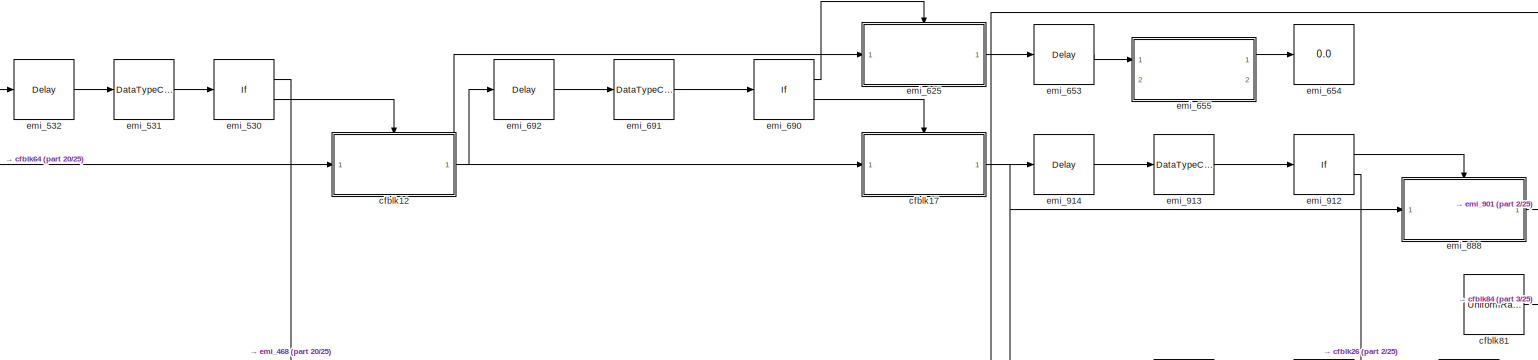
[diagram: root canvas - part 1/25, top left region]
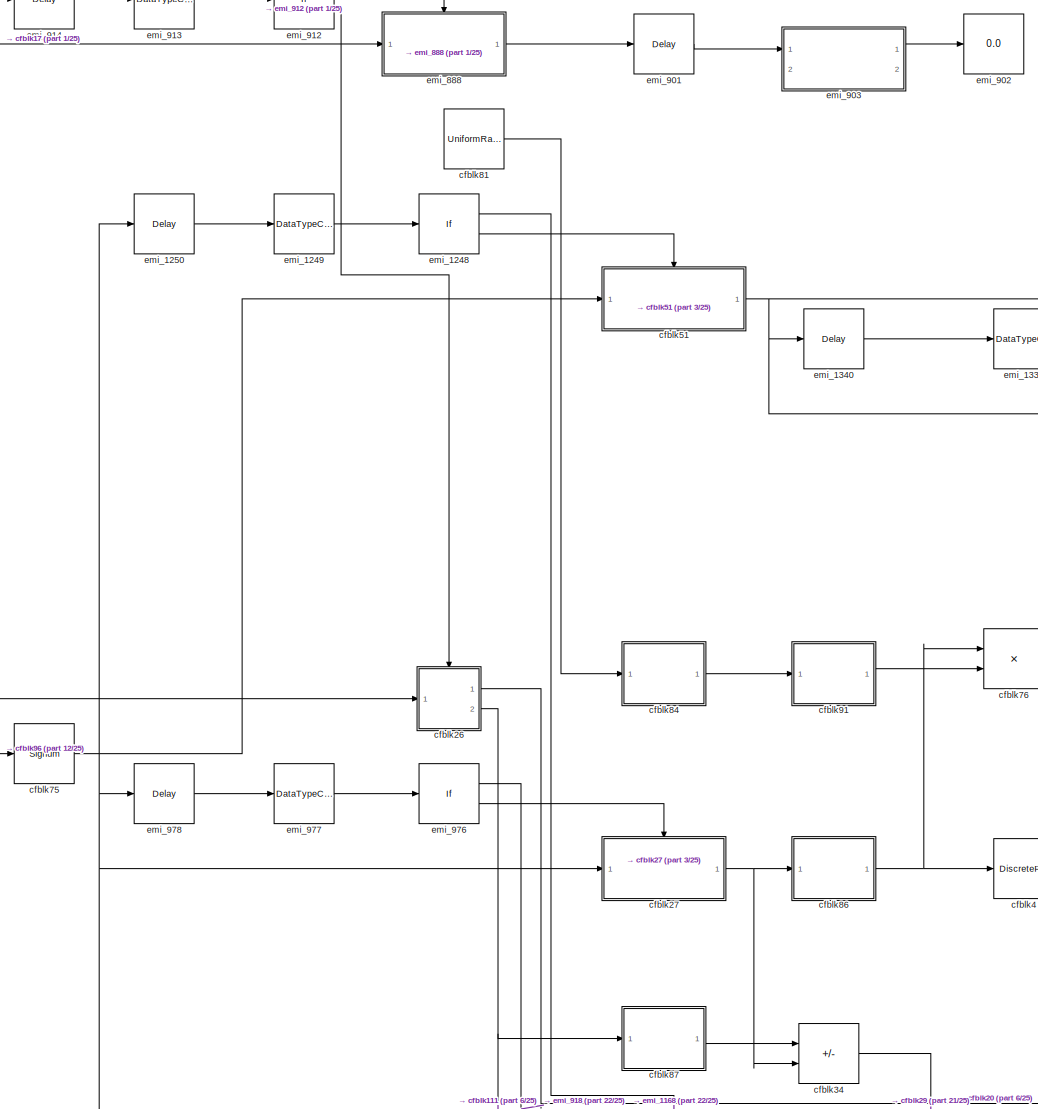
[diagram: root canvas - part 2/25, top left region]
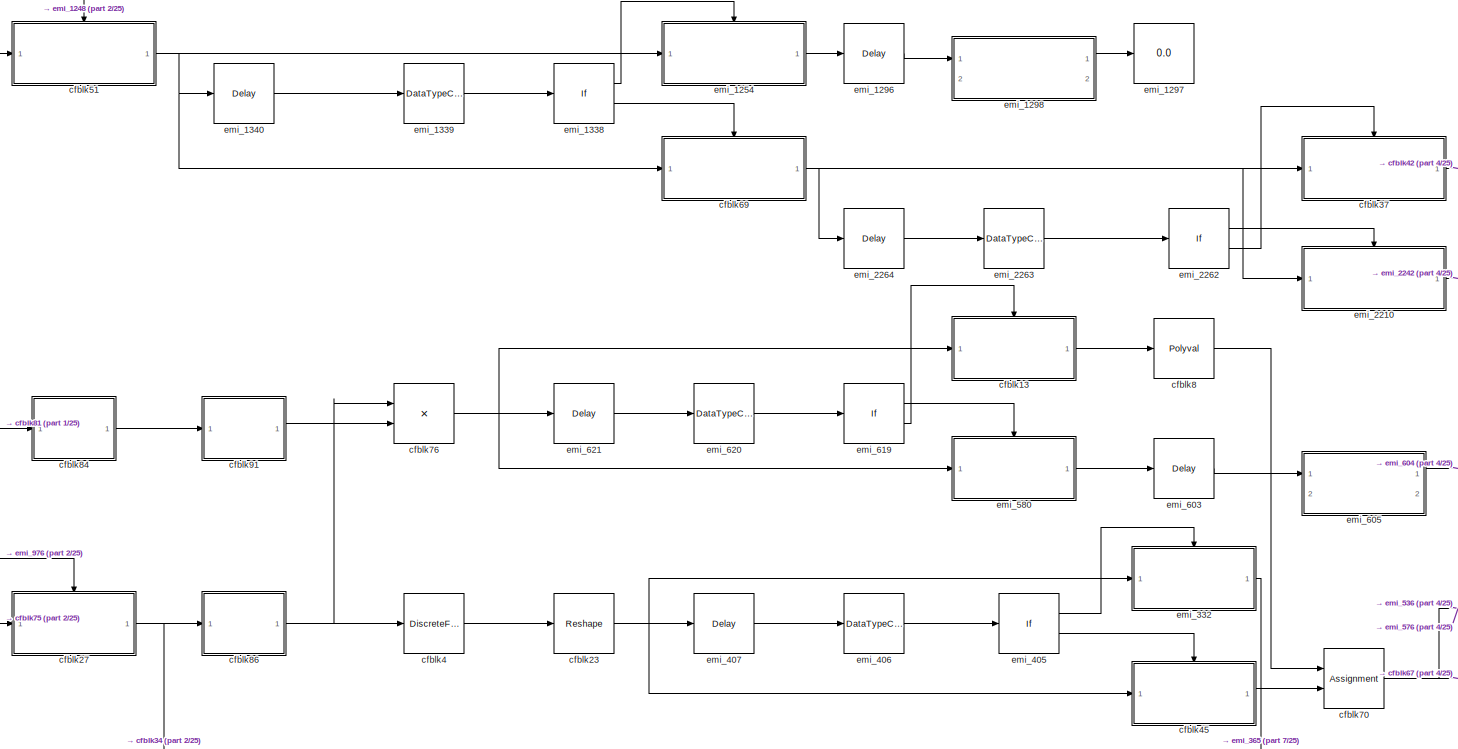
[diagram: root canvas - part 3/25, top left region]
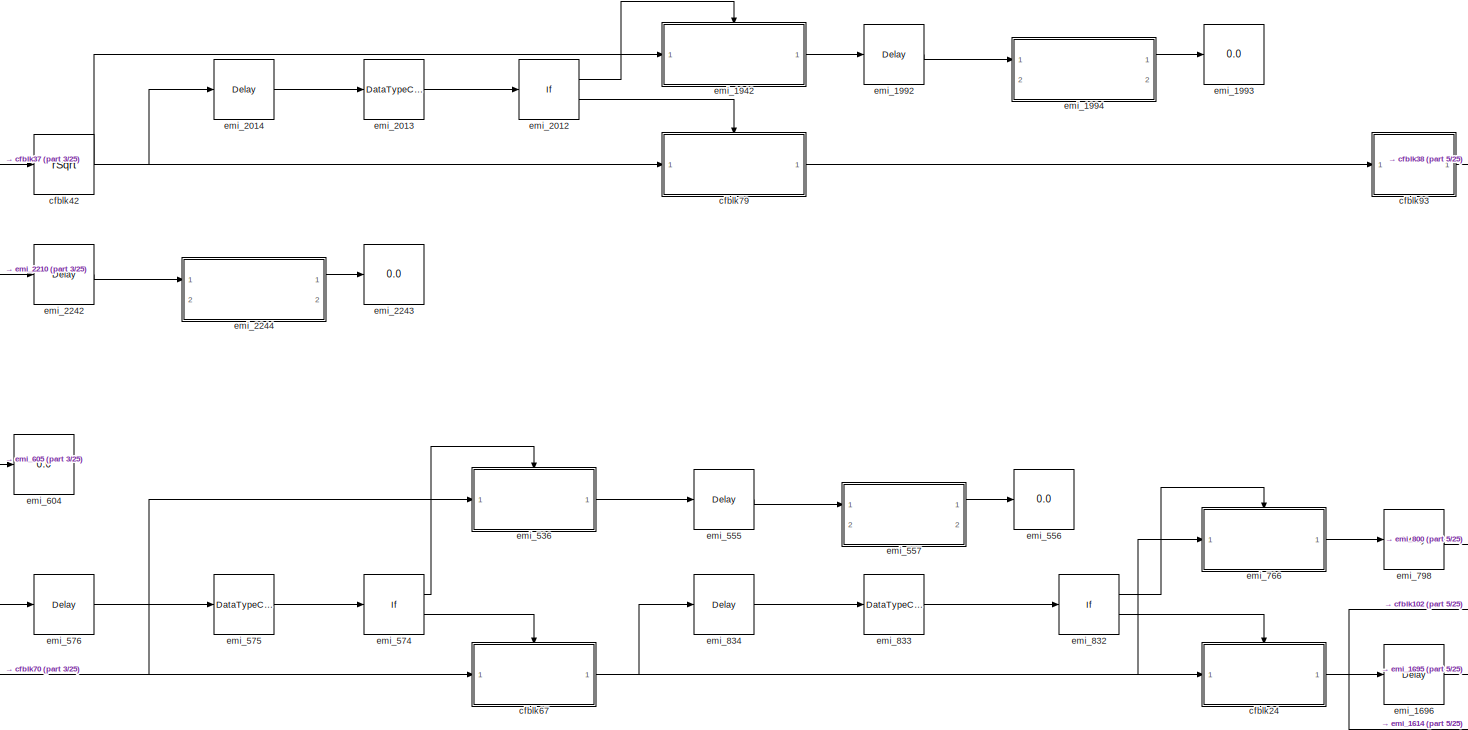
[diagram: root canvas - part 4/25, top left region]
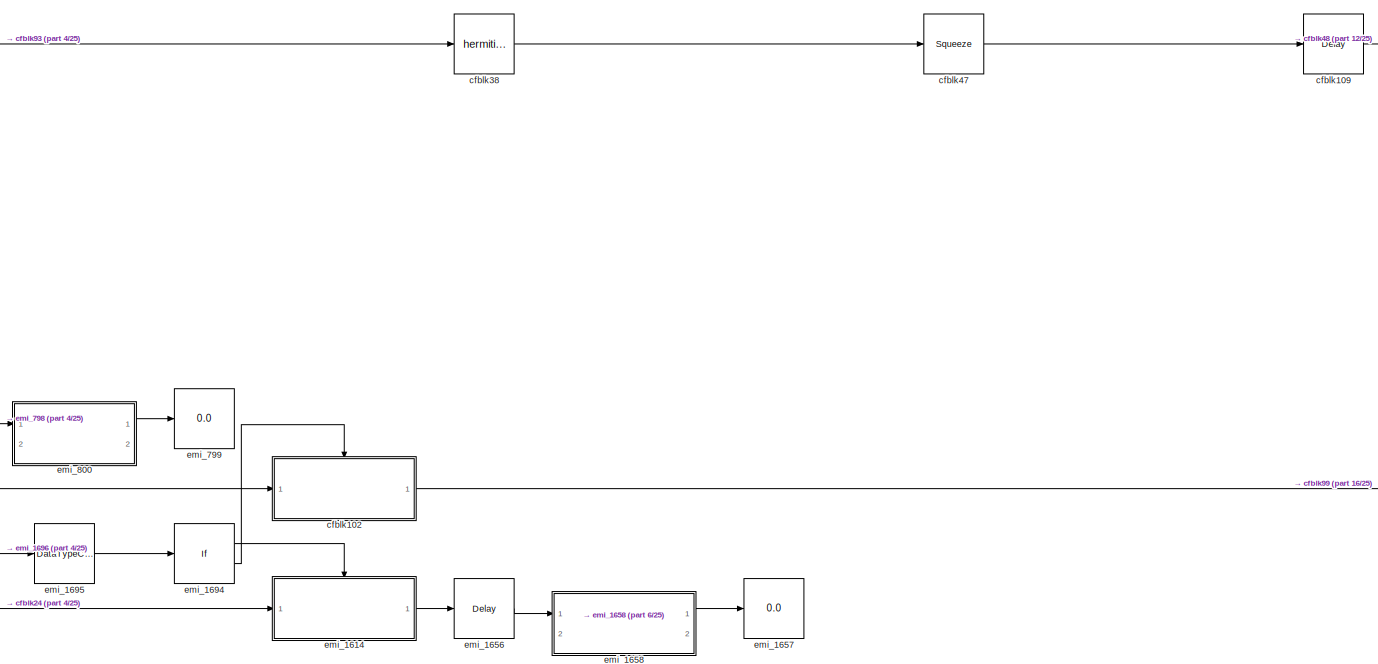
[diagram: root canvas - part 5/25, top center region]
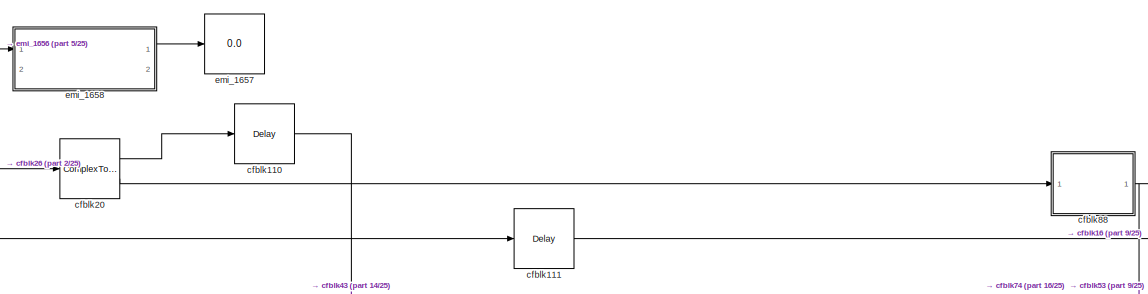
[diagram: root canvas - part 6/25, top center region]
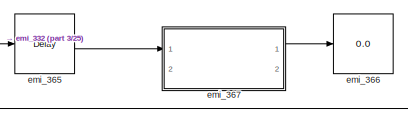
[diagram: root canvas - part 7/25, top left region]
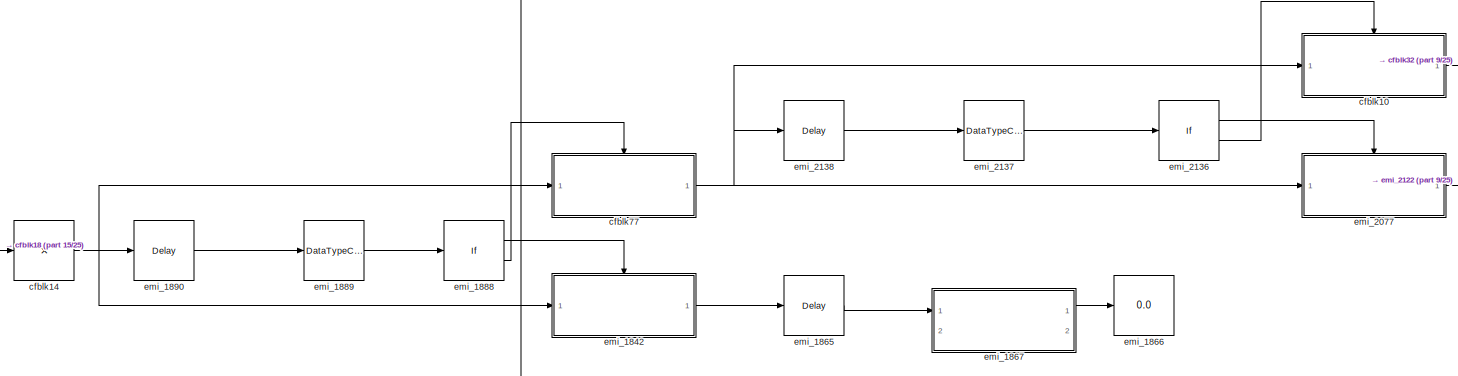
[diagram: root canvas - part 8/25, top center region]
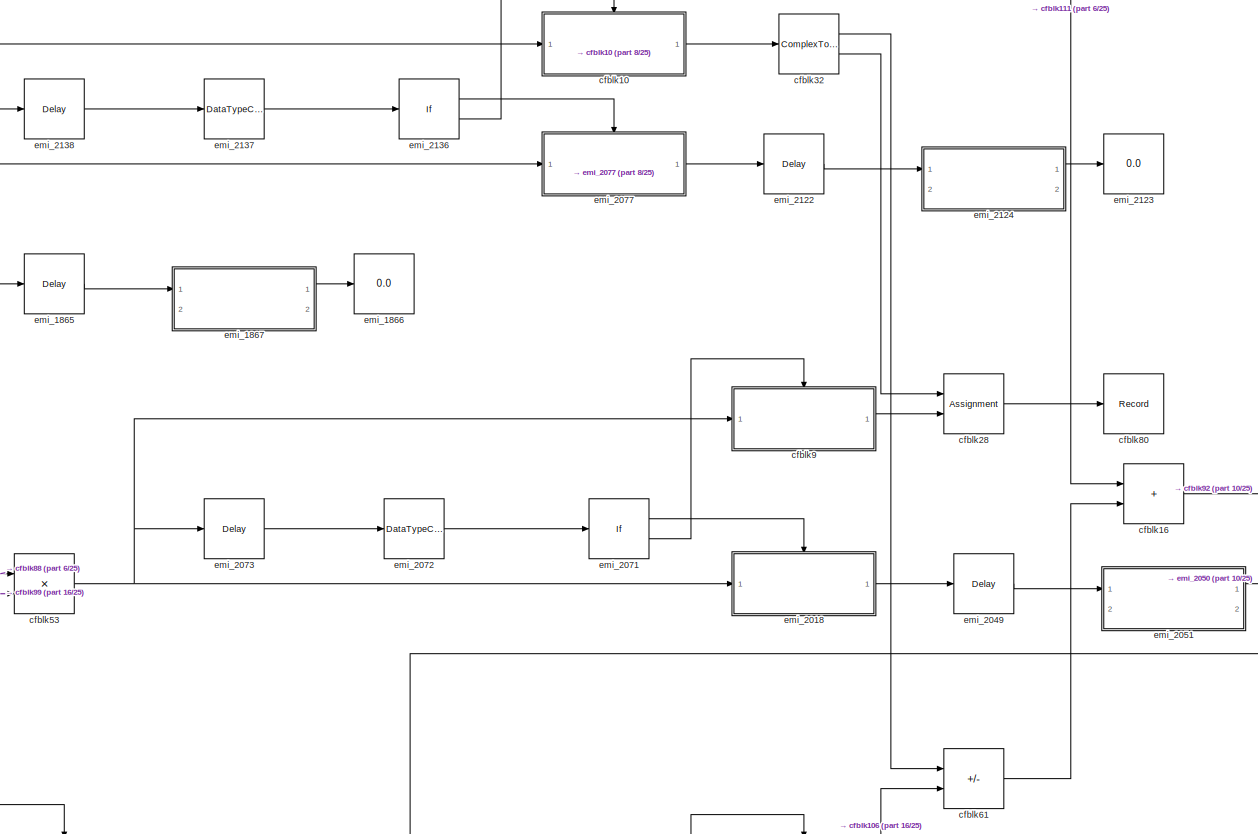
[diagram: root canvas - part 9/25, central region]
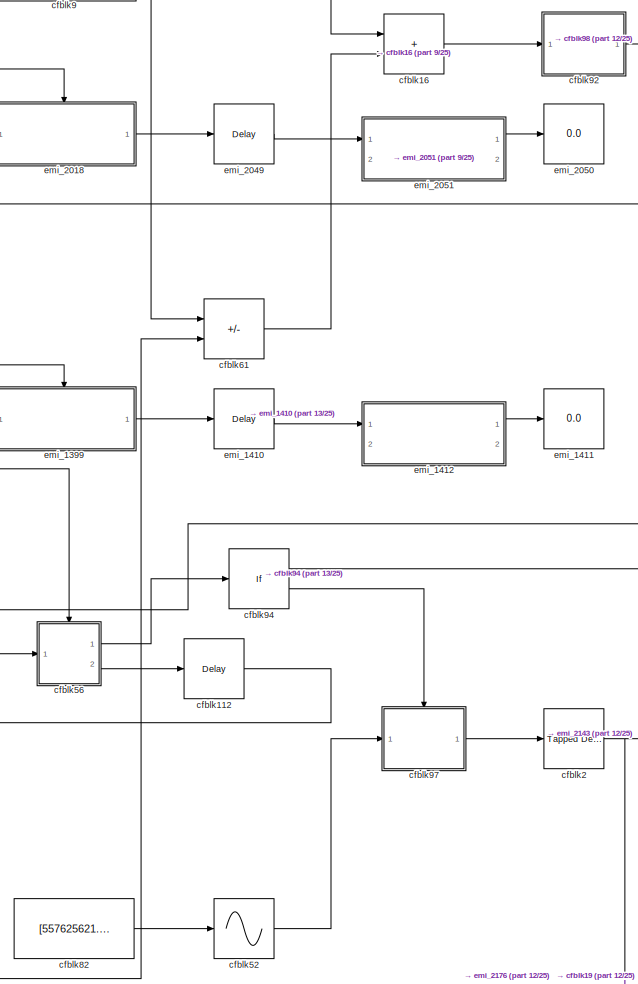
[diagram: root canvas - part 10/25, middle right region]
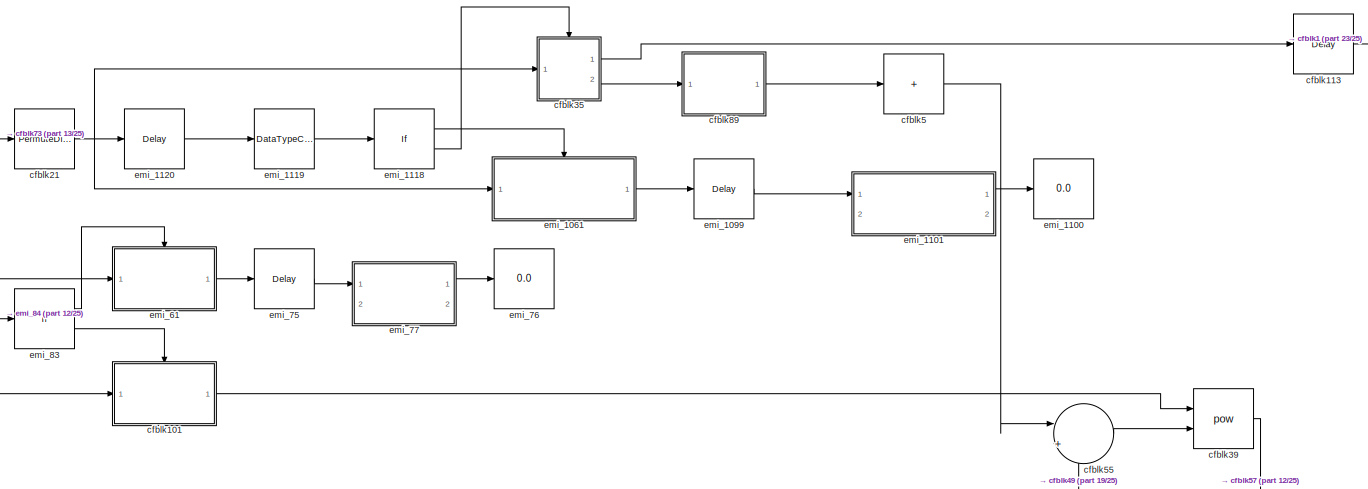
[diagram: root canvas - part 11/25, middle right region]
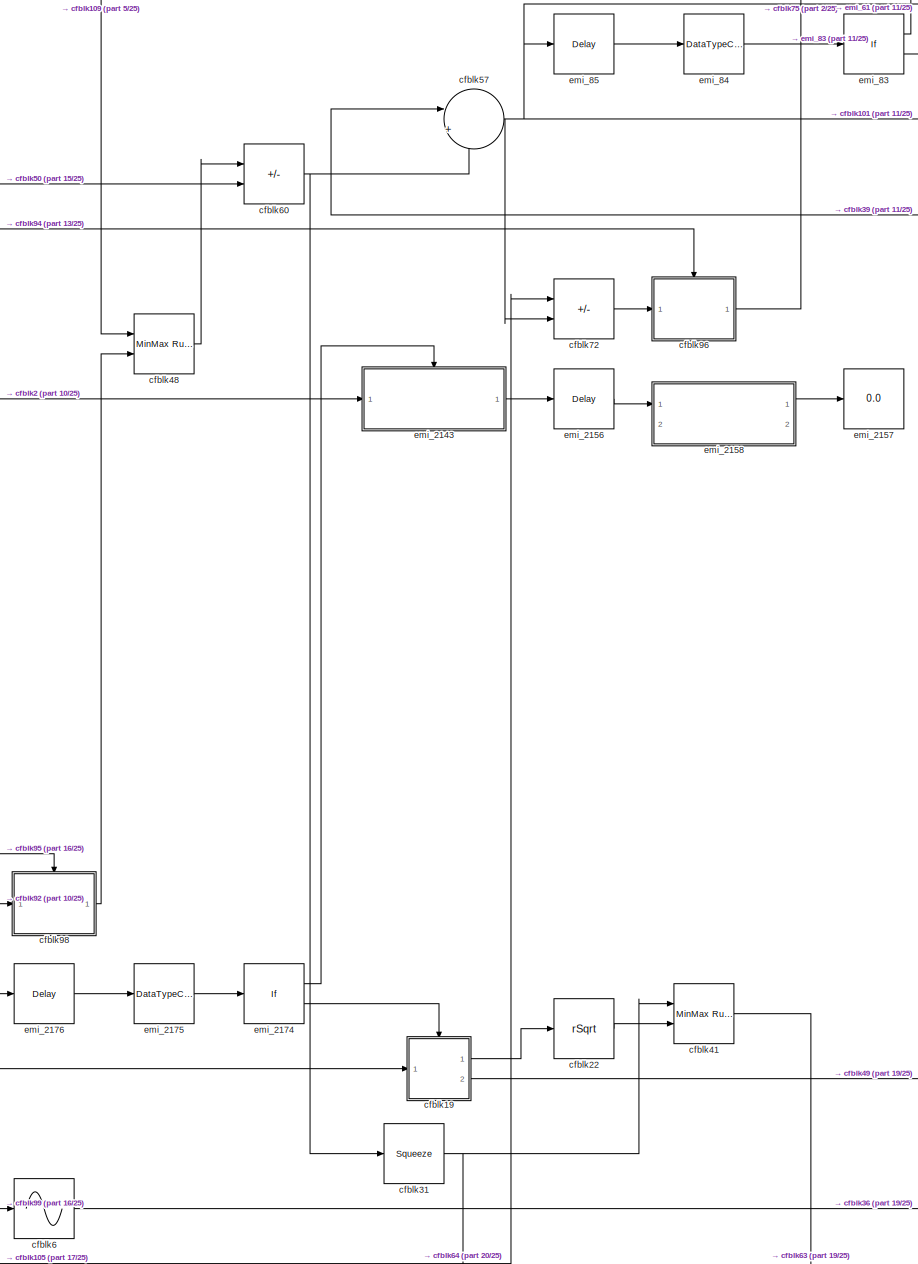
[diagram: root canvas - part 12/25, middle right region]
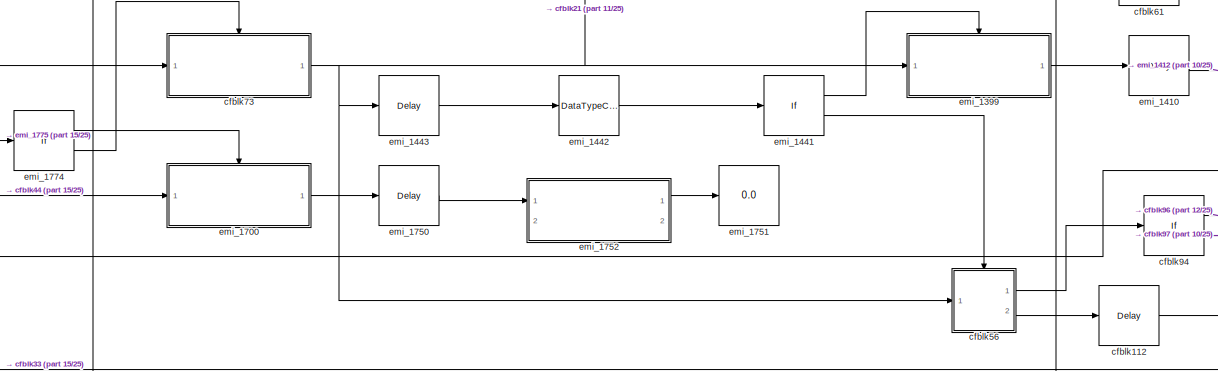
[diagram: root canvas - part 13/25, central region]
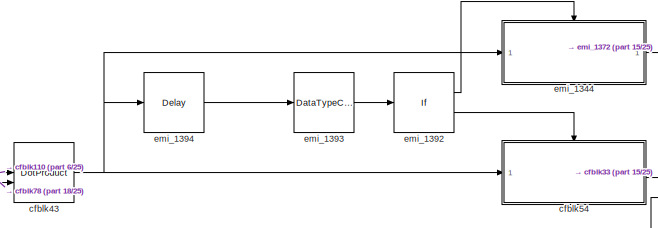
[diagram: root canvas - part 14/25, central region]
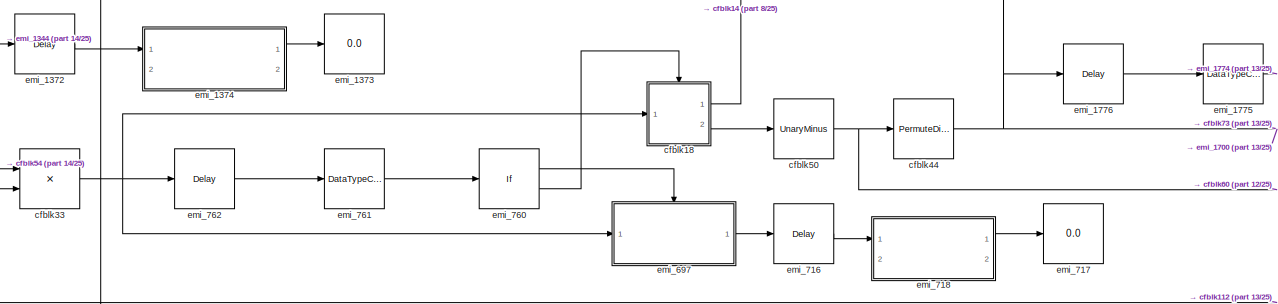
[diagram: root canvas - part 15/25, central region]
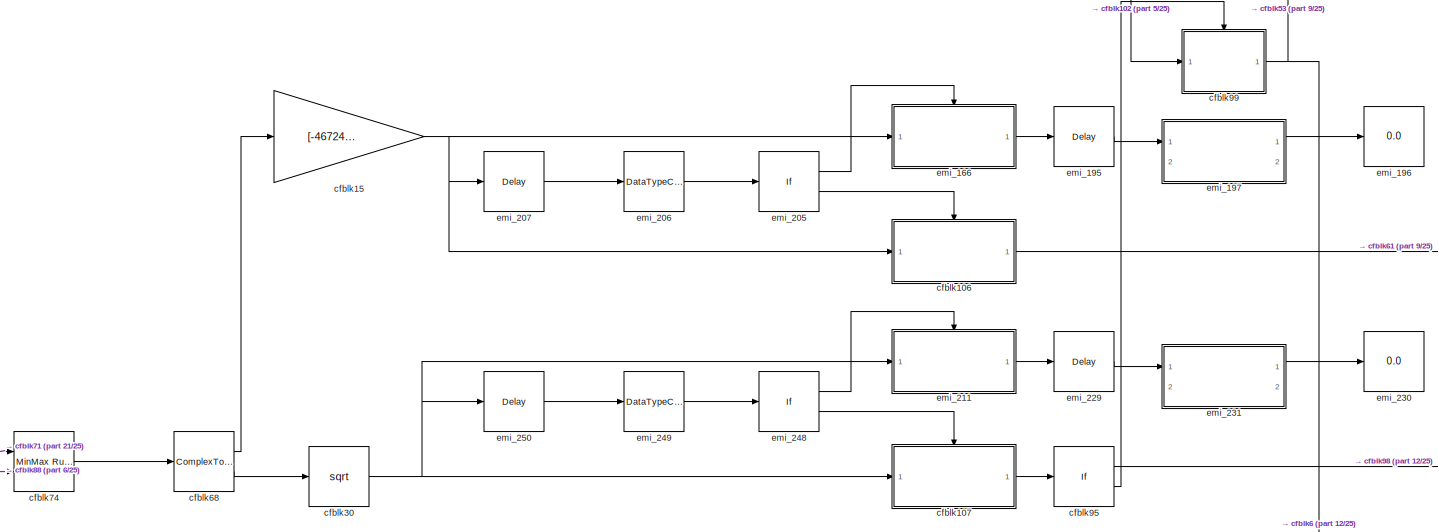
[diagram: root canvas - part 16/25, central region]
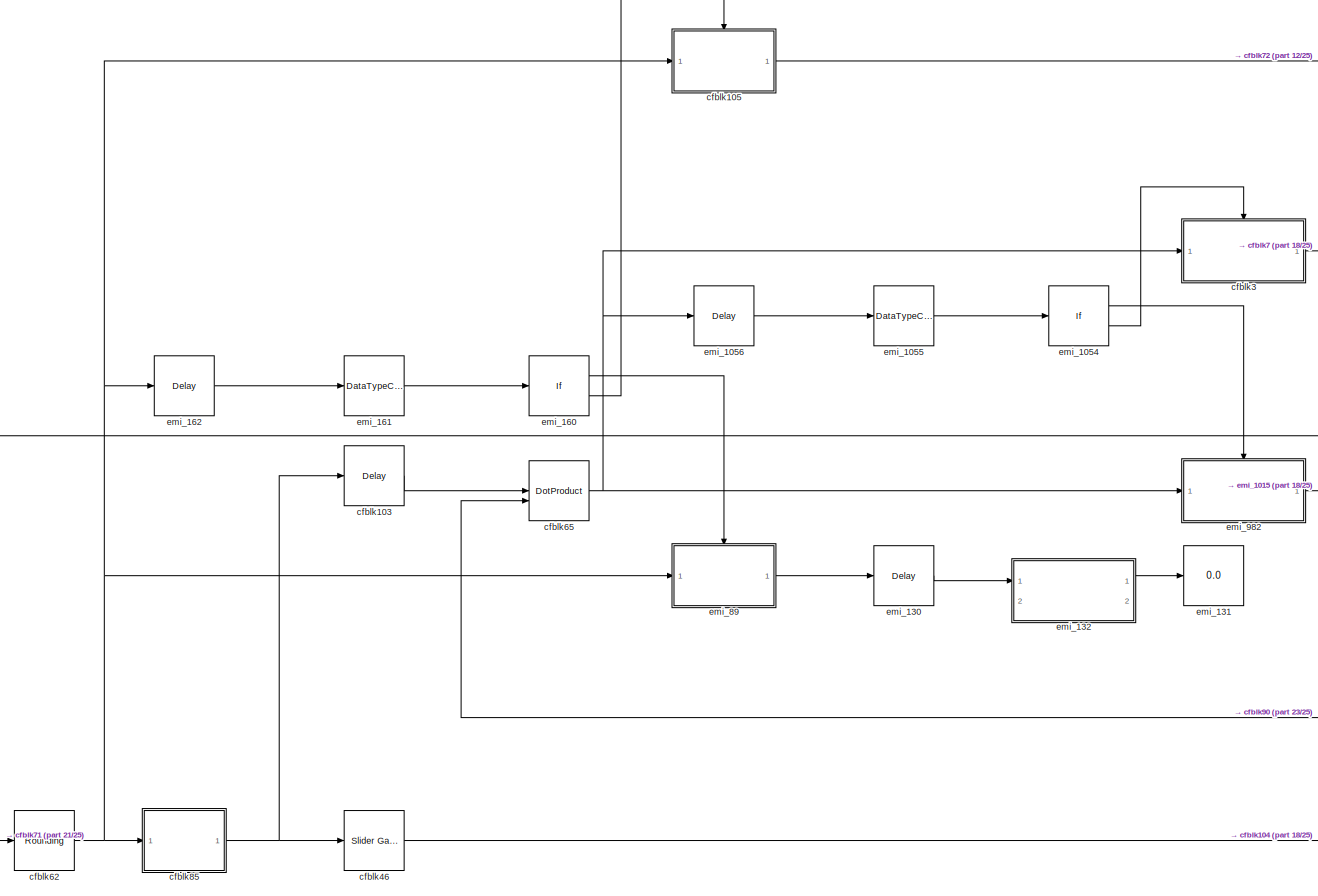
[diagram: root canvas - part 17/25, bottom left region]
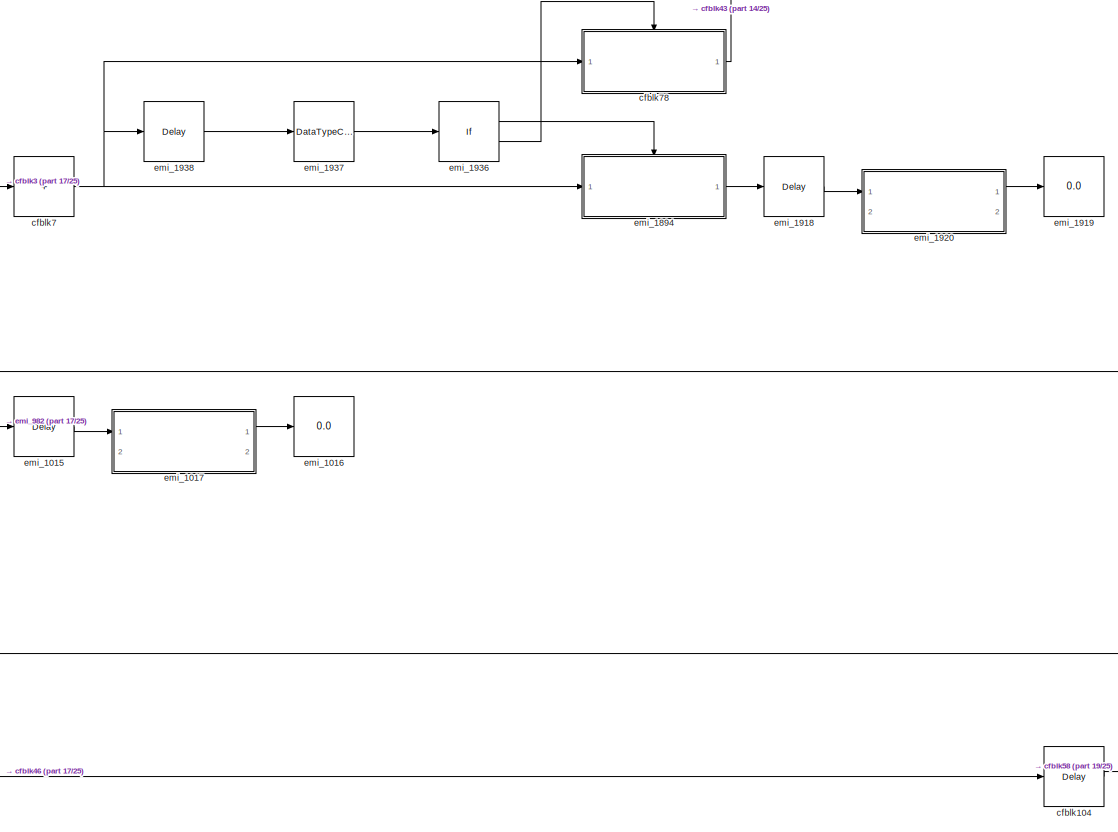
[diagram: root canvas - part 18/25, bottom center region]
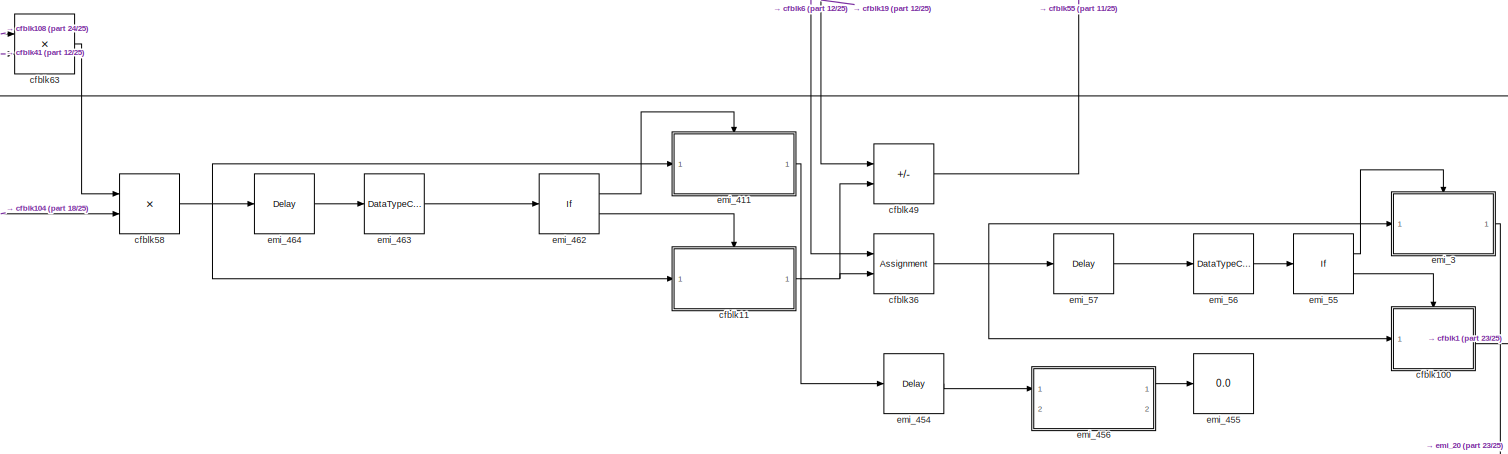
[diagram: root canvas - part 19/25, bottom right region]
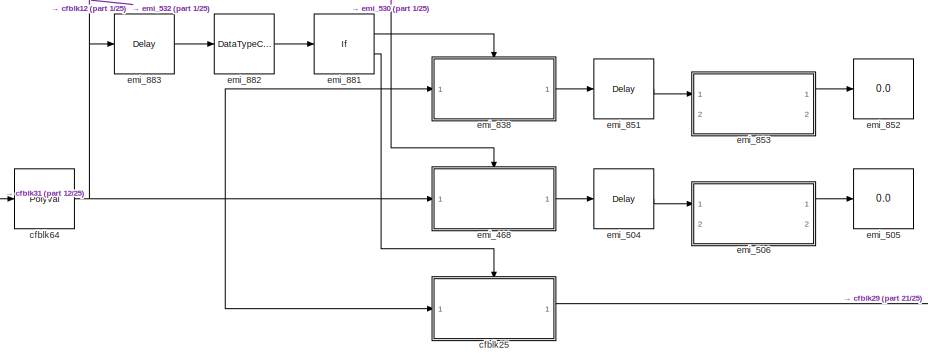
[diagram: root canvas - part 20/25, bottom left region]
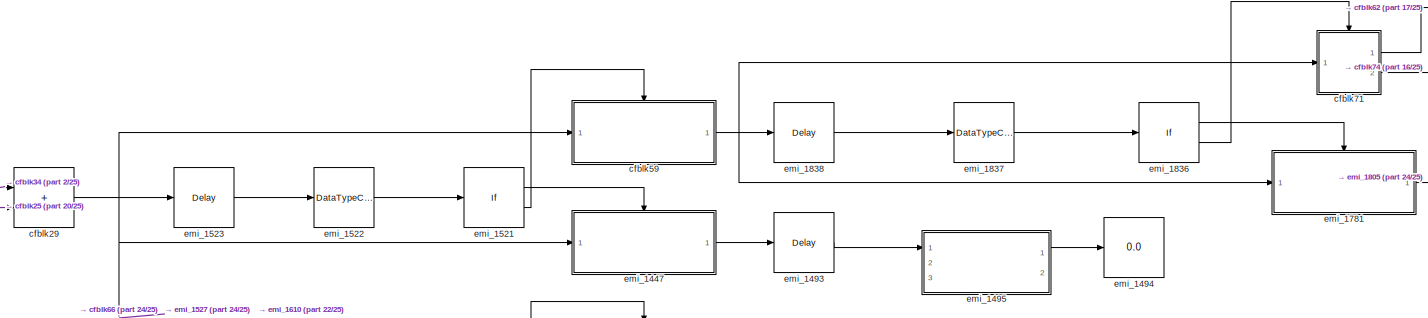
[diagram: root canvas - part 21/25, bottom left region]
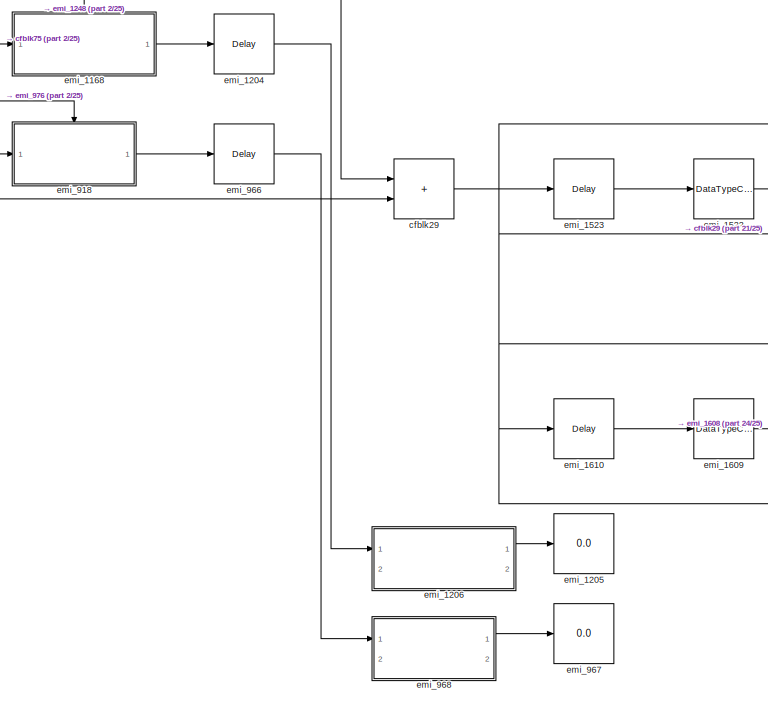
[diagram: root canvas - part 22/25, bottom left region]
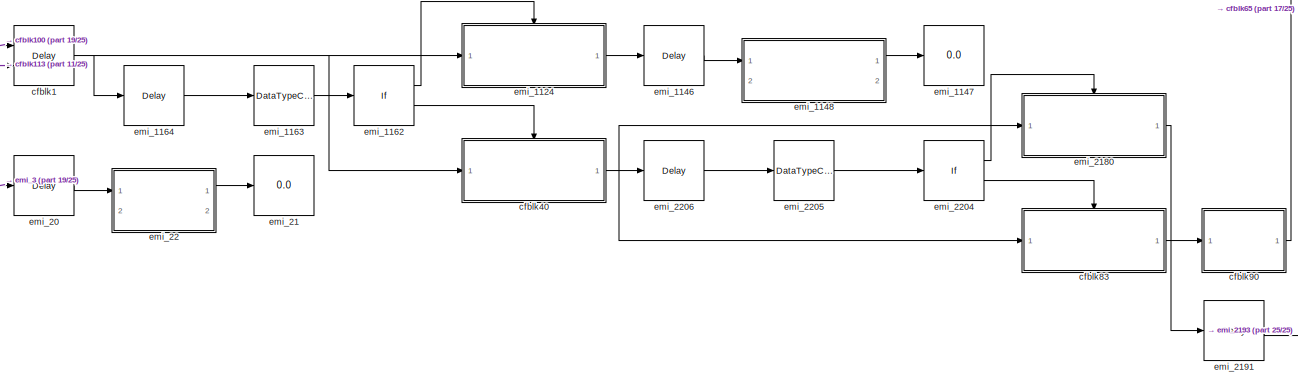
[diagram: root canvas - part 23/25, bottom right region]
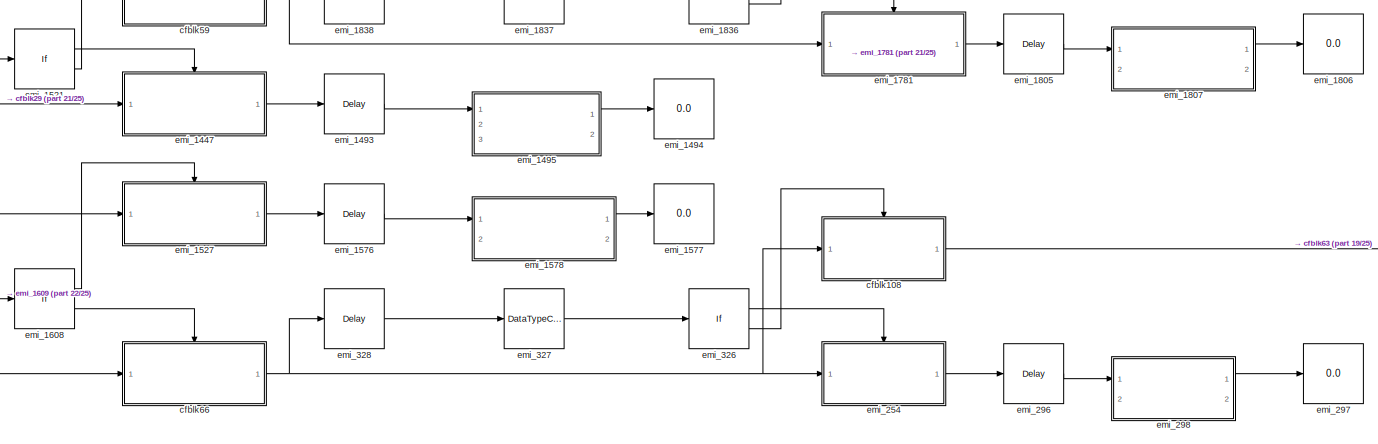
[diagram: root canvas - part 24/25, bottom left region]
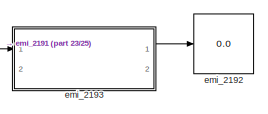
[diagram: root canvas - part 25/25, bottom right region]
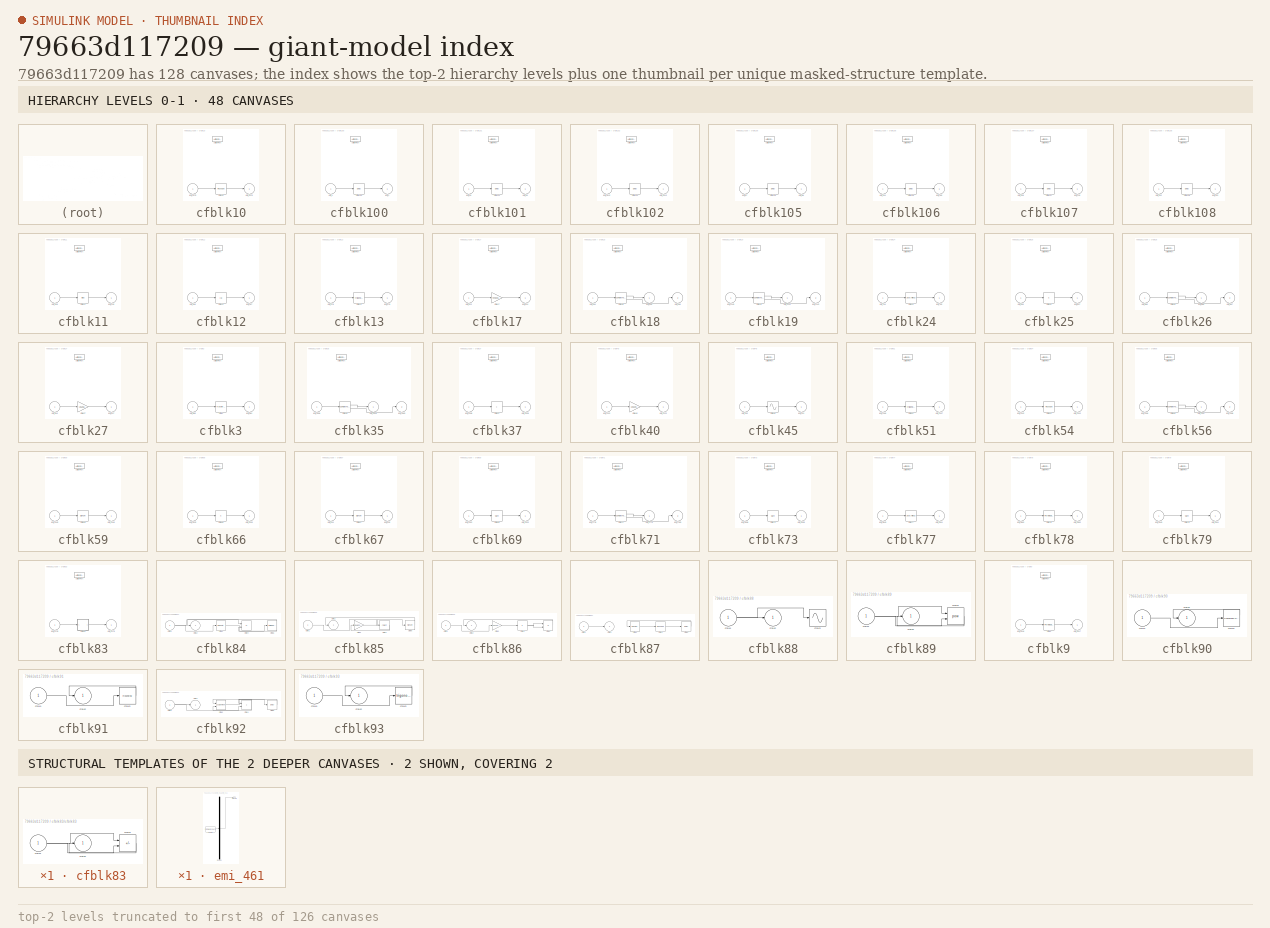
[diagram: thumbnail index - top-2 hierarchy levels (126 canvases (first 48 of 126 shown)) + 2 structural-template representatives of the remaining 2 canvases]
MODEL slx_79663d117209
KIND model
CONFIG AbsTol = auto
CONFIG EnableMultiTasking = off
CONFIG FixedStep = auto
CONFIG MaxStep = auto
CONFIG MinStep = auto
CONFIG RelTol = 1e-3
CONFIG SampleTimeConstraint = Unconstrained
CONFIG SolverName = VariableStepAuto
CONFIG StartTime = 0.0
CONFIG StopTime = 10.0
BLOCK [Delay] cfblk1
  DelayLengthSource = Input port
  InputPortMap = u0,p1
  Ports = [2, 1]
  SampleTime = 1
BLOCK [SubSystem] cfblk10
  Ports = [1, 1, 0, 0, 0, 0, 0, 1]
  RequestExecContextInheritance = off
  TreatAsAtomicUnit = on
BLOCK [ActionPort] cfblk10/Action Port
  ActionPortLabel = else
BLOCK [Reshape] cfblk10/cfblk10
  Ports = [1, 1]
BLOCK [Inport] cfblk10/emi_2075
BLOCK [Outport] cfblk10/emi_2076
BLOCK [SubSystem] cfblk100
  Ports = [1, 1, 0, 0, 0, 0, 0, 1]
  RequestExecContextInheritance = off
  TreatAsAtomicUnit = on
BLOCK [ActionPort] cfblk100/Action Port
  ActionPortLabel = else
BLOCK [Delay] cfblk100/cfblk100
  InputPortMap = u0
  Ports = [1, 1]
  SampleTime = 1
BLOCK [Inport] cfblk100/emi_1
BLOCK [Outport] cfblk100/emi_2
BLOCK [SubSystem] cfblk101
  Ports = [1, 1, 0, 0, 0, 0, 0, 1]
  RequestExecContextInheritance = off
  TreatAsAtomicUnit = on
BLOCK [ActionPort] cfblk101/Action Port
  ActionPortLabel = else
BLOCK [Delay] cfblk101/cfblk101
  InputPortMap = u0
  Ports = [1, 1]
  SampleTime = 1
BLOCK [Inport] cfblk101/emi_59
BLOCK [Outport] cfblk101/emi_60
BLOCK [SubSystem] cfblk102
  Ports = [1, 1, 0, 0, 0, 0, 0, 1]
  RequestExecContextInheritance = off
  TreatAsAtomicUnit = on
BLOCK [ActionPort] cfblk102/Action Port
  ActionPortLabel = else
BLOCK [Delay] cfblk102/cfblk102
  InputPortMap = u0
  Ports = [1, 1]
  SampleTime = 1
BLOCK [Inport] cfblk102/emi_1612
BLOCK [Outport] cfblk102/emi_1613
BLOCK [Delay] cfblk103
  InputPortMap = u0
  Ports = [1, 1]
  SampleTime = 1
BLOCK [Delay] cfblk104
  InputPortMap = u0
  Ports = [1, 1]
  SampleTime = 1
BLOCK [SubSystem] cfblk105
  Ports = [1, 1, 0, 0, 0, 0, 0, 1]
  RequestExecContextInheritance = off
  TreatAsAtomicUnit = on
BLOCK [ActionPort] cfblk105/Action Port
  ActionPortLabel = else
BLOCK [Delay] cfblk105/cfblk105
  InputPortMap = u0
  Ports = [1, 1]
  SampleTime = 1
BLOCK [Inport] cfblk105/emi_87
BLOCK [Outport] cfblk105/emi_88
BLOCK [SubSystem] cfblk106
  Ports = [1, 1, 0, 0, 0, 0, 0, 1]
  RequestExecContextInheritance = off
  TreatAsAtomicUnit = on
BLOCK [ActionPort] cfblk106/Action Port
  ActionPortLabel = else
BLOCK [Delay] cfblk106/cfblk106
  InputPortMap = u0
  Ports = [1, 1]
  SampleTime = 1
BLOCK [Inport] cfblk106/emi_164
BLOCK [Outport] cfblk106/emi_165
BLOCK [SubSystem] cfblk107
  Ports = [1, 1, 0, 0, 0, 0, 0, 1]
  RequestExecContextInheritance = off
  TreatAsAtomicUnit = on
BLOCK [ActionPort] cfblk107/Action Port
  ActionPortLabel = else
BLOCK [Delay] cfblk107/cfblk107
  InputPortMap = u0
  Ports = [1, 1]
  SampleTime = 1
BLOCK [Inport] cfblk107/emi_209
BLOCK [Outport] cfblk107/emi_210
BLOCK [SubSystem] cfblk108
  Ports = [1, 1, 0, 0, 0, 0, 0, 1]
  RequestExecContextInheritance = off
  TreatAsAtomicUnit = on
BLOCK [ActionPort] cfblk108/Action Port
  ActionPortLabel = else
BLOCK [Delay] cfblk108/cfblk108
  InputPortMap = u0
  Ports = [1, 1]
  SampleTime = 1
BLOCK [Inport] cfblk108/emi_252
BLOCK [Outport] cfblk108/emi_253
BLOCK [Delay] cfblk109
  InputPortMap = u0
  Ports = [1, 1]
  SampleTime = 1
BLOCK [SubSystem] cfblk11
  Ports = [1, 1, 0, 0, 0, 0, 0, 1]
  RequestExecContextInheritance = off
  TreatAsAtomicUnit = on
BLOCK [ActionPort] cfblk11/Action Port
  ActionPortLabel = else
BLOCK [Bias] cfblk11/cfblk11
  Bias = [-691422001.665259]
  SaturateOnIntegerOverflow = off
BLOCK [Inport] cfblk11/emi_409
BLOCK [Outport] cfblk11/emi_410
BLOCK [Delay] cfblk110
  InputPortMap = u0
  Ports = [1, 1]
  SampleTime = 1
BLOCK [Delay] cfblk111
  InputPortMap = u0
  Ports = [1, 1]
  SampleTime = 1
BLOCK [Delay] cfblk112
  InputPortMap = u0
  Ports = [1, 1]
  SampleTime = 1
BLOCK [Delay] cfblk113
  InputPortMap = u0
  Ports = [1, 1]
  SampleTime = 1
BLOCK [SubSystem] cfblk12
  Ports = [1, 1, 0, 0, 0, 0, 0, 1]
  RequestExecContextInheritance = off
  TreatAsAtomicUnit = on
BLOCK [ActionPort] cfblk12/Action Port
  ActionPortLabel = else
BLOCK [Abs] cfblk12/cfblk12
  SaturateOnIntegerOverflow = off
BLOCK [Inport] cfblk12/emi_466
BLOCK [Outport] cfblk12/emi_467
BLOCK [SubSystem] cfblk13
  Ports = [1, 1, 0, 0, 0, 0, 0, 1]
  RequestExecContextInheritance = off
  TreatAsAtomicUnit = on
BLOCK [ActionPort] cfblk13/Action Port
  ActionPortLabel = else
BLOCK [Trigonometry] cfblk13/cfblk13
  Ports = [1, 1]
BLOCK [Inport] cfblk13/emi_578
BLOCK [Outport] cfblk13/emi_579
BLOCK [Product] cfblk14
  Inputs = *
  Ports = [1, 1]
BLOCK [Gain] cfblk15
  Gain = [-46724014.204909]
BLOCK [Sum] cfblk16
  IconShape = rectangular
  Ports = [2, 1]
BLOCK [SubSystem] cfblk17
  Ports = [1, 1, 0, 0, 0, 0, 0, 1]
  RequestExecContextInheritance = off
  TreatAsAtomicUnit = on
BLOCK [ActionPort] cfblk17/Action Port
  ActionPortLabel = else
BLOCK [Gain] cfblk17/cfblk17
  Gain = [704593241.364970]
BLOCK [Inport] cfblk17/emi_623
BLOCK [Outport] cfblk17/emi_624
BLOCK [SubSystem] cfblk18
  Ports = [1, 2, 0, 0, 0, 0, 0, 1]
  RequestExecContextInheritance = off
  TreatAsAtomicUnit = on
BLOCK [ActionPort] cfblk18/Action Port
  ActionPortLabel = else
BLOCK [ComplexToMagnitudeAngle] cfblk18/cfblk18
  Ports = [1, 2]
BLOCK [Inport] cfblk18/emi_694
BLOCK [Outport] cfblk18/emi_695
BLOCK [Outport] cfblk18/emi_696
  Port = 2
BLOCK [SubSystem] cfblk19
  Ports = [1, 2, 0, 0, 0, 0, 0, 1]
  RequestExecContextInheritance = off
  TreatAsAtomicUnit = on
BLOCK [ActionPort] cfblk19/Action Port
  ActionPortLabel = else
BLOCK [ComplexToMagnitudeAngle] cfblk19/cfblk19
  Ports = [1, 2]
BLOCK [Inport] cfblk19/emi_2140
BLOCK [Outport] cfblk19/emi_2141
BLOCK [Outport] cfblk19/emi_2142
  Port = 2
BLOCK [Reference] cfblk2  REF=simulink/Discrete/Tapped Delay
  Ports = [1, 1]
  SourceBlock = simulink/Discrete/Tapped Delay
  SourceProductBaseCode = SL
  SourceType = Tapped Delay Line
BLOCK [ComplexToMagnitudeAngle] cfblk20
  Ports = [1, 2]
BLOCK [PermuteDimensions] cfblk21
BLOCK [Sqrt] cfblk22
  AlgorithmType = Newton-Raphson
  Operator = rSqrt
BLOCK [Reshape] cfblk23
  Ports = [1, 1]
BLOCK [SubSystem] cfblk24
  Ports = [1, 1, 0, 0, 0, 0, 0, 1]
  RequestExecContextInheritance = off
  TreatAsAtomicUnit = on
BLOCK [ActionPort] cfblk24/Action Port
  ActionPortLabel = else
BLOCK [UnaryMinus] cfblk24/cfblk24
BLOCK [Inport] cfblk24/emi_764
BLOCK [Outport] cfblk24/emi_765
BLOCK [SubSystem] cfblk25
  Ports = [1, 1, 0, 0, 0, 0, 0, 1]
  RequestExecContextInheritance = off
  TreatAsAtomicUnit = on
BLOCK [ActionPort] cfblk25/Action Port
  ActionPortLabel = else
BLOCK [Product] cfblk25/cfblk25
  Inputs = *
  Ports = [1, 1]
BLOCK [Inport] cfblk25/emi_836
BLOCK [Outport] cfblk25/emi_837
BLOCK [SubSystem] cfblk26
  Ports = [1, 2, 0, 0, 0, 0, 0, 1]
  RequestExecContextInheritance = off
  TreatAsAtomicUnit = on
BLOCK [ActionPort] cfblk26/Action Port
  ActionPortLabel = else
BLOCK [ComplexToMagnitudeAngle] cfblk26/cfblk26
  Ports = [1, 2]
BLOCK [Inport] cfblk26/emi_885
BLOCK [Outport] cfblk26/emi_886
BLOCK [Outport] cfblk26/emi_887
  Port = 2
BLOCK [SubSystem] cfblk27
  Ports = [1, 1, 0, 0, 0, 0, 0, 1]
  RequestExecContextInheritance = off
  TreatAsAtomicUnit = on
BLOCK [ActionPort] cfblk27/Action Port
  ActionPortLabel = else
BLOCK [Gain] cfblk27/cfblk27
  Gain = [-262585566.335352]
BLOCK [Inport] cfblk27/emi_916
BLOCK [Outport] cfblk27/emi_917
BLOCK [Assignment] cfblk28
  DiagnosticForDimensions = Warning
  IndexOptions = Index vector (dialog)
  Indices = 1
  OutputSizes = 1
  Ports = [2, 1]
BLOCK [Sum] cfblk29
  IconShape = rectangular
  Ports = [2, 1]
BLOCK [SubSystem] cfblk3
  Ports = [1, 1, 0, 0, 0, 0, 0, 1]
  RequestExecContextInheritance = off
  TreatAsAtomicUnit = on
BLOCK [ActionPort] cfblk3/Action Port
  ActionPortLabel = else
BLOCK [Reference] cfblk3/cfblk3  REF=simulink/Discrete/Transfer Fcn
First Order
  Ports = [1, 1]
  SourceBlock = simulink/Discrete/Transfer Fcn\nFirst Order
  SourceProductBaseCode = SL
  SourceType = First Order Transfer Fcn
BLOCK [Inport] cfblk3/emi_980
BLOCK [Outport] cfblk3/emi_981
BLOCK [Sqrt] cfblk30
BLOCK [Squeeze] cfblk31
BLOCK [ComplexToMagnitudeAngle] cfblk32
  Ports = [1, 2]
BLOCK [Product] cfblk33
  Inputs = **
  Ports = [2, 1]
BLOCK [Sum] cfblk34
  IconShape = rectangular
  Inputs = +-
  Ports = [2, 1]
BLOCK [SubSystem] cfblk35
  Ports = [1, 2, 0, 0, 0, 0, 0, 1]
  RequestExecContextInheritance = off
  TreatAsAtomicUnit = on
BLOCK [ActionPort] cfblk35/Action Port
  ActionPortLabel = else
BLOCK [ComplexToMagnitudeAngle] cfblk35/cfblk35
  Ports = [1, 2]
BLOCK [Inport] cfblk35/emi_1058
BLOCK [Outport] cfblk35/emi_1059
BLOCK [Outport] cfblk35/emi_1060
  Port = 2
BLOCK [Assignment] cfblk36
  DiagnosticForDimensions = Warning
  IndexOptions = Index vector (dialog)
  Indices = 1
  OutputSizes = 1
  Ports = [2, 1]
BLOCK [SubSystem] cfblk37
  Ports = [1, 1, 0, 0, 0, 0, 0, 1]
  RequestExecContextInheritance = off
  TreatAsAtomicUnit = on
BLOCK [ActionPort] cfblk37/Action Port
  ActionPortLabel = else
BLOCK [Sum] cfblk37/cfblk37
  IconShape = rectangular
  Inputs = +
  Ports = [1, 1]
BLOCK [Inport] cfblk37/emi_2208
BLOCK [Outport] cfblk37/emi_2209
BLOCK [Math] cfblk38
  Operator = hermitian
  Ports = [1, 1]
BLOCK [Math] cfblk39
  Operator = pow
  Ports = [2, 1]
BLOCK [DiscreteFilter] cfblk4
  InputPortMap = u0
  Ports = [1, 1]
  SampleTime = 1
BLOCK [SubSystem] cfblk40
  Ports = [1, 1, 0, 0, 0, 0, 0, 1]
  RequestExecContextInheritance = off
  TreatAsAtomicUnit = on
BLOCK [ActionPort] cfblk40/Action Port
  ActionPortLabel = else
BLOCK [Gain] cfblk40/cfblk40
  Gain = [-69220576.399279]
BLOCK [Inport] cfblk40/emi_1122
BLOCK [Outport] cfblk40/emi_1123
BLOCK [Reference] cfblk41  REF=simulink/Math
Operations/MinMax
Running
Resettable
  Ports = [2, 1]
  SourceBlock = simulink/Math\nOperations/MinMax\nRunning\nResettable
  SourceProductBaseCode = SL
  SourceType = MinMax Running Resettable
BLOCK [Sqrt] cfblk42
  AlgorithmType = Newton-Raphson
  Operator = rSqrt
BLOCK [DotProduct] cfblk43
  OutDataTypeStr = Inherit: Inherit via internal rule
BLOCK [PermuteDimensions] cfblk44
BLOCK [SubSystem] cfblk45
  Ports = [1, 1, 0, 0, 0, 0, 0, 1]
  RequestExecContextInheritance = off
  TreatAsAtomicUnit = on
BLOCK [ActionPort] cfblk45/Action Port
  ActionPortLabel = else
BLOCK [Sin] cfblk45/cfblk45
  Ports = [1, 1]
  SampleTime = 0
  TimeSource = Use external signal
BLOCK [Inport] cfblk45/emi_330
BLOCK [Outport] cfblk45/emi_331
BLOCK [Reference] cfblk46  REF=simulink/Math
Operations/Slider
Gain
  Ports = [1, 1]
  SourceBlock = simulink/Math\nOperations/Slider\nGain
  SourceProductBaseCode = SL
  SourceType = Slider Gain
BLOCK [Squeeze] cfblk47
BLOCK [Reference] cfblk48  REF=simulink/Math
Operations/MinMax
Running
Resettable
  Ports = [2, 1]
  SourceBlock = simulink/Math\nOperations/MinMax\nRunning\nResettable
  SourceProductBaseCode = SL
  SourceType = MinMax Running Resettable
BLOCK [Sum] cfblk49
  IconShape = rectangular
  Inputs = +-
  Ports = [2, 1]
BLOCK [Sum] cfblk5
  IconShape = rectangular
  Inputs = +
  Ports = [1, 1]
BLOCK [UnaryMinus] cfblk50
BLOCK [SubSystem] cfblk51
  Ports = [1, 1, 0, 0, 0, 0, 0, 1]
  RequestExecContextInheritance = off
  TreatAsAtomicUnit = on
BLOCK [ActionPort] cfblk51/Action Port
  ActionPortLabel = else
BLOCK [Trigonometry] cfblk51/cfblk51
  Ports = [1, 1]
BLOCK [Inport] cfblk51/emi_1166
BLOCK [Outport] cfblk51/emi_1167
BLOCK [Sin] cfblk52
  Ports = [1, 1]
  SampleTime = 0
  TimeSource = Use external signal
BLOCK [Product] cfblk53
  Ports = [2, 1]
BLOCK [SubSystem] cfblk54
  Ports = [1, 1, 0, 0, 0, 0, 0, 1]
  RequestExecContextInheritance = off
  TreatAsAtomicUnit = on
BLOCK [ActionPort] cfblk54/Action Port
  ActionPortLabel = else
BLOCK [Reshape] cfblk54/cfblk54
  Ports = [1, 1]
BLOCK [Inport] cfblk54/emi_1342
BLOCK [Outport] cfblk54/emi_1343
BLOCK [Sum] cfblk55
  Inputs = |++
  Ports = [2, 1]
BLOCK [SubSystem] cfblk56
  Ports = [1, 2, 0, 0, 0, 0, 0, 1]
  RequestExecContextInheritance = off
  TreatAsAtomicUnit = on
BLOCK [ActionPort] cfblk56/Action Port
  ActionPortLabel = else
BLOCK [ComplexToRealImag] cfblk56/cfblk56
  Ports = [1, 2]
BLOCK [Inport] cfblk56/emi_1396
BLOCK [Outport] cfblk56/emi_1397
BLOCK [Outport] cfblk56/emi_1398
  Port = 2
BLOCK [Sum] cfblk57
  Inputs = |++
  Ports = [2, 1]
BLOCK [Product] cfblk58
  Inputs = **
  Ports = [2, 1]
BLOCK [SubSystem] cfblk59
  Ports = [1, 1, 0, 0, 0, 0, 0, 1]
  RequestExecContextInheritance = off
  TreatAsAtomicUnit = on
BLOCK [ActionPort] cfblk59/Action Port
  ActionPortLabel = else
BLOCK [Signum] cfblk59/cfblk59
BLOCK [Inport] cfblk59/emi_1445
BLOCK [Outport] cfblk59/emi_1446
BLOCK [Sin] cfblk6
  Ports = [1, 1]
  SampleTime = 0
  TimeSource = Use external signal
BLOCK [Sum] cfblk60
  IconShape = rectangular
  Inputs = +-
  Ports = [2, 1]
BLOCK [Sum] cfblk61
  IconShape = rectangular
  Inputs = -+
  Ports = [2, 1]
BLOCK [Rounding] cfblk62
BLOCK [Product] cfblk63
  Inputs = **
  Ports = [2, 1]
BLOCK [Polyval] cfblk64
  Coefs = [ +2.081618890e-019, -1.441693666e-014, +4.719686976e-010, -8.536869453e-006, +1.621573104e-001, -8.087801117e+001 ]
BLOCK [DotProduct] cfblk65
  OutDataTypeStr = Inherit: Inherit via internal rule
BLOCK [SubSystem] cfblk66
  Ports = [1, 1, 0, 0, 0, 0, 0, 1]
  RequestExecContextInheritance = off
  TreatAsAtomicUnit = on
BLOCK [ActionPort] cfblk66/Action Port
  ActionPortLabel = else
BLOCK [Product] cfblk66/cfblk66
  Inputs = *
  Ports = [1, 1]
BLOCK [Inport] cfblk66/emi_1525
BLOCK [Outport] cfblk66/emi_1526
BLOCK [SubSystem] cfblk67
  Ports = [1, 1, 0, 0, 0, 0, 0, 1]
  RequestExecContextInheritance = off
  TreatAsAtomicUnit = on
BLOCK [ActionPort] cfblk67/Action Port
  ActionPortLabel = else
BLOCK [Signum] cfblk67/cfblk67
BLOCK [Inport] cfblk67/emi_534
BLOCK [Outport] cfblk67/emi_535
BLOCK [ComplexToRealImag] cfblk68
  Ports = [1, 2]
BLOCK [SubSystem] cfblk69
  Ports = [1, 1, 0, 0, 0, 0, 0, 1]
  RequestExecContextInheritance = off
  TreatAsAtomicUnit = on
BLOCK [ActionPort] cfblk69/Action Port
  ActionPortLabel = else
BLOCK [Sqrt] cfblk69/cfblk69
BLOCK [Inport] cfblk69/emi_1252
BLOCK [Outport] cfblk69/emi_1253
BLOCK [Sum] cfblk7
  IconShape = rectangular
  Inputs = +
  Ports = [1, 1]
BLOCK [Assignment] cfblk70
  DiagnosticForDimensions = Warning
  IndexOptions = Index vector (dialog)
  Indices = 1
  OutputSizes = 1
  Ports = [2, 1]
BLOCK [SubSystem] cfblk71
  Ports = [1, 2, 0, 0, 0, 0, 0, 1]
  RequestExecContextInheritance = off
  TreatAsAtomicUnit = on
BLOCK [ActionPort] cfblk71/Action Port
  ActionPortLabel = else
BLOCK [ComplexToMagnitudeAngle] cfblk71/cfblk71
  Ports = [1, 2]
BLOCK [Inport] cfblk71/emi_1778
BLOCK [Outport] cfblk71/emi_1779
BLOCK [Outport] cfblk71/emi_1780
  Port = 2
BLOCK [Sum] cfblk72
  IconShape = rectangular
  Inputs = +-
  Ports = [2, 1]
BLOCK [SubSystem] cfblk73
  Ports = [1, 1, 0, 0, 0, 0, 0, 1]
  RequestExecContextInheritance = off
  TreatAsAtomicUnit = on
BLOCK [ActionPort] cfblk73/Action Port
  ActionPortLabel = else
BLOCK [Sqrt] cfblk73/cfblk73
BLOCK [Inport] cfblk73/emi_1698
BLOCK [Outport] cfblk73/emi_1699
BLOCK [Reference] cfblk74  REF=simulink/Math
Operations/MinMax
Running
Resettable
  Ports = [2, 1]
  SourceBlock = simulink/Math\nOperations/MinMax\nRunning\nResettable
  SourceProductBaseCode = SL
  SourceType = MinMax Running Resettable
BLOCK [Signum] cfblk75
BLOCK [Product] cfblk76
  Ports = [2, 1]
BLOCK [SubSystem] cfblk77
  Ports = [1, 1, 0, 0, 0, 0, 0, 1]
  RequestExecContextInheritance = off
  TreatAsAtomicUnit = on
BLOCK [ActionPort] cfblk77/Action Port
  ActionPortLabel = else
BLOCK [UnaryMinus] cfblk77/cfblk77
BLOCK [Inport] cfblk77/emi_1840
BLOCK [Outport] cfblk77/emi_1841
BLOCK [SubSystem] cfblk78
  Ports = [1, 1, 0, 0, 0, 0, 0, 1]
  RequestExecContextInheritance = off
  TreatAsAtomicUnit = on
BLOCK [ActionPort] cfblk78/Action Port
  ActionPortLabel = else
BLOCK [PermuteDimensions] cfblk78/cfblk78
BLOCK [Inport] cfblk78/emi_1892
BLOCK [Outport] cfblk78/emi_1893
BLOCK [SubSystem] cfblk79
  Ports = [1, 1, 0, 0, 0, 0, 0, 1]
  RequestExecContextInheritance = off
  TreatAsAtomicUnit = on
BLOCK [ActionPort] cfblk79/Action Port
  ActionPortLabel = else
BLOCK [Sqrt] cfblk79/cfblk79
BLOCK [Inport] cfblk79/emi_1940
BLOCK [Outport] cfblk79/emi_1941
BLOCK [Polyval] cfblk8
  Coefs = [ +2.081618890e-019, -1.441693666e-014, +4.719686976e-010, -8.536869453e-006, +1.621573104e-001, -8.087801117e+001 ]
BLOCK [Record] cfblk80
  FileSettingsInternal = {"entries":[{"content":{"excelSettings":{"content":{},"type":"Streamout.ExcelSettings"}},"type":"Streamout.FileSettingStorage","uuid":"e31ca8c7-b91f-4ba9-b0e1-ad11411b0a50"}],"packageUris":["http://schema.mathworks.com/mf0/streamout_blocks/R2020a"],"version":"1.0"}
  Ports = [1]
  SignalsInternal = {"entries":[{"content":{"signals":[{"content":{"blockPath":["sampleModel646original/cfblk80"],"channel":[],"dimensions":[1],"domain":"sampleModel646original/cfblk80","lineColor":"#b746ff","plots":[1],"port":1,"sid":[],"signalID":136863,"signalName":"cfblk28"},"type":"RecordBlkView.Signal","uuid":"c95cab86-d875-48f3-a4b0-53c195fd7b48"}]},"type":"RecordBlkView.InputSignals","uuid":"9f469ef3-1c0e-412...<+113ch>
  VisualizationBindings = {"sparklinesplugin":{"info":[{"bindingParametersList":[],"subplotID":1}]}}
BLOCK [UniformRandomNumber] cfblk81
  Maximum = [7107108995.429539]
  Minimum = [-7025544522.327944]
  SampleTime = 0.1
  Seed = [76958620.000000]
BLOCK [Constant] cfblk82
  SampleTime = 1
  Value = [557625621.134130]
BLOCK [SubSystem] cfblk83
  Ports = [1, 1, 0, 0, 0, 0, 0, 1]
  RequestExecContextInheritance = off
  TreatAsAtomicUnit = on
BLOCK [ActionPort] cfblk83/Action Port
  ActionPortLabel = else
BLOCK [SubSystem] cfblk83/cfblk83
  Ports = [1, 1]
  RequestExecContextInheritance = off
BLOCK [Inport] cfblk83/cfblk83/cfblk1
BLOCK [Outport] cfblk83/cfblk83/cfblk2
BLOCK [Sum] cfblk83/cfblk83/cfblk3
  IconShape = rectangular
  Inputs = +-
  Ports = [2, 1]
BLOCK [Inport] cfblk83/emi_2178
BLOCK [Outport] cfblk83/emi_2179
BLOCK [SubSystem] cfblk84
  Ports = [1, 1]
  RequestExecContextInheritance = off
BLOCK [Inport] cfblk84/cfblk1
BLOCK [Outport] cfblk84/cfblk2
BLOCK [Reference] cfblk84/cfblk3  REF=slpidlib/PID Controller
  Ports = [1, 1]
  SourceBlock = slpidlib/PID Controller
  SourceProductBaseCode = SL
  SourceType = PID 1dof
BLOCK [Sum] cfblk84/cfblk4
  IconShape = rectangular
  Inputs = +-
  Ports = [2, 1]
BLOCK [Trigonometry] cfblk84/cfblk5
  Ports = [1, 1]
BLOCK [SubSystem] cfblk85
  Ports = [1, 1]
  RequestExecContextInheritance = off
BLOCK [Inport] cfblk85/cfblk1
BLOCK [Outport] cfblk85/cfblk2
BLOCK [Gain] cfblk85/cfblk3
  Gain = [-618223148.246293]
BLOCK [Sqrt] cfblk85/cfblk4
  AlgorithmType = Newton-Raphson
  Operator = rSqrt
BLOCK [Signum] cfblk85/cfblk5
BLOCK [SubSystem] cfblk86
  Ports = [1, 1]
  RequestExecContextInheritance = off
BLOCK [Inport] cfblk86/cfblk1
BLOCK [Outport] cfblk86/cfblk2
BLOCK [Gain] cfblk86/cfblk3
  Gain = [-44772422.144375]
BLOCK [Product] cfblk86/cfblk4
  Inputs = *
  Ports = [1, 1]
BLOCK [Sum] cfblk86/cfblk5
  IconShape = rectangular
  Inputs = +-
  Ports = [2, 1]
BLOCK [SubSystem] cfblk87
  Ports = [1, 1]
  RequestExecContextInheritance = off
BLOCK [Inport] cfblk87/cfblk1
BLOCK [Outport] cfblk87/cfblk2
BLOCK [Reference] cfblk87/cfblk3  REF=simulink/Discrete/Transfer Fcn
Real Zero
  Ports = [1, 1]
  SourceBlock = simulink/Discrete/Transfer Fcn\nReal Zero
  SourceProductBaseCode = SL
  SourceType = Transfer Fcn Real Zero
BLOCK [Reshape] cfblk87/cfblk4
  Ports = [1, 1]
BLOCK [Delay] cfblk87/cfblk5
  InputPortMap = u0
  Ports = [1, 1]
  SampleTime = 1
BLOCK [SubSystem] cfblk88
  Ports = [1, 1]
  RequestExecContextInheritance = off
BLOCK [Inport] cfblk88/cfblk1
BLOCK [Outport] cfblk88/cfblk2
BLOCK [Sin] cfblk88/cfblk3
  Ports = [1, 1]
  SampleTime = 0
  TimeSource = Use external signal
BLOCK [SubSystem] cfblk89
  Ports = [1, 1]
  RequestExecContextInheritance = off
BLOCK [Inport] cfblk89/cfblk1
BLOCK [Outport] cfblk89/cfblk2
BLOCK [Math] cfblk89/cfblk3
  Operator = pow
  Ports = [2, 1]
BLOCK [SubSystem] cfblk9
  Ports = [1, 1, 0, 0, 0, 0, 0, 1]
  RequestExecContextInheritance = off
  TreatAsAtomicUnit = on
BLOCK [ActionPort] cfblk9/Action Port
  ActionPortLabel = else
BLOCK [PermuteDimensions] cfblk9/cfblk9
BLOCK [Inport] cfblk9/emi_2016
BLOCK [Outport] cfblk9/emi_2017
BLOCK [SubSystem] cfblk90
  Ports = [1, 1]
  RequestExecContextInheritance = off
BLOCK [Inport] cfblk90/cfblk1
BLOCK [Outport] cfblk90/cfblk2
BLOCK [ComplexToRealImag] cfblk90/cfblk3
  Ports = [1, 2]
BLOCK [SubSystem] cfblk91
  Ports = [1, 1]
  RequestExecContextInheritance = off
BLOCK [Inport] cfblk91/cfblk1
BLOCK [Outport] cfblk91/cfblk2
BLOCK [Rounding] cfblk91/cfblk3
BLOCK [SubSystem] cfblk92
  Ports = [1, 1]
  RequestExecContextInheritance = off
BLOCK [Inport] cfblk92/cfblk1
BLOCK [Outport] cfblk92/cfblk2
BLOCK [Assignment] cfblk92/cfblk3
  DiagnosticForDimensions = Warning
  IndexOptions = Index vector (dialog)
  Indices = 1
  OutputSizes = 1
  Ports = [2, 1]
BLOCK [Sum] cfblk92/cfblk4
  IconShape = rectangular
  Ports = [2, 1]
BLOCK [Delay] cfblk92/cfblk5
  InputPortMap = u0
  Ports = [1, 1]
  SampleTime = 1
BLOCK [SubSystem] cfblk93
  Ports = [1, 1]
  RequestExecContextInheritance = off
BLOCK [Inport] cfblk93/cfblk1
BLOCK [Outport] cfblk93/cfblk2
BLOCK [Trigonometry] cfblk93/cfblk3
  Ports = [1, 1]
BLOCK [If] cfblk94
  IfExpression = u1 >= 0
  Ports = [1, 2]
  SampleTime = 1
BLOCK [If] cfblk95
  IfExpression = u1 >= 0
  Ports = [1, 2]
  SampleTime = 1
BLOCK [SubSystem] cfblk96
  Ports = [1, 1, 0, 0, 0, 0, 0, 1]
  RequestExecContextInheritance = off
  TreatAsAtomicUnit = on
BLOCK [ActionPort] cfblk96/Action Port
  ActionPortLabel = if(u1 >= 0)
BLOCK [Inport] cfblk96/cfblk1
BLOCK [Outport] cfblk96/cfblk2
BLOCK [Product] cfblk96/cfblk3
  Inputs = *
  Ports = [1, 1]
BLOCK [Trigonometry] cfblk96/cfblk4
  Ports = [1, 1]
BLOCK [SubSystem] cfblk97
  Ports = [1, 1, 0, 0, 0, 0, 0, 1]
  RequestExecContextInheritance = off
  TreatAsAtomicUnit = on
BLOCK [ActionPort] cfblk97/Action Port
  ActionPortLabel = else
BLOCK [Inport] cfblk97/cfblk1
BLOCK [Outport] cfblk97/cfblk2
BLOCK [DiscreteStateSpace] cfblk97/cfblk3
  SampleTime = -1
BLOCK [Squeeze] cfblk97/cfblk4
BLOCK [Delay] cfblk97/cfblk5
  InputPortMap = u0
  Ports = [1, 1]
BLOCK [SubSystem] cfblk98
  Ports = [1, 1, 0, 0, 0, 0, 0, 1]
  RequestExecContextInheritance = off
  TreatAsAtomicUnit = on
BLOCK [ActionPort] cfblk98/Action Port
  ActionPortLabel = if(u1 >= 0)
BLOCK [Inport] cfblk98/cfblk1
BLOCK [Outport] cfblk98/cfblk2
BLOCK [Math] cfblk98/cfblk3
  Operator = square
  Ports = [1, 1]
BLOCK [SubSystem] cfblk99
  Ports = [1, 1, 0, 0, 0, 0, 0, 1]
  RequestExecContextInheritance = off
  TreatAsAtomicUnit = on
BLOCK [ActionPort] cfblk99/Action Port
  ActionPortLabel = else
BLOCK [Inport] cfblk99/cfblk1
BLOCK [Outport] cfblk99/cfblk2
BLOCK [Trigonometry] cfblk99/cfblk3
  Ports = [1, 1]
BLOCK [Delay] emi_1015
  InputPortMap = u0
  Ports = [1, 1]
  SampleTime = 1
BLOCK [Display] emi_1016
  Decimation = 1
  Ports = [1]
BLOCK [SubSystem] emi_1017
  Ports = [2, 2]
  RequestExecContextInheritance = off
BLOCK [Inport] emi_1017/In1
BLOCK [Outport] emi_1017/Out1
BLOCK [Inport] emi_1017/emi_1018
  Port = 2
BLOCK [Outport] emi_1017/emi_1019
  Port = 2
BLOCK [Quantizer] emi_1017/emi_1020
BLOCK [Reference] emi_1017/emi_1021  REF=slpidlib/PID Controller
  Ports = [1, 1]
  SourceBlock = slpidlib/PID Controller
  SourceProductBaseCode = SL
  SourceType = PID 1dof
BLOCK [DiscreteFilter] emi_1017/emi_1022
  InputPortMap = u0
  Ports = [1, 1]
BLOCK [Product] emi_1017/emi_1023
  Inputs = *
  Ports = [1, 1]
BLOCK [Reference] emi_1017/emi_1024  REF=simulink/Discontinuities/PWM
  DisableCoverage = on
  Ports = [1, 1]
  SourceBlock = simulink/Discontinuities/PWM
  SourceProductBaseCode = SL
  SourceType = PWM
BLOCK [UnaryMinus] emi_1017/emi_1025
BLOCK [Math] emi_1017/emi_1026
  Ports = [1, 1]
BLOCK [Sqrt] emi_1017/emi_1027
  Operator = rSqrt
BLOCK [DiscreteStateSpace] emi_1017/emi_1028
  SampleTime = -1
BLOCK [Reference] emi_1017/emi_1029  REF=simulink/Discrete/Discrete Derivative
  Ports = [1, 1]
  SourceBlock = simulink/Discrete/Discrete Derivative
  SourceProductBaseCode = SL
  SourceType = Discrete Derivative
BLOCK [Quantizer] emi_1017/emi_1030
BLOCK [Trigonometry] emi_1017/emi_1031
  Ports = [1, 1]
BLOCK [Abs] emi_1017/emi_1032
  SaturateOnIntegerOverflow = off
BLOCK [RateLimiter] emi_1017/emi_1033
  SampleTimeMode = inherited
BLOCK [DiscreteFir] emi_1017/emi_1034
  InputPortMap = u0
  OutputPortMap = o0
  Ports = [1, 1]
BLOCK [RateLimiter] emi_1017/emi_1035
  SampleTimeMode = inherited
BLOCK [Reference] emi_1017/emi_1036  REF=simulink/Discrete/Difference
  Ports = [1, 1]
  SourceBlock = simulink/Discrete/Difference
  SourceProductBaseCode = SL
  SourceType = Difference
BLOCK [Reference] emi_1017/emi_1037  REF=simulink/Discontinuities/PWM
  DisableCoverage = on
  Ports = [1, 1]
  SourceBlock = simulink/Discontinuities/PWM
  SourceProductBaseCode = SL
  SourceType = PWM
BLOCK [Quantizer] emi_1017/emi_1038
BLOCK [Reference] emi_1017/emi_1039  REF=simulink/Discontinuities/Wrap To Zero
  Ports = [1, 1]
  SourceBlock = simulink/Discontinuities/Wrap To Zero
  SourceProductBaseCode = SL
  SourceType = Wrap To Zero
BLOCK [Abs] emi_1017/emi_1040
  SaturateOnIntegerOverflow = off
BLOCK [DiscreteFir] emi_1017/emi_1041
  InputPortMap = u0
  OutputPortMap = o0
  Ports = [1, 1]
BLOCK [Reference] emi_1017/emi_1042  REF=simulink/Discrete/Transfer Fcn
First Order
  Ports = [1, 1]
  SourceBlock = simulink/Discrete/Transfer Fcn\nFirst Order
  SourceProductBaseCode = SL
  SourceType = First Order Transfer Fcn
BLOCK [Sin] emi_1017/emi_1043
  Ports = [1, 1]
  SampleTime = 0
  TimeSource = Use external signal
BLOCK [Sin] emi_1017/emi_1044
  Ports = [1, 1]
  SampleTime = 0
  TimeSource = Use external signal
BLOCK [DeadZone] emi_1017/emi_1045
BLOCK [Sqrt] emi_1017/emi_1046
  Operator = rSqrt
BLOCK [DeadZone] emi_1017/emi_1047
BLOCK [Reference] emi_1017/emi_1048  REF=simulink/Discontinuities/Wrap To Zero
  Ports = [1, 1]
  SourceBlock = simulink/Discontinuities/Wrap To Zero
  SourceProductBaseCode = SL
  SourceType = Wrap To Zero
BLOCK [Sin] emi_1017/emi_1049
  Ports = [1, 1]
  SampleTime = 0
  TimeSource = Use external signal
BLOCK [DiscreteFilter] emi_1017/emi_1050
  InputPortMap = u0
  Ports = [1, 1]
BLOCK [MinMax] emi_1017/emi_1051
  Ports = [1, 1]
BLOCK [DiscreteFilter] emi_1017/emi_1052
  InputPortMap = u0
  Ports = [1, 1]
BLOCK [RandomNumber] emi_1017/emi_1053
  SampleTime = 0.1
BLOCK [If] emi_1054
  IfExpression = 0 > u1
  Ports = [1, 2]
BLOCK [DataTypeConversion] emi_1055
  OutDataTypeStr = double
  RndMeth = Floor
  SaturateOnIntegerOverflow = off
BLOCK [Delay] emi_1056
  InitialCondition = 0
  InputPortMap = u0
  Ports = [1, 1]
BLOCK [SubSystem] emi_1061
  Ports = [1, 1, 0, 0, 0, 0, 0, 1]
  RequestExecContextInheritance = off
  TreatAsAtomicUnit = on
BLOCK [ActionPort] emi_1061/Action Port
  ActionPortLabel = if(0 > u1)
BLOCK [MinMax] emi_1061/emi_1065
  Ports = [1, 1]
BLOCK [Trigonometry] emi_1061/emi_1066
  Ports = [1, 1]
BLOCK [Math] emi_1061/emi_1067
  Ports = [1, 1]
BLOCK [Inport] emi_1061/emi_1068
BLOCK [Outport] emi_1061/emi_1069
BLOCK [Sum] emi_1061/emi_1070
  IconShape = rectangular
  Inputs = +
  Ports = [1, 1]
BLOCK [Math] emi_1061/emi_1071
  Ports = [1, 1]
BLOCK [Sum] emi_1061/emi_1072
  IconShape = rectangular
  Inputs = +
  Ports = [1, 1]
BLOCK [Product] emi_1061/emi_1073
  Inputs = *
  Ports = [1, 1]
BLOCK [Rounding] emi_1061/emi_1074
BLOCK [MinMax] emi_1061/emi_1075
  Ports = [1, 1]
BLOCK [Sqrt] emi_1061/emi_1076
  Operator = rSqrt
BLOCK [Sum] emi_1061/emi_1077
  IconShape = rectangular
  Inputs = +
  Ports = [1, 1]
BLOCK [Sqrt] emi_1061/emi_1078
  Operator = rSqrt
BLOCK [Rounding] emi_1061/emi_1079
BLOCK [Trigonometry] emi_1061/emi_1080
  Ports = [1, 1]
BLOCK [Sqrt] emi_1061/emi_1081
  Operator = rSqrt
BLOCK [Product] emi_1061/emi_1082
  Inputs = *
  Ports = [1, 1]
BLOCK [MinMax] emi_1061/emi_1083
  Ports = [1, 1]
BLOCK [Rounding] emi_1061/emi_1084
BLOCK [Math] emi_1061/emi_1085
  Ports = [1, 1]
BLOCK [Product] emi_1061/emi_1086
  Inputs = *
  Ports = [1, 1]
BLOCK [Sin] emi_1061/emi_1087
  Ports = [1, 1]
  SampleTime = 0
  TimeSource = Use external signal
BLOCK [Trigonometry] emi_1061/emi_1088
  Ports = [1, 1]
BLOCK [Gain] emi_1061/emi_1089
BLOCK [Abs] emi_1061/emi_1090
  SaturateOnIntegerOverflow = off
BLOCK [Gain] emi_1061/emi_1091
BLOCK [UnaryMinus] emi_1061/emi_1092
BLOCK [Abs] emi_1061/emi_1093
  SaturateOnIntegerOverflow = off
BLOCK [Abs] emi_1061/emi_1094
  SaturateOnIntegerOverflow = off
BLOCK [Math] emi_1061/emi_1095
  Ports = [1, 1]
BLOCK [MinMax] emi_1061/emi_1096
  Ports = [1, 1]
BLOCK [UnaryMinus] emi_1061/emi_1097
BLOCK [Ground] emi_1061/emi_1098
BLOCK [Delay] emi_1099
  InputPortMap = u0
  Ports = [1, 1]
BLOCK [Display] emi_1100
  Decimation = 1
  Ports = [1]
BLOCK [SubSystem] emi_1101
  Ports = [2, 2]
  RequestExecContextInheritance = off
BLOCK [Inport] emi_1101/In1
BLOCK [Outport] emi_1101/Out1
BLOCK [Inport] emi_1101/emi_1102
  Port = 2
BLOCK [Outport] emi_1101/emi_1103
  Port = 2
BLOCK [Sin] emi_1101/emi_1104
  Ports = [1, 1]
  SampleTime = 0
  TimeSource = Use external signal
BLOCK [Reference] emi_1101/emi_1105  REF=simulink/Discrete/Difference
  Ports = [1, 1]
  SourceBlock = simulink/Discrete/Difference
  SourceProductBaseCode = SL
  SourceType = Difference
BLOCK [Sqrt] emi_1101/emi_1106
  Operator = rSqrt
BLOCK [DiscreteStateSpace] emi_1101/emi_1107
  SampleTime = -1
BLOCK [Sin] emi_1101/emi_1108
  Ports = [1, 1]
  SampleTime = 0
  TimeSource = Use external signal
BLOCK [RateLimiter] emi_1101/emi_1109
  SampleTimeMode = inherited
BLOCK [Sin] emi_1101/emi_1110
  Ports = [1, 1]
  SampleTime = 0
  TimeSource = Use external signal
BLOCK [Reference] emi_1101/emi_1111  REF=slpidlib/PID Controller
  Ports = [1, 1]
  SourceBlock = slpidlib/PID Controller
  SourceProductBaseCode = SL
  SourceType = PID 1dof
BLOCK [DiscreteFilter] emi_1101/emi_1112
  InputPortMap = u0
  Ports = [1, 1]
BLOCK [Reference] emi_1101/emi_1113  REF=simulink/Discrete/Transfer Fcn
First Order
  Ports = [1, 1]
  SourceBlock = simulink/Discrete/Transfer Fcn\nFirst Order
  SourceProductBaseCode = SL
  SourceType = First Order Transfer Fcn
BLOCK [Math] emi_1101/emi_1114
  Ports = [1, 1]
BLOCK [DeadZone] emi_1101/emi_1115
BLOCK [DiscreteTransferFcn] emi_1101/emi_1116
  InputPortMap = u0
  Ports = [1, 1]
BLOCK [Reference] emi_1101/emi_1117  REF=simulink/Sources/Chirp Signal
  Ports = [0, 1]
  SourceBlock = simulink/Sources/Chirp Signal
  SourceProductBaseCode = SL
  SourceType = chirp
BLOCK [If] emi_1118
  IfExpression = 0 > u1
  Ports = [1, 2]
BLOCK [DataTypeConversion] emi_1119
  OutDataTypeStr = double
  RndMeth = Floor
  SaturateOnIntegerOverflow = off
BLOCK [Delay] emi_1120
  InitialCondition = 0
  InputPortMap = u0
  Ports = [1, 1]
BLOCK [SubSystem] emi_1124
  Ports = [1, 1, 0, 0, 0, 0, 0, 1]
  RequestExecContextInheritance = off
  TreatAsAtomicUnit = on
BLOCK [ActionPort] emi_1124/Action Port
  ActionPortLabel = if(-1.382844e+09 > u1)
BLOCK [Math] emi_1124/emi_1128
  Ports = [1, 1]
BLOCK [Math] emi_1124/emi_1129
  Ports = [1, 1]
BLOCK [MinMax] emi_1124/emi_1130
  Ports = [1, 1]
BLOCK [Inport] emi_1124/emi_1131
BLOCK [Outport] emi_1124/emi_1132
BLOCK [Sin] emi_1124/emi_1133
  Ports = [1, 1]
  SampleTime = 0
  TimeSource = Use external signal
BLOCK [Sin] emi_1124/emi_1134
  Ports = [1, 1]
  SampleTime = 0
  TimeSource = Use external signal
BLOCK [Sin] emi_1124/emi_1135
  Ports = [1, 1]
  SampleTime = 0
  TimeSource = Use external signal
BLOCK [Math] emi_1124/emi_1136
  Ports = [1, 1]
BLOCK [UnaryMinus] emi_1124/emi_1137
BLOCK [Math] emi_1124/emi_1138
  Ports = [1, 1]
BLOCK [UnaryMinus] emi_1124/emi_1139
BLOCK [UnaryMinus] emi_1124/emi_1140
BLOCK [Sqrt] emi_1124/emi_1141
  Operator = rSqrt
BLOCK [UnaryMinus] emi_1124/emi_1142
BLOCK [Sin] emi_1124/emi_1143
  Ports = [1, 1]
  SampleTime = 0
  TimeSource = Use external signal
BLOCK [Product] emi_1124/emi_1144
  Inputs = *
  Ports = [1, 1]
BLOCK [Ground] emi_1124/emi_1145
BLOCK [Delay] emi_1146
  InputPortMap = u0
  Ports = [1, 1]
BLOCK [Display] emi_1147
  Decimation = 1
  Ports = [1]
BLOCK [SubSystem] emi_1148
  Ports = [2, 2]
  RequestExecContextInheritance = off
BLOCK [Inport] emi_1148/In1
BLOCK [Outport] emi_1148/Out1
BLOCK [Inport] emi_1148/emi_1149
  Port = 2
BLOCK [Outport] emi_1148/emi_1150
  Port = 2
BLOCK [Reference] emi_1148/emi_1151  REF=simulink/Discrete/Difference
  Ports = [1, 1]
  SourceBlock = simulink/Discrete/Difference
  SourceProductBaseCode = SL
  SourceType = Difference
BLOCK [Reference] emi_1148/emi_1152  REF=simulink/Discrete/Transfer Fcn
First Order
  Ports = [1, 1]
  SourceBlock = simulink/Discrete/Transfer Fcn\nFirst Order
  SourceProductBaseCode = SL
  SourceType = First Order Transfer Fcn
BLOCK [DiscreteZeroPole] emi_1148/emi_1153
  Gain = 1
  Poles = [0 0.5]
  SampleTime = -1
BLOCK [RateLimiter] emi_1148/emi_1154
  SampleTimeMode = inherited
BLOCK [DeadZone] emi_1148/emi_1155
BLOCK [Rounding] emi_1148/emi_1156
BLOCK [Reference] emi_1148/emi_1157  REF=simulink/Discrete/Discrete Derivative
  Ports = [1, 1]
  SourceBlock = simulink/Discrete/Discrete Derivative
  SourceProductBaseCode = SL
  SourceType = Discrete Derivative
BLOCK [VariablePulseGenerator] emi_1148/emi_1158
  SampleTime = 0.1
BLOCK [Gain] emi_1148/emi_1159
BLOCK [Sum] emi_1148/emi_1160
  IconShape = rectangular
  Inputs = +
  Ports = [1, 1]
BLOCK [Reference] emi_1148/emi_1161  REF=simulink/Sources/Repeating
Sequence
Interpolated
  Ports = [0, 1]
  SourceBlock = simulink/Sources/Repeating\nSequence\nInterpolated
  SourceProductBaseCode = SL
  SourceType = Repeating Sequence Interpolated
BLOCK [If] emi_1162
  IfExpression = -1.382844e+09 > u1
  Ports = [1, 2]
BLOCK [DataTypeConversion] emi_1163
  OutDataTypeStr = double
  RndMeth = Floor
  SaturateOnIntegerOverflow = off
BLOCK [Delay] emi_1164
  InitialCondition = -691422001.6653
  InputPortMap = u0
  Ports = [1, 1]
BLOCK [SubSystem] emi_1168
  Ports = [1, 1, 0, 0, 0, 0, 0, 1]
  RequestExecContextInheritance = off
  TreatAsAtomicUnit = on
BLOCK [ActionPort] emi_1168/Action Port
  ActionPortLabel = if(0 > u1)
BLOCK [Gain] emi_1168/emi_1172
BLOCK [MinMax] emi_1168/emi_1173
  Ports = [1, 1]
BLOCK [Math] emi_1168/emi_1174
  Ports = [1, 1]
BLOCK [Inport] emi_1168/emi_1175
BLOCK [Outport] emi_1168/emi_1176
BLOCK [Sin] emi_1168/emi_1177
  Ports = [1, 1]
  SampleTime = 0
  TimeSource = Use external signal
BLOCK [Trigonometry] emi_1168/emi_1178
  Ports = [1, 1]
BLOCK [Sqrt] emi_1168/emi_1179
  Operator = rSqrt
BLOCK [Math] emi_1168/emi_1180
  Ports = [1, 1]
BLOCK [Math] emi_1168/emi_1181
  Ports = [1, 1]
BLOCK [Sin] emi_1168/emi_1182
  Ports = [1, 1]
  SampleTime = 0
  TimeSource = Use external signal
BLOCK [Rounding] emi_1168/emi_1183
BLOCK [UnaryMinus] emi_1168/emi_1184
BLOCK [Trigonometry] emi_1168/emi_1185
  Ports = [1, 1]
BLOCK [Sum] emi_1168/emi_1186
  IconShape = rectangular
  Inputs = +
  Ports = [1, 1]
BLOCK [Product] emi_1168/emi_1187
  Inputs = *
  Ports = [1, 1]
BLOCK [Sum] emi_1168/emi_1188
  IconShape = rectangular
  Inputs = +
  Ports = [1, 1]
BLOCK [Sum] emi_1168/emi_1189
  IconShape = rectangular
  Inputs = +
  Ports = [1, 1]
BLOCK [Rounding] emi_1168/emi_1190
BLOCK [MinMax] emi_1168/emi_1191
  Ports = [1, 1]
BLOCK [Sin] emi_1168/emi_1192
  Ports = [1, 1]
  SampleTime = 0
  TimeSource = Use external signal
BLOCK [Sum] emi_1168/emi_1193
  IconShape = rectangular
  Inputs = +
  Ports = [1, 1]
BLOCK [Abs] emi_1168/emi_1194
  SaturateOnIntegerOverflow = off
BLOCK [Math] emi_1168/emi_1195
  Ports = [1, 1]
BLOCK [Math] emi_1168/emi_1196
  Ports = [1, 1]
BLOCK [Math] emi_1168/emi_1197
  Ports = [1, 1]
BLOCK [Rounding] emi_1168/emi_1198
BLOCK [MinMax] emi_1168/emi_1199
  Ports = [1, 1]
BLOCK [Rounding] emi_1168/emi_1200
BLOCK [Rounding] emi_1168/emi_1201
BLOCK [Sin] emi_1168/emi_1202
  Ports = [1, 1]
  SampleTime = 0
  TimeSource = Use external signal
BLOCK [Ground] emi_1168/emi_1203
BLOCK [Delay] emi_1204
  InputPortMap = u0
  Ports = [1, 1]
  SampleTime = 1
BLOCK [Display] emi_1205
  Decimation = 1
  Ports = [1]
BLOCK [SubSystem] emi_1206
  Ports = [2, 2]
  RequestExecContextInheritance = off
BLOCK [Inport] emi_1206/In1
BLOCK [Outport] emi_1206/Out1
BLOCK [Inport] emi_1206/emi_1207
  Port = 2
BLOCK [Outport] emi_1206/emi_1208
  Port = 2
BLOCK [Reference] emi_1206/emi_1209  REF=slpidlib/PID Controller
  Ports = [1, 1]
  SourceBlock = slpidlib/PID Controller
  SourceProductBaseCode = SL
  SourceType = PID 1dof
BLOCK [Reference] emi_1206/emi_1210  REF=simulink/Discontinuities/Saturation
Dynamic
  Ports = [3, 1]
  SourceBlock = simulink/Discontinuities/Saturation\nDynamic
  SourceProductBaseCode = SL
  SourceType = Saturation Dynamic
BLOCK [Reference] emi_1206/emi_1211  REF=simulink/Discrete/Discrete Derivative
  Ports = [1, 1]
  SourceBlock = simulink/Discrete/Discrete Derivative
  SourceProductBaseCode = SL
  SourceType = Discrete Derivative
BLOCK [Reference] emi_1206/emi_1212  REF=simulink/Discrete/Transfer Fcn
First Order
  Ports = [1, 1]
  SourceBlock = simulink/Discrete/Transfer Fcn\nFirst Order
  SourceProductBaseCode = SL
  SourceType = First Order Transfer Fcn
BLOCK [DiscreteFir] emi_1206/emi_1213
  InputPortMap = u0
  OutputPortMap = o0
  Ports = [1, 1]
BLOCK [MinMax] emi_1206/emi_1214
  Ports = [1, 1]
BLOCK [Reference] emi_1206/emi_1215  REF=simulink/Discontinuities/Wrap To Zero
  Ports = [1, 1]
  SourceBlock = simulink/Discontinuities/Wrap To Zero
  SourceProductBaseCode = SL
  SourceType = Wrap To Zero
BLOCK [Trigonometry] emi_1206/emi_1216
  Ports = [1, 1]
BLOCK [Abs] emi_1206/emi_1217
  SaturateOnIntegerOverflow = off
BLOCK [Sin] emi_1206/emi_1218
  Ports = [1, 1]
  SampleTime = 0
  TimeSource = Use external signal
BLOCK [UnaryMinus] emi_1206/emi_1219
BLOCK [Sum] emi_1206/emi_1220
  IconShape = rectangular
  Inputs = +
  Ports = [1, 1]
BLOCK [Reference] emi_1206/emi_1221  REF=simulink/Discrete/Difference
  Ports = [1, 1]
  SourceBlock = simulink/Discrete/Difference
  SourceProductBaseCode = SL
  SourceType = Difference
BLOCK [Reference] emi_1206/emi_1222  REF=simulink/Discontinuities/Wrap To Zero
  Ports = [1, 1]
  SourceBlock = simulink/Discontinuities/Wrap To Zero
  SourceProductBaseCode = SL
  SourceType = Wrap To Zero
BLOCK [RateLimiter] emi_1206/emi_1223
  SampleTimeMode = inherited
BLOCK [DiscreteIntegrator] emi_1206/emi_1224
  ICPrevOutput = DiscIntNeverNeededParam
  ICPrevScaledInput = DiscIntNeverNeededParam
  InitialConditionSetting = Auto
  Ports = [1, 1]
  SampleTime = -1
BLOCK [UnaryMinus] emi_1206/emi_1225
BLOCK [RateLimiter] emi_1206/emi_1226
  SampleTimeMode = inherited
BLOCK [VariablePulseGenerator] emi_1206/emi_1227
  SampleTime = 0.1
BLOCK [Reference] emi_1206/emi_1228  REF=simulink/Discrete/Transfer Fcn
First Order
  Ports = [1, 1]
  SourceBlock = simulink/Discrete/Transfer Fcn\nFirst Order
  SourceProductBaseCode = SL
  SourceType = First Order Transfer Fcn
BLOCK [DiscreteFilter] emi_1206/emi_1229
  InputPortMap = u0
  Ports = [1, 1]
BLOCK [Sin] emi_1206/emi_1230
  Ports = [1, 1]
  SampleTime = 0
  TimeSource = Use external signal
BLOCK [DiscreteFilter] emi_1206/emi_1231
  InputPortMap = u0
  Ports = [1, 1]
BLOCK [Sin] emi_1206/emi_1232
  Ports = [1, 1]
  SampleTime = 0
  TimeSource = Use external signal
BLOCK [DiscreteStateSpace] emi_1206/emi_1233
  SampleTime = -1
BLOCK [Abs] emi_1206/emi_1234
  SaturateOnIntegerOverflow = off
BLOCK [Rounding] emi_1206/emi_1235
BLOCK [Rounding] emi_1206/emi_1236
BLOCK [Reference] emi_1206/emi_1237  REF=simulink/Discrete/Difference
  Ports = [1, 1]
  SourceBlock = simulink/Discrete/Difference
  SourceProductBaseCode = SL
  SourceType = Difference
BLOCK [Quantizer] emi_1206/emi_1238
BLOCK [Sum] emi_1206/emi_1239
  IconShape = rectangular
  Inputs = +
  Ports = [1, 1]
BLOCK [Rounding] emi_1206/emi_1240
BLOCK [DeadZone] emi_1206/emi_1241
BLOCK [Abs] emi_1206/emi_1242
  SaturateOnIntegerOverflow = off
BLOCK [MinMax] emi_1206/emi_1243
  Ports = [1, 1]
BLOCK [DiscreteIntegrator] emi_1206/emi_1244
  ICPrevOutput = DiscIntNeverNeededParam
  ICPrevScaledInput = DiscIntNeverNeededParam
  InitialConditionSetting = Auto
  Ports = [1, 1]
  SampleTime = -1
BLOCK [Relay] emi_1206/emi_1245
BLOCK [Quantizer] emi_1206/emi_1246
BLOCK [Reference] emi_1206/emi_1247  REF=simulink/Sources/Chirp Signal
  Ports = [0, 1]
  SourceBlock = simulink/Sources/Chirp Signal
  SourceProductBaseCode = SL
  SourceType = chirp
BLOCK [If] emi_1248
  IfExpression = 0 > u1
  Ports = [1, 2]
BLOCK [DataTypeConversion] emi_1249
  OutDataTypeStr = double
  RndMeth = Floor
  SaturateOnIntegerOverflow = off
BLOCK [Delay] emi_1250
  InitialCondition = 0
  InputPortMap = u0
  Ports = [1, 1]
BLOCK [SubSystem] emi_1254
  Ports = [1, 1, 0, 0, 0, 0, 0, 1]
  RequestExecContextInheritance = off
  TreatAsAtomicUnit = on
BLOCK [ActionPort] emi_1254/Action Port
  ActionPortLabel = if(0 > u1)
BLOCK [Gain] emi_1254/emi_1258
BLOCK [Math] emi_1254/emi_1259
  Ports = [1, 1]
BLOCK [Gain] emi_1254/emi_1260
BLOCK [Inport] emi_1254/emi_1261
BLOCK [Outport] emi_1254/emi_1262
BLOCK [UnaryMinus] emi_1254/emi_1263
BLOCK [Abs] emi_1254/emi_1264
  SaturateOnIntegerOverflow = off
BLOCK [Sqrt] emi_1254/emi_1265
  Operator = rSqrt
BLOCK [Gain] emi_1254/emi_1266
BLOCK [Product] emi_1254/emi_1267
  Inputs = *
  Ports = [1, 1]
BLOCK [Trigonometry] emi_1254/emi_1268
  Ports = [1, 1]
BLOCK [Gain] emi_1254/emi_1269
BLOCK [Abs] emi_1254/emi_1270
  SaturateOnIntegerOverflow = off
BLOCK [Sin] emi_1254/emi_1271
  Ports = [1, 1]
  SampleTime = 0
  TimeSource = Use external signal
BLOCK [Sum] emi_1254/emi_1272
  IconShape = rectangular
  Inputs = +
  Ports = [1, 1]
BLOCK [Abs] emi_1254/emi_1273
  SaturateOnIntegerOverflow = off
BLOCK [Sum] emi_1254/emi_1274
  IconShape = rectangular
  Inputs = +
  Ports = [1, 1]
BLOCK [Trigonometry] emi_1254/emi_1275
  Ports = [1, 1]
BLOCK [UnaryMinus] emi_1254/emi_1276
BLOCK [Gain] emi_1254/emi_1277
BLOCK [Trigonometry] emi_1254/emi_1278
  Ports = [1, 1]
BLOCK [Product] emi_1254/emi_1279
  Inputs = *
  Ports = [1, 1]
BLOCK [Gain] emi_1254/emi_1280
BLOCK [Sqrt] emi_1254/emi_1281
  Operator = rSqrt
BLOCK [Trigonometry] emi_1254/emi_1282
  Ports = [1, 1]
BLOCK [Trigonometry] emi_1254/emi_1283
  Ports = [1, 1]
BLOCK [Trigonometry] emi_1254/emi_1284
  Ports = [1, 1]
BLOCK [Sin] emi_1254/emi_1285
  Ports = [1, 1]
  SampleTime = 0
  TimeSource = Use external signal
BLOCK [UnaryMinus] emi_1254/emi_1286
BLOCK [UnaryMinus] emi_1254/emi_1287
BLOCK [Sin] emi_1254/emi_1288
  Ports = [1, 1]
  SampleTime = 0
  TimeSource = Use external signal
BLOCK [Trigonometry] emi_1254/emi_1289
  Ports = [1, 1]
BLOCK [Sin] emi_1254/emi_1290
  Ports = [1, 1]
  SampleTime = 0
  TimeSource = Use external signal
BLOCK [Rounding] emi_1254/emi_1291
BLOCK [Product] emi_1254/emi_1292
  Inputs = *
  Ports = [1, 1]
BLOCK [Rounding] emi_1254/emi_1293
BLOCK [UnaryMinus] emi_1254/emi_1294
BLOCK [Ground] emi_1254/emi_1295
BLOCK [Delay] emi_1296
  InputPortMap = u0
  Ports = [1, 1]
BLOCK [Display] emi_1297
  Decimation = 1
  Ports = [1]
BLOCK [SubSystem] emi_1298
  Ports = [2, 2]
  RequestExecContextInheritance = off
BLOCK [Inport] emi_1298/In1
BLOCK [Outport] emi_1298/Out1
BLOCK [Inport] emi_1298/emi_1299
  Port = 2
BLOCK [Outport] emi_1298/emi_1300
  Port = 2
BLOCK [Trigonometry] emi_1298/emi_1301
  Ports = [1, 1]
BLOCK [Reference] emi_1298/emi_1302  REF=simulink/Discontinuities/Saturation
Dynamic
  Ports = [3, 1]
  SourceBlock = simulink/Discontinuities/Saturation\nDynamic
  SourceProductBaseCode = SL
  SourceType = Saturation Dynamic
BLOCK [Reference] emi_1298/emi_1303  REF=simulink/Discrete/Difference
  Ports = [1, 1]
  SourceBlock = simulink/Discrete/Difference
  SourceProductBaseCode = SL
  SourceType = Difference
BLOCK [UnaryMinus] emi_1298/emi_1304
BLOCK [DiscreteZeroPole] emi_1298/emi_1305
  Gain = 1
  Poles = [0 0.5]
  SampleTime = -1
BLOCK [Sqrt] emi_1298/emi_1306
  Operator = rSqrt
BLOCK [RateLimiter] emi_1298/emi_1307
  SampleTimeMode = inherited
BLOCK [UnaryMinus] emi_1298/emi_1308
BLOCK [DiscreteStateSpace] emi_1298/emi_1309
  SampleTime = -1
BLOCK [Product] emi_1298/emi_1310
  Inputs = *
  Ports = [1, 1]
BLOCK [RateLimiter] emi_1298/emi_1311
  SampleTimeMode = inherited
BLOCK [RateLimiter] emi_1298/emi_1312
  SampleTimeMode = inherited
BLOCK [Reference] emi_1298/emi_1313  REF=simulink/Discrete/Difference
  Ports = [1, 1]
  SourceBlock = simulink/Discrete/Difference
  SourceProductBaseCode = SL
  SourceType = Difference
BLOCK [Sum] emi_1298/emi_1314
  IconShape = rectangular
  Inputs = +
  Ports = [1, 1]
BLOCK [Sum] emi_1298/emi_1315
  IconShape = rectangular
  Inputs = +
  Ports = [1, 1]
BLOCK [RateLimiter] emi_1298/emi_1316
  SampleTimeMode = inherited
BLOCK [Gain] emi_1298/emi_1317
BLOCK [Reference] emi_1298/emi_1318  REF=simulink/Discontinuities/Wrap To Zero
  Ports = [1, 1]
  SourceBlock = simulink/Discontinuities/Wrap To Zero
  SourceProductBaseCode = SL
  SourceType = Wrap To Zero
BLOCK [MinMax] emi_1298/emi_1319
  Ports = [1, 1]
BLOCK [Sum] emi_1298/emi_1320
  IconShape = rectangular
  Inputs = +
  Ports = [1, 1]
BLOCK [Reference] emi_1298/emi_1321  REF=simulink/Discontinuities/Saturation
Dynamic
  Ports = [3, 1]
  SourceBlock = simulink/Discontinuities/Saturation\nDynamic
  SourceProductBaseCode = SL
  SourceType = Saturation Dynamic
BLOCK [DiscreteFilter] emi_1298/emi_1322
  InputPortMap = u0
  Ports = [1, 1]
BLOCK [Sum] emi_1298/emi_1323
  IconShape = rectangular
  Inputs = +
  Ports = [1, 1]
BLOCK [Sqrt] emi_1298/emi_1324
  Operator = rSqrt
BLOCK [Reference] emi_1298/emi_1325  REF=simulink/Discrete/Discrete Derivative
  Ports = [1, 1]
  SourceBlock = simulink/Discrete/Discrete Derivative
  SourceProductBaseCode = SL
  SourceType = Discrete Derivative
BLOCK [DeadZone] emi_1298/emi_1326
BLOCK [Product] emi_1298/emi_1327
  Inputs = *
  Ports = [1, 1]
BLOCK [VariablePulseGenerator] emi_1298/emi_1328
  SampleTime = 0.1
BLOCK [MinMax] emi_1298/emi_1329
  Ports = [1, 1]
BLOCK [Reference] emi_1298/emi_1330  REF=simulink/Discrete/Discrete Derivative
  Ports = [1, 1]
  SourceBlock = simulink/Discrete/Discrete Derivative
  SourceProductBaseCode = SL
  SourceType = Discrete Derivative
BLOCK [Reference] emi_1298/emi_1331  REF=simulink/Discontinuities/Saturation
Dynamic
  Ports = [3, 1]
  SourceBlock = simulink/Discontinuities/Saturation\nDynamic
  SourceProductBaseCode = SL
  SourceType = Saturation Dynamic
BLOCK [DiscreteTransferFcn] emi_1298/emi_1332
  InputPortMap = u0
  Ports = [1, 1]
BLOCK [DiscreteFilter] emi_1298/emi_1333
  InputPortMap = u0
  Ports = [1, 1]
BLOCK [VariablePulseGenerator] emi_1298/emi_1334
  SampleTime = 0.1
BLOCK [Relay] emi_1298/emi_1335
BLOCK [VariablePulseGenerator] emi_1298/emi_1336
  SampleTime = 0.1
BLOCK [Reference] emi_1298/emi_1337  REF=simulink/Sources/Band-Limited
White Noise
  Ports = [0, 1]
  SourceBlock = simulink/Sources/Band-Limited\nWhite Noise
  SourceProductBaseCode = SL
  SourceType = Band-Limited White Noise.
BLOCK [Delay] emi_130
  InputPortMap = u0
  Ports = [1, 1]
  SampleTime = 1
BLOCK [Display] emi_131
  Decimation = 1
  Ports = [1]
BLOCK [SubSystem] emi_132
  Ports = [2, 2]
  RequestExecContextInheritance = off
BLOCK [Inport] emi_132/In1
BLOCK [Outport] emi_132/Out1
BLOCK [Inport] emi_132/emi_133
  Port = 2
BLOCK [Outport] emi_132/emi_134
  Port = 2
BLOCK [DiscreteStateSpace] emi_132/emi_135
  SampleTime = -1
BLOCK [Reference] emi_132/emi_136  REF=slpidlib/PID Controller
  Ports = [1, 1]
  SourceBlock = slpidlib/PID Controller
  SourceProductBaseCode = SL
  SourceType = PID 1dof
BLOCK [Math] emi_132/emi_137
  Ports = [1, 1]
BLOCK [Sum] emi_132/emi_138
  IconShape = rectangular
  Inputs = +
  Ports = [1, 1]
BLOCK [Reference] emi_132/emi_139  REF=slpidlib/PID Controller
  Ports = [1, 1]
  SourceBlock = slpidlib/PID Controller
  SourceProductBaseCode = SL
  SourceType = PID 1dof
BLOCK [RateLimiter] emi_132/emi_140
  SampleTimeMode = inherited
BLOCK [Gain] emi_132/emi_141
BLOCK [Sqrt] emi_132/emi_142
  Operator = rSqrt
BLOCK [DeadZone] emi_132/emi_143
BLOCK [Relay] emi_132/emi_144
BLOCK [Quantizer] emi_132/emi_145
BLOCK [DiscreteIntegrator] emi_132/emi_146
  ICPrevOutput = DiscIntNeverNeededParam
  ICPrevScaledInput = DiscIntNeverNeededParam
  InitialConditionSetting = Auto
  Ports = [1, 1]
  SampleTime = -1
BLOCK [UnaryMinus] emi_132/emi_147
BLOCK [Reference] emi_132/emi_148  REF=simulink/Discrete/Transfer Fcn
First Order
  Ports = [1, 1]
  SourceBlock = simulink/Discrete/Transfer Fcn\nFirst Order
  SourceProductBaseCode = SL
  SourceType = First Order Transfer Fcn
BLOCK [Trigonometry] emi_132/emi_149
  Ports = [1, 1]
BLOCK [Reference] emi_132/emi_150  REF=slpidlib/PID Controller
  Ports = [1, 1]
  SourceBlock = slpidlib/PID Controller
  SourceProductBaseCode = SL
  SourceType = PID 1dof
BLOCK [Sqrt] emi_132/emi_151
  Operator = rSqrt
BLOCK [DiscreteZeroPole] emi_132/emi_152
  Gain = 1
  Poles = [0 0.5]
  SampleTime = -1
BLOCK [DeadZone] emi_132/emi_153
BLOCK [Sin] emi_132/emi_154
  Ports = [1, 1]
  SampleTime = 0
  TimeSource = Use external signal
BLOCK [DiscreteFilter] emi_132/emi_155
  InputPortMap = u0
  Ports = [1, 1]
BLOCK [DeadZone] emi_132/emi_156
BLOCK [Math] emi_132/emi_157
  Ports = [1, 1]
BLOCK [DiscreteIntegrator] emi_132/emi_158
  ICPrevOutput = DiscIntNeverNeededParam
  ICPrevScaledInput = DiscIntNeverNeededParam
  InitialConditionSetting = Auto
  Ports = [1, 1]
  SampleTime = -1
BLOCK [RandomNumber] emi_132/emi_159
  SampleTime = 0.1
BLOCK [If] emi_1338
  IfExpression = 0 > u1
  Ports = [1, 2]
BLOCK [DataTypeConversion] emi_1339
  OutDataTypeStr = double
  RndMeth = Floor
  SaturateOnIntegerOverflow = off
BLOCK [Delay] emi_1340
  InitialCondition = 0
  InputPortMap = u0
  Ports = [1, 1]
BLOCK [SubSystem] emi_1344
  Ports = [1, 1, 0, 0, 0, 0, 0, 1]
  RequestExecContextInheritance = off
  TreatAsAtomicUnit = on
BLOCK [ActionPort] emi_1344/Action Port
  ActionPortLabel = if(0 > u1)
BLOCK [Trigonometry] emi_1344/emi_1348
  Ports = [1, 1]
BLOCK [MinMax] emi_1344/emi_1349
  Ports = [1, 1]
BLOCK [Abs] emi_1344/emi_1350
  SaturateOnIntegerOverflow = off
BLOCK [Inport] emi_1344/emi_1351
BLOCK [Outport] emi_1344/emi_1352
BLOCK [Math] emi_1344/emi_1353
  Ports = [1, 1]
BLOCK [Abs] emi_1344/emi_1354
  SaturateOnIntegerOverflow = off
BLOCK [Rounding] emi_1344/emi_1355
BLOCK [Math] emi_1344/emi_1356
  Ports = [1, 1]
BLOCK [Math] emi_1344/emi_1357
  Ports = [1, 1]
BLOCK [MinMax] emi_1344/emi_1358
  Ports = [1, 1]
BLOCK [Product] emi_1344/emi_1359
  Inputs = *
  Ports = [1, 1]
BLOCK [Gain] emi_1344/emi_1360
BLOCK [Sin] emi_1344/emi_1361
  Ports = [1, 1]
  SampleTime = 0
  TimeSource = Use external signal
BLOCK [Rounding] emi_1344/emi_1362
BLOCK [Sum] emi_1344/emi_1363
  IconShape = rectangular
  Inputs = +
  Ports = [1, 1]
BLOCK [Product] emi_1344/emi_1364
  Inputs = *
  Ports = [1, 1]
BLOCK [Gain] emi_1344/emi_1365
BLOCK [Trigonometry] emi_1344/emi_1366
  Ports = [1, 1]
BLOCK [Gain] emi_1344/emi_1367
BLOCK [Math] emi_1344/emi_1368
  Ports = [1, 1]
BLOCK [Rounding] emi_1344/emi_1369
BLOCK [UnaryMinus] emi_1344/emi_1370
BLOCK [Ground] emi_1344/emi_1371
BLOCK [Delay] emi_1372
  InputPortMap = u0
  Ports = [1, 1]
  SampleTime = 1
BLOCK [Display] emi_1373
  Decimation = 1
  Ports = [1]
BLOCK [SubSystem] emi_1374
  Ports = [2, 2]
  RequestExecContextInheritance = off
BLOCK [Inport] emi_1374/In1
BLOCK [Outport] emi_1374/Out1
BLOCK [Inport] emi_1374/emi_1375
  Port = 2
BLOCK [Outport] emi_1374/emi_1376
  Port = 2
BLOCK [Relay] emi_1374/emi_1377
BLOCK [Trigonometry] emi_1374/emi_1378
  Ports = [1, 1]
BLOCK [Reference] emi_1374/emi_1379  REF=simulink/Discontinuities/Saturation
Dynamic
  Ports = [3, 1]
  SourceBlock = simulink/Discontinuities/Saturation\nDynamic
  SourceProductBaseCode = SL
  SourceType = Saturation Dynamic
BLOCK [DiscreteFilter] emi_1374/emi_1380
  InputPortMap = u0
  Ports = [1, 1]
BLOCK [Sin] emi_1374/emi_1381
  Ports = [1, 1]
  SampleTime = 0
  TimeSource = Use external signal
BLOCK [DiscreteZeroPole] emi_1374/emi_1382
  Gain = 1
  Poles = [0 0.5]
  SampleTime = -1
BLOCK [UnaryMinus] emi_1374/emi_1383
BLOCK [Abs] emi_1374/emi_1384
  SaturateOnIntegerOverflow = off
BLOCK [DiscreteStateSpace] emi_1374/emi_1385
  SampleTime = -1
BLOCK [Reference] emi_1374/emi_1386  REF=slpidlib/PID Controller
  Ports = [1, 1]
  SourceBlock = slpidlib/PID Controller
  SourceProductBaseCode = SL
  SourceType = PID 1dof
BLOCK [DiscreteTransferFcn] emi_1374/emi_1387
  InputPortMap = u0
  Ports = [1, 1]
BLOCK [Abs] emi_1374/emi_1388
  SaturateOnIntegerOverflow = off
BLOCK [DiscreteFilter] emi_1374/emi_1389
  InputPortMap = u0
  Ports = [1, 1]
BLOCK [UnaryMinus] emi_1374/emi_1390
BLOCK [Clock] emi_1374/emi_1391
BLOCK [If] emi_1392
  IfExpression = 0 > u1
  Ports = [1, 2]
BLOCK [DataTypeConversion] emi_1393
  OutDataTypeStr = double
  RndMeth = Floor
  SaturateOnIntegerOverflow = off
BLOCK [Delay] emi_1394
  InitialCondition = 0
  InputPortMap = u0
  Ports = [1, 1]
BLOCK [SubSystem] emi_1399
  Ports = [1, 1, 0, 0, 0, 0, 0, 1]
  RequestExecContextInheritance = off
  TreatAsAtomicUnit = on
BLOCK [ActionPort] emi_1399/Action Port
  ActionPortLabel = if(0 > u1)
BLOCK [Abs] emi_1399/emi_1403
  SaturateOnIntegerOverflow = off
BLOCK [Math] emi_1399/emi_1404
  Ports = [1, 1]
BLOCK [Trigonometry] emi_1399/emi_1405
  Ports = [1, 1]
BLOCK [Inport] emi_1399/emi_1406
BLOCK [Outport] emi_1399/emi_1407
BLOCK [Rounding] emi_1399/emi_1408
BLOCK [Ground] emi_1399/emi_1409
BLOCK [Delay] emi_1410
  InputPortMap = u0
  Ports = [1, 1]
  SampleTime = 1
BLOCK [Display] emi_1411
  Decimation = 1
  Ports = [1]
BLOCK [SubSystem] emi_1412
  Ports = [2, 2]
  RequestExecContextInheritance = off
BLOCK [Inport] emi_1412/In1
BLOCK [Outport] emi_1412/Out1
BLOCK [Inport] emi_1412/emi_1413
  Port = 2
BLOCK [Outport] emi_1412/emi_1414
  Port = 2
BLOCK [DiscreteFir] emi_1412/emi_1415
  InputPortMap = u0
  OutputPortMap = o0
  Ports = [1, 1]
BLOCK [Abs] emi_1412/emi_1416
  SaturateOnIntegerOverflow = off
BLOCK [DiscreteIntegrator] emi_1412/emi_1417
  ICPrevOutput = DiscIntNeverNeededParam
  ICPrevScaledInput = DiscIntNeverNeededParam
  InitialConditionSetting = Auto
  Ports = [1, 1]
  SampleTime = -1
BLOCK [Trigonometry] emi_1412/emi_1418
  Ports = [1, 1]
BLOCK [MinMax] emi_1412/emi_1419
  Ports = [1, 1]
BLOCK [Trigonometry] emi_1412/emi_1420
  Ports = [1, 1]
BLOCK [Reference] emi_1412/emi_1421  REF=slpidlib/PID Controller
  Ports = [1, 1]
  SourceBlock = slpidlib/PID Controller
  SourceProductBaseCode = SL
  SourceType = PID 1dof
BLOCK [Reference] emi_1412/emi_1422  REF=simulink/Discontinuities/Wrap To Zero
  Ports = [1, 1]
  SourceBlock = simulink/Discontinuities/Wrap To Zero
  SourceProductBaseCode = SL
  SourceType = Wrap To Zero
BLOCK [Reference] emi_1412/emi_1423  REF=simulink/Discontinuities/Rate Limiter
Dynamic
  Ports = [3, 1]
  SourceBlock = simulink/Discontinuities/Rate Limiter\nDynamic
  SourceProductBaseCode = SL
  SourceType = Rate Limiter Dynamic
BLOCK [DiscreteFilter] emi_1412/emi_1424
  InputPortMap = u0
  Ports = [1, 1]
BLOCK [DiscreteFir] emi_1412/emi_1425
  InputPortMap = u0
  OutputPortMap = o0
  Ports = [1, 1]
BLOCK [Sqrt] emi_1412/emi_1426
  Operator = rSqrt
BLOCK [DiscreteStateSpace] emi_1412/emi_1427
  SampleTime = -1
BLOCK [DiscreteFir] emi_1412/emi_1428
  InputPortMap = u0
  OutputPortMap = o0
  Ports = [1, 1]
BLOCK [Reference] emi_1412/emi_1429  REF=simulink/Discrete/Transfer Fcn
First Order
  Ports = [1, 1]
  SourceBlock = simulink/Discrete/Transfer Fcn\nFirst Order
  SourceProductBaseCode = SL
  SourceType = First Order Transfer Fcn
BLOCK [DiscreteFilter] emi_1412/emi_1430
  InputPortMap = u0
  Ports = [1, 1]
BLOCK [MinMax] emi_1412/emi_1431
  Ports = [1, 1]
BLOCK [Reference] emi_1412/emi_1432  REF=simulink/Discontinuities/Saturation
Dynamic
  Ports = [3, 1]
  SourceBlock = simulink/Discontinuities/Saturation\nDynamic
  SourceProductBaseCode = SL
  SourceType = Saturation Dynamic
BLOCK [DiscreteTransferFcn] emi_1412/emi_1433
  InputPortMap = u0
  Ports = [1, 1]
BLOCK [DiscreteFilter] emi_1412/emi_1434
  InputPortMap = u0
  Ports = [1, 1]
BLOCK [Reference] emi_1412/emi_1435  REF=simulink/Discrete/Transfer Fcn
First Order
  Ports = [1, 1]
  SourceBlock = simulink/Discrete/Transfer Fcn\nFirst Order
  SourceProductBaseCode = SL
  SourceType = First Order Transfer Fcn
BLOCK [Gain] emi_1412/emi_1436
BLOCK [Reference] emi_1412/emi_1437  REF=simulink/Discrete/Difference
  Ports = [1, 1]
  SourceBlock = simulink/Discrete/Difference
  SourceProductBaseCode = SL
  SourceType = Difference
BLOCK [Reference] emi_1412/emi_1438  REF=simulink/Discontinuities/Rate Limiter
Dynamic
  Ports = [3, 1]
  SourceBlock = simulink/Discontinuities/Rate Limiter\nDynamic
  SourceProductBaseCode = SL
  SourceType = Rate Limiter Dynamic
BLOCK [Rounding] emi_1412/emi_1439
BLOCK [DigitalClock] emi_1412/emi_1440
BLOCK [If] emi_1441
  IfExpression = 0 > u1
  Ports = [1, 2]
BLOCK [DataTypeConversion] emi_1442
  OutDataTypeStr = double
  RndMeth = Floor
  SaturateOnIntegerOverflow = off
BLOCK [Delay] emi_1443
  InitialCondition = 0
  InputPortMap = u0
  Ports = [1, 1]
BLOCK [SubSystem] emi_1447
  Ports = [1, 1, 0, 0, 0, 0, 0, 1]
  RequestExecContextInheritance = off
  TreatAsAtomicUnit = on
BLOCK [ActionPort] emi_1447/Action Port
  ActionPortLabel = if(-1.617560e+02 > u1)
BLOCK [Math] emi_1447/emi_1451
  Ports = [1, 1]
BLOCK [Abs] emi_1447/emi_1452
  SaturateOnIntegerOverflow = off
BLOCK [Gain] emi_1447/emi_1453
BLOCK [Inport] emi_1447/emi_1454
BLOCK [Outport] emi_1447/emi_1455
BLOCK [Trigonometry] emi_1447/emi_1456
  Ports = [1, 1]
BLOCK [Rounding] emi_1447/emi_1457
BLOCK [Gain] emi_1447/emi_1458
BLOCK [MinMax] emi_1447/emi_1459
  Ports = [1, 1]
BLOCK [MinMax] emi_1447/emi_1460
  Ports = [1, 1]
BLOCK [Product] emi_1447/emi_1461
  Inputs = *
  Ports = [1, 1]
BLOCK [Sqrt] emi_1447/emi_1462
  Operator = rSqrt
BLOCK [UnaryMinus] emi_1447/emi_1463
BLOCK [Sqrt] emi_1447/emi_1464
  Operator = rSqrt
BLOCK [UnaryMinus] emi_1447/emi_1465
BLOCK [Sqrt] emi_1447/emi_1466
  Operator = rSqrt
BLOCK [UnaryMinus] emi_1447/emi_1467
BLOCK [Abs] emi_1447/emi_1468
  SaturateOnIntegerOverflow = off
BLOCK [Product] emi_1447/emi_1469
  Inputs = *
  Ports = [1, 1]
BLOCK [Rounding] emi_1447/emi_1470
BLOCK [Trigonometry] emi_1447/emi_1471
  Ports = [1, 1]
BLOCK [Product] emi_1447/emi_1472
  Inputs = *
  Ports = [1, 1]
BLOCK [UnaryMinus] emi_1447/emi_1473
BLOCK [Rounding] emi_1447/emi_1474
BLOCK [MinMax] emi_1447/emi_1475
  Ports = [1, 1]
BLOCK [Product] emi_1447/emi_1476
  Inputs = *
  Ports = [1, 1]
BLOCK [Sin] emi_1447/emi_1477
  Ports = [1, 1]
  SampleTime = 0
  TimeSource = Use external signal
BLOCK [Rounding] emi_1447/emi_1478
BLOCK [Sum] emi_1447/emi_1479
  IconShape = rectangular
  Inputs = +
  Ports = [1, 1]
BLOCK [Math] emi_1447/emi_1480
  Ports = [1, 1]
BLOCK [Rounding] emi_1447/emi_1481
BLOCK [UnaryMinus] emi_1447/emi_1482
BLOCK [Rounding] emi_1447/emi_1483
BLOCK [Math] emi_1447/emi_1484
  Ports = [1, 1]
BLOCK [Abs] emi_1447/emi_1485
  SaturateOnIntegerOverflow = off
BLOCK [MinMax] emi_1447/emi_1486
  Ports = [1, 1]
BLOCK [Trigonometry] emi_1447/emi_1487
  Ports = [1, 1]
BLOCK [Sum] emi_1447/emi_1488
  IconShape = rectangular
  Inputs = +
  Ports = [1, 1]
BLOCK [Sin] emi_1447/emi_1489
  Ports = [1, 1]
  SampleTime = 0
  TimeSource = Use external signal
BLOCK [Sqrt] emi_1447/emi_1490
  Operator = rSqrt
BLOCK [Sin] emi_1447/emi_1491
  Ports = [1, 1]
  SampleTime = 0
  TimeSource = Use external signal
BLOCK [Ground] emi_1447/emi_1492
BLOCK [Delay] emi_1493
  InputPortMap = u0
  Ports = [1, 1]
  SampleTime = 1
BLOCK [Display] emi_1494
  Decimation = 1
  Ports = [1]
BLOCK [SubSystem] emi_1495
  Ports = [3, 2]
  RequestExecContextInheritance = off
BLOCK [Inport] emi_1495/In1
BLOCK [Outport] emi_1495/Out1
BLOCK [Inport] emi_1495/emi_1496
  Port = 2
BLOCK [Outport] emi_1495/emi_1497
  Port = 2
BLOCK [Trigonometry] emi_1495/emi_1498
  Ports = [1, 1]
BLOCK [DiscreteStateSpace] emi_1495/emi_1499
  SampleTime = -1
BLOCK [Reference] emi_1495/emi_1500  REF=simulink/Discrete/Transfer Fcn
First Order
  Ports = [1, 1]
  SourceBlock = simulink/Discrete/Transfer Fcn\nFirst Order
  SourceProductBaseCode = SL
  SourceType = First Order Transfer Fcn
BLOCK [Math] emi_1495/emi_1501
  Ports = [1, 1]
BLOCK [Trigonometry] emi_1495/emi_1502
  Ports = [1, 1]
BLOCK [Reference] emi_1495/emi_1503  REF=simulink/Discrete/Discrete Derivative
  Ports = [1, 1]
  SourceBlock = simulink/Discrete/Discrete Derivative
  SourceProductBaseCode = SL
  SourceType = Discrete Derivative
BLOCK [UnaryMinus] emi_1495/emi_1504
BLOCK [DiscreteZeroPole] emi_1495/emi_1505
  Gain = 1
  Poles = [0 0.5]
  SampleTime = -1
BLOCK [Reference] emi_1495/emi_1506  REF=simulink/Discrete/Difference
  Ports = [1, 1]
  SourceBlock = simulink/Discrete/Difference
  SourceProductBaseCode = SL
  SourceType = Difference
BLOCK [Trigonometry] emi_1495/emi_1507
  Ports = [1, 1]
BLOCK [Math] emi_1495/emi_1508
  Ports = [1, 1]
BLOCK [Reference] emi_1495/emi_1509  REF=simulink/Discontinuities/Wrap To Zero
  Ports = [1, 1]
  SourceBlock = simulink/Discontinuities/Wrap To Zero
  SourceProductBaseCode = SL
  SourceType = Wrap To Zero
BLOCK [Product] emi_1495/emi_1510
  Inputs = *
  Ports = [1, 1]
BLOCK [Reference] emi_1495/emi_1511  REF=simulink/Discrete/Difference
  Ports = [1, 1]
  SourceBlock = simulink/Discrete/Difference
  SourceProductBaseCode = SL
  SourceType = Difference
BLOCK [Reference] emi_1495/emi_1512  REF=simulink/Discrete/Discrete Derivative
  Ports = [1, 1]
  SourceBlock = simulink/Discrete/Discrete Derivative
  SourceProductBaseCode = SL
  SourceType = Discrete Derivative
BLOCK [Reference] emi_1495/emi_1513  REF=simulink/Discrete/Difference
  Ports = [1, 1]
  SourceBlock = simulink/Discrete/Difference
  SourceProductBaseCode = SL
  SourceType = Difference
BLOCK [Quantizer] emi_1495/emi_1514
BLOCK [DiscreteIntegrator] emi_1495/emi_1515
  ICPrevOutput = DiscIntNeverNeededParam
  ICPrevScaledInput = DiscIntNeverNeededParam
  InitialConditionSetting = Auto
  Ports = [1, 1]
  SampleTime = -1
BLOCK [Abs] emi_1495/emi_1516
  SaturateOnIntegerOverflow = off
BLOCK [DiscreteStateSpace] emi_1495/emi_1517
  SampleTime = -1
BLOCK [Sin] emi_1495/emi_1518
  Ports = [1, 1]
  SampleTime = 0
  TimeSource = Use external signal
BLOCK [DiscreteTransferFcn] emi_1495/emi_1519
  InputPortMap = u0
  Ports = [1, 1]
BLOCK [Inport] emi_1495/emi_1520
  Port = 3
BLOCK [If] emi_1521
  IfExpression = -1.617560e+02 > u1
  Ports = [1, 2]
BLOCK [DataTypeConversion] emi_1522
  OutDataTypeStr = double
  RndMeth = Floor
  SaturateOnIntegerOverflow = off
BLOCK [Delay] emi_1523
  InitialCondition = -80.878
  InputPortMap = u0
  Ports = [1, 1]
BLOCK [SubSystem] emi_1527
  Ports = [1, 1, 0, 0, 0, 0, 0, 1]
  RequestExecContextInheritance = off
  TreatAsAtomicUnit = on
BLOCK [ActionPort] emi_1527/Action Port
  ActionPortLabel = if(-1.617560e+02 > u1)
BLOCK [Gain] emi_1527/emi_1531
BLOCK [Trigonometry] emi_1527/emi_1532
  Ports = [1, 1]
BLOCK [Abs] emi_1527/emi_1533
  SaturateOnIntegerOverflow = off
BLOCK [Inport] emi_1527/emi_1534
BLOCK [Outport] emi_1527/emi_1535
BLOCK [Sin] emi_1527/emi_1536
  Ports = [1, 1]
  SampleTime = 0
  TimeSource = Use external signal
BLOCK [UnaryMinus] emi_1527/emi_1537
BLOCK [UnaryMinus] emi_1527/emi_1538
BLOCK [MinMax] emi_1527/emi_1539
  Ports = [1, 1]
BLOCK [Gain] emi_1527/emi_1540
BLOCK [MinMax] emi_1527/emi_1541
  Ports = [1, 1]
BLOCK [Sin] emi_1527/emi_1542
  Ports = [1, 1]
  SampleTime = 0
  TimeSource = Use external signal
BLOCK [Abs] emi_1527/emi_1543
  SaturateOnIntegerOverflow = off
BLOCK [Sin] emi_1527/emi_1544
  Ports = [1, 1]
  SampleTime = 0
  TimeSource = Use external signal
BLOCK [MinMax] emi_1527/emi_1545
  Ports = [1, 1]
BLOCK [Sum] emi_1527/emi_1546
  IconShape = rectangular
  Inputs = +
  Ports = [1, 1]
BLOCK [Sqrt] emi_1527/emi_1547
  Operator = rSqrt
BLOCK [Trigonometry] emi_1527/emi_1548
  Ports = [1, 1]
BLOCK [Sin] emi_1527/emi_1549
  Ports = [1, 1]
  SampleTime = 0
  TimeSource = Use external signal
BLOCK [Rounding] emi_1527/emi_1550
BLOCK [Sqrt] emi_1527/emi_1551
  Operator = rSqrt
BLOCK [Gain] emi_1527/emi_1552
BLOCK [Sum] emi_1527/emi_1553
  IconShape = rectangular
  Inputs = +
  Ports = [1, 1]
BLOCK [Gain] emi_1527/emi_1554
BLOCK [Gain] emi_1527/emi_1555
BLOCK [UnaryMinus] emi_1527/emi_1556
BLOCK [Sin] emi_1527/emi_1557
  Ports = [1, 1]
  SampleTime = 0
  TimeSource = Use external signal
BLOCK [Gain] emi_1527/emi_1558
BLOCK [Gain] emi_1527/emi_1559
BLOCK [MinMax] emi_1527/emi_1560
  Ports = [1, 1]
BLOCK [Sum] emi_1527/emi_1561
  IconShape = rectangular
  Inputs = +
  Ports = [1, 1]
BLOCK [Gain] emi_1527/emi_1562
BLOCK [Gain] emi_1527/emi_1563
BLOCK [Sum] emi_1527/emi_1564
  IconShape = rectangular
  Inputs = +
  Ports = [1, 1]
BLOCK [Product] emi_1527/emi_1565
  Inputs = *
  Ports = [1, 1]
BLOCK [Trigonometry] emi_1527/emi_1566
  Ports = [1, 1]
BLOCK [UnaryMinus] emi_1527/emi_1567
BLOCK [Sqrt] emi_1527/emi_1568
  Operator = rSqrt
BLOCK [Sin] emi_1527/emi_1569
  Ports = [1, 1]
  SampleTime = 0
  TimeSource = Use external signal
BLOCK [MinMax] emi_1527/emi_1570
  Ports = [1, 1]
BLOCK [Abs] emi_1527/emi_1571
  SaturateOnIntegerOverflow = off
BLOCK [Gain] emi_1527/emi_1572
BLOCK [UnaryMinus] emi_1527/emi_1573
BLOCK [Rounding] emi_1527/emi_1574
BLOCK [Ground] emi_1527/emi_1575
BLOCK [Delay] emi_1576
  InputPortMap = u0
  Ports = [1, 1]
  SampleTime = 1
BLOCK [Display] emi_1577
  Decimation = 1
  Ports = [1]
BLOCK [SubSystem] emi_1578
  Ports = [2, 2]
  RequestExecContextInheritance = off
BLOCK [Inport] emi_1578/In1
BLOCK [Outport] emi_1578/Out1
BLOCK [Inport] emi_1578/emi_1579
  Port = 2
BLOCK [Outport] emi_1578/emi_1580
  Port = 2
BLOCK [DeadZone] emi_1578/emi_1581
BLOCK [DiscreteIntegrator] emi_1578/emi_1582
  ICPrevOutput = DiscIntNeverNeededParam
  ICPrevScaledInput = DiscIntNeverNeededParam
  InitialConditionSetting = Auto
  Ports = [1, 1]
  SampleTime = -1
BLOCK [Reference] emi_1578/emi_1583  REF=simulink/Discontinuities/Saturation
Dynamic
  Ports = [3, 1]
  SourceBlock = simulink/Discontinuities/Saturation\nDynamic
  SourceProductBaseCode = SL
  SourceType = Saturation Dynamic
BLOCK [Math] emi_1578/emi_1584
  Ports = [1, 1]
BLOCK [Sqrt] emi_1578/emi_1585
  Operator = rSqrt
BLOCK [Reference] emi_1578/emi_1586  REF=simulink/Discontinuities/Rate Limiter
Dynamic
  Ports = [3, 1]
  SourceBlock = simulink/Discontinuities/Rate Limiter\nDynamic
  SourceProductBaseCode = SL
  SourceType = Rate Limiter Dynamic
BLOCK [DiscreteFir] emi_1578/emi_1587
  InputPortMap = u0
  OutputPortMap = o0
  Ports = [1, 1]
BLOCK [MinMax] emi_1578/emi_1588
  Ports = [1, 1]
BLOCK [Reference] emi_1578/emi_1589  REF=simulink/Discrete/Discrete Derivative
  Ports = [1, 1]
  SourceBlock = simulink/Discrete/Discrete Derivative
  SourceProductBaseCode = SL
  SourceType = Discrete Derivative
BLOCK [DiscreteFir] emi_1578/emi_1590
  InputPortMap = u0
  OutputPortMap = o0
  Ports = [1, 1]
BLOCK [Reference] emi_1578/emi_1591  REF=slpidlib/PID Controller
  Ports = [1, 1]
  SourceBlock = slpidlib/PID Controller
  SourceProductBaseCode = SL
  SourceType = PID 1dof
BLOCK [Reference] emi_1578/emi_1592  REF=simulink/Discrete/Difference
  Ports = [1, 1]
  SourceBlock = simulink/Discrete/Difference
  SourceProductBaseCode = SL
  SourceType = Difference
BLOCK [Trigonometry] emi_1578/emi_1593
  Ports = [1, 1]
BLOCK [Sum] emi_1578/emi_1594
  IconShape = rectangular
  Inputs = +
  Ports = [1, 1]
BLOCK [Reference] emi_1578/emi_1595  REF=simulink/Discontinuities/Saturation
Dynamic
  Ports = [3, 1]
  SourceBlock = simulink/Discontinuities/Saturation\nDynamic
  SourceProductBaseCode = SL
  SourceType = Saturation Dynamic
BLOCK [Product] emi_1578/emi_1596
  Inputs = *
  Ports = [1, 1]
BLOCK [Sum] emi_1578/emi_1597
  IconShape = rectangular
  Inputs = +
  Ports = [1, 1]
BLOCK [Reference] emi_1578/emi_1598  REF=simulink/Discontinuities/Saturation
Dynamic
  Ports = [3, 1]
  SourceBlock = simulink/Discontinuities/Saturation\nDynamic
  SourceProductBaseCode = SL
  SourceType = Saturation Dynamic
BLOCK [RateLimiter] emi_1578/emi_1599
  SampleTimeMode = inherited
BLOCK [Reference] emi_1578/emi_1600  REF=simulink/Discontinuities/Saturation
Dynamic
  Ports = [3, 1]
  SourceBlock = simulink/Discontinuities/Saturation\nDynamic
  SourceProductBaseCode = SL
  SourceType = Saturation Dynamic
BLOCK [DiscreteIntegrator] emi_1578/emi_1601
  ICPrevOutput = DiscIntNeverNeededParam
  ICPrevScaledInput = DiscIntNeverNeededParam
  InitialConditionSetting = Auto
  Ports = [1, 1]
  SampleTime = -1
BLOCK [Reference] emi_1578/emi_1602  REF=simulink/Discrete/Transfer Fcn
First Order
  Ports = [1, 1]
  SourceBlock = simulink/Discrete/Transfer Fcn\nFirst Order
  SourceProductBaseCode = SL
  SourceType = First Order Transfer Fcn
BLOCK [Gain] emi_1578/emi_1603
BLOCK [Reference] emi_1578/emi_1604  REF=simulink/Discontinuities/Rate Limiter
Dynamic
  Ports = [3, 1]
  SourceBlock = simulink/Discontinuities/Rate Limiter\nDynamic
  SourceProductBaseCode = SL
  SourceType = Rate Limiter Dynamic
BLOCK [DiscreteTransferFcn] emi_1578/emi_1605
  InputPortMap = u0
  Ports = [1, 1]
BLOCK [Reference] emi_1578/emi_1606  REF=simulink/Discrete/Discrete Derivative
  Ports = [1, 1]
  SourceBlock = simulink/Discrete/Discrete Derivative
  SourceProductBaseCode = SL
  SourceType = Discrete Derivative
BLOCK [Clock] emi_1578/emi_1607
BLOCK [If] emi_160
  IfExpression = 0 > u1
  Ports = [1, 2]
  SampleTime = 1
BLOCK [If] emi_1608
  IfExpression = -1.617560e+02 > u1
  Ports = [1, 2]
BLOCK [DataTypeConversion] emi_1609
  OutDataTypeStr = double
  RndMeth = Floor
  SaturateOnIntegerOverflow = off
BLOCK [DataTypeConversion] emi_161
  OutDataTypeStr = double
  RndMeth = Floor
  SaturateOnIntegerOverflow = off
BLOCK [Delay] emi_1610
  InitialCondition = -80.878
  InputPortMap = u0
  Ports = [1, 1]
BLOCK [SubSystem] emi_1614
  Ports = [1, 1, 0, 0, 0, 0, 0, 1]
  RequestExecContextInheritance = off
  TreatAsAtomicUnit = on
BLOCK [ActionPort] emi_1614/Action Port
  ActionPortLabel = if(0 > u1)
BLOCK [Trigonometry] emi_1614/emi_1618
  Ports = [1, 1]
  SampleTime = 1
BLOCK [Gain] emi_1614/emi_1619
  SampleTime = 1
BLOCK [Gain] emi_1614/emi_1620
  SampleTime = 1
BLOCK [Inport] emi_1614/emi_1621
BLOCK [Outport] emi_1614/emi_1622
BLOCK [Sin] emi_1614/emi_1623
  Ports = [1, 1]
  SampleTime = 0
  TimeSource = Use external signal
BLOCK [Math] emi_1614/emi_1624
  Ports = [1, 1]
BLOCK [Rounding] emi_1614/emi_1625
BLOCK [Sum] emi_1614/emi_1626
  IconShape = rectangular
  Inputs = +
  Ports = [1, 1]
BLOCK [Sin] emi_1614/emi_1627
  Ports = [1, 1]
  SampleTime = 0
  TimeSource = Use external signal
BLOCK [MinMax] emi_1614/emi_1628
  Ports = [1, 1]
BLOCK [Sqrt] emi_1614/emi_1629
  Operator = rSqrt
BLOCK [UnaryMinus] emi_1614/emi_1630
BLOCK [Product] emi_1614/emi_1631
  Inputs = *
  Ports = [1, 1]
BLOCK [Sum] emi_1614/emi_1632
  IconShape = rectangular
  Inputs = +
  Ports = [1, 1]
BLOCK [MinMax] emi_1614/emi_1633
  Ports = [1, 1]
BLOCK [Product] emi_1614/emi_1634
  Inputs = *
  Ports = [1, 1]
BLOCK [Gain] emi_1614/emi_1635
BLOCK [Trigonometry] emi_1614/emi_1636
  Ports = [1, 1]
BLOCK [Abs] emi_1614/emi_1637
  SaturateOnIntegerOverflow = off
BLOCK [Sin] emi_1614/emi_1638
  Ports = [1, 1]
  SampleTime = 0
  TimeSource = Use external signal
BLOCK [Product] emi_1614/emi_1639
  Inputs = *
  Ports = [1, 1]
BLOCK [Sum] emi_1614/emi_1640
  IconShape = rectangular
  Inputs = +
  Ports = [1, 1]
BLOCK [Math] emi_1614/emi_1641
  Ports = [1, 1]
BLOCK [Sum] emi_1614/emi_1642
  IconShape = rectangular
  Inputs = +
  Ports = [1, 1]
BLOCK [UnaryMinus] emi_1614/emi_1643
BLOCK [Sin] emi_1614/emi_1644
  Ports = [1, 1]
  SampleTime = 0
  TimeSource = Use external signal
BLOCK [Trigonometry] emi_1614/emi_1645
  Ports = [1, 1]
BLOCK [Sin] emi_1614/emi_1646
  Ports = [1, 1]
  SampleTime = 0
  TimeSource = Use external signal
BLOCK [Rounding] emi_1614/emi_1647
BLOCK [Trigonometry] emi_1614/emi_1648
  Ports = [1, 1]
BLOCK [MinMax] emi_1614/emi_1649
  Ports = [1, 1]
BLOCK [Sum] emi_1614/emi_1650
  IconShape = rectangular
  Inputs = +
  Ports = [1, 1]
BLOCK [Sum] emi_1614/emi_1651
  IconShape = rectangular
  Inputs = +
  Ports = [1, 1]
BLOCK [Math] emi_1614/emi_1652
  Ports = [1, 1]
BLOCK [Sum] emi_1614/emi_1653
  IconShape = rectangular
  Inputs = +
  Ports = [1, 1]
BLOCK [Sqrt] emi_1614/emi_1654
  Operator = rSqrt
BLOCK [Ground] emi_1614/emi_1655
BLOCK [Delay] emi_162
  InitialCondition = 1
  InputPortMap = u0
  Ports = [1, 1]
BLOCK [Delay] emi_1656
  InputPortMap = u0
  Ports = [1, 1]
BLOCK [Display] emi_1657
  Decimation = 1
  Ports = [1]
BLOCK [SubSystem] emi_1658
  Ports = [2, 2]
  RequestExecContextInheritance = off
BLOCK [Inport] emi_1658/In1
BLOCK [Outport] emi_1658/Out1
BLOCK [Inport] emi_1658/emi_1659
  Port = 2
BLOCK [Outport] emi_1658/emi_1660
  Port = 2
BLOCK [Trigonometry] emi_1658/emi_1661
  Ports = [1, 1]
BLOCK [Math] emi_1658/emi_1662
  Ports = [1, 1]
BLOCK [Reference] emi_1658/emi_1663  REF=simulink/Discrete/Difference
  Ports = [1, 1]
  SourceBlock = simulink/Discrete/Difference
  SourceProductBaseCode = SL
  SourceType = Difference
BLOCK [Reference] emi_1658/emi_1664  REF=simulink/Discrete/Discrete Derivative
  Ports = [1, 1]
  SourceBlock = simulink/Discrete/Discrete Derivative
  SourceProductBaseCode = SL
  SourceType = Discrete Derivative
BLOCK [DiscreteIntegrator] emi_1658/emi_1665
  ICPrevOutput = DiscIntNeverNeededParam
  ICPrevScaledInput = DiscIntNeverNeededParam
  InitialConditionSetting = Auto
  Ports = [1, 1]
  SampleTime = -1
BLOCK [RateLimiter] emi_1658/emi_1666
  SampleTimeMode = inherited
BLOCK [Reference] emi_1658/emi_1667  REF=slpidlib/PID Controller
  Ports = [1, 1]
  SourceBlock = slpidlib/PID Controller
  SourceProductBaseCode = SL
  SourceType = PID 1dof
BLOCK [Sqrt] emi_1658/emi_1668
  Operator = rSqrt
BLOCK [Reference] emi_1658/emi_1669  REF=simulink/Discontinuities/Rate Limiter
Dynamic
  Ports = [3, 1]
  SourceBlock = simulink/Discontinuities/Rate Limiter\nDynamic
  SourceProductBaseCode = SL
  SourceType = Rate Limiter Dynamic
BLOCK [Reference] emi_1658/emi_1670  REF=slpidlib/PID Controller
  Ports = [1, 1]
  SourceBlock = slpidlib/PID Controller
  SourceProductBaseCode = SL
  SourceType = PID 1dof
BLOCK [Reference] emi_1658/emi_1671  REF=simulink/Discrete/Difference
  Ports = [1, 1]
  SourceBlock = simulink/Discrete/Difference
  SourceProductBaseCode = SL
  SourceType = Difference
BLOCK [Math] emi_1658/emi_1672
  Ports = [1, 1]
BLOCK [Rounding] emi_1658/emi_1673
BLOCK [Reference] emi_1658/emi_1674  REF=simulink/Discrete/Transfer Fcn
First Order
  Ports = [1, 1]
  SourceBlock = simulink/Discrete/Transfer Fcn\nFirst Order
  SourceProductBaseCode = SL
  SourceType = First Order Transfer Fcn
BLOCK [Relay] emi_1658/emi_1675
BLOCK [Rounding] emi_1658/emi_1676
BLOCK [Reference] emi_1658/emi_1677  REF=simulink/Discontinuities/PWM
  DisableCoverage = on
  Ports = [1, 1]
  SourceBlock = simulink/Discontinuities/PWM
  SourceProductBaseCode = SL
  SourceType = PWM
BLOCK [Sum] emi_1658/emi_1678
  IconShape = rectangular
  Inputs = +
  Ports = [1, 1]
BLOCK [Reference] emi_1658/emi_1679  REF=simulink/Discrete/Discrete Derivative
  Ports = [1, 1]
  SourceBlock = simulink/Discrete/Discrete Derivative
  SourceProductBaseCode = SL
  SourceType = Discrete Derivative
BLOCK [Reference] emi_1658/emi_1680  REF=simulink/Discontinuities/Saturation
Dynamic
  Ports = [3, 1]
  SourceBlock = simulink/Discontinuities/Saturation\nDynamic
  SourceProductBaseCode = SL
  SourceType = Saturation Dynamic
BLOCK [Gain] emi_1658/emi_1681
BLOCK [Reference] emi_1658/emi_1682  REF=simulink/Discrete/Discrete Derivative
  Ports = [1, 1]
  SourceBlock = simulink/Discrete/Discrete Derivative
  SourceProductBaseCode = SL
  SourceType = Discrete Derivative
BLOCK [RateLimiter] emi_1658/emi_1683
  SampleTimeMode = inherited
BLOCK [DiscreteFir] emi_1658/emi_1684
  InputPortMap = u0
  OutputPortMap = o0
  Ports = [1, 1]
BLOCK [DeadZone] emi_1658/emi_1685
BLOCK [Reference] emi_1658/emi_1686  REF=simulink/Discontinuities/PWM
  DisableCoverage = on
  Ports = [1, 1]
  SourceBlock = simulink/Discontinuities/PWM
  SourceProductBaseCode = SL
  SourceType = PWM
BLOCK [Sin] emi_1658/emi_1687
  Ports = [1, 1]
  SampleTime = 0
  TimeSource = Use external signal
BLOCK [Quantizer] emi_1658/emi_1688
BLOCK [RateLimiter] emi_1658/emi_1689
  SampleTimeMode = inherited
BLOCK [DiscreteZeroPole] emi_1658/emi_1690
  Gain = 1
  Poles = [0 0.5]
  SampleTime = -1
BLOCK [Reference] emi_1658/emi_1691  REF=simulink/Discrete/Discrete Derivative
  Ports = [1, 1]
  SourceBlock = simulink/Discrete/Discrete Derivative
  SourceProductBaseCode = SL
  SourceType = Discrete Derivative
BLOCK [Reference] emi_1658/emi_1692  REF=simulink/Discontinuities/Wrap To Zero
  Ports = [1, 1]
  SourceBlock = simulink/Discontinuities/Wrap To Zero
  SourceProductBaseCode = SL
  SourceType = Wrap To Zero
BLOCK [Reference] emi_1658/emi_1693  REF=simulink/Sources/Repeating
Sequence
  Ports = [0, 1]
  SourceBlock = simulink/Sources/Repeating\nSequence
  SourceProductBaseCode = SL
  SourceType = Repeating table
BLOCK [SubSystem] emi_166
  Ports = [1, 1, 0, 0, 0, 0, 0, 1]
  RequestExecContextInheritance = off
  TreatAsAtomicUnit = on
BLOCK [ActionPort] emi_166/Action Port
  ActionPortLabel = if(0 > u1)
BLOCK [MinMax] emi_166/emi_170
  Ports = [1, 1]
  SampleTime = 1
BLOCK [Trigonometry] emi_166/emi_171
  Ports = [1, 1]
  SampleTime = 1
BLOCK [Math] emi_166/emi_172
  Ports = [1, 1]
  SampleTime = 1
BLOCK [Inport] emi_166/emi_173
BLOCK [Outport] emi_166/emi_174
BLOCK [Trigonometry] emi_166/emi_175
  Ports = [1, 1]
BLOCK [Gain] emi_166/emi_176
BLOCK [Sin] emi_166/emi_177
  Ports = [1, 1]
  SampleTime = 0
  TimeSource = Use external signal
BLOCK [Sqrt] emi_166/emi_178
  Operator = rSqrt
BLOCK [UnaryMinus] emi_166/emi_179
BLOCK [Sqrt] emi_166/emi_180
  Operator = rSqrt
BLOCK [Sum] emi_166/emi_181
  IconShape = rectangular
  Inputs = +
  Ports = [1, 1]
BLOCK [MinMax] emi_166/emi_182
  Ports = [1, 1]
BLOCK [Abs] emi_166/emi_183
  SaturateOnIntegerOverflow = off
BLOCK [Sqrt] emi_166/emi_184
  Operator = rSqrt
BLOCK [Math] emi_166/emi_185
  Ports = [1, 1]
BLOCK [UnaryMinus] emi_166/emi_186
BLOCK [UnaryMinus] emi_166/emi_187
BLOCK [Trigonometry] emi_166/emi_188
  Ports = [1, 1]
BLOCK [Rounding] emi_166/emi_189
BLOCK [Math] emi_166/emi_190
  Ports = [1, 1]
BLOCK [Gain] emi_166/emi_191
BLOCK [Gain] emi_166/emi_192
BLOCK [Abs] emi_166/emi_193
  SaturateOnIntegerOverflow = off
BLOCK [Ground] emi_166/emi_194
BLOCK [If] emi_1694
  IfExpression = 0 > u1
  Ports = [1, 2]
  SampleTime = 1
BLOCK [DataTypeConversion] emi_1695
  OutDataTypeStr = double
  RndMeth = Floor
  SaturateOnIntegerOverflow = off
BLOCK [Delay] emi_1696
  InitialCondition = 0
  InputPortMap = u0
  Ports = [1, 1]
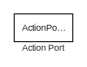
[diagram: emi_1700 - part 1/3, top left region]
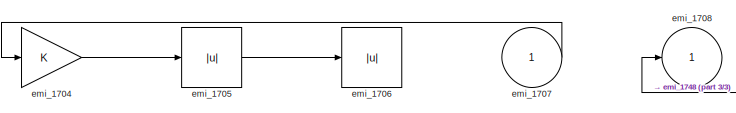
[diagram: emi_1700 - part 2/3, top center region]
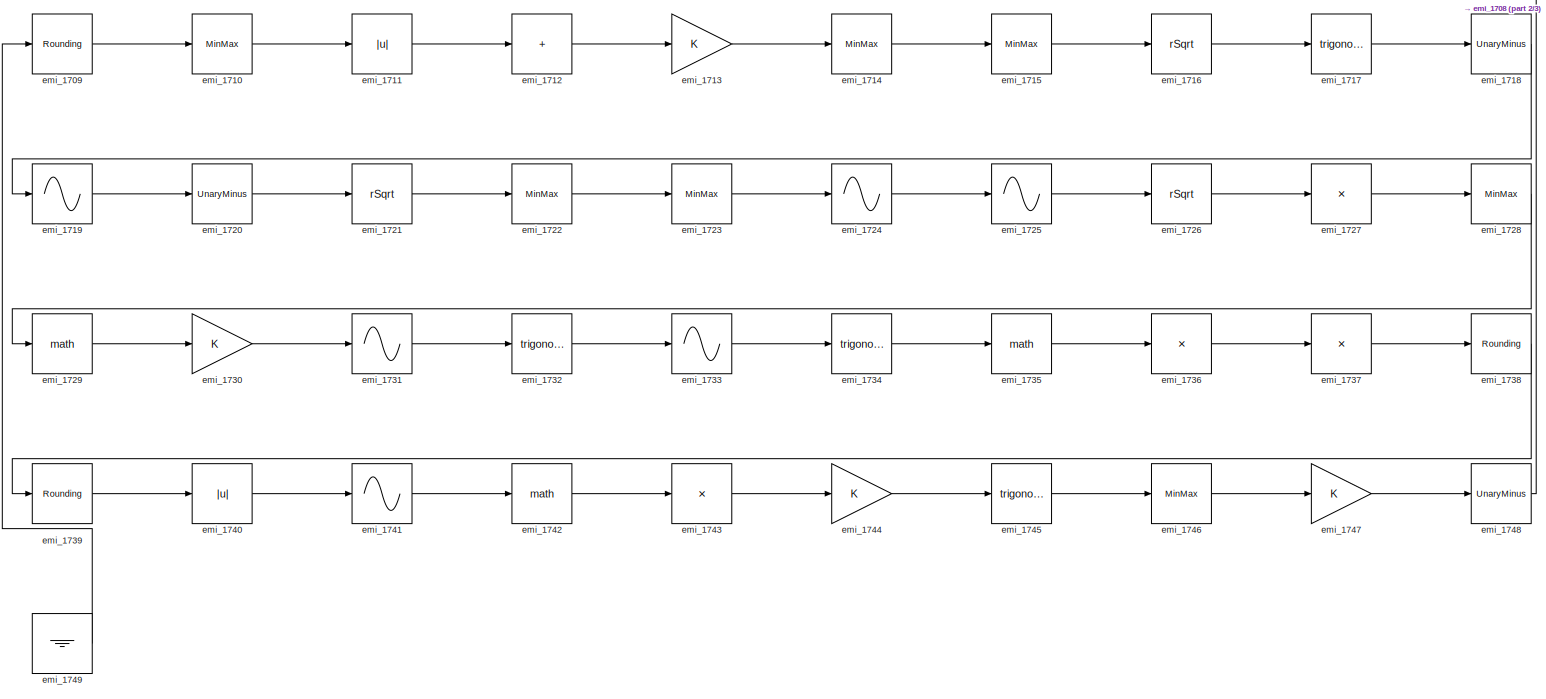
[diagram: emi_1700 - part 3/3, full width, bottom band]
BLOCK [SubSystem] emi_1700
  Ports = [1, 1, 0, 0, 0, 0, 0, 1]
  RequestExecContextInheritance = off
  TreatAsAtomicUnit = on
BLOCK [ActionPort] emi_1700/Action Port
  ActionPortLabel = if(0 > u1)
BLOCK [Gain] emi_1700/emi_1704
BLOCK [Abs] emi_1700/emi_1705
  SaturateOnIntegerOverflow = off
BLOCK [Abs] emi_1700/emi_1706
  SaturateOnIntegerOverflow = off
BLOCK [Inport] emi_1700/emi_1707
BLOCK [Outport] emi_1700/emi_1708
BLOCK [Rounding] emi_1700/emi_1709
BLOCK [MinMax] emi_1700/emi_1710
  Ports = [1, 1]
BLOCK [Abs] emi_1700/emi_1711
  SaturateOnIntegerOverflow = off
BLOCK [Sum] emi_1700/emi_1712
  IconShape = rectangular
  Inputs = +
  Ports = [1, 1]
BLOCK [Gain] emi_1700/emi_1713
BLOCK [MinMax] emi_1700/emi_1714
  Ports = [1, 1]
BLOCK [MinMax] emi_1700/emi_1715
  Ports = [1, 1]
BLOCK [Sqrt] emi_1700/emi_1716
  Operator = rSqrt
BLOCK [Trigonometry] emi_1700/emi_1717
  Ports = [1, 1]
BLOCK [UnaryMinus] emi_1700/emi_1718
BLOCK [Sin] emi_1700/emi_1719
  Ports = [1, 1]
  SampleTime = 0
  TimeSource = Use external signal
BLOCK [UnaryMinus] emi_1700/emi_1720
BLOCK [Sqrt] emi_1700/emi_1721
  Operator = rSqrt
BLOCK [MinMax] emi_1700/emi_1722
  Ports = [1, 1]
BLOCK [MinMax] emi_1700/emi_1723
  Ports = [1, 1]
BLOCK [Sin] emi_1700/emi_1724
  Ports = [1, 1]
  SampleTime = 0
  TimeSource = Use external signal
BLOCK [Sin] emi_1700/emi_1725
  Ports = [1, 1]
  SampleTime = 0
  TimeSource = Use external signal
BLOCK [Sqrt] emi_1700/emi_1726
  Operator = rSqrt
BLOCK [Product] emi_1700/emi_1727
  Inputs = *
  Ports = [1, 1]
BLOCK [MinMax] emi_1700/emi_1728
  Ports = [1, 1]
BLOCK [Math] emi_1700/emi_1729
  Ports = [1, 1]
BLOCK [Gain] emi_1700/emi_1730
BLOCK [Sin] emi_1700/emi_1731
  Ports = [1, 1]
  SampleTime = 0
  TimeSource = Use external signal
BLOCK [Trigonometry] emi_1700/emi_1732
  Ports = [1, 1]
BLOCK [Sin] emi_1700/emi_1733
  Ports = [1, 1]
  SampleTime = 0
  TimeSource = Use external signal
BLOCK [Trigonometry] emi_1700/emi_1734
  Ports = [1, 1]
BLOCK [Math] emi_1700/emi_1735
  Ports = [1, 1]
BLOCK [Product] emi_1700/emi_1736
  Inputs = *
  Ports = [1, 1]
BLOCK [Product] emi_1700/emi_1737
  Inputs = *
  Ports = [1, 1]
BLOCK [Rounding] emi_1700/emi_1738
BLOCK [Rounding] emi_1700/emi_1739
BLOCK [Abs] emi_1700/emi_1740
  SaturateOnIntegerOverflow = off
BLOCK [Sin] emi_1700/emi_1741
  Ports = [1, 1]
  SampleTime = 0
  TimeSource = Use external signal
BLOCK [Math] emi_1700/emi_1742
  Ports = [1, 1]
BLOCK [Product] emi_1700/emi_1743
  Inputs = *
  Ports = [1, 1]
BLOCK [Gain] emi_1700/emi_1744
BLOCK [Trigonometry] emi_1700/emi_1745
  Ports = [1, 1]
BLOCK [MinMax] emi_1700/emi_1746
  Ports = [1, 1]
BLOCK [Gain] emi_1700/emi_1747
BLOCK [UnaryMinus] emi_1700/emi_1748
BLOCK [Ground] emi_1700/emi_1749
BLOCK [Delay] emi_1750
  InputPortMap = u0
  Ports = [1, 1]
BLOCK [Display] emi_1751
  Decimation = 1
  Ports = [1]
BLOCK [SubSystem] emi_1752
  Ports = [2, 2]
  RequestExecContextInheritance = off
BLOCK [Inport] emi_1752/In1
BLOCK [Outport] emi_1752/Out1
BLOCK [Inport] emi_1752/emi_1753
  Port = 2
BLOCK [Outport] emi_1752/emi_1754
  Port = 2
BLOCK [Reference] emi_1752/emi_1755  REF=simulink/Discontinuities/Saturation
Dynamic
  Ports = [3, 1]
  SourceBlock = simulink/Discontinuities/Saturation\nDynamic
  SourceProductBaseCode = SL
  SourceType = Saturation Dynamic
BLOCK [Trigonometry] emi_1752/emi_1756
  Ports = [1, 1]
BLOCK [Reference] emi_1752/emi_1757  REF=simulink/Discontinuities/Rate Limiter
Dynamic
  Ports = [3, 1]
  SourceBlock = simulink/Discontinuities/Rate Limiter\nDynamic
  SourceProductBaseCode = SL
  SourceType = Rate Limiter Dynamic
BLOCK [Trigonometry] emi_1752/emi_1758
  Ports = [1, 1]
BLOCK [Sin] emi_1752/emi_1759
  Ports = [1, 1]
  SampleTime = 0
  TimeSource = Use external signal
BLOCK [UnaryMinus] emi_1752/emi_1760
BLOCK [DiscreteFir] emi_1752/emi_1761
  InputPortMap = u0
  OutputPortMap = o0
  Ports = [1, 1]
BLOCK [Relay] emi_1752/emi_1762
BLOCK [Reference] emi_1752/emi_1763  REF=simulink/Discontinuities/PWM
  DisableCoverage = on
  Ports = [1, 1]
  SourceBlock = simulink/Discontinuities/PWM
  SourceProductBaseCode = SL
  SourceType = PWM
BLOCK [Reference] emi_1752/emi_1764  REF=simulink/Discontinuities/Wrap To Zero
  Ports = [1, 1]
  SourceBlock = simulink/Discontinuities/Wrap To Zero
  SourceProductBaseCode = SL
  SourceType = Wrap To Zero
BLOCK [MinMax] emi_1752/emi_1765
  Ports = [1, 1]
BLOCK [Rounding] emi_1752/emi_1766
BLOCK [DiscreteStateSpace] emi_1752/emi_1767
  SampleTime = -1
BLOCK [Reference] emi_1752/emi_1768  REF=simulink/Discrete/Transfer Fcn
First Order
  Ports = [1, 1]
  SourceBlock = simulink/Discrete/Transfer Fcn\nFirst Order
  SourceProductBaseCode = SL
  SourceType = First Order Transfer Fcn
BLOCK [Quantizer] emi_1752/emi_1769
BLOCK [DiscreteTransferFcn] emi_1752/emi_1770
  InputPortMap = u0
  Ports = [1, 1]
BLOCK [Reference] emi_1752/emi_1771  REF=simulink/Discontinuities/PWM
  DisableCoverage = on
  Ports = [1, 1]
  SourceBlock = simulink/Discontinuities/PWM
  SourceProductBaseCode = SL
  SourceType = PWM
BLOCK [Reference] emi_1752/emi_1772  REF=simulink/Discontinuities/PWM
  DisableCoverage = on
  Ports = [1, 1]
  SourceBlock = simulink/Discontinuities/PWM
  SourceProductBaseCode = SL
  SourceType = PWM
BLOCK [DiscretePulseGenerator] emi_1752/emi_1773
  Period = 10
  Ports = [0, 1]
  PulseType = Time based
  PulseWidth = 5
BLOCK [If] emi_1774
  IfExpression = 0 > u1
  Ports = [1, 2]
BLOCK [DataTypeConversion] emi_1775
  OutDataTypeStr = double
  RndMeth = Floor
  SaturateOnIntegerOverflow = off
BLOCK [Delay] emi_1776
  InitialCondition = 0
  InputPortMap = u0
  Ports = [1, 1]
BLOCK [SubSystem] emi_1781
  Ports = [1, 1, 0, 0, 0, 0, 0, 1]
  RequestExecContextInheritance = off
  TreatAsAtomicUnit = on
BLOCK [ActionPort] emi_1781/Action Port
  ActionPortLabel = if(-2 > u1)
BLOCK [Gain] emi_1781/emi_1785
BLOCK [Gain] emi_1781/emi_1786
BLOCK [Math] emi_1781/emi_1787
  Ports = [1, 1]
BLOCK [Inport] emi_1781/emi_1788
BLOCK [Outport] emi_1781/emi_1789
BLOCK [UnaryMinus] emi_1781/emi_1790
BLOCK [Rounding] emi_1781/emi_1791
BLOCK [Product] emi_1781/emi_1792
  Inputs = *
  Ports = [1, 1]
BLOCK [Rounding] emi_1781/emi_1793
BLOCK [Gain] emi_1781/emi_1794
BLOCK [Product] emi_1781/emi_1795
  Inputs = *
  Ports = [1, 1]
BLOCK [Sin] emi_1781/emi_1796
  Ports = [1, 1]
  SampleTime = 0
  TimeSource = Use external signal
BLOCK [Trigonometry] emi_1781/emi_1797
  Ports = [1, 1]
BLOCK [Product] emi_1781/emi_1798
  Inputs = *
  Ports = [1, 1]
BLOCK [Math] emi_1781/emi_1799
  Ports = [1, 1]
BLOCK [Sqrt] emi_1781/emi_1800
  Operator = rSqrt
BLOCK [Product] emi_1781/emi_1801
  Inputs = *
  Ports = [1, 1]
BLOCK [UnaryMinus] emi_1781/emi_1802
BLOCK [Trigonometry] emi_1781/emi_1803
  Ports = [1, 1]
BLOCK [Ground] emi_1781/emi_1804
BLOCK [Delay] emi_1805
  InputPortMap = u0
  Ports = [1, 1]
BLOCK [Display] emi_1806
  Decimation = 1
  Ports = [1]
BLOCK [SubSystem] emi_1807
  Ports = [2, 2]
  RequestExecContextInheritance = off
BLOCK [Inport] emi_1807/In1
BLOCK [Outport] emi_1807/Out1
BLOCK [Inport] emi_1807/emi_1808
  Port = 2
BLOCK [Outport] emi_1807/emi_1809
  Port = 2
BLOCK [Math] emi_1807/emi_1810
  Ports = [1, 1]
BLOCK [DiscreteStateSpace] emi_1807/emi_1811
  SampleTime = -1
BLOCK [DiscreteFir] emi_1807/emi_1812
  InputPortMap = u0
  OutputPortMap = o0
  Ports = [1, 1]
BLOCK [Reference] emi_1807/emi_1813  REF=simulink/Discrete/Difference
  Ports = [1, 1]
  SourceBlock = simulink/Discrete/Difference
  SourceProductBaseCode = SL
  SourceType = Difference
BLOCK [DeadZone] emi_1807/emi_1814
BLOCK [VariablePulseGenerator] emi_1807/emi_1815
  SampleTime = 0.1
BLOCK [Sin] emi_1807/emi_1816
  Ports = [1, 1]
  SampleTime = 0
  TimeSource = Use external signal
BLOCK [Sqrt] emi_1807/emi_1817
  Operator = rSqrt
BLOCK [Abs] emi_1807/emi_1818
  SaturateOnIntegerOverflow = off
BLOCK [DiscreteFir] emi_1807/emi_1819
  InputPortMap = u0
  OutputPortMap = o0
  Ports = [1, 1]
BLOCK [Math] emi_1807/emi_1820
  Ports = [1, 1]
BLOCK [Reference] emi_1807/emi_1821  REF=simulink/Discontinuities/Wrap To Zero
  Ports = [1, 1]
  SourceBlock = simulink/Discontinuities/Wrap To Zero
  SourceProductBaseCode = SL
  SourceType = Wrap To Zero
BLOCK [Reference] emi_1807/emi_1822  REF=simulink/Discontinuities/PWM
  DisableCoverage = on
  Ports = [1, 1]
  SourceBlock = simulink/Discontinuities/PWM
  SourceProductBaseCode = SL
  SourceType = PWM
BLOCK [DiscreteFir] emi_1807/emi_1823
  InputPortMap = u0
  OutputPortMap = o0
  Ports = [1, 1]
BLOCK [Relay] emi_1807/emi_1824
BLOCK [Abs] emi_1807/emi_1825
  SaturateOnIntegerOverflow = off
BLOCK [Relay] emi_1807/emi_1826
BLOCK [Math] emi_1807/emi_1827
  Ports = [1, 1]
BLOCK [Math] emi_1807/emi_1828
  Ports = [1, 1]
BLOCK [Reference] emi_1807/emi_1829  REF=slpidlib/PID Controller
  Ports = [1, 1]
  SourceBlock = slpidlib/PID Controller
  SourceProductBaseCode = SL
  SourceType = PID 1dof
BLOCK [Reference] emi_1807/emi_1830  REF=slpidlib/PID Controller
  Ports = [1, 1]
  SourceBlock = slpidlib/PID Controller
  SourceProductBaseCode = SL
  SourceType = PID 1dof
BLOCK [Product] emi_1807/emi_1831
  Inputs = *
  Ports = [1, 1]
BLOCK [Quantizer] emi_1807/emi_1832
BLOCK [Abs] emi_1807/emi_1833
  SaturateOnIntegerOverflow = off
BLOCK [Sum] emi_1807/emi_1834
  IconShape = rectangular
  Inputs = +
  Ports = [1, 1]
BLOCK [Reference] emi_1807/emi_1835  REF=simulink/Sources/Chirp Signal
  Ports = [0, 1]
  SourceBlock = simulink/Sources/Chirp Signal
  SourceProductBaseCode = SL
  SourceType = chirp
BLOCK [If] emi_1836
  IfExpression = -2 > u1
  Ports = [1, 2]
BLOCK [DataTypeConversion] emi_1837
  OutDataTypeStr = double
  RndMeth = Floor
  SaturateOnIntegerOverflow = off
BLOCK [Delay] emi_1838
  InitialCondition = -1
  InputPortMap = u0
  Ports = [1, 1]
BLOCK [SubSystem] emi_1842
  Ports = [1, 1, 0, 0, 0, 0, 0, 1]
  RequestExecContextInheritance = off
  TreatAsAtomicUnit = on
BLOCK [ActionPort] emi_1842/Action Port
  ActionPortLabel = if(0 > u1)
BLOCK [Abs] emi_1842/emi_1846
  SaturateOnIntegerOverflow = off
BLOCK [Math] emi_1842/emi_1847
  Ports = [1, 1]
BLOCK [Gain] emi_1842/emi_1848
BLOCK [Inport] emi_1842/emi_1849
BLOCK [Outport] emi_1842/emi_1850
BLOCK [Abs] emi_1842/emi_1851
  SaturateOnIntegerOverflow = off
BLOCK [Trigonometry] emi_1842/emi_1852
  Ports = [1, 1]
BLOCK [UnaryMinus] emi_1842/emi_1853
BLOCK [Product] emi_1842/emi_1854
  Inputs = *
  Ports = [1, 1]
BLOCK [MinMax] emi_1842/emi_1855
  Ports = [1, 1]
BLOCK [Sqrt] emi_1842/emi_1856
  Operator = rSqrt
BLOCK [Sum] emi_1842/emi_1857
  IconShape = rectangular
  Inputs = +
  Ports = [1, 1]
BLOCK [Gain] emi_1842/emi_1858
BLOCK [Sin] emi_1842/emi_1859
  Ports = [1, 1]
  SampleTime = 0
  TimeSource = Use external signal
BLOCK [Trigonometry] emi_1842/emi_1860
  Ports = [1, 1]
BLOCK [Trigonometry] emi_1842/emi_1861
  Ports = [1, 1]
BLOCK [Trigonometry] emi_1842/emi_1862
  Ports = [1, 1]
BLOCK [Rounding] emi_1842/emi_1863
BLOCK [Ground] emi_1842/emi_1864
BLOCK [Delay] emi_1865
  InputPortMap = u0
  Ports = [1, 1]
  SampleTime = 1
BLOCK [Display] emi_1866
  Decimation = 1
  Ports = [1]
BLOCK [SubSystem] emi_1867
  Ports = [2, 2]
  RequestExecContextInheritance = off
BLOCK [Inport] emi_1867/In1
BLOCK [Outport] emi_1867/Out1
BLOCK [Inport] emi_1867/emi_1868
  Port = 2
BLOCK [Outport] emi_1867/emi_1869
  Port = 2
BLOCK [Sum] emi_1867/emi_1870
  IconShape = rectangular
  Inputs = +
  Ports = [1, 1]
BLOCK [Sqrt] emi_1867/emi_1871
  Operator = rSqrt
BLOCK [Reference] emi_1867/emi_1872  REF=slpidlib/PID Controller
  Ports = [1, 1]
  SourceBlock = slpidlib/PID Controller
  SourceProductBaseCode = SL
  SourceType = PID 1dof
BLOCK [Quantizer] emi_1867/emi_1873
BLOCK [VariablePulseGenerator] emi_1867/emi_1874
  SampleTime = 0.1
BLOCK [Product] emi_1867/emi_1875
  Inputs = *
  Ports = [1, 1]
BLOCK [VariablePulseGenerator] emi_1867/emi_1876
  SampleTime = 0.1
BLOCK [Reference] emi_1867/emi_1877  REF=simulink/Discontinuities/Rate Limiter
Dynamic
  Ports = [3, 1]
  SourceBlock = simulink/Discontinuities/Rate Limiter\nDynamic
  SourceProductBaseCode = SL
  SourceType = Rate Limiter Dynamic
BLOCK [DiscreteFilter] emi_1867/emi_1878
  InputPortMap = u0
  Ports = [1, 1]
BLOCK [DiscreteIntegrator] emi_1867/emi_1879
  ICPrevOutput = DiscIntNeverNeededParam
  ICPrevScaledInput = DiscIntNeverNeededParam
  InitialConditionSetting = Auto
  Ports = [1, 1]
  SampleTime = -1
BLOCK [VariablePulseGenerator] emi_1867/emi_1880
  SampleTime = 0.1
BLOCK [Math] emi_1867/emi_1881
  Ports = [1, 1]
BLOCK [MinMax] emi_1867/emi_1882
  Ports = [1, 1]
BLOCK [DiscreteFir] emi_1867/emi_1883
  InputPortMap = u0
  OutputPortMap = o0
  Ports = [1, 1]
BLOCK [DiscreteZeroPole] emi_1867/emi_1884
  Gain = 1
  Poles = [0 0.5]
  SampleTime = -1
BLOCK [Trigonometry] emi_1867/emi_1885
  Ports = [1, 1]
BLOCK [DiscreteZeroPole] emi_1867/emi_1886
  Gain = 1
  Poles = [0 0.5]
  SampleTime = -1
BLOCK [SignalGenerator] emi_1867/emi_1887
  Ports = [0, 1]
  Units = rad/sec
BLOCK [If] emi_1888
  IfExpression = 0 > u1
  Ports = [1, 2]
BLOCK [DataTypeConversion] emi_1889
  OutDataTypeStr = double
  RndMeth = Floor
  SaturateOnIntegerOverflow = off
BLOCK [Delay] emi_1890
  InitialCondition = 0
  InputPortMap = u0
  Ports = [1, 1]
BLOCK [SubSystem] emi_1894
  Ports = [1, 1, 0, 0, 0, 0, 0, 1]
  RequestExecContextInheritance = off
  TreatAsAtomicUnit = on
BLOCK [ActionPort] emi_1894/Action Port
  ActionPortLabel = if(0 > u1)
BLOCK [Gain] emi_1894/emi_1898
BLOCK [Math] emi_1894/emi_1899
  Ports = [1, 1]
BLOCK [MinMax] emi_1894/emi_1900
  Ports = [1, 1]
BLOCK [Inport] emi_1894/emi_1901
BLOCK [Outport] emi_1894/emi_1902
BLOCK [Trigonometry] emi_1894/emi_1903
  Ports = [1, 1]
BLOCK [Sqrt] emi_1894/emi_1904
  Operator = rSqrt
BLOCK [Sin] emi_1894/emi_1905
  Ports = [1, 1]
  SampleTime = 0
  TimeSource = Use external signal
BLOCK [MinMax] emi_1894/emi_1906
  Ports = [1, 1]
BLOCK [Sin] emi_1894/emi_1907
  Ports = [1, 1]
  SampleTime = 0
  TimeSource = Use external signal
BLOCK [Sum] emi_1894/emi_1908
  IconShape = rectangular
  Inputs = +
  Ports = [1, 1]
BLOCK [Product] emi_1894/emi_1909
  Inputs = *
  Ports = [1, 1]
BLOCK [UnaryMinus] emi_1894/emi_1910
BLOCK [MinMax] emi_1894/emi_1911
  Ports = [1, 1]
BLOCK [Abs] emi_1894/emi_1912
  SaturateOnIntegerOverflow = off
BLOCK [MinMax] emi_1894/emi_1913
  Ports = [1, 1]
BLOCK [Sqrt] emi_1894/emi_1914
  Operator = rSqrt
BLOCK [Math] emi_1894/emi_1915
  Ports = [1, 1]
BLOCK [MinMax] emi_1894/emi_1916
  Ports = [1, 1]
BLOCK [Ground] emi_1894/emi_1917
BLOCK [Delay] emi_1918
  InputPortMap = u0
  Ports = [1, 1]
  SampleTime = 1
BLOCK [Display] emi_1919
  Decimation = 1
  Ports = [1]
BLOCK [SubSystem] emi_1920
  Ports = [2, 2]
  RequestExecContextInheritance = off
BLOCK [Inport] emi_1920/In1
BLOCK [Outport] emi_1920/Out1
BLOCK [Inport] emi_1920/emi_1921
  Port = 2
BLOCK [Outport] emi_1920/emi_1922
  Port = 2
BLOCK [MinMax] emi_1920/emi_1923
  Ports = [1, 1]
BLOCK [Sum] emi_1920/emi_1924
  IconShape = rectangular
  Inputs = +
  Ports = [1, 1]
BLOCK [RateLimiter] emi_1920/emi_1925
  SampleTimeMode = inherited
BLOCK [Reference] emi_1920/emi_1926  REF=simulink/Discrete/Transfer Fcn
First Order
  Ports = [1, 1]
  SourceBlock = simulink/Discrete/Transfer Fcn\nFirst Order
  SourceProductBaseCode = SL
  SourceType = First Order Transfer Fcn
BLOCK [Relay] emi_1920/emi_1927
BLOCK [Reference] emi_1920/emi_1928  REF=simulink/Discontinuities/Wrap To Zero
  Ports = [1, 1]
  SourceBlock = simulink/Discontinuities/Wrap To Zero
  SourceProductBaseCode = SL
  SourceType = Wrap To Zero
BLOCK [RateLimiter] emi_1920/emi_1929
  SampleTimeMode = inherited
BLOCK [Reference] emi_1920/emi_1930  REF=simulink/Discontinuities/Saturation
Dynamic
  Ports = [3, 1]
  SourceBlock = simulink/Discontinuities/Saturation\nDynamic
  SourceProductBaseCode = SL
  SourceType = Saturation Dynamic
BLOCK [Quantizer] emi_1920/emi_1931
BLOCK [MinMax] emi_1920/emi_1932
  Ports = [1, 1]
BLOCK [DiscreteTransferFcn] emi_1920/emi_1933
  InputPortMap = u0
  Ports = [1, 1]
BLOCK [UnaryMinus] emi_1920/emi_1934
BLOCK [DiscretePulseGenerator] emi_1920/emi_1935
  Period = 10
  Ports = [0, 1]
  PulseType = Time based
  PulseWidth = 5
BLOCK [If] emi_1936
  IfExpression = 0 > u1
  Ports = [1, 2]
BLOCK [DataTypeConversion] emi_1937
  OutDataTypeStr = double
  RndMeth = Floor
  SaturateOnIntegerOverflow = off
BLOCK [Delay] emi_1938
  InitialCondition = 0
  InputPortMap = u0
  Ports = [1, 1]
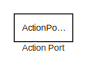
[diagram: emi_1942 - part 1/3, top left region]
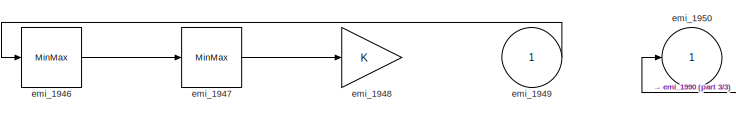
[diagram: emi_1942 - part 2/3, top center region]
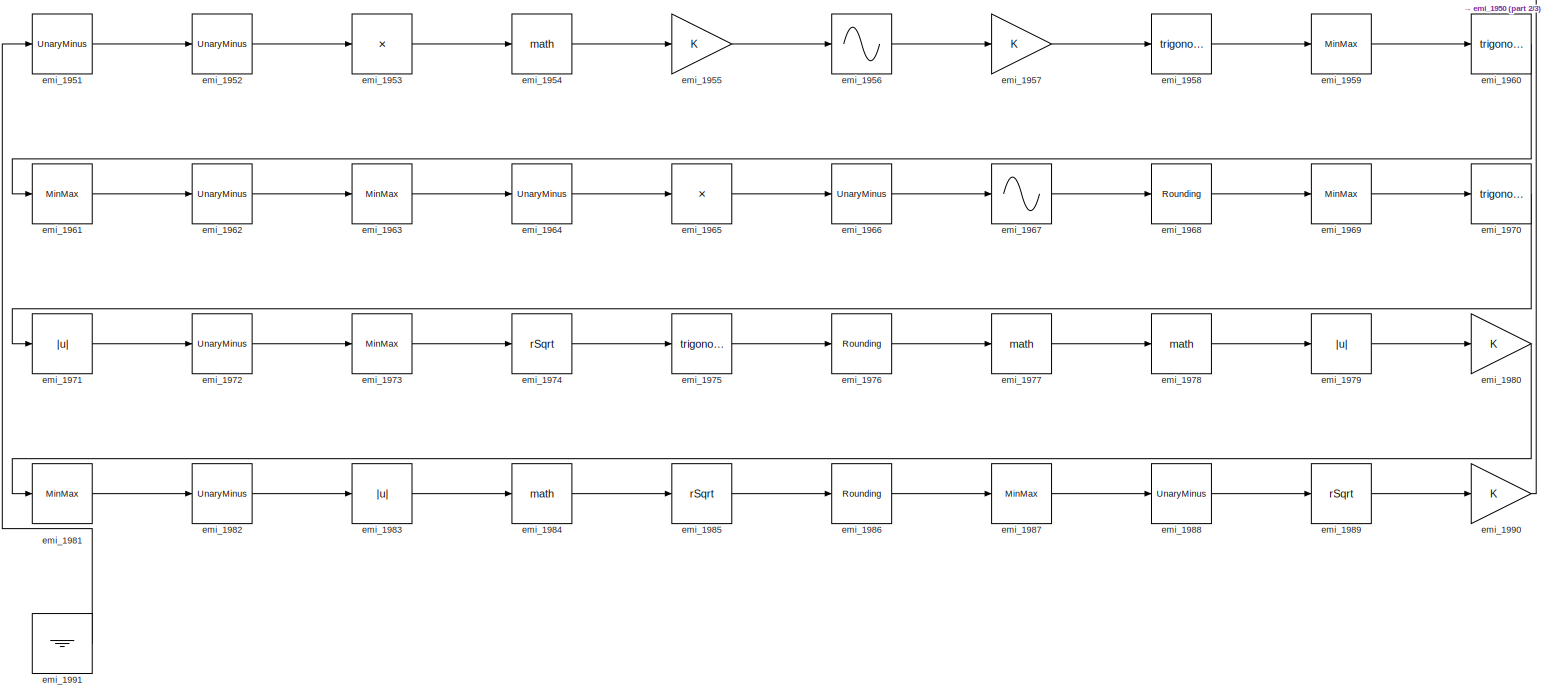
[diagram: emi_1942 - part 3/3, full width, bottom band]
BLOCK [SubSystem] emi_1942
  Ports = [1, 1, 0, 0, 0, 0, 0, 1]
  RequestExecContextInheritance = off
  TreatAsAtomicUnit = on
BLOCK [ActionPort] emi_1942/Action Port
  ActionPortLabel = if(0 > u1)
BLOCK [MinMax] emi_1942/emi_1946
  Ports = [1, 1]
BLOCK [MinMax] emi_1942/emi_1947
  Ports = [1, 1]
BLOCK [Gain] emi_1942/emi_1948
BLOCK [Inport] emi_1942/emi_1949
BLOCK [Outport] emi_1942/emi_1950
BLOCK [UnaryMinus] emi_1942/emi_1951
BLOCK [UnaryMinus] emi_1942/emi_1952
BLOCK [Product] emi_1942/emi_1953
  Inputs = *
  Ports = [1, 1]
BLOCK [Math] emi_1942/emi_1954
  Ports = [1, 1]
BLOCK [Gain] emi_1942/emi_1955
BLOCK [Sin] emi_1942/emi_1956
  Ports = [1, 1]
  SampleTime = 0
  TimeSource = Use external signal
BLOCK [Gain] emi_1942/emi_1957
BLOCK [Trigonometry] emi_1942/emi_1958
  Ports = [1, 1]
BLOCK [MinMax] emi_1942/emi_1959
  Ports = [1, 1]
BLOCK [Trigonometry] emi_1942/emi_1960
  Ports = [1, 1]
BLOCK [MinMax] emi_1942/emi_1961
  Ports = [1, 1]
BLOCK [UnaryMinus] emi_1942/emi_1962
BLOCK [MinMax] emi_1942/emi_1963
  Ports = [1, 1]
BLOCK [UnaryMinus] emi_1942/emi_1964
BLOCK [Product] emi_1942/emi_1965
  Inputs = *
  Ports = [1, 1]
BLOCK [UnaryMinus] emi_1942/emi_1966
BLOCK [Sin] emi_1942/emi_1967
  Ports = [1, 1]
  SampleTime = 0
  TimeSource = Use external signal
BLOCK [Rounding] emi_1942/emi_1968
BLOCK [MinMax] emi_1942/emi_1969
  Ports = [1, 1]
BLOCK [Trigonometry] emi_1942/emi_1970
  Ports = [1, 1]
BLOCK [Abs] emi_1942/emi_1971
  SaturateOnIntegerOverflow = off
BLOCK [UnaryMinus] emi_1942/emi_1972
BLOCK [MinMax] emi_1942/emi_1973
  Ports = [1, 1]
BLOCK [Sqrt] emi_1942/emi_1974
  Operator = rSqrt
BLOCK [Trigonometry] emi_1942/emi_1975
  Ports = [1, 1]
BLOCK [Rounding] emi_1942/emi_1976
BLOCK [Math] emi_1942/emi_1977
  Ports = [1, 1]
BLOCK [Math] emi_1942/emi_1978
  Ports = [1, 1]
BLOCK [Abs] emi_1942/emi_1979
  SaturateOnIntegerOverflow = off
BLOCK [Gain] emi_1942/emi_1980
BLOCK [MinMax] emi_1942/emi_1981
  Ports = [1, 1]
BLOCK [UnaryMinus] emi_1942/emi_1982
BLOCK [Abs] emi_1942/emi_1983
  SaturateOnIntegerOverflow = off
BLOCK [Math] emi_1942/emi_1984
  Ports = [1, 1]
BLOCK [Sqrt] emi_1942/emi_1985
  Operator = rSqrt
BLOCK [Rounding] emi_1942/emi_1986
BLOCK [MinMax] emi_1942/emi_1987
  Ports = [1, 1]
BLOCK [UnaryMinus] emi_1942/emi_1988
BLOCK [Sqrt] emi_1942/emi_1989
  Operator = rSqrt
BLOCK [Gain] emi_1942/emi_1990
BLOCK [Ground] emi_1942/emi_1991
BLOCK [Delay] emi_195
  InputPortMap = u0
  Ports = [1, 1]
  SampleTime = 1
BLOCK [Display] emi_196
  Decimation = 1
  Ports = [1]
BLOCK [SubSystem] emi_197
  Ports = [2, 2]
  RequestExecContextInheritance = off
BLOCK [Inport] emi_197/In1
BLOCK [Outport] emi_197/Out1
BLOCK [Inport] emi_197/emi_198
  Port = 2
BLOCK [Outport] emi_197/emi_199
  Port = 2
BLOCK [Quantizer] emi_197/emi_200
BLOCK [DeadZone] emi_197/emi_201
BLOCK [Sqrt] emi_197/emi_202
  Operator = rSqrt
BLOCK [DiscreteFir] emi_197/emi_203
  InputPortMap = u0
  OutputPortMap = o0
  Ports = [1, 1]
BLOCK [Reference] emi_197/emi_204  REF=simulink/Sources/Repeating
Sequence
Stair
  Ports = [0, 1]
  SourceBlock = simulink/Sources/Repeating\nSequence\nStair
  SourceProductBaseCode = SL
  SourceType = Repeating Sequence Stair
BLOCK [Delay] emi_1992
  InputPortMap = u0
  Ports = [1, 1]
  SampleTime = 1
BLOCK [Display] emi_1993
  Decimation = 1
  Ports = [1]
BLOCK [SubSystem] emi_1994
  Ports = [2, 2]
  RequestExecContextInheritance = off
BLOCK [Inport] emi_1994/In1
BLOCK [Outport] emi_1994/Out1
BLOCK [Inport] emi_1994/emi_1995
  Port = 2
BLOCK [Outport] emi_1994/emi_1996
  Port = 2
BLOCK [Sum] emi_1994/emi_1997
  IconShape = rectangular
  Inputs = +
  Ports = [1, 1]
BLOCK [Sin] emi_1994/emi_1998
  Ports = [1, 1]
  SampleTime = 0
  TimeSource = Use external signal
BLOCK [DiscreteStateSpace] emi_1994/emi_1999
  SampleTime = -1
BLOCK [Trigonometry] emi_1994/emi_2000
  Ports = [1, 1]
BLOCK [RateLimiter] emi_1994/emi_2001
  SampleTimeMode = inherited
BLOCK [DiscreteZeroPole] emi_1994/emi_2002
  Gain = 1
  Poles = [0 0.5]
  SampleTime = -1
BLOCK [VariablePulseGenerator] emi_1994/emi_2003
  SampleTime = 0.1
BLOCK [Reference] emi_1994/emi_2004  REF=simulink/Discrete/Discrete Derivative
  Ports = [1, 1]
  SourceBlock = simulink/Discrete/Discrete Derivative
  SourceProductBaseCode = SL
  SourceType = Discrete Derivative
BLOCK [Sqrt] emi_1994/emi_2005
  Operator = rSqrt
BLOCK [Reference] emi_1994/emi_2006  REF=simulink/Discontinuities/PWM
  DisableCoverage = on
  Ports = [1, 1]
  SourceBlock = simulink/Discontinuities/PWM
  SourceProductBaseCode = SL
  SourceType = PWM
BLOCK [Reference] emi_1994/emi_2007  REF=simulink/Discrete/Discrete Derivative
  Ports = [1, 1]
  SourceBlock = simulink/Discrete/Discrete Derivative
  SourceProductBaseCode = SL
  SourceType = Discrete Derivative
BLOCK [Sqrt] emi_1994/emi_2008
  Operator = rSqrt
BLOCK [MinMax] emi_1994/emi_2009
  Ports = [1, 1]
BLOCK [MinMax] emi_1994/emi_2010
  Ports = [1, 1]
BLOCK [Reference] emi_1994/emi_2011  REF=simulink/Sources/Band-Limited
White Noise
  Ports = [0, 1]
  SourceBlock = simulink/Sources/Band-Limited\nWhite Noise
  SourceProductBaseCode = SL
  SourceType = Band-Limited White Noise.
BLOCK [Delay] emi_20
  InputPortMap = u0
  Ports = [1, 1]
  SampleTime = 1
BLOCK [If] emi_2012
  IfExpression = 0 > u1
  Ports = [1, 2]
BLOCK [DataTypeConversion] emi_2013
  OutDataTypeStr = double
  RndMeth = Floor
  SaturateOnIntegerOverflow = off
BLOCK [Delay] emi_2014
  InitialCondition = 1.0441
  InputPortMap = u0
  Ports = [1, 1]
BLOCK [SubSystem] emi_2018
  Ports = [1, 1, 0, 0, 0, 0, 0, 1]
  RequestExecContextInheritance = off
  TreatAsAtomicUnit = on
BLOCK [ActionPort] emi_2018/Action Port
  ActionPortLabel = if(0 > u1)
BLOCK [Trigonometry] emi_2018/emi_2022
  Ports = [1, 1]
BLOCK [MinMax] emi_2018/emi_2023
  Ports = [1, 1]
BLOCK [MinMax] emi_2018/emi_2024
  Ports = [1, 1]
BLOCK [Inport] emi_2018/emi_2025
BLOCK [Outport] emi_2018/emi_2026
BLOCK [MinMax] emi_2018/emi_2027
  Ports = [1, 1]
BLOCK [Trigonometry] emi_2018/emi_2028
  Ports = [1, 1]
BLOCK [Gain] emi_2018/emi_2029
BLOCK [Abs] emi_2018/emi_2030
  SaturateOnIntegerOverflow = off
BLOCK [Sqrt] emi_2018/emi_2031
  Operator = rSqrt
BLOCK [Rounding] emi_2018/emi_2032
BLOCK [Trigonometry] emi_2018/emi_2033
  Ports = [1, 1]
BLOCK [Gain] emi_2018/emi_2034
BLOCK [MinMax] emi_2018/emi_2035
  Ports = [1, 1]
BLOCK [Sum] emi_2018/emi_2036
  IconShape = rectangular
  Inputs = +
  Ports = [1, 1]
BLOCK [MinMax] emi_2018/emi_2037
  Ports = [1, 1]
BLOCK [Gain] emi_2018/emi_2038
BLOCK [Sqrt] emi_2018/emi_2039
  Operator = rSqrt
BLOCK [Math] emi_2018/emi_2040
  Ports = [1, 1]
BLOCK [Math] emi_2018/emi_2041
  Ports = [1, 1]
BLOCK [Math] emi_2018/emi_2042
  Ports = [1, 1]
BLOCK [Trigonometry] emi_2018/emi_2043
  Ports = [1, 1]
BLOCK [Sum] emi_2018/emi_2044
  IconShape = rectangular
  Inputs = +
  Ports = [1, 1]
BLOCK [Sum] emi_2018/emi_2045
  IconShape = rectangular
  Inputs = +
  Ports = [1, 1]
BLOCK [Math] emi_2018/emi_2046
  Ports = [1, 1]
BLOCK [Abs] emi_2018/emi_2047
  SaturateOnIntegerOverflow = off
BLOCK [Ground] emi_2018/emi_2048
BLOCK [Delay] emi_2049
  InputPortMap = u0
  Ports = [1, 1]
  SampleTime = 1
BLOCK [If] emi_205
  IfExpression = 0 > u1
  Ports = [1, 2]
  SampleTime = 1
BLOCK [Display] emi_2050
  Decimation = 1
  Ports = [1]
BLOCK [SubSystem] emi_2051
  Ports = [2, 2]
  RequestExecContextInheritance = off
BLOCK [Inport] emi_2051/In1
BLOCK [Outport] emi_2051/Out1
BLOCK [Inport] emi_2051/emi_2052
  Port = 2
BLOCK [Outport] emi_2051/emi_2053
  Port = 2
BLOCK [Relay] emi_2051/emi_2054
BLOCK [Sum] emi_2051/emi_2055
  IconShape = rectangular
  Inputs = +
  Ports = [1, 1]
BLOCK [Reference] emi_2051/emi_2056  REF=simulink/Discrete/Difference
  Ports = [1, 1]
  SourceBlock = simulink/Discrete/Difference
  SourceProductBaseCode = SL
  SourceType = Difference
BLOCK [Reference] emi_2051/emi_2057  REF=simulink/Discrete/Transfer Fcn
First Order
  Ports = [1, 1]
  SourceBlock = simulink/Discrete/Transfer Fcn\nFirst Order
  SourceProductBaseCode = SL
  SourceType = First Order Transfer Fcn
BLOCK [Sqrt] emi_2051/emi_2058
  Operator = rSqrt
BLOCK [Relay] emi_2051/emi_2059
BLOCK [Product] emi_2051/emi_2060
  Inputs = *
  Ports = [1, 1]
BLOCK [Sin] emi_2051/emi_2061
  Ports = [1, 1]
  SampleTime = 0
  TimeSource = Use external signal
BLOCK [MinMax] emi_2051/emi_2062
  Ports = [1, 1]
BLOCK [Gain] emi_2051/emi_2063
BLOCK [Quantizer] emi_2051/emi_2064
BLOCK [Sum] emi_2051/emi_2065
  IconShape = rectangular
  Inputs = +
  Ports = [1, 1]
BLOCK [Reference] emi_2051/emi_2066  REF=simulink/Discontinuities/Wrap To Zero
  Ports = [1, 1]
  SourceBlock = simulink/Discontinuities/Wrap To Zero
  SourceProductBaseCode = SL
  SourceType = Wrap To Zero
BLOCK [Reference] emi_2051/emi_2067  REF=simulink/Discrete/Transfer Fcn
First Order
  Ports = [1, 1]
  SourceBlock = simulink/Discrete/Transfer Fcn\nFirst Order
  SourceProductBaseCode = SL
  SourceType = First Order Transfer Fcn
BLOCK [DiscreteZeroPole] emi_2051/emi_2068
  Gain = 1
  Poles = [0 0.5]
  SampleTime = -1
BLOCK [Math] emi_2051/emi_2069
  Ports = [1, 1]
BLOCK [SignalGenerator] emi_2051/emi_2070
  Ports = [0, 1]
  Units = rad/sec
BLOCK [DataTypeConversion] emi_206
  OutDataTypeStr = double
  RndMeth = Floor
  SaturateOnIntegerOverflow = off
BLOCK [Delay] emi_207
  InitialCondition = 0
  InputPortMap = u0
  Ports = [1, 1]
BLOCK [If] emi_2071
  IfExpression = 0 > u1
  Ports = [1, 2]
BLOCK [DataTypeConversion] emi_2072
  OutDataTypeStr = double
  RndMeth = Floor
  SaturateOnIntegerOverflow = off
BLOCK [Delay] emi_2073
  InitialCondition = 0
  InputPortMap = u0
  Ports = [1, 1]
BLOCK [SubSystem] emi_2077
  Ports = [1, 1, 0, 0, 0, 0, 0, 1]
  RequestExecContextInheritance = off
  TreatAsAtomicUnit = on
BLOCK [ActionPort] emi_2077/Action Port
  ActionPortLabel = if(0 > u1)
BLOCK [Math] emi_2077/emi_2081
  Ports = [1, 1]
BLOCK [MinMax] emi_2077/emi_2082
  Ports = [1, 1]
BLOCK [Math] emi_2077/emi_2083
  Ports = [1, 1]
BLOCK [Inport] emi_2077/emi_2084
BLOCK [Outport] emi_2077/emi_2085
BLOCK [Rounding] emi_2077/emi_2086
BLOCK [Math] emi_2077/emi_2087
  Ports = [1, 1]
BLOCK [Gain] emi_2077/emi_2088
BLOCK [Sin] emi_2077/emi_2089
  Ports = [1, 1]
  SampleTime = 0
  TimeSource = Use external signal
BLOCK [Gain] emi_2077/emi_2090
BLOCK [Gain] emi_2077/emi_2091
BLOCK [Sqrt] emi_2077/emi_2092
  Operator = rSqrt
BLOCK [MinMax] emi_2077/emi_2093
  Ports = [1, 1]
BLOCK [Abs] emi_2077/emi_2094
  SaturateOnIntegerOverflow = off
BLOCK [Product] emi_2077/emi_2095
  Inputs = *
  Ports = [1, 1]
BLOCK [Rounding] emi_2077/emi_2096
BLOCK [MinMax] emi_2077/emi_2097
  Ports = [1, 1]
BLOCK [Trigonometry] emi_2077/emi_2098
  Ports = [1, 1]
BLOCK [Product] emi_2077/emi_2099
  Inputs = *
  Ports = [1, 1]
BLOCK [Sum] emi_2077/emi_2100
  IconShape = rectangular
  Inputs = +
  Ports = [1, 1]
BLOCK [Sqrt] emi_2077/emi_2101
  Operator = rSqrt
BLOCK [Gain] emi_2077/emi_2102
BLOCK [Abs] emi_2077/emi_2103
  SaturateOnIntegerOverflow = off
BLOCK [Product] emi_2077/emi_2104
  Inputs = *
  Ports = [1, 1]
BLOCK [Product] emi_2077/emi_2105
  Inputs = *
  Ports = [1, 1]
BLOCK [Sum] emi_2077/emi_2106
  IconShape = rectangular
  Inputs = +
  Ports = [1, 1]
BLOCK [MinMax] emi_2077/emi_2107
  Ports = [1, 1]
BLOCK [Trigonometry] emi_2077/emi_2108
  Ports = [1, 1]
BLOCK [Product] emi_2077/emi_2109
  Inputs = *
  Ports = [1, 1]
BLOCK [Rounding] emi_2077/emi_2110
BLOCK [Trigonometry] emi_2077/emi_2111
  Ports = [1, 1]
BLOCK [Sum] emi_2077/emi_2112
  IconShape = rectangular
  Inputs = +
  Ports = [1, 1]
BLOCK [UnaryMinus] emi_2077/emi_2113
BLOCK [Sum] emi_2077/emi_2114
  IconShape = rectangular
  Inputs = +
  Ports = [1, 1]
BLOCK [Sin] emi_2077/emi_2115
  Ports = [1, 1]
  SampleTime = 0
  TimeSource = Use external signal
BLOCK [MinMax] emi_2077/emi_2116
  Ports = [1, 1]
BLOCK [Sin] emi_2077/emi_2117
  Ports = [1, 1]
  SampleTime = 0
  TimeSource = Use external signal
BLOCK [Abs] emi_2077/emi_2118
  SaturateOnIntegerOverflow = off
BLOCK [Rounding] emi_2077/emi_2119
BLOCK [Product] emi_2077/emi_2120
  Inputs = *
  Ports = [1, 1]
BLOCK [Ground] emi_2077/emi_2121
BLOCK [Display] emi_21
  Decimation = 1
  Ports = [1]
BLOCK [SubSystem] emi_211
  Ports = [1, 1, 0, 0, 0, 0, 0, 1]
  RequestExecContextInheritance = off
  TreatAsAtomicUnit = on
BLOCK [ActionPort] emi_211/Action Port
  ActionPortLabel = if(0 > u1)
BLOCK [Abs] emi_211/emi_215
  SampleTime = 1
  SaturateOnIntegerOverflow = off
BLOCK [MinMax] emi_211/emi_216
  Ports = [1, 1]
  SampleTime = 1
BLOCK [MinMax] emi_211/emi_217
  Ports = [1, 1]
  SampleTime = 1
BLOCK [Inport] emi_211/emi_218
BLOCK [Outport] emi_211/emi_219
BLOCK [Gain] emi_211/emi_220
BLOCK [Gain] emi_211/emi_221
BLOCK [Sin] emi_211/emi_222
  Ports = [1, 1]
  SampleTime = 0
  TimeSource = Use external signal
BLOCK [Gain] emi_211/emi_223
BLOCK [Product] emi_211/emi_224
  Inputs = *
  Ports = [1, 1]
BLOCK [Product] emi_211/emi_225
  Inputs = *
  Ports = [1, 1]
BLOCK [Sum] emi_211/emi_226
  IconShape = rectangular
  Inputs = +
  Ports = [1, 1]
BLOCK [UnaryMinus] emi_211/emi_227
BLOCK [Ground] emi_211/emi_228
BLOCK [Delay] emi_2122
  InputPortMap = u0
  Ports = [1, 1]
BLOCK [Display] emi_2123
  Decimation = 1
  Ports = [1]
BLOCK [SubSystem] emi_2124
  Ports = [2, 2]
  RequestExecContextInheritance = off
BLOCK [Inport] emi_2124/In1
BLOCK [Outport] emi_2124/Out1
BLOCK [Inport] emi_2124/emi_2125
  Port = 2
BLOCK [Outport] emi_2124/emi_2126
  Port = 2
BLOCK [Reference] emi_2124/emi_2127  REF=slpidlib/PID Controller
  Ports = [1, 1]
  SourceBlock = slpidlib/PID Controller
  SourceProductBaseCode = SL
  SourceType = PID 1dof
BLOCK [Reference] emi_2124/emi_2128  REF=simulink/Discrete/Difference
  Ports = [1, 1]
  SourceBlock = simulink/Discrete/Difference
  SourceProductBaseCode = SL
  SourceType = Difference
BLOCK [Sin] emi_2124/emi_2129
  Ports = [1, 1]
  SampleTime = 0
  TimeSource = Use external signal
BLOCK [DiscreteZeroPole] emi_2124/emi_2130
  Gain = 1
  Poles = [0 0.5]
  SampleTime = -1
BLOCK [DiscreteZeroPole] emi_2124/emi_2131
  Gain = 1
  Poles = [0 0.5]
  SampleTime = -1
BLOCK [Math] emi_2124/emi_2132
  Ports = [1, 1]
BLOCK [Rounding] emi_2124/emi_2133
BLOCK [Reference] emi_2124/emi_2134  REF=simulink/Discontinuities/Rate Limiter
Dynamic
  Ports = [3, 1]
  SourceBlock = simulink/Discontinuities/Rate Limiter\nDynamic
  SourceProductBaseCode = SL
  SourceType = Rate Limiter Dynamic
BLOCK [Reference] emi_2124/emi_2135  REF=simulink/Sources/Band-Limited
White Noise
  Ports = [0, 1]
  SourceBlock = simulink/Sources/Band-Limited\nWhite Noise
  SourceProductBaseCode = SL
  SourceType = Band-Limited White Noise.
BLOCK [If] emi_2136
  IfExpression = 0 > u1
  Ports = [1, 2]
BLOCK [DataTypeConversion] emi_2137
  OutDataTypeStr = double
  RndMeth = Floor
  SaturateOnIntegerOverflow = off
BLOCK [Delay] emi_2138
  InitialCondition = 0
  InputPortMap = u0
  Ports = [1, 1]
BLOCK [SubSystem] emi_2143
  Ports = [1, 1, 0, 0, 0, 0, 0, 1]
  RequestExecContextInheritance = off
  TreatAsAtomicUnit = on
BLOCK [ActionPort] emi_2143/Action Port
  ActionPortLabel = if(0 > u1)
BLOCK [Math] emi_2143/emi_2147
  Ports = [1, 1]
BLOCK [MinMax] emi_2143/emi_2148
  Ports = [1, 1]
BLOCK [Trigonometry] emi_2143/emi_2149
  Ports = [1, 1]
BLOCK [Inport] emi_2143/emi_2150
BLOCK [Outport] emi_2143/emi_2151
BLOCK [UnaryMinus] emi_2143/emi_2152
BLOCK [Gain] emi_2143/emi_2153
BLOCK [Trigonometry] emi_2143/emi_2154
  Ports = [1, 1]
BLOCK [Ground] emi_2143/emi_2155
BLOCK [Delay] emi_2156
  InputPortMap = u0
  Ports = [1, 1]
BLOCK [Display] emi_2157
  Decimation = 1
  Ports = [1]
BLOCK [SubSystem] emi_2158
  Ports = [2, 2]
  RequestExecContextInheritance = off
BLOCK [Inport] emi_2158/In1
BLOCK [Outport] emi_2158/Out1
BLOCK [Inport] emi_2158/emi_2159
  Port = 2
BLOCK [Outport] emi_2158/emi_2160
  Port = 2
BLOCK [DiscreteStateSpace] emi_2158/emi_2161
  SampleTime = -1
BLOCK [Relay] emi_2158/emi_2162
BLOCK [Reference] emi_2158/emi_2163  REF=simulink/Discrete/Transfer Fcn
First Order
  Ports = [1, 1]
  SourceBlock = simulink/Discrete/Transfer Fcn\nFirst Order
  SourceProductBaseCode = SL
  SourceType = First Order Transfer Fcn
BLOCK [VariablePulseGenerator] emi_2158/emi_2164
  SampleTime = 0.1
BLOCK [Sum] emi_2158/emi_2165
  IconShape = rectangular
  Inputs = +
  Ports = [1, 1]
BLOCK [DiscreteTransferFcn] emi_2158/emi_2166
  InputPortMap = u0
  Ports = [1, 1]
BLOCK [Sum] emi_2158/emi_2167
  IconShape = rectangular
  Inputs = +
  Ports = [1, 1]
BLOCK [Product] emi_2158/emi_2168
  Inputs = *
  Ports = [1, 1]
BLOCK [Reference] emi_2158/emi_2169  REF=simulink/Discontinuities/Wrap To Zero
  Ports = [1, 1]
  SourceBlock = simulink/Discontinuities/Wrap To Zero
  SourceProductBaseCode = SL
  SourceType = Wrap To Zero
BLOCK [Quantizer] emi_2158/emi_2170
BLOCK [Sum] emi_2158/emi_2171
  IconShape = rectangular
  Inputs = +
  Ports = [1, 1]
BLOCK [DiscreteTransferFcn] emi_2158/emi_2172
  InputPortMap = u0
  Ports = [1, 1]
BLOCK [Reference] emi_2158/emi_2173  REF=simulink/Sources/Repeating
Sequence
Interpolated
  Ports = [0, 1]
  SourceBlock = simulink/Sources/Repeating\nSequence\nInterpolated
  SourceProductBaseCode = SL
  SourceType = Repeating Sequence Interpolated
BLOCK [If] emi_2174
  IfExpression = 0 > u1
  Ports = [1, 2]
BLOCK [DataTypeConversion] emi_2175
  OutDataTypeStr = double
  RndMeth = Floor
  SaturateOnIntegerOverflow = off
BLOCK [Delay] emi_2176
  InitialCondition = 0
  InputPortMap = u0
  Ports = [1, 1]
BLOCK [SubSystem] emi_2180
  Ports = [1, 1, 0, 0, 0, 0, 0, 1]
  RequestExecContextInheritance = off
  TreatAsAtomicUnit = on
BLOCK [ActionPort] emi_2180/Action Port
  ActionPortLabel = if(0 > u1)
BLOCK [Trigonometry] emi_2180/emi_2184
  Ports = [1, 1]
BLOCK [Math] emi_2180/emi_2185
  Ports = [1, 1]
BLOCK [MinMax] emi_2180/emi_2186
  Ports = [1, 1]
BLOCK [Inport] emi_2180/emi_2187
BLOCK [Outport] emi_2180/emi_2188
BLOCK [Sum] emi_2180/emi_2189
  IconShape = rectangular
  Inputs = +
  Ports = [1, 1]
BLOCK [Ground] emi_2180/emi_2190
BLOCK [Delay] emi_2191
  InputPortMap = u0
  Ports = [1, 1]
BLOCK [Display] emi_2192
  Decimation = 1
  Ports = [1]
BLOCK [SubSystem] emi_2193
  Ports = [2, 2]
  RequestExecContextInheritance = off
BLOCK [Inport] emi_2193/In1
BLOCK [Outport] emi_2193/Out1
BLOCK [Inport] emi_2193/emi_2194
  Port = 2
BLOCK [Outport] emi_2193/emi_2195
  Port = 2
BLOCK [DiscreteStateSpace] emi_2193/emi_2196
  SampleTime = -1
BLOCK [Product] emi_2193/emi_2197
  Inputs = *
  Ports = [1, 1]
BLOCK [Reference] emi_2193/emi_2198  REF=simulink/Discontinuities/Wrap To Zero
  Ports = [1, 1]
  SourceBlock = simulink/Discontinuities/Wrap To Zero
  SourceProductBaseCode = SL
  SourceType = Wrap To Zero
BLOCK [Reference] emi_2193/emi_2199  REF=simulink/Discrete/Transfer Fcn
First Order
  Ports = [1, 1]
  SourceBlock = simulink/Discrete/Transfer Fcn\nFirst Order
  SourceProductBaseCode = SL
  SourceType = First Order Transfer Fcn
BLOCK [Reference] emi_2193/emi_2200  REF=simulink/Discontinuities/PWM
  DisableCoverage = on
  Ports = [1, 1]
  SourceBlock = simulink/Discontinuities/PWM
  SourceProductBaseCode = SL
  SourceType = PWM
BLOCK [Rounding] emi_2193/emi_2201
BLOCK [DeadZone] emi_2193/emi_2202
BLOCK [Clock] emi_2193/emi_2203
BLOCK [SubSystem] emi_22
  Ports = [2, 2]
  RequestExecContextInheritance = off
BLOCK [Inport] emi_22/In1
BLOCK [Outport] emi_22/Out1
BLOCK [Inport] emi_22/emi_23
  Port = 2
BLOCK [Outport] emi_22/emi_24
  Port = 2
BLOCK [DiscreteZeroPole] emi_22/emi_25
  Gain = 1
  Poles = [0 0.5]
  SampleTime = -1
BLOCK [Reference] emi_22/emi_26  REF=simulink/Discontinuities/Saturation
Dynamic
  Ports = [3, 1]
  SourceBlock = simulink/Discontinuities/Saturation\nDynamic
  SourceProductBaseCode = SL
  SourceType = Saturation Dynamic
BLOCK [Sqrt] emi_22/emi_27
  Operator = rSqrt
BLOCK [Relay] emi_22/emi_28
BLOCK [Reference] emi_22/emi_29  REF=simulink/Discontinuities/Wrap To Zero
  Ports = [1, 1]
  SourceBlock = simulink/Discontinuities/Wrap To Zero
  SourceProductBaseCode = SL
  SourceType = Wrap To Zero
BLOCK [VariablePulseGenerator] emi_22/emi_30
  SampleTime = 0.1
BLOCK [Math] emi_22/emi_31
  Ports = [1, 1]
BLOCK [DiscreteZeroPole] emi_22/emi_32
  Gain = 1
  Poles = [0 0.5]
  SampleTime = -1
BLOCK [DiscreteIntegrator] emi_22/emi_33
  ICPrevOutput = DiscIntNeverNeededParam
  ICPrevScaledInput = DiscIntNeverNeededParam
  InitialConditionSetting = Auto
  Ports = [1, 1]
  SampleTime = -1
BLOCK [DiscreteTransferFcn] emi_22/emi_34
  InputPortMap = u0
  Ports = [1, 1]
BLOCK [VariablePulseGenerator] emi_22/emi_35
  SampleTime = 0.1
BLOCK [Reference] emi_22/emi_36  REF=simulink/Discrete/Transfer Fcn
First Order
  Ports = [1, 1]
  SourceBlock = simulink/Discrete/Transfer Fcn\nFirst Order
  SourceProductBaseCode = SL
  SourceType = First Order Transfer Fcn
BLOCK [Reference] emi_22/emi_37  REF=slpidlib/PID Controller
  Ports = [1, 1]
  SourceBlock = slpidlib/PID Controller
  SourceProductBaseCode = SL
  SourceType = PID 1dof
BLOCK [Abs] emi_22/emi_38
  SaturateOnIntegerOverflow = off
BLOCK [Sum] emi_22/emi_39
  IconShape = rectangular
  Inputs = +
  Ports = [1, 1]
BLOCK [UnaryMinus] emi_22/emi_40
BLOCK [Sin] emi_22/emi_41
  Ports = [1, 1]
  SampleTime = 0
  TimeSource = Use external signal
BLOCK [Math] emi_22/emi_42
  Ports = [1, 1]
BLOCK [Reference] emi_22/emi_43  REF=slpidlib/PID Controller
  Ports = [1, 1]
  SourceBlock = slpidlib/PID Controller
  SourceProductBaseCode = SL
  SourceType = PID 1dof
BLOCK [Math] emi_22/emi_44
  Ports = [1, 1]
BLOCK [Reference] emi_22/emi_45  REF=slpidlib/PID Controller
  Ports = [1, 1]
  SourceBlock = slpidlib/PID Controller
  SourceProductBaseCode = SL
  SourceType = PID 1dof
BLOCK [DiscreteFir] emi_22/emi_46
  InputPortMap = u0
  OutputPortMap = o0
  Ports = [1, 1]
BLOCK [VariablePulseGenerator] emi_22/emi_47
  SampleTime = 0.1
BLOCK [Sum] emi_22/emi_48
  IconShape = rectangular
  Inputs = +
  Ports = [1, 1]
BLOCK [Reference] emi_22/emi_49  REF=simulink/Discrete/Transfer Fcn
First Order
  Ports = [1, 1]
  SourceBlock = simulink/Discrete/Transfer Fcn\nFirst Order
  SourceProductBaseCode = SL
  SourceType = First Order Transfer Fcn
BLOCK [Quantizer] emi_22/emi_50
BLOCK [DiscreteTransferFcn] emi_22/emi_51
  InputPortMap = u0
  Ports = [1, 1]
BLOCK [Sin] emi_22/emi_52
  Ports = [1, 1]
  SampleTime = 0
  TimeSource = Use external signal
BLOCK [Reference] emi_22/emi_53  REF=simulink/Discontinuities/PWM
  DisableCoverage = on
  Ports = [1, 1]
  SourceBlock = simulink/Discontinuities/PWM
  SourceProductBaseCode = SL
  SourceType = PWM
BLOCK [Reference] emi_22/emi_54  REF=simulink/Sources/Repeating
Sequence
  Ports = [0, 1]
  SourceBlock = simulink/Sources/Repeating\nSequence
  SourceProductBaseCode = SL
  SourceType = Repeating table
BLOCK [If] emi_2204
  IfExpression = 0 > u1
  Ports = [1, 2]
BLOCK [DataTypeConversion] emi_2205
  OutDataTypeStr = double
  RndMeth = Floor
  SaturateOnIntegerOverflow = off
BLOCK [Delay] emi_2206
  InitialCondition = 0
  InputPortMap = u0
  Ports = [1, 1]
BLOCK [SubSystem] emi_2210
  Ports = [1, 1, 0, 0, 0, 0, 0, 1]
  RequestExecContextInheritance = off
  TreatAsAtomicUnit = on
BLOCK [ActionPort] emi_2210/Action Port
  ActionPortLabel = if(0 > u1)
BLOCK [Gain] emi_2210/emi_2214
BLOCK [Abs] emi_2210/emi_2215
  SaturateOnIntegerOverflow = off
BLOCK [Gain] emi_2210/emi_2216
BLOCK [Inport] emi_2210/emi_2217
BLOCK [Outport] emi_2210/emi_2218
BLOCK [Trigonometry] emi_2210/emi_2219
  Ports = [1, 1]
BLOCK [Trigonometry] emi_2210/emi_2220
  Ports = [1, 1]
BLOCK [Sin] emi_2210/emi_2221
  Ports = [1, 1]
  SampleTime = 0
  TimeSource = Use external signal
BLOCK [Product] emi_2210/emi_2222
  Inputs = *
  Ports = [1, 1]
BLOCK [Sin] emi_2210/emi_2223
  Ports = [1, 1]
  SampleTime = 0
  TimeSource = Use external signal
BLOCK [Math] emi_2210/emi_2224
  Ports = [1, 1]
BLOCK [Math] emi_2210/emi_2225
  Ports = [1, 1]
BLOCK [Sum] emi_2210/emi_2226
  IconShape = rectangular
  Inputs = +
  Ports = [1, 1]
BLOCK [Sin] emi_2210/emi_2227
  Ports = [1, 1]
  SampleTime = 0
  TimeSource = Use external signal
BLOCK [Gain] emi_2210/emi_2228
BLOCK [MinMax] emi_2210/emi_2229
  Ports = [1, 1]
BLOCK [Product] emi_2210/emi_2230
  Inputs = *
  Ports = [1, 1]
BLOCK [Sqrt] emi_2210/emi_2231
  Operator = rSqrt
BLOCK [Math] emi_2210/emi_2232
  Ports = [1, 1]
BLOCK [Sin] emi_2210/emi_2233
  Ports = [1, 1]
  SampleTime = 0
  TimeSource = Use external signal
BLOCK [Abs] emi_2210/emi_2234
  SaturateOnIntegerOverflow = off
BLOCK [Sin] emi_2210/emi_2235
  Ports = [1, 1]
  SampleTime = 0
  TimeSource = Use external signal
BLOCK [Sum] emi_2210/emi_2236
  IconShape = rectangular
  Inputs = +
  Ports = [1, 1]
BLOCK [Sqrt] emi_2210/emi_2237
  Operator = rSqrt
BLOCK [Gain] emi_2210/emi_2238
BLOCK [Sin] emi_2210/emi_2239
  Ports = [1, 1]
  SampleTime = 0
  TimeSource = Use external signal
BLOCK [Sum] emi_2210/emi_2240
  IconShape = rectangular
  Inputs = +
  Ports = [1, 1]
BLOCK [Ground] emi_2210/emi_2241
BLOCK [Delay] emi_2242
  InputPortMap = u0
  Ports = [1, 1]
BLOCK [Display] emi_2243
  Decimation = 1
  Ports = [1]
BLOCK [SubSystem] emi_2244
  Ports = [2, 2]
  RequestExecContextInheritance = off
BLOCK [Inport] emi_2244/In1
BLOCK [Outport] emi_2244/Out1
BLOCK [Inport] emi_2244/emi_2245
  Port = 2
BLOCK [Outport] emi_2244/emi_2246
  Port = 2
BLOCK [UnaryMinus] emi_2244/emi_2247
BLOCK [Reference] emi_2244/emi_2248  REF=simulink/Discontinuities/Saturation
Dynamic
  Ports = [3, 1]
  SourceBlock = simulink/Discontinuities/Saturation\nDynamic
  SourceProductBaseCode = SL
  SourceType = Saturation Dynamic
BLOCK [Product] emi_2244/emi_2249
  Inputs = *
  Ports = [1, 1]
BLOCK [Abs] emi_2244/emi_2250
  SaturateOnIntegerOverflow = off
BLOCK [Reference] emi_2244/emi_2251  REF=simulink/Discontinuities/Saturation
Dynamic
  Ports = [3, 1]
  SourceBlock = simulink/Discontinuities/Saturation\nDynamic
  SourceProductBaseCode = SL
  SourceType = Saturation Dynamic
BLOCK [Reference] emi_2244/emi_2252  REF=slpidlib/PID Controller
  Ports = [1, 1]
  SourceBlock = slpidlib/PID Controller
  SourceProductBaseCode = SL
  SourceType = PID 1dof
BLOCK [Trigonometry] emi_2244/emi_2253
  Ports = [1, 1]
BLOCK [DiscreteFir] emi_2244/emi_2254
  InputPortMap = u0
  OutputPortMap = o0
  Ports = [1, 1]
BLOCK [Rounding] emi_2244/emi_2255
BLOCK [Rounding] emi_2244/emi_2256
BLOCK [Rounding] emi_2244/emi_2257
BLOCK [DiscreteTransferFcn] emi_2244/emi_2258
  InputPortMap = u0
  Ports = [1, 1]
BLOCK [Relay] emi_2244/emi_2259
BLOCK [Sin] emi_2244/emi_2260
  Ports = [1, 1]
  SampleTime = 0
  TimeSource = Use external signal
BLOCK [Reference] emi_2244/emi_2261  REF=simulink/Sources/Repeating
Sequence
Stair
  Ports = [0, 1]
  SourceBlock = simulink/Sources/Repeating\nSequence\nStair
  SourceProductBaseCode = SL
  SourceType = Repeating Sequence Stair
BLOCK [If] emi_2262
  IfExpression = 0 > u1
  Ports = [1, 2]
BLOCK [DataTypeConversion] emi_2263
  OutDataTypeStr = double
  RndMeth = Floor
  SaturateOnIntegerOverflow = off
BLOCK [Delay] emi_2264
  InitialCondition = 0
  InputPortMap = u0
  Ports = [1, 1]
BLOCK [Delay] emi_229
  InputPortMap = u0
  Ports = [1, 1]
  SampleTime = 1
BLOCK [Display] emi_230
  Decimation = 1
  Ports = [1]
BLOCK [SubSystem] emi_231
  Ports = [2, 2]
  RequestExecContextInheritance = off
BLOCK [Inport] emi_231/In1
BLOCK [Outport] emi_231/Out1
BLOCK [Inport] emi_231/emi_232
  Port = 2
BLOCK [Outport] emi_231/emi_233
  Port = 2
BLOCK [Relay] emi_231/emi_234
BLOCK [Reference] emi_231/emi_235  REF=simulink/Discontinuities/Rate Limiter
Dynamic
  Ports = [3, 1]
  SourceBlock = simulink/Discontinuities/Rate Limiter\nDynamic
  SourceProductBaseCode = SL
  SourceType = Rate Limiter Dynamic
BLOCK [DiscreteZeroPole] emi_231/emi_236
  Gain = 1
  Poles = [0 0.5]
  SampleTime = -1
BLOCK [Reference] emi_231/emi_237  REF=slpidlib/PID Controller
  Ports = [1, 1]
  SourceBlock = slpidlib/PID Controller
  SourceProductBaseCode = SL
  SourceType = PID 1dof
BLOCK [VariablePulseGenerator] emi_231/emi_238
  SampleTime = 0.1
BLOCK [DiscreteStateSpace] emi_231/emi_239
  SampleTime = -1
BLOCK [Product] emi_231/emi_240
  Inputs = *
  Ports = [1, 1]
BLOCK [Sin] emi_231/emi_241
  Ports = [1, 1]
  SampleTime = 0
  TimeSource = Use external signal
BLOCK [Rounding] emi_231/emi_242
BLOCK [MinMax] emi_231/emi_243
  Ports = [1, 1]
BLOCK [Reference] emi_231/emi_244  REF=simulink/Discrete/Transfer Fcn
First Order
  Ports = [1, 1]
  SourceBlock = simulink/Discrete/Transfer Fcn\nFirst Order
  SourceProductBaseCode = SL
  SourceType = First Order Transfer Fcn
BLOCK [Reference] emi_231/emi_245  REF=simulink/Discontinuities/Wrap To Zero
  Ports = [1, 1]
  SourceBlock = simulink/Discontinuities/Wrap To Zero
  SourceProductBaseCode = SL
  SourceType = Wrap To Zero
BLOCK [Math] emi_231/emi_246
  Ports = [1, 1]
BLOCK [Reference] emi_231/emi_247  REF=simulink/Sources/Repeating
Sequence
Stair
  Ports = [0, 1]
  SourceBlock = simulink/Sources/Repeating\nSequence\nStair
  SourceProductBaseCode = SL
  SourceType = Repeating Sequence Stair
BLOCK [If] emi_248
  IfExpression = 0 > u1
  Ports = [1, 2]
  SampleTime = 1
BLOCK [DataTypeConversion] emi_249
  OutDataTypeStr = double
  RndMeth = Floor
  SaturateOnIntegerOverflow = off
BLOCK [Delay] emi_250
  InitialCondition = 0
  InputPortMap = u0
  Ports = [1, 1]
BLOCK [SubSystem] emi_254
  Ports = [1, 1, 0, 0, 0, 0, 0, 1]
  RequestExecContextInheritance = off
  TreatAsAtomicUnit = on
BLOCK [ActionPort] emi_254/Action Port
  ActionPortLabel = if(-1.617560e+02 > u1)
BLOCK [Trigonometry] emi_254/emi_258
  Ports = [1, 1]
  SampleTime = 1
BLOCK [Math] emi_254/emi_259
  Ports = [1, 1]
  SampleTime = 1
BLOCK [Abs] emi_254/emi_260
  SampleTime = 1
  SaturateOnIntegerOverflow = off
BLOCK [Inport] emi_254/emi_261
BLOCK [Outport] emi_254/emi_262
BLOCK [Abs] emi_254/emi_263
  SaturateOnIntegerOverflow = off
BLOCK [Product] emi_254/emi_264
  Inputs = *
  Ports = [1, 1]
BLOCK [Sin] emi_254/emi_265
  Ports = [1, 1]
  SampleTime = 0
  TimeSource = Use external signal
BLOCK [UnaryMinus] emi_254/emi_266
BLOCK [Abs] emi_254/emi_267
  SaturateOnIntegerOverflow = off
BLOCK [UnaryMinus] emi_254/emi_268
BLOCK [Sqrt] emi_254/emi_269
  Operator = rSqrt
BLOCK [Product] emi_254/emi_270
  Inputs = *
  Ports = [1, 1]
BLOCK [Product] emi_254/emi_271
  Inputs = *
  Ports = [1, 1]
BLOCK [MinMax] emi_254/emi_272
  Ports = [1, 1]
BLOCK [Sum] emi_254/emi_273
  IconShape = rectangular
  Inputs = +
  Ports = [1, 1]
BLOCK [UnaryMinus] emi_254/emi_274
BLOCK [Product] emi_254/emi_275
  Inputs = *
  Ports = [1, 1]
BLOCK [Sum] emi_254/emi_276
  IconShape = rectangular
  Inputs = +
  Ports = [1, 1]
BLOCK [Math] emi_254/emi_277
  Ports = [1, 1]
BLOCK [Math] emi_254/emi_278
  Ports = [1, 1]
BLOCK [Sqrt] emi_254/emi_279
  Operator = rSqrt
BLOCK [Sqrt] emi_254/emi_280
  Operator = rSqrt
BLOCK [Abs] emi_254/emi_281
  SaturateOnIntegerOverflow = off
BLOCK [Rounding] emi_254/emi_282
BLOCK [Sqrt] emi_254/emi_283
  Operator = rSqrt
BLOCK [Sin] emi_254/emi_284
  Ports = [1, 1]
  SampleTime = 0
  TimeSource = Use external signal
BLOCK [Sqrt] emi_254/emi_285
  Operator = rSqrt
BLOCK [Sin] emi_254/emi_286
  Ports = [1, 1]
  SampleTime = 0
  TimeSource = Use external signal
BLOCK [Product] emi_254/emi_287
  Inputs = *
  Ports = [1, 1]
BLOCK [Product] emi_254/emi_288
  Inputs = *
  Ports = [1, 1]
BLOCK [Sin] emi_254/emi_289
  Ports = [1, 1]
  SampleTime = 0
  TimeSource = Use external signal
BLOCK [Sqrt] emi_254/emi_290
  Operator = rSqrt
BLOCK [MinMax] emi_254/emi_291
  Ports = [1, 1]
BLOCK [MinMax] emi_254/emi_292
  Ports = [1, 1]
BLOCK [Gain] emi_254/emi_293
BLOCK [Gain] emi_254/emi_294
BLOCK [Ground] emi_254/emi_295
BLOCK [Delay] emi_296
  InputPortMap = u0
  Ports = [1, 1]
  SampleTime = 1
BLOCK [Display] emi_297
  Decimation = 1
  Ports = [1]
BLOCK [SubSystem] emi_298
  Ports = [2, 2]
  RequestExecContextInheritance = off
BLOCK [Inport] emi_298/In1
BLOCK [Outport] emi_298/Out1
BLOCK [Inport] emi_298/emi_299
  Port = 2
BLOCK [Outport] emi_298/emi_300
  Port = 2
BLOCK [DiscreteStateSpace] emi_298/emi_301
  SampleTime = -1
BLOCK [Math] emi_298/emi_302
  Ports = [1, 1]
BLOCK [Trigonometry] emi_298/emi_303
  Ports = [1, 1]
BLOCK [Reference] emi_298/emi_304  REF=simulink/Discontinuities/Rate Limiter
Dynamic
  Ports = [3, 1]
  SourceBlock = simulink/Discontinuities/Rate Limiter\nDynamic
  SourceProductBaseCode = SL
  SourceType = Rate Limiter Dynamic
BLOCK [Quantizer] emi_298/emi_305
BLOCK [VariablePulseGenerator] emi_298/emi_306
  SampleTime = 0.1
BLOCK [DiscreteFir] emi_298/emi_307
  InputPortMap = u0
  OutputPortMap = o0
  Ports = [1, 1]
BLOCK [DiscreteTransferFcn] emi_298/emi_308
  InputPortMap = u0
  Ports = [1, 1]
BLOCK [Rounding] emi_298/emi_309
BLOCK [DiscreteZeroPole] emi_298/emi_310
  Gain = 1
  Poles = [0 0.5]
  SampleTime = -1
BLOCK [DiscreteFilter] emi_298/emi_311
  InputPortMap = u0
  Ports = [1, 1]
BLOCK [DeadZone] emi_298/emi_312
BLOCK [Reference] emi_298/emi_313  REF=simulink/Discrete/Difference
  Ports = [1, 1]
  SourceBlock = simulink/Discrete/Difference
  SourceProductBaseCode = SL
  SourceType = Difference
BLOCK [Sin] emi_298/emi_314
  Ports = [1, 1]
  SampleTime = 0
  TimeSource = Use external signal
BLOCK [DeadZone] emi_298/emi_315
BLOCK [Rounding] emi_298/emi_316
BLOCK [Product] emi_298/emi_317
  Inputs = *
  Ports = [1, 1]
BLOCK [Reference] emi_298/emi_318  REF=slpidlib/PID Controller
  Ports = [1, 1]
  SourceBlock = slpidlib/PID Controller
  SourceProductBaseCode = SL
  SourceType = PID 1dof
BLOCK [Sum] emi_298/emi_319
  IconShape = rectangular
  Inputs = +
  Ports = [1, 1]
BLOCK [Rounding] emi_298/emi_320
BLOCK [Reference] emi_298/emi_321  REF=slpidlib/PID Controller
  Ports = [1, 1]
  SourceBlock = slpidlib/PID Controller
  SourceProductBaseCode = SL
  SourceType = PID 1dof
BLOCK [Gain] emi_298/emi_322
BLOCK [Reference] emi_298/emi_323  REF=simulink/Discrete/Discrete Derivative
  Ports = [1, 1]
  SourceBlock = simulink/Discrete/Discrete Derivative
  SourceProductBaseCode = SL
  SourceType = Discrete Derivative
BLOCK [Reference] emi_298/emi_324  REF=simulink/Discrete/Transfer Fcn
First Order
  Ports = [1, 1]
  SourceBlock = simulink/Discrete/Transfer Fcn\nFirst Order
  SourceProductBaseCode = SL
  SourceType = First Order Transfer Fcn
BLOCK [Ground] emi_298/emi_325
BLOCK [SubSystem] emi_3
  Ports = [1, 1, 0, 0, 0, 0, 0, 1]
  RequestExecContextInheritance = off
  TreatAsAtomicUnit = on
BLOCK [ActionPort] emi_3/Action Port
  ActionPortLabel = if(-1.382844e+09 > u1)
BLOCK [Inport] emi_3/emi_10
BLOCK [Outport] emi_3/emi_11
BLOCK [Sin] emi_3/emi_12
  Ports = [1, 1]
  SampleTime = 0
  TimeSource = Use external signal
BLOCK [Sum] emi_3/emi_13
  IconShape = rectangular
  Inputs = +
  Ports = [1, 1]
BLOCK [Sqrt] emi_3/emi_14
  Operator = rSqrt
BLOCK [Sin] emi_3/emi_15
  Ports = [1, 1]
  SampleTime = 0
  TimeSource = Use external signal
BLOCK [Trigonometry] emi_3/emi_16
  Ports = [1, 1]
BLOCK [Sin] emi_3/emi_17
  Ports = [1, 1]
  SampleTime = 0
  TimeSource = Use external signal
BLOCK [Gain] emi_3/emi_18
BLOCK [Ground] emi_3/emi_19
BLOCK [Math] emi_3/emi_7
  Ports = [1, 1]
  SampleTime = 1
BLOCK [Abs] emi_3/emi_8
  SampleTime = 1
  SaturateOnIntegerOverflow = off
BLOCK [Gain] emi_3/emi_9
  SampleTime = 1
BLOCK [If] emi_326
  IfExpression = -1.617560e+02 > u1
  Ports = [1, 2]
  SampleTime = 1
BLOCK [DataTypeConversion] emi_327
  OutDataTypeStr = double
  RndMeth = Floor
  SaturateOnIntegerOverflow = off
BLOCK [Delay] emi_328
  InitialCondition = -80.878
  InputPortMap = u0
  Ports = [1, 1]
BLOCK [SubSystem] emi_332
  Ports = [1, 1, 0, 0, 0, 0, 0, 1]
  RequestExecContextInheritance = off
  TreatAsAtomicUnit = on
BLOCK [ActionPort] emi_332/Action Port
  ActionPortLabel = if(0 > u1)
BLOCK [Gain] emi_332/emi_336
  SampleTime = 0
BLOCK [MinMax] emi_332/emi_337
  Ports = [1, 1]
  SampleTime = 0
BLOCK [Gain] emi_332/emi_338
  SampleTime = 0
BLOCK [Inport] emi_332/emi_339
BLOCK [Outport] emi_332/emi_340
BLOCK [Sum] emi_332/emi_341
  IconShape = rectangular
  Inputs = +
  Ports = [1, 1]
BLOCK [Math] emi_332/emi_342
  Ports = [1, 1]
BLOCK [Trigonometry] emi_332/emi_343
  Ports = [1, 1]
BLOCK [Trigonometry] emi_332/emi_344
  Ports = [1, 1]
BLOCK [Trigonometry] emi_332/emi_345
  Ports = [1, 1]
BLOCK [Math] emi_332/emi_346
  Ports = [1, 1]
BLOCK [Product] emi_332/emi_347
  Inputs = *
  Ports = [1, 1]
BLOCK [Sin] emi_332/emi_348
  Ports = [1, 1]
  SampleTime = 0
  TimeSource = Use external signal
BLOCK [MinMax] emi_332/emi_349
  Ports = [1, 1]
BLOCK [Math] emi_332/emi_350
  Ports = [1, 1]
BLOCK [Gain] emi_332/emi_351
BLOCK [Sqrt] emi_332/emi_352
  Operator = rSqrt
BLOCK [UnaryMinus] emi_332/emi_353
BLOCK [MinMax] emi_332/emi_354
  Ports = [1, 1]
BLOCK [Sqrt] emi_332/emi_355
  Operator = rSqrt
BLOCK [Sin] emi_332/emi_356
  Ports = [1, 1]
  SampleTime = 0
  TimeSource = Use external signal
BLOCK [UnaryMinus] emi_332/emi_357
BLOCK [UnaryMinus] emi_332/emi_358
BLOCK [Math] emi_332/emi_359
  Ports = [1, 1]
BLOCK [Product] emi_332/emi_360
  Inputs = *
  Ports = [1, 1]
BLOCK [Sin] emi_332/emi_361
  Ports = [1, 1]
  SampleTime = 0
  TimeSource = Use external signal
BLOCK [Abs] emi_332/emi_362
  SaturateOnIntegerOverflow = off
BLOCK [UnaryMinus] emi_332/emi_363
BLOCK [Ground] emi_332/emi_364
BLOCK [Delay] emi_365
  InputPortMap = u0
  Ports = [1, 1]
BLOCK [Display] emi_366
  Decimation = 1
  Ports = [1]
BLOCK [SubSystem] emi_367
  Ports = [2, 2]
  RequestExecContextInheritance = off
BLOCK [Inport] emi_367/In1
BLOCK [Outport] emi_367/Out1
BLOCK [Inport] emi_367/emi_368
  Port = 2
BLOCK [Outport] emi_367/emi_369
  Port = 2
BLOCK [Reference] emi_367/emi_370  REF=simulink/Discrete/Transfer Fcn
First Order
  Ports = [1, 1]
  SourceBlock = simulink/Discrete/Transfer Fcn\nFirst Order
  SourceProductBaseCode = SL
  SourceType = First Order Transfer Fcn
BLOCK [Sin] emi_367/emi_371
  Ports = [1, 1]
  SampleTime = 0
  TimeSource = Use external signal
BLOCK [Reference] emi_367/emi_372  REF=simulink/Discontinuities/Rate Limiter
Dynamic
  Ports = [3, 1]
  SourceBlock = simulink/Discontinuities/Rate Limiter\nDynamic
  SourceProductBaseCode = SL
  SourceType = Rate Limiter Dynamic
BLOCK [DiscreteTransferFcn] emi_367/emi_373
  InputPortMap = u0
  Ports = [1, 1]
BLOCK [Math] emi_367/emi_374
  Ports = [1, 1]
BLOCK [Reference] emi_367/emi_375  REF=simulink/Discrete/Difference
  Ports = [1, 1]
  SourceBlock = simulink/Discrete/Difference
  SourceProductBaseCode = SL
  SourceType = Difference
BLOCK [Quantizer] emi_367/emi_376
BLOCK [DiscreteZeroPole] emi_367/emi_377
  Gain = 1
  Poles = [0 0.5]
  SampleTime = -1
BLOCK [Gain] emi_367/emi_378
BLOCK [Reference] emi_367/emi_379  REF=simulink/Discrete/Transfer Fcn
First Order
  Ports = [1, 1]
  SourceBlock = simulink/Discrete/Transfer Fcn\nFirst Order
  SourceProductBaseCode = SL
  SourceType = First Order Transfer Fcn
BLOCK [DeadZone] emi_367/emi_380
BLOCK [DiscreteTransferFcn] emi_367/emi_381
  InputPortMap = u0
  Ports = [1, 1]
BLOCK [Product] emi_367/emi_382
  Inputs = *
  Ports = [1, 1]
BLOCK [Math] emi_367/emi_383
  Ports = [1, 1]
BLOCK [VariablePulseGenerator] emi_367/emi_384
  SampleTime = 0.1
BLOCK [Reference] emi_367/emi_385  REF=simulink/Discrete/Difference
  Ports = [1, 1]
  SourceBlock = simulink/Discrete/Difference
  SourceProductBaseCode = SL
  SourceType = Difference
BLOCK [Sum] emi_367/emi_386
  IconShape = rectangular
  Inputs = +
  Ports = [1, 1]
BLOCK [Reference] emi_367/emi_387  REF=slpidlib/PID Controller
  Ports = [1, 1]
  SourceBlock = slpidlib/PID Controller
  SourceProductBaseCode = SL
  SourceType = PID 1dof
BLOCK [Reference] emi_367/emi_388  REF=simulink/Discrete/Transfer Fcn
First Order
  Ports = [1, 1]
  SourceBlock = simulink/Discrete/Transfer Fcn\nFirst Order
  SourceProductBaseCode = SL
  SourceType = First Order Transfer Fcn
BLOCK [Reference] emi_367/emi_389  REF=simulink/Discontinuities/Wrap To Zero
  Ports = [1, 1]
  SourceBlock = simulink/Discontinuities/Wrap To Zero
  SourceProductBaseCode = SL
  SourceType = Wrap To Zero
BLOCK [VariablePulseGenerator] emi_367/emi_390
  SampleTime = 0.1
BLOCK [Product] emi_367/emi_391
  Inputs = *
  Ports = [1, 1]
BLOCK [Reference] emi_367/emi_392  REF=simulink/Discrete/Transfer Fcn
First Order
  Ports = [1, 1]
  SourceBlock = simulink/Discrete/Transfer Fcn\nFirst Order
  SourceProductBaseCode = SL
  SourceType = First Order Transfer Fcn
BLOCK [Gain] emi_367/emi_393
BLOCK [RateLimiter] emi_367/emi_394
  SampleTimeMode = inherited
BLOCK [Rounding] emi_367/emi_395
BLOCK [Reference] emi_367/emi_396  REF=simulink/Discontinuities/PWM
  DisableCoverage = on
  Ports = [1, 1]
  SourceBlock = simulink/Discontinuities/PWM
  SourceProductBaseCode = SL
  SourceType = PWM
BLOCK [Sin] emi_367/emi_397
  Ports = [1, 1]
  SampleTime = 0
  TimeSource = Use external signal
BLOCK [DiscreteFir] emi_367/emi_398
  InputPortMap = u0
  OutputPortMap = o0
  Ports = [1, 1]
BLOCK [Sum] emi_367/emi_399
  IconShape = rectangular
  Inputs = +
  Ports = [1, 1]
BLOCK [DeadZone] emi_367/emi_400
BLOCK [Reference] emi_367/emi_401  REF=simulink/Discontinuities/PWM
  DisableCoverage = on
  Ports = [1, 1]
  SourceBlock = simulink/Discontinuities/PWM
  SourceProductBaseCode = SL
  SourceType = PWM
BLOCK [DiscreteZeroPole] emi_367/emi_402
  Gain = 1
  Poles = [0 0.5]
  SampleTime = -1
BLOCK [Sin] emi_367/emi_403
  Ports = [1, 1]
  SampleTime = 0
  TimeSource = Use external signal
BLOCK [Reference] emi_367/emi_404  REF=simulink/Sources/Repeating
Sequence
  Ports = [0, 1]
  SourceBlock = simulink/Sources/Repeating\nSequence
  SourceProductBaseCode = SL
  SourceType = Repeating table
BLOCK [If] emi_405
  IfExpression = 0 > u1
  Ports = [1, 2]
  SampleTime = 0
BLOCK [DataTypeConversion] emi_406
  OutDataTypeStr = double
  RndMeth = Floor
  SaturateOnIntegerOverflow = off
BLOCK [Delay] emi_407
  InitialCondition = 0
  InputPortMap = u0
  Ports = [1, 1]
BLOCK [SubSystem] emi_411
  Ports = [1, 1, 0, 0, 0, 0, 0, 1]
  RequestExecContextInheritance = off
  TreatAsAtomicUnit = on
BLOCK [ActionPort] emi_411/Action Port
  ActionPortLabel = if(0 > u1)
BLOCK [Math] emi_411/emi_415
  Ports = [1, 1]
BLOCK [Abs] emi_411/emi_416
  SaturateOnIntegerOverflow = off
BLOCK [Abs] emi_411/emi_417
  SaturateOnIntegerOverflow = off
BLOCK [Inport] emi_411/emi_418
BLOCK [Outport] emi_411/emi_419
BLOCK [MinMax] emi_411/emi_420
  Ports = [1, 1]
BLOCK [Rounding] emi_411/emi_421
BLOCK [Trigonometry] emi_411/emi_422
  Ports = [1, 1]
BLOCK [UnaryMinus] emi_411/emi_423
BLOCK [MinMax] emi_411/emi_424
  Ports = [1, 1]
BLOCK [Abs] emi_411/emi_425
  SaturateOnIntegerOverflow = off
BLOCK [Sqrt] emi_411/emi_426
  Operator = rSqrt
BLOCK [Product] emi_411/emi_427
  Inputs = *
  Ports = [1, 1]
BLOCK [Gain] emi_411/emi_428
BLOCK [Product] emi_411/emi_429
  Inputs = *
  Ports = [1, 1]
BLOCK [Sum] emi_411/emi_430
  IconShape = rectangular
  Inputs = +
  Ports = [1, 1]
BLOCK [Abs] emi_411/emi_431
  SaturateOnIntegerOverflow = off
BLOCK [Math] emi_411/emi_432
  Ports = [1, 1]
BLOCK [MinMax] emi_411/emi_433
  Ports = [1, 1]
BLOCK [Sum] emi_411/emi_434
  IconShape = rectangular
  Inputs = +
  Ports = [1, 1]
BLOCK [Rounding] emi_411/emi_435
BLOCK [Sin] emi_411/emi_436
  Ports = [1, 1]
  SampleTime = 0
  TimeSource = Use external signal
BLOCK [Trigonometry] emi_411/emi_437
  Ports = [1, 1]
BLOCK [Product] emi_411/emi_438
  Inputs = *
  Ports = [1, 1]
BLOCK [Product] emi_411/emi_439
  Inputs = *
  Ports = [1, 1]
BLOCK [Rounding] emi_411/emi_440
BLOCK [Gain] emi_411/emi_441
BLOCK [Abs] emi_411/emi_442
  SaturateOnIntegerOverflow = off
BLOCK [Product] emi_411/emi_443
  Inputs = *
  Ports = [1, 1]
BLOCK [Gain] emi_411/emi_444
BLOCK [Abs] emi_411/emi_445
  SaturateOnIntegerOverflow = off
BLOCK [Math] emi_411/emi_446
  Ports = [1, 1]
BLOCK [Product] emi_411/emi_447
  Inputs = *
  Ports = [1, 1]
BLOCK [Abs] emi_411/emi_448
  SaturateOnIntegerOverflow = off
BLOCK [Rounding] emi_411/emi_449
BLOCK [Sin] emi_411/emi_450
  Ports = [1, 1]
  SampleTime = 0
  TimeSource = Use external signal
BLOCK [Product] emi_411/emi_451
  Inputs = *
  Ports = [1, 1]
BLOCK [Sin] emi_411/emi_452
  Ports = [1, 1]
  SampleTime = 0
  TimeSource = Use external signal
BLOCK [Ground] emi_411/emi_453
BLOCK [Delay] emi_454
  InputPortMap = u0
  Ports = [1, 1]
  SampleTime = 1
BLOCK [Display] emi_455
  Decimation = 1
  Ports = [1]
BLOCK [SubSystem] emi_456
  Ports = [2, 2]
  RequestExecContextInheritance = off
BLOCK [Inport] emi_456/In1
BLOCK [Outport] emi_456/Out1
BLOCK [Inport] emi_456/emi_457
  Port = 2
BLOCK [Outport] emi_456/emi_458
  Port = 2
BLOCK [Sqrt] emi_456/emi_459
  Operator = rSqrt
BLOCK [VariablePulseGenerator] emi_456/emi_460
  SampleTime = 0.1
BLOCK [SubSystem] emi_456/emi_461
  ClipboardFcn = sigbuilder_block('clipboard');
  CloseFcn = sigbuilder_block('close');
  ContinueFcn = sigbuilder_block('continue');
  CopyFcn = sigbuilder_block('copy');
  DeleteFcn = sigbuilder_block('delete');
  LoadFcn = sigbuilder_block('load');
  MaskHideContents = on
  ModelCloseFcn = sigbuilder_block('modelClose');
  NameChangeFcn = sigbuilder_block('namechange');
  OpenFcn = sigbuilder_block('open',[437.6 199.2 550.4 400 ]);
  PauseFcn = sigbuilder_block('pause');
  Ports = [0, 1]
  PreSaveFcn = sigbuilder_block('preSave');
  RequestExecContextInheritance = off
  StartFcn = sigbuilder_block('start');
  StopFcn = sigbuilder_block('stop');
  Tag = STV Subsys
BLOCK [Demux] emi_456/emi_461/Demux
  DisplayOption = none
  Outputs = 1
  Ports = [1, 1]
  Tag = STV Demux
BLOCK [FromWorkspace] emi_456/emi_461/FromWs
  Tag = STV FromWs
  VariableName = tuvar
BLOCK [Outport] emi_456/emi_461/Signal 1
  Tag = STV Outport
BLOCK [If] emi_462
  IfExpression = 0 > u1
  Ports = [1, 2]
BLOCK [DataTypeConversion] emi_463
  OutDataTypeStr = double
  RndMeth = Floor
  SaturateOnIntegerOverflow = off
BLOCK [Delay] emi_464
  InitialCondition = 0
  InputPortMap = u0
  Ports = [1, 1]
BLOCK [SubSystem] emi_468
  Ports = [1, 1, 0, 0, 0, 0, 0, 1]
  RequestExecContextInheritance = off
  TreatAsAtomicUnit = on
BLOCK [ActionPort] emi_468/Action Port
  ActionPortLabel = if(-1.617560e+02 > u1)
BLOCK [Gain] emi_468/emi_472
BLOCK [Abs] emi_468/emi_473
  SaturateOnIntegerOverflow = off
BLOCK [Math] emi_468/emi_474
  Ports = [1, 1]
BLOCK [Inport] emi_468/emi_475
BLOCK [Outport] emi_468/emi_476
BLOCK [Trigonometry] emi_468/emi_477
  Ports = [1, 1]
BLOCK [Sin] emi_468/emi_478
  Ports = [1, 1]
  SampleTime = 0
  TimeSource = Use external signal
BLOCK [UnaryMinus] emi_468/emi_479
BLOCK [MinMax] emi_468/emi_480
  Ports = [1, 1]
BLOCK [UnaryMinus] emi_468/emi_481
BLOCK [Sum] emi_468/emi_482
  IconShape = rectangular
  Inputs = +
  Ports = [1, 1]
BLOCK [UnaryMinus] emi_468/emi_483
BLOCK [UnaryMinus] emi_468/emi_484
BLOCK [UnaryMinus] emi_468/emi_485
BLOCK [Product] emi_468/emi_486
  Inputs = *
  Ports = [1, 1]
BLOCK [Abs] emi_468/emi_487
  SaturateOnIntegerOverflow = off
BLOCK [MinMax] emi_468/emi_488
  Ports = [1, 1]
BLOCK [UnaryMinus] emi_468/emi_489
BLOCK [Trigonometry] emi_468/emi_490
  Ports = [1, 1]
BLOCK [Sum] emi_468/emi_491
  IconShape = rectangular
  Inputs = +
  Ports = [1, 1]
BLOCK [MinMax] emi_468/emi_492
  Ports = [1, 1]
BLOCK [Math] emi_468/emi_493
  Ports = [1, 1]
BLOCK [Gain] emi_468/emi_494
BLOCK [Sin] emi_468/emi_495
  Ports = [1, 1]
  SampleTime = 0
  TimeSource = Use external signal
BLOCK [Sqrt] emi_468/emi_496
  Operator = rSqrt
BLOCK [Math] emi_468/emi_497
  Ports = [1, 1]
BLOCK [Product] emi_468/emi_498
  Inputs = *
  Ports = [1, 1]
BLOCK [Sin] emi_468/emi_499
  Ports = [1, 1]
  SampleTime = 0
  TimeSource = Use external signal
BLOCK [UnaryMinus] emi_468/emi_500
BLOCK [Product] emi_468/emi_501
  Inputs = *
  Ports = [1, 1]
BLOCK [Gain] emi_468/emi_502
BLOCK [Ground] emi_468/emi_503
BLOCK [Delay] emi_504
  InputPortMap = u0
  Ports = [1, 1]
BLOCK [Display] emi_505
  Decimation = 1
  Ports = [1]
BLOCK [SubSystem] emi_506
  Ports = [2, 2]
  RequestExecContextInheritance = off
BLOCK [Inport] emi_506/In1
BLOCK [Outport] emi_506/Out1
BLOCK [Inport] emi_506/emi_507
  Port = 2
BLOCK [Outport] emi_506/emi_508
  Port = 2
BLOCK [Relay] emi_506/emi_509
BLOCK [Reference] emi_506/emi_510  REF=simulink/Discrete/Transfer Fcn
First Order
  Ports = [1, 1]
  SourceBlock = simulink/Discrete/Transfer Fcn\nFirst Order
  SourceProductBaseCode = SL
  SourceType = First Order Transfer Fcn
BLOCK [Reference] emi_506/emi_511  REF=simulink/Discrete/Transfer Fcn
First Order
  Ports = [1, 1]
  SourceBlock = simulink/Discrete/Transfer Fcn\nFirst Order
  SourceProductBaseCode = SL
  SourceType = First Order Transfer Fcn
BLOCK [Sum] emi_506/emi_512
  IconShape = rectangular
  Inputs = +
  Ports = [1, 1]
BLOCK [DiscreteIntegrator] emi_506/emi_513
  ICPrevOutput = DiscIntNeverNeededParam
  ICPrevScaledInput = DiscIntNeverNeededParam
  InitialConditionSetting = Auto
  Ports = [1, 1]
  SampleTime = -1
BLOCK [Reference] emi_506/emi_514  REF=simulink/Discrete/Transfer Fcn
First Order
  Ports = [1, 1]
  SourceBlock = simulink/Discrete/Transfer Fcn\nFirst Order
  SourceProductBaseCode = SL
  SourceType = First Order Transfer Fcn
BLOCK [DiscreteIntegrator] emi_506/emi_515
  ICPrevOutput = DiscIntNeverNeededParam
  ICPrevScaledInput = DiscIntNeverNeededParam
  InitialConditionSetting = Auto
  Ports = [1, 1]
  SampleTime = -1
BLOCK [DiscreteFir] emi_506/emi_516
  InputPortMap = u0
  OutputPortMap = o0
  Ports = [1, 1]
BLOCK [Abs] emi_506/emi_517
  SaturateOnIntegerOverflow = off
BLOCK [Reference] emi_506/emi_518  REF=simulink/Discrete/Difference
  Ports = [1, 1]
  SourceBlock = simulink/Discrete/Difference
  SourceProductBaseCode = SL
  SourceType = Difference
BLOCK [Reference] emi_506/emi_519  REF=simulink/Discrete/Transfer Fcn
First Order
  Ports = [1, 1]
  SourceBlock = simulink/Discrete/Transfer Fcn\nFirst Order
  SourceProductBaseCode = SL
  SourceType = First Order Transfer Fcn
BLOCK [MinMax] emi_506/emi_520
  Ports = [1, 1]
BLOCK [Reference] emi_506/emi_521  REF=simulink/Discrete/Transfer Fcn
First Order
  Ports = [1, 1]
  SourceBlock = simulink/Discrete/Transfer Fcn\nFirst Order
  SourceProductBaseCode = SL
  SourceType = First Order Transfer Fcn
BLOCK [DiscreteZeroPole] emi_506/emi_522
  Gain = 1
  Poles = [0 0.5]
  SampleTime = -1
BLOCK [Reference] emi_506/emi_523  REF=simulink/Discrete/Transfer Fcn
First Order
  Ports = [1, 1]
  SourceBlock = simulink/Discrete/Transfer Fcn\nFirst Order
  SourceProductBaseCode = SL
  SourceType = First Order Transfer Fcn
BLOCK [Reference] emi_506/emi_524  REF=simulink/Discrete/Discrete Derivative
  Ports = [1, 1]
  SourceBlock = simulink/Discrete/Discrete Derivative
  SourceProductBaseCode = SL
  SourceType = Discrete Derivative
BLOCK [Reference] emi_506/emi_525  REF=simulink/Discrete/Difference
  Ports = [1, 1]
  SourceBlock = simulink/Discrete/Difference
  SourceProductBaseCode = SL
  SourceType = Difference
BLOCK [Product] emi_506/emi_526
  Inputs = *
  Ports = [1, 1]
BLOCK [Math] emi_506/emi_527
  Ports = [1, 1]
BLOCK [Reference] emi_506/emi_528  REF=simulink/Discontinuities/Rate Limiter
Dynamic
  Ports = [3, 1]
  SourceBlock = simulink/Discontinuities/Rate Limiter\nDynamic
  SourceProductBaseCode = SL
  SourceType = Rate Limiter Dynamic
BLOCK [Clock] emi_506/emi_529
BLOCK [If] emi_530
  IfExpression = -1.617560e+02 > u1
  Ports = [1, 2]
BLOCK [DataTypeConversion] emi_531
  OutDataTypeStr = double
  RndMeth = Floor
  SaturateOnIntegerOverflow = off
BLOCK [Delay] emi_532
  InitialCondition = -80.878
  InputPortMap = u0
  Ports = [1, 1]
BLOCK [SubSystem] emi_536
  Ports = [1, 1, 0, 0, 0, 0, 0, 1]
  RequestExecContextInheritance = off
  TreatAsAtomicUnit = on
BLOCK [ActionPort] emi_536/Action Port
  ActionPortLabel = if(0 > u1)
BLOCK [Abs] emi_536/emi_540
  SaturateOnIntegerOverflow = off
BLOCK [MinMax] emi_536/emi_541
  Ports = [1, 1]
BLOCK [MinMax] emi_536/emi_542
  Ports = [1, 1]
BLOCK [Inport] emi_536/emi_543
BLOCK [Outport] emi_536/emi_544
BLOCK [Trigonometry] emi_536/emi_545
  Ports = [1, 1]
BLOCK [Trigonometry] emi_536/emi_546
  Ports = [1, 1]
BLOCK [UnaryMinus] emi_536/emi_547
BLOCK [Sin] emi_536/emi_548
  Ports = [1, 1]
  SampleTime = 0
  TimeSource = Use external signal
BLOCK [MinMax] emi_536/emi_549
  Ports = [1, 1]
BLOCK [MinMax] emi_536/emi_550
  Ports = [1, 1]
BLOCK [Sum] emi_536/emi_551
  IconShape = rectangular
  Inputs = +
  Ports = [1, 1]
BLOCK [Sin] emi_536/emi_552
  Ports = [1, 1]
  SampleTime = 0
  TimeSource = Use external signal
BLOCK [Sqrt] emi_536/emi_553
  Operator = rSqrt
BLOCK [Ground] emi_536/emi_554
BLOCK [If] emi_55
  IfExpression = -1.382844e+09 > u1
  Ports = [1, 2]
  SampleTime = 1
BLOCK [Delay] emi_555
  InputPortMap = u0
  Ports = [1, 1]
  SampleTime = 1
BLOCK [Display] emi_556
  Decimation = 1
  Ports = [1]
BLOCK [SubSystem] emi_557
  Ports = [2, 2]
  RequestExecContextInheritance = off
BLOCK [Inport] emi_557/In1
BLOCK [Outport] emi_557/Out1
BLOCK [Inport] emi_557/emi_558
  Port = 2
BLOCK [Outport] emi_557/emi_559
  Port = 2
BLOCK [Gain] emi_557/emi_560
BLOCK [Reference] emi_557/emi_561  REF=simulink/Discrete/Discrete Derivative
  Ports = [1, 1]
  SourceBlock = simulink/Discrete/Discrete Derivative
  SourceProductBaseCode = SL
  SourceType = Discrete Derivative
BLOCK [DiscreteIntegrator] emi_557/emi_562
  ICPrevOutput = DiscIntNeverNeededParam
  ICPrevScaledInput = DiscIntNeverNeededParam
  InitialConditionSetting = Auto
  Ports = [1, 1]
  SampleTime = -1
BLOCK [RateLimiter] emi_557/emi_563
  SampleTimeMode = inherited
BLOCK [Product] emi_557/emi_564
  Inputs = *
  Ports = [1, 1]
BLOCK [MinMax] emi_557/emi_565
  Ports = [1, 1]
BLOCK [DiscreteTransferFcn] emi_557/emi_566
  InputPortMap = u0
  Ports = [1, 1]
BLOCK [Reference] emi_557/emi_567  REF=simulink/Discontinuities/PWM
  DisableCoverage = on
  Ports = [1, 1]
  SourceBlock = simulink/Discontinuities/PWM
  SourceProductBaseCode = SL
  SourceType = PWM
BLOCK [Gain] emi_557/emi_568
BLOCK [Abs] emi_557/emi_569
  SaturateOnIntegerOverflow = off
BLOCK [Trigonometry] emi_557/emi_570
  Ports = [1, 1]
BLOCK [Sqrt] emi_557/emi_571
  Operator = rSqrt
BLOCK [Sum] emi_557/emi_572
  IconShape = rectangular
  Inputs = +
  Ports = [1, 1]
BLOCK [Reference] emi_557/emi_573  REF=simulink/Sources/Chirp Signal
  Ports = [0, 1]
  SourceBlock = simulink/Sources/Chirp Signal
  SourceProductBaseCode = SL
  SourceType = chirp
BLOCK [DataTypeConversion] emi_56
  OutDataTypeStr = double
  RndMeth = Floor
  SaturateOnIntegerOverflow = off
BLOCK [Delay] emi_57
  InitialCondition = -691422001.6653
  InputPortMap = u0
  Ports = [1, 1]
BLOCK [If] emi_574
  IfExpression = 0 > u1
  Ports = [1, 2]
BLOCK [DataTypeConversion] emi_575
  OutDataTypeStr = double
  RndMeth = Floor
  SaturateOnIntegerOverflow = off
BLOCK [Delay] emi_576
  InitialCondition = 0
  InputPortMap = u0
  Ports = [1, 1]
BLOCK [SubSystem] emi_580
  Ports = [1, 1, 0, 0, 0, 0, 0, 1]
  RequestExecContextInheritance = off
  TreatAsAtomicUnit = on
BLOCK [ActionPort] emi_580/Action Port
  ActionPortLabel = if(0 > u1)
BLOCK [Abs] emi_580/emi_584
  SaturateOnIntegerOverflow = off
BLOCK [Math] emi_580/emi_585
  Ports = [1, 1]
BLOCK [Abs] emi_580/emi_586
  SaturateOnIntegerOverflow = off
BLOCK [Inport] emi_580/emi_587
BLOCK [Outport] emi_580/emi_588
BLOCK [Abs] emi_580/emi_589
  SaturateOnIntegerOverflow = off
BLOCK [Gain] emi_580/emi_590
BLOCK [Sqrt] emi_580/emi_591
  Operator = rSqrt
BLOCK [Gain] emi_580/emi_592
BLOCK [Rounding] emi_580/emi_593
BLOCK [Abs] emi_580/emi_594
  SaturateOnIntegerOverflow = off
BLOCK [Trigonometry] emi_580/emi_595
  Ports = [1, 1]
BLOCK [Product] emi_580/emi_596
  Inputs = *
  Ports = [1, 1]
BLOCK [Sum] emi_580/emi_597
  IconShape = rectangular
  Inputs = +
  Ports = [1, 1]
BLOCK [Rounding] emi_580/emi_598
BLOCK [Sin] emi_580/emi_599
  Ports = [1, 1]
  SampleTime = 0
  TimeSource = Use external signal
BLOCK [Sqrt] emi_580/emi_600
  Operator = rSqrt
BLOCK [Trigonometry] emi_580/emi_601
  Ports = [1, 1]
BLOCK [Ground] emi_580/emi_602
BLOCK [Delay] emi_603
  InputPortMap = u0
  Ports = [1, 1]
  SampleTime = 1
BLOCK [Display] emi_604
  Decimation = 1
  Ports = [1]
BLOCK [SubSystem] emi_605
  Ports = [2, 2]
  RequestExecContextInheritance = off
BLOCK [Inport] emi_605/In1
BLOCK [Outport] emi_605/Out1
BLOCK [Inport] emi_605/emi_606
  Port = 2
BLOCK [Outport] emi_605/emi_607
  Port = 2
BLOCK [Reference] emi_605/emi_608  REF=simulink/Discontinuities/Wrap To Zero
  Ports = [1, 1]
  SourceBlock = simulink/Discontinuities/Wrap To Zero
  SourceProductBaseCode = SL
  SourceType = Wrap To Zero
BLOCK [Reference] emi_605/emi_609  REF=simulink/Discontinuities/Rate Limiter
Dynamic
  Ports = [3, 1]
  SourceBlock = simulink/Discontinuities/Rate Limiter\nDynamic
  SourceProductBaseCode = SL
  SourceType = Rate Limiter Dynamic
BLOCK [DiscreteTransferFcn] emi_605/emi_610
  InputPortMap = u0
  Ports = [1, 1]
BLOCK [RateLimiter] emi_605/emi_611
  SampleTimeMode = inherited
BLOCK [Gain] emi_605/emi_612
BLOCK [Reference] emi_605/emi_613  REF=simulink/Discrete/Transfer Fcn
First Order
  Ports = [1, 1]
  SourceBlock = simulink/Discrete/Transfer Fcn\nFirst Order
  SourceProductBaseCode = SL
  SourceType = First Order Transfer Fcn
BLOCK [Reference] emi_605/emi_614  REF=simulink/Discontinuities/Saturation
Dynamic
  Ports = [3, 1]
  SourceBlock = simulink/Discontinuities/Saturation\nDynamic
  SourceProductBaseCode = SL
  SourceType = Saturation Dynamic
BLOCK [Sqrt] emi_605/emi_615
  Operator = rSqrt
BLOCK [Sqrt] emi_605/emi_616
  Operator = rSqrt
BLOCK [Sin] emi_605/emi_617
  Ports = [1, 1]
  SampleTime = 0
  TimeSource = Use external signal
BLOCK [Clock] emi_605/emi_618
BLOCK [SubSystem] emi_61
  Ports = [1, 1, 0, 0, 0, 0, 0, 1]
  RequestExecContextInheritance = off
  TreatAsAtomicUnit = on
BLOCK [ActionPort] emi_61/Action Port
  ActionPortLabel = if(0 > u1)
BLOCK [MinMax] emi_61/emi_65
  Ports = [1, 1]
  SampleTime = 1
BLOCK [MinMax] emi_61/emi_66
  Ports = [1, 1]
  SampleTime = 1
BLOCK [Math] emi_61/emi_67
  Ports = [1, 1]
  SampleTime = 1
BLOCK [Inport] emi_61/emi_68
BLOCK [Outport] emi_61/emi_69
BLOCK [Gain] emi_61/emi_70
BLOCK [UnaryMinus] emi_61/emi_71
BLOCK [Abs] emi_61/emi_72
  SaturateOnIntegerOverflow = off
BLOCK [Gain] emi_61/emi_73
BLOCK [Ground] emi_61/emi_74
BLOCK [If] emi_619
  IfExpression = 0 > u1
  Ports = [1, 2]
BLOCK [DataTypeConversion] emi_620
  OutDataTypeStr = double
  RndMeth = Floor
  SaturateOnIntegerOverflow = off
BLOCK [Delay] emi_621
  InitialCondition = 0
  InputPortMap = u0
  Ports = [1, 1]
BLOCK [SubSystem] emi_625
  Ports = [1, 1, 0, 0, 0, 0, 0, 1]
  RequestExecContextInheritance = off
  TreatAsAtomicUnit = on
BLOCK [ActionPort] emi_625/Action Port
  ActionPortLabel = if(0 > u1)
BLOCK [Abs] emi_625/emi_629
  SaturateOnIntegerOverflow = off
BLOCK [MinMax] emi_625/emi_630
  Ports = [1, 1]
BLOCK [MinMax] emi_625/emi_631
  Ports = [1, 1]
BLOCK [Inport] emi_625/emi_632
BLOCK [Outport] emi_625/emi_633
BLOCK [Product] emi_625/emi_634
  Inputs = *
  Ports = [1, 1]
BLOCK [Trigonometry] emi_625/emi_635
  Ports = [1, 1]
BLOCK [Product] emi_625/emi_636
  Inputs = *
  Ports = [1, 1]
BLOCK [Sqrt] emi_625/emi_637
  Operator = rSqrt
BLOCK [UnaryMinus] emi_625/emi_638
BLOCK [Rounding] emi_625/emi_639
BLOCK [Sin] emi_625/emi_640
  Ports = [1, 1]
  SampleTime = 0
  TimeSource = Use external signal
BLOCK [Trigonometry] emi_625/emi_641
  Ports = [1, 1]
BLOCK [Product] emi_625/emi_642
  Inputs = *
  Ports = [1, 1]
BLOCK [MinMax] emi_625/emi_643
  Ports = [1, 1]
BLOCK [Trigonometry] emi_625/emi_644
  Ports = [1, 1]
BLOCK [UnaryMinus] emi_625/emi_645
BLOCK [Sin] emi_625/emi_646
  Ports = [1, 1]
  SampleTime = 0
  TimeSource = Use external signal
BLOCK [MinMax] emi_625/emi_647
  Ports = [1, 1]
BLOCK [Gain] emi_625/emi_648
BLOCK [MinMax] emi_625/emi_649
  Ports = [1, 1]
BLOCK [Abs] emi_625/emi_650
  SaturateOnIntegerOverflow = off
BLOCK [MinMax] emi_625/emi_651
  Ports = [1, 1]
BLOCK [Ground] emi_625/emi_652
BLOCK [Delay] emi_653
  InputPortMap = u0
  Ports = [1, 1]
BLOCK [Display] emi_654
  Decimation = 1
  Ports = [1]
BLOCK [SubSystem] emi_655
  Ports = [2, 2]
  RequestExecContextInheritance = off
BLOCK [Inport] emi_655/In1
BLOCK [Outport] emi_655/Out1
BLOCK [Inport] emi_655/emi_656
  Port = 2
BLOCK [Outport] emi_655/emi_657
  Port = 2
BLOCK [Gain] emi_655/emi_658
BLOCK [Reference] emi_655/emi_659  REF=simulink/Discontinuities/Saturation
Dynamic
  Ports = [3, 1]
  SourceBlock = simulink/Discontinuities/Saturation\nDynamic
  SourceProductBaseCode = SL
  SourceType = Saturation Dynamic
BLOCK [Reference] emi_655/emi_660  REF=simulink/Discrete/Transfer Fcn
First Order
  Ports = [1, 1]
  SourceBlock = simulink/Discrete/Transfer Fcn\nFirst Order
  SourceProductBaseCode = SL
  SourceType = First Order Transfer Fcn
BLOCK [Product] emi_655/emi_661
  Inputs = *
  Ports = [1, 1]
BLOCK [Relay] emi_655/emi_662
BLOCK [Reference] emi_655/emi_663  REF=simulink/Discontinuities/Rate Limiter
Dynamic
  Ports = [3, 1]
  SourceBlock = simulink/Discontinuities/Rate Limiter\nDynamic
  SourceProductBaseCode = SL
  SourceType = Rate Limiter Dynamic
BLOCK [Sin] emi_655/emi_664
  Ports = [1, 1]
  SampleTime = 0
  TimeSource = Use external signal
BLOCK [DeadZone] emi_655/emi_665
BLOCK [DiscreteIntegrator] emi_655/emi_666
  ICPrevOutput = DiscIntNeverNeededParam
  ICPrevScaledInput = DiscIntNeverNeededParam
  InitialConditionSetting = Auto
  Ports = [1, 1]
  SampleTime = -1
BLOCK [Quantizer] emi_655/emi_667
BLOCK [Reference] emi_655/emi_668  REF=simulink/Discontinuities/Saturation
Dynamic
  Ports = [3, 1]
  SourceBlock = simulink/Discontinuities/Saturation\nDynamic
  SourceProductBaseCode = SL
  SourceType = Saturation Dynamic
BLOCK [UnaryMinus] emi_655/emi_669
BLOCK [VariablePulseGenerator] emi_655/emi_670
  SampleTime = 0.1
BLOCK [Reference] emi_655/emi_671  REF=simulink/Discontinuities/Saturation
Dynamic
  Ports = [3, 1]
  SourceBlock = simulink/Discontinuities/Saturation\nDynamic
  SourceProductBaseCode = SL
  SourceType = Saturation Dynamic
BLOCK [Reference] emi_655/emi_672  REF=simulink/Discrete/Transfer Fcn
First Order
  Ports = [1, 1]
  SourceBlock = simulink/Discrete/Transfer Fcn\nFirst Order
  SourceProductBaseCode = SL
  SourceType = First Order Transfer Fcn
BLOCK [Abs] emi_655/emi_673
  SaturateOnIntegerOverflow = off
BLOCK [RateLimiter] emi_655/emi_674
  SampleTimeMode = inherited
BLOCK [Abs] emi_655/emi_675
  SaturateOnIntegerOverflow = off
BLOCK [Gain] emi_655/emi_676
BLOCK [Rounding] emi_655/emi_677
BLOCK [DiscreteTransferFcn] emi_655/emi_678
  InputPortMap = u0
  Ports = [1, 1]
BLOCK [VariablePulseGenerator] emi_655/emi_679
  SampleTime = 0.1
BLOCK [Product] emi_655/emi_680
  Inputs = *
  Ports = [1, 1]
BLOCK [Reference] emi_655/emi_681  REF=simulink/Discontinuities/Wrap To Zero
  Ports = [1, 1]
  SourceBlock = simulink/Discontinuities/Wrap To Zero
  SourceProductBaseCode = SL
  SourceType = Wrap To Zero
BLOCK [RateLimiter] emi_655/emi_682
  SampleTimeMode = inherited
BLOCK [Quantizer] emi_655/emi_683
BLOCK [Relay] emi_655/emi_684
BLOCK [Reference] emi_655/emi_685  REF=simulink/Discrete/Discrete Derivative
  Ports = [1, 1]
  SourceBlock = simulink/Discrete/Discrete Derivative
  SourceProductBaseCode = SL
  SourceType = Discrete Derivative
BLOCK [Reference] emi_655/emi_686  REF=simulink/Discrete/Transfer Fcn
First Order
  Ports = [1, 1]
  SourceBlock = simulink/Discrete/Transfer Fcn\nFirst Order
  SourceProductBaseCode = SL
  SourceType = First Order Transfer Fcn
BLOCK [Math] emi_655/emi_687
  Ports = [1, 1]
BLOCK [MinMax] emi_655/emi_688
  Ports = [1, 1]
BLOCK [Reference] emi_655/emi_689  REF=simulink/Sources/Repeating
Sequence
Interpolated
  Ports = [0, 1]
  SourceBlock = simulink/Sources/Repeating\nSequence\nInterpolated
  SourceProductBaseCode = SL
  SourceType = Repeating Sequence Interpolated
BLOCK [If] emi_690
  IfExpression = 0 > u1
  Ports = [1, 2]
BLOCK [DataTypeConversion] emi_691
  OutDataTypeStr = double
  RndMeth = Floor
  SaturateOnIntegerOverflow = off
BLOCK [Delay] emi_692
  InitialCondition = 80.878
  InputPortMap = u0
  Ports = [1, 1]
BLOCK [SubSystem] emi_697
  Ports = [1, 1, 0, 0, 0, 0, 0, 1]
  RequestExecContextInheritance = off
  TreatAsAtomicUnit = on
BLOCK [ActionPort] emi_697/Action Port
  ActionPortLabel = if(0 > u1)
BLOCK [MinMax] emi_697/emi_701
  Ports = [1, 1]
BLOCK [MinMax] emi_697/emi_702
  Ports = [1, 1]
BLOCK [Gain] emi_697/emi_703
BLOCK [Inport] emi_697/emi_704
BLOCK [Outport] emi_697/emi_705
BLOCK [Sin] emi_697/emi_706
  Ports = [1, 1]
  SampleTime = 0
  TimeSource = Use external signal
BLOCK [Trigonometry] emi_697/emi_707
  Ports = [1, 1]
BLOCK [Math] emi_697/emi_708
  Ports = [1, 1]
BLOCK [Rounding] emi_697/emi_709
BLOCK [Abs] emi_697/emi_710
  SaturateOnIntegerOverflow = off
BLOCK [MinMax] emi_697/emi_711
  Ports = [1, 1]
BLOCK [Rounding] emi_697/emi_712
BLOCK [Sum] emi_697/emi_713
  IconShape = rectangular
  Inputs = +
  Ports = [1, 1]
BLOCK [Abs] emi_697/emi_714
  SaturateOnIntegerOverflow = off
BLOCK [Ground] emi_697/emi_715
BLOCK [Delay] emi_716
  InputPortMap = u0
  Ports = [1, 1]
  SampleTime = 1
BLOCK [Display] emi_717
  Decimation = 1
  Ports = [1]
BLOCK [SubSystem] emi_718
  Ports = [2, 2]
  RequestExecContextInheritance = off
BLOCK [Inport] emi_718/In1
BLOCK [Outport] emi_718/Out1
BLOCK [Inport] emi_718/emi_719
  Port = 2
BLOCK [Outport] emi_718/emi_720
  Port = 2
BLOCK [Trigonometry] emi_718/emi_721
  Ports = [1, 1]
BLOCK [Relay] emi_718/emi_722
BLOCK [Reference] emi_718/emi_723  REF=simulink/Discontinuities/Rate Limiter
Dynamic
  Ports = [3, 1]
  SourceBlock = simulink/Discontinuities/Rate Limiter\nDynamic
  SourceProductBaseCode = SL
  SourceType = Rate Limiter Dynamic
BLOCK [Product] emi_718/emi_724
  Inputs = *
  Ports = [1, 1]
BLOCK [Relay] emi_718/emi_725
BLOCK [Reference] emi_718/emi_726  REF=simulink/Discontinuities/PWM
  DisableCoverage = on
  Ports = [1, 1]
  SourceBlock = simulink/Discontinuities/PWM
  SourceProductBaseCode = SL
  SourceType = PWM
BLOCK [Quantizer] emi_718/emi_727
BLOCK [Sqrt] emi_718/emi_728
  Operator = rSqrt
BLOCK [Reference] emi_718/emi_729  REF=simulink/Discontinuities/Saturation
Dynamic
  Ports = [3, 1]
  SourceBlock = simulink/Discontinuities/Saturation\nDynamic
  SourceProductBaseCode = SL
  SourceType = Saturation Dynamic
BLOCK [DeadZone] emi_718/emi_730
BLOCK [Relay] emi_718/emi_731
BLOCK [Reference] emi_718/emi_732  REF=simulink/Discrete/Discrete Derivative
  Ports = [1, 1]
  SourceBlock = simulink/Discrete/Discrete Derivative
  SourceProductBaseCode = SL
  SourceType = Discrete Derivative
BLOCK [VariablePulseGenerator] emi_718/emi_733
  SampleTime = 0.1
BLOCK [Reference] emi_718/emi_734  REF=simulink/Discontinuities/Saturation
Dynamic
  Ports = [3, 1]
  SourceBlock = simulink/Discontinuities/Saturation\nDynamic
  SourceProductBaseCode = SL
  SourceType = Saturation Dynamic
BLOCK [MinMax] emi_718/emi_735
  Ports = [1, 1]
BLOCK [Rounding] emi_718/emi_736
BLOCK [Trigonometry] emi_718/emi_737
  Ports = [1, 1]
BLOCK [Sqrt] emi_718/emi_738
  Operator = rSqrt
BLOCK [Rounding] emi_718/emi_739
BLOCK [DiscreteStateSpace] emi_718/emi_740
  SampleTime = -1
BLOCK [UnaryMinus] emi_718/emi_741
BLOCK [VariablePulseGenerator] emi_718/emi_742
  SampleTime = 0.1
BLOCK [Reference] emi_718/emi_743  REF=simulink/Discrete/Difference
  Ports = [1, 1]
  SourceBlock = simulink/Discrete/Difference
  SourceProductBaseCode = SL
  SourceType = Difference
BLOCK [Gain] emi_718/emi_744
BLOCK [Reference] emi_718/emi_745  REF=simulink/Discrete/Difference
  Ports = [1, 1]
  SourceBlock = simulink/Discrete/Difference
  SourceProductBaseCode = SL
  SourceType = Difference
BLOCK [DiscreteZeroPole] emi_718/emi_746
  Gain = 1
  Poles = [0 0.5]
  SampleTime = -1
BLOCK [Reference] emi_718/emi_747  REF=simulink/Discontinuities/PWM
  DisableCoverage = on
  Ports = [1, 1]
  SourceBlock = simulink/Discontinuities/PWM
  SourceProductBaseCode = SL
  SourceType = PWM
BLOCK [Sum] emi_718/emi_748
  IconShape = rectangular
  Inputs = +
  Ports = [1, 1]
BLOCK [RateLimiter] emi_718/emi_749
  SampleTimeMode = inherited
BLOCK [Reference] emi_718/emi_750  REF=simulink/Discontinuities/Saturation
Dynamic
  Ports = [3, 1]
  SourceBlock = simulink/Discontinuities/Saturation\nDynamic
  SourceProductBaseCode = SL
  SourceType = Saturation Dynamic
BLOCK [MinMax] emi_718/emi_751
  Ports = [1, 1]
BLOCK [Trigonometry] emi_718/emi_752
  Ports = [1, 1]
BLOCK [Reference] emi_718/emi_753  REF=simulink/Discrete/Transfer Fcn
First Order
  Ports = [1, 1]
  SourceBlock = simulink/Discrete/Transfer Fcn\nFirst Order
  SourceProductBaseCode = SL
  SourceType = First Order Transfer Fcn
BLOCK [Relay] emi_718/emi_754
BLOCK [Trigonometry] emi_718/emi_755
  Ports = [1, 1]
BLOCK [DiscreteStateSpace] emi_718/emi_756
  SampleTime = -1
BLOCK [DiscreteFir] emi_718/emi_757
  InputPortMap = u0
  OutputPortMap = o0
  Ports = [1, 1]
BLOCK [VariablePulseGenerator] emi_718/emi_758
  SampleTime = 0.1
BLOCK [Constant] emi_718/emi_759
BLOCK [Delay] emi_75
  InputPortMap = u0
  Ports = [1, 1]
  SampleTime = 1
BLOCK [Display] emi_76
  Decimation = 1
  Ports = [1]
BLOCK [If] emi_760
  IfExpression = 0 > u1
  Ports = [1, 2]
BLOCK [DataTypeConversion] emi_761
  OutDataTypeStr = double
  RndMeth = Floor
  SaturateOnIntegerOverflow = off
BLOCK [Delay] emi_762
  InitialCondition = 0
  InputPortMap = u0
  Ports = [1, 1]
BLOCK [SubSystem] emi_766
  Ports = [1, 1, 0, 0, 0, 0, 0, 1]
  RequestExecContextInheritance = off
  TreatAsAtomicUnit = on
BLOCK [ActionPort] emi_766/Action Port
  ActionPortLabel = if(0 > u1)
BLOCK [MinMax] emi_766/emi_770
  Ports = [1, 1]
BLOCK [Math] emi_766/emi_771
  Ports = [1, 1]
BLOCK [Math] emi_766/emi_772
  Ports = [1, 1]
BLOCK [Inport] emi_766/emi_773
BLOCK [Outport] emi_766/emi_774
BLOCK [Trigonometry] emi_766/emi_775
  Ports = [1, 1]
BLOCK [Sum] emi_766/emi_776
  IconShape = rectangular
  Inputs = +
  Ports = [1, 1]
BLOCK [Rounding] emi_766/emi_777
BLOCK [Product] emi_766/emi_778
  Inputs = *
  Ports = [1, 1]
BLOCK [Trigonometry] emi_766/emi_779
  Ports = [1, 1]
BLOCK [Sin] emi_766/emi_780
  Ports = [1, 1]
  SampleTime = 0
  TimeSource = Use external signal
BLOCK [Abs] emi_766/emi_781
  SaturateOnIntegerOverflow = off
BLOCK [Sqrt] emi_766/emi_782
  Operator = rSqrt
BLOCK [Sin] emi_766/emi_783
  Ports = [1, 1]
  SampleTime = 0
  TimeSource = Use external signal
BLOCK [Sqrt] emi_766/emi_784
  Operator = rSqrt
BLOCK [Product] emi_766/emi_785
  Inputs = *
  Ports = [1, 1]
BLOCK [MinMax] emi_766/emi_786
  Ports = [1, 1]
BLOCK [Abs] emi_766/emi_787
  SaturateOnIntegerOverflow = off
BLOCK [Abs] emi_766/emi_788
  SaturateOnIntegerOverflow = off
BLOCK [Gain] emi_766/emi_789
BLOCK [UnaryMinus] emi_766/emi_790
BLOCK [MinMax] emi_766/emi_791
  Ports = [1, 1]
BLOCK [Rounding] emi_766/emi_792
BLOCK [Gain] emi_766/emi_793
BLOCK [Sqrt] emi_766/emi_794
  Operator = rSqrt
BLOCK [Gain] emi_766/emi_795
BLOCK [Gain] emi_766/emi_796
BLOCK [Ground] emi_766/emi_797
BLOCK [SubSystem] emi_77
  Ports = [2, 2]
  RequestExecContextInheritance = off
BLOCK [Inport] emi_77/In1
BLOCK [Outport] emi_77/Out1
BLOCK [Inport] emi_77/emi_78
  Port = 2
BLOCK [Outport] emi_77/emi_79
  Port = 2
BLOCK [DiscreteIntegrator] emi_77/emi_80
  ICPrevOutput = DiscIntNeverNeededParam
  ICPrevScaledInput = DiscIntNeverNeededParam
  InitialConditionSetting = Auto
  Ports = [1, 1]
  SampleTime = -1
BLOCK [Reference] emi_77/emi_81  REF=simulink/Discontinuities/Wrap To Zero
  Ports = [1, 1]
  SourceBlock = simulink/Discontinuities/Wrap To Zero
  SourceProductBaseCode = SL
  SourceType = Wrap To Zero
BLOCK [DigitalClock] emi_77/emi_82
BLOCK [Delay] emi_798
  InputPortMap = u0
  Ports = [1, 1]
BLOCK [Display] emi_799
  Decimation = 1
  Ports = [1]
BLOCK [SubSystem] emi_800
  Ports = [2, 2]
  RequestExecContextInheritance = off
BLOCK [Inport] emi_800/In1
BLOCK [Outport] emi_800/Out1
BLOCK [Inport] emi_800/emi_801
  Port = 2
BLOCK [Outport] emi_800/emi_802
  Port = 2
BLOCK [Reference] emi_800/emi_803  REF=simulink/Discrete/Transfer Fcn
First Order
  Ports = [1, 1]
  SourceBlock = simulink/Discrete/Transfer Fcn\nFirst Order
  SourceProductBaseCode = SL
  SourceType = First Order Transfer Fcn
BLOCK [DiscreteFilter] emi_800/emi_804
  InputPortMap = u0
  Ports = [1, 1]
BLOCK [Reference] emi_800/emi_805  REF=simulink/Discrete/Transfer Fcn
First Order
  Ports = [1, 1]
  SourceBlock = simulink/Discrete/Transfer Fcn\nFirst Order
  SourceProductBaseCode = SL
  SourceType = First Order Transfer Fcn
BLOCK [DiscreteZeroPole] emi_800/emi_806
  Gain = 1
  Poles = [0 0.5]
  SampleTime = -1
BLOCK [Gain] emi_800/emi_807
BLOCK [DeadZone] emi_800/emi_808
BLOCK [Reference] emi_800/emi_809  REF=simulink/Discrete/Discrete Derivative
  Ports = [1, 1]
  SourceBlock = simulink/Discrete/Discrete Derivative
  SourceProductBaseCode = SL
  SourceType = Discrete Derivative
BLOCK [Reference] emi_800/emi_810  REF=simulink/Discontinuities/PWM
  DisableCoverage = on
  Ports = [1, 1]
  SourceBlock = simulink/Discontinuities/PWM
  SourceProductBaseCode = SL
  SourceType = PWM
BLOCK [Relay] emi_800/emi_811
BLOCK [Relay] emi_800/emi_812
BLOCK [Relay] emi_800/emi_813
BLOCK [DiscreteTransferFcn] emi_800/emi_814
  InputPortMap = u0
  Ports = [1, 1]
BLOCK [DeadZone] emi_800/emi_815
BLOCK [Relay] emi_800/emi_816
BLOCK [Reference] emi_800/emi_817  REF=slpidlib/PID Controller
  Ports = [1, 1]
  SourceBlock = slpidlib/PID Controller
  SourceProductBaseCode = SL
  SourceType = PID 1dof
BLOCK [Reference] emi_800/emi_818  REF=simulink/Discontinuities/Rate Limiter
Dynamic
  Ports = [3, 1]
  SourceBlock = simulink/Discontinuities/Rate Limiter\nDynamic
  SourceProductBaseCode = SL
  SourceType = Rate Limiter Dynamic
BLOCK [Reference] emi_800/emi_819  REF=simulink/Discontinuities/Rate Limiter
Dynamic
  Ports = [3, 1]
  SourceBlock = simulink/Discontinuities/Rate Limiter\nDynamic
  SourceProductBaseCode = SL
  SourceType = Rate Limiter Dynamic
BLOCK [DiscreteIntegrator] emi_800/emi_820
  ICPrevOutput = DiscIntNeverNeededParam
  ICPrevScaledInput = DiscIntNeverNeededParam
  InitialConditionSetting = Auto
  Ports = [1, 1]
  SampleTime = -1
BLOCK [Quantizer] emi_800/emi_821
BLOCK [UnaryMinus] emi_800/emi_822
BLOCK [DiscreteIntegrator] emi_800/emi_823
  ICPrevOutput = DiscIntNeverNeededParam
  ICPrevScaledInput = DiscIntNeverNeededParam
  InitialConditionSetting = Auto
  Ports = [1, 1]
  SampleTime = -1
BLOCK [Reference] emi_800/emi_824  REF=simulink/Discontinuities/PWM
  DisableCoverage = on
  Ports = [1, 1]
  SourceBlock = simulink/Discontinuities/PWM
  SourceProductBaseCode = SL
  SourceType = PWM
BLOCK [Reference] emi_800/emi_825  REF=simulink/Discontinuities/Saturation
Dynamic
  Ports = [3, 1]
  SourceBlock = simulink/Discontinuities/Saturation\nDynamic
  SourceProductBaseCode = SL
  SourceType = Saturation Dynamic
BLOCK [DiscreteTransferFcn] emi_800/emi_826
  InputPortMap = u0
  Ports = [1, 1]
BLOCK [Sum] emi_800/emi_827
  IconShape = rectangular
  Inputs = +
  Ports = [1, 1]
BLOCK [Sin] emi_800/emi_828
  Ports = [1, 1]
  SampleTime = 0
  TimeSource = Use external signal
BLOCK [MinMax] emi_800/emi_829
  Ports = [1, 1]
BLOCK [Relay] emi_800/emi_830
BLOCK [Clock] emi_800/emi_831
BLOCK [If] emi_83
  IfExpression = 0 > u1
  Ports = [1, 2]
  SampleTime = 1
BLOCK [If] emi_832
  IfExpression = 0 > u1
  Ports = [1, 2]
BLOCK [DataTypeConversion] emi_833
  OutDataTypeStr = double
  RndMeth = Floor
  SaturateOnIntegerOverflow = off
BLOCK [Delay] emi_834
  InitialCondition = 0
  InputPortMap = u0
  Ports = [1, 1]
BLOCK [SubSystem] emi_838
  Ports = [1, 1, 0, 0, 0, 0, 0, 1]
  RequestExecContextInheritance = off
  TreatAsAtomicUnit = on
BLOCK [ActionPort] emi_838/Action Port
  ActionPortLabel = if(-1.617560e+02 > u1)
BLOCK [Gain] emi_838/emi_842
BLOCK [Trigonometry] emi_838/emi_843
  Ports = [1, 1]
BLOCK [MinMax] emi_838/emi_844
  Ports = [1, 1]
BLOCK [Inport] emi_838/emi_845
BLOCK [Outport] emi_838/emi_846
BLOCK [Gain] emi_838/emi_847
BLOCK [Product] emi_838/emi_848
  Inputs = *
  Ports = [1, 1]
BLOCK [Math] emi_838/emi_849
  Ports = [1, 1]
BLOCK [Ground] emi_838/emi_850
BLOCK [DataTypeConversion] emi_84
  OutDataTypeStr = double
  RndMeth = Floor
  SaturateOnIntegerOverflow = off
BLOCK [Delay] emi_85
  InitialCondition = 0
  InputPortMap = u0
  Ports = [1, 1]
BLOCK [Delay] emi_851
  InputPortMap = u0
  Ports = [1, 1]
BLOCK [Display] emi_852
  Decimation = 1
  Ports = [1]
BLOCK [SubSystem] emi_853
  Ports = [2, 2]
  RequestExecContextInheritance = off
BLOCK [Inport] emi_853/In1
BLOCK [Outport] emi_853/Out1
BLOCK [Inport] emi_853/emi_854
  Port = 2
BLOCK [Outport] emi_853/emi_855
  Port = 2
BLOCK [Reference] emi_853/emi_856  REF=slpidlib/PID Controller
  Ports = [1, 1]
  SourceBlock = slpidlib/PID Controller
  SourceProductBaseCode = SL
  SourceType = PID 1dof
BLOCK [DiscreteStateSpace] emi_853/emi_857
  SampleTime = -1
BLOCK [Relay] emi_853/emi_858
BLOCK [Reference] emi_853/emi_859  REF=simulink/Discontinuities/Saturation
Dynamic
  Ports = [3, 1]
  SourceBlock = simulink/Discontinuities/Saturation\nDynamic
  SourceProductBaseCode = SL
  SourceType = Saturation Dynamic
BLOCK [Reference] emi_853/emi_860  REF=simulink/Discrete/Transfer Fcn
First Order
  Ports = [1, 1]
  SourceBlock = simulink/Discrete/Transfer Fcn\nFirst Order
  SourceProductBaseCode = SL
  SourceType = First Order Transfer Fcn
BLOCK [DiscreteZeroPole] emi_853/emi_861
  Gain = 1
  Poles = [0 0.5]
  SampleTime = -1
BLOCK [Rounding] emi_853/emi_862
BLOCK [Math] emi_853/emi_863
  Ports = [1, 1]
BLOCK [Trigonometry] emi_853/emi_864
  Ports = [1, 1]
BLOCK [Sin] emi_853/emi_865
  Ports = [1, 1]
  SampleTime = 0
  TimeSource = Use external signal
BLOCK [Reference] emi_853/emi_866  REF=simulink/Discrete/Difference
  Ports = [1, 1]
  SourceBlock = simulink/Discrete/Difference
  SourceProductBaseCode = SL
  SourceType = Difference
BLOCK [DiscreteIntegrator] emi_853/emi_867
  ICPrevOutput = DiscIntNeverNeededParam
  ICPrevScaledInput = DiscIntNeverNeededParam
  InitialConditionSetting = Auto
  Ports = [1, 1]
  SampleTime = -1
BLOCK [DiscreteIntegrator] emi_853/emi_868
  ICPrevOutput = DiscIntNeverNeededParam
  ICPrevScaledInput = DiscIntNeverNeededParam
  InitialConditionSetting = Auto
  Ports = [1, 1]
  SampleTime = -1
BLOCK [Trigonometry] emi_853/emi_869
  Ports = [1, 1]
BLOCK [MinMax] emi_853/emi_870
  Ports = [1, 1]
BLOCK [Sum] emi_853/emi_871
  IconShape = rectangular
  Inputs = +
  Ports = [1, 1]
BLOCK [DiscreteIntegrator] emi_853/emi_872
  ICPrevOutput = DiscIntNeverNeededParam
  ICPrevScaledInput = DiscIntNeverNeededParam
  InitialConditionSetting = Auto
  Ports = [1, 1]
  SampleTime = -1
BLOCK [Rounding] emi_853/emi_873
BLOCK [Reference] emi_853/emi_874  REF=slpidlib/PID Controller
  Ports = [1, 1]
  SourceBlock = slpidlib/PID Controller
  SourceProductBaseCode = SL
  SourceType = PID 1dof
BLOCK [DiscreteFir] emi_853/emi_875
  InputPortMap = u0
  OutputPortMap = o0
  Ports = [1, 1]
BLOCK [Reference] emi_853/emi_876  REF=simulink/Discontinuities/PWM
  DisableCoverage = on
  Ports = [1, 1]
  SourceBlock = simulink/Discontinuities/PWM
  SourceProductBaseCode = SL
  SourceType = PWM
BLOCK [Math] emi_853/emi_877
  Ports = [1, 1]
BLOCK [Reference] emi_853/emi_878  REF=simulink/Discontinuities/Wrap To Zero
  Ports = [1, 1]
  SourceBlock = simulink/Discontinuities/Wrap To Zero
  SourceProductBaseCode = SL
  SourceType = Wrap To Zero
BLOCK [Reference] emi_853/emi_879  REF=simulink/Discontinuities/Saturation
Dynamic
  Ports = [3, 1]
  SourceBlock = simulink/Discontinuities/Saturation\nDynamic
  SourceProductBaseCode = SL
  SourceType = Saturation Dynamic
BLOCK [DiscretePulseGenerator] emi_853/emi_880
  Period = 10
  Ports = [0, 1]
  PulseType = Time based
  PulseWidth = 5
BLOCK [If] emi_881
  IfExpression = -1.617560e+02 > u1
  Ports = [1, 2]
BLOCK [DataTypeConversion] emi_882
  OutDataTypeStr = double
  RndMeth = Floor
  SaturateOnIntegerOverflow = off
BLOCK [Delay] emi_883
  InitialCondition = -80.878
  InputPortMap = u0
  Ports = [1, 1]
BLOCK [SubSystem] emi_888
  Ports = [1, 1, 0, 0, 0, 0, 0, 1]
  RequestExecContextInheritance = off
  TreatAsAtomicUnit = on
BLOCK [ActionPort] emi_888/Action Port
  ActionPortLabel = if(0 > u1)
BLOCK [Math] emi_888/emi_892
  Ports = [1, 1]
BLOCK [Trigonometry] emi_888/emi_893
  Ports = [1, 1]
BLOCK [Gain] emi_888/emi_894
BLOCK [Inport] emi_888/emi_895
BLOCK [Outport] emi_888/emi_896
BLOCK [Gain] emi_888/emi_897
BLOCK [Gain] emi_888/emi_898
BLOCK [UnaryMinus] emi_888/emi_899
BLOCK [Ground] emi_888/emi_900
BLOCK [SubSystem] emi_89
  Ports = [1, 1, 0, 0, 0, 0, 0, 1]
  RequestExecContextInheritance = off
  TreatAsAtomicUnit = on
BLOCK [ActionPort] emi_89/Action Port
  ActionPortLabel = if(0 > u1)
BLOCK [Rounding] emi_89/emi_100
BLOCK [Math] emi_89/emi_101
  Ports = [1, 1]
BLOCK [Rounding] emi_89/emi_102
BLOCK [Sum] emi_89/emi_103
  IconShape = rectangular
  Inputs = +
  Ports = [1, 1]
BLOCK [Abs] emi_89/emi_104
  SaturateOnIntegerOverflow = off
BLOCK [Sum] emi_89/emi_105
  IconShape = rectangular
  Inputs = +
  Ports = [1, 1]
BLOCK [Gain] emi_89/emi_106
BLOCK [Sqrt] emi_89/emi_107
  Operator = rSqrt
BLOCK [MinMax] emi_89/emi_108
  Ports = [1, 1]
BLOCK [UnaryMinus] emi_89/emi_109
BLOCK [UnaryMinus] emi_89/emi_110
BLOCK [Math] emi_89/emi_111
  Ports = [1, 1]
BLOCK [Sqrt] emi_89/emi_112
  Operator = rSqrt
BLOCK [Trigonometry] emi_89/emi_113
  Ports = [1, 1]
BLOCK [Sqrt] emi_89/emi_114
  Operator = rSqrt
BLOCK [Sin] emi_89/emi_115
  Ports = [1, 1]
  SampleTime = 0
  TimeSource = Use external signal
BLOCK [Sqrt] emi_89/emi_116
  Operator = rSqrt
BLOCK [Sqrt] emi_89/emi_117
  Operator = rSqrt
BLOCK [Rounding] emi_89/emi_118
BLOCK [Sum] emi_89/emi_119
  IconShape = rectangular
  Inputs = +
  Ports = [1, 1]
BLOCK [Gain] emi_89/emi_120
BLOCK [Rounding] emi_89/emi_121
BLOCK [Rounding] emi_89/emi_122
BLOCK [Product] emi_89/emi_123
  Inputs = *
  Ports = [1, 1]
BLOCK [Math] emi_89/emi_124
  Ports = [1, 1]
BLOCK [Sin] emi_89/emi_125
  Ports = [1, 1]
  SampleTime = 0
  TimeSource = Use external signal
BLOCK [UnaryMinus] emi_89/emi_126
BLOCK [Sin] emi_89/emi_127
  Ports = [1, 1]
  SampleTime = 0
  TimeSource = Use external signal
BLOCK [Rounding] emi_89/emi_128
BLOCK [Ground] emi_89/emi_129
BLOCK [Abs] emi_89/emi_93
  SampleTime = 1
  SaturateOnIntegerOverflow = off
BLOCK [MinMax] emi_89/emi_94
  Ports = [1, 1]
  SampleTime = 1
BLOCK [Gain] emi_89/emi_95
  SampleTime = 1
BLOCK [Inport] emi_89/emi_96
BLOCK [Outport] emi_89/emi_97
BLOCK [Product] emi_89/emi_98
  Inputs = *
  Ports = [1, 1]
BLOCK [Abs] emi_89/emi_99
  SaturateOnIntegerOverflow = off
BLOCK [Delay] emi_901
  InputPortMap = u0
  Ports = [1, 1]
BLOCK [Display] emi_902
  Decimation = 1
  Ports = [1]
BLOCK [SubSystem] emi_903
  Ports = [2, 2]
  RequestExecContextInheritance = off
BLOCK [Inport] emi_903/In1
BLOCK [Outport] emi_903/Out1
BLOCK [Inport] emi_903/emi_904
  Port = 2
BLOCK [Outport] emi_903/emi_905
  Port = 2
BLOCK [Trigonometry] emi_903/emi_906
  Ports = [1, 1]
BLOCK [DiscreteZeroPole] emi_903/emi_907
  Gain = 1
  Poles = [0 0.5]
  SampleTime = -1
BLOCK [Reference] emi_903/emi_908  REF=simulink/Discrete/Discrete Derivative
  Ports = [1, 1]
  SourceBlock = simulink/Discrete/Discrete Derivative
  SourceProductBaseCode = SL
  SourceType = Discrete Derivative
BLOCK [DiscreteFilter] emi_903/emi_909
  InputPortMap = u0
  Ports = [1, 1]
BLOCK [Rounding] emi_903/emi_910
BLOCK [DiscretePulseGenerator] emi_903/emi_911
  Period = 10
  Ports = [0, 1]
  PulseType = Time based
  PulseWidth = 5
BLOCK [If] emi_912
  IfExpression = 0 > u1
  Ports = [1, 2]
BLOCK [DataTypeConversion] emi_913
  OutDataTypeStr = double
  RndMeth = Floor
  SaturateOnIntegerOverflow = off
BLOCK [Delay] emi_914
  InitialCondition = 56986100045.4225
  InputPortMap = u0
  Ports = [1, 1]
BLOCK [SubSystem] emi_918
  Ports = [1, 1, 0, 0, 0, 0, 0, 1]
  RequestExecContextInheritance = off
  TreatAsAtomicUnit = on
BLOCK [ActionPort] emi_918/Action Port
  ActionPortLabel = if(0 > u1)
BLOCK [Abs] emi_918/emi_922
  SaturateOnIntegerOverflow = off
BLOCK [Gain] emi_918/emi_923
BLOCK [Abs] emi_918/emi_924
  SaturateOnIntegerOverflow = off
BLOCK [Inport] emi_918/emi_925
BLOCK [Outport] emi_918/emi_926
BLOCK [Sum] emi_918/emi_927
  IconShape = rectangular
  Inputs = +
  Ports = [1, 1]
BLOCK [Rounding] emi_918/emi_928
BLOCK [UnaryMinus] emi_918/emi_929
BLOCK [Rounding] emi_918/emi_930
BLOCK [Abs] emi_918/emi_931
  SaturateOnIntegerOverflow = off
BLOCK [Trigonometry] emi_918/emi_932
  Ports = [1, 1]
BLOCK [Sum] emi_918/emi_933
  IconShape = rectangular
  Inputs = +
  Ports = [1, 1]
BLOCK [UnaryMinus] emi_918/emi_934
BLOCK [Sqrt] emi_918/emi_935
  Operator = rSqrt
BLOCK [UnaryMinus] emi_918/emi_936
BLOCK [Product] emi_918/emi_937
  Inputs = *
  Ports = [1, 1]
BLOCK [UnaryMinus] emi_918/emi_938
BLOCK [Product] emi_918/emi_939
  Inputs = *
  Ports = [1, 1]
BLOCK [Rounding] emi_918/emi_940
BLOCK [Sqrt] emi_918/emi_941
  Operator = rSqrt
BLOCK [UnaryMinus] emi_918/emi_942
BLOCK [Sqrt] emi_918/emi_943
  Operator = rSqrt
BLOCK [Sin] emi_918/emi_944
  Ports = [1, 1]
  SampleTime = 0
  TimeSource = Use external signal
BLOCK [Rounding] emi_918/emi_945
BLOCK [Sin] emi_918/emi_946
  Ports = [1, 1]
  SampleTime = 0
  TimeSource = Use external signal
BLOCK [Sin] emi_918/emi_947
  Ports = [1, 1]
  SampleTime = 0
  TimeSource = Use external signal
BLOCK [UnaryMinus] emi_918/emi_948
BLOCK [UnaryMinus] emi_918/emi_949
BLOCK [Sum] emi_918/emi_950
  IconShape = rectangular
  Inputs = +
  Ports = [1, 1]
BLOCK [Sqrt] emi_918/emi_951
  Operator = rSqrt
BLOCK [Sqrt] emi_918/emi_952
  Operator = rSqrt
BLOCK [Sum] emi_918/emi_953
  IconShape = rectangular
  Inputs = +
  Ports = [1, 1]
BLOCK [MinMax] emi_918/emi_954
  Ports = [1, 1]
BLOCK [UnaryMinus] emi_918/emi_955
BLOCK [Sqrt] emi_918/emi_956
  Operator = rSqrt
BLOCK [Math] emi_918/emi_957
  Ports = [1, 1]
BLOCK [Math] emi_918/emi_958
  Ports = [1, 1]
BLOCK [MinMax] emi_918/emi_959
  Ports = [1, 1]
BLOCK [Sin] emi_918/emi_960
  Ports = [1, 1]
  SampleTime = 0
  TimeSource = Use external signal
BLOCK [Gain] emi_918/emi_961
BLOCK [Product] emi_918/emi_962
  Inputs = *
  Ports = [1, 1]
BLOCK [Sum] emi_918/emi_963
  IconShape = rectangular
  Inputs = +
  Ports = [1, 1]
BLOCK [Product] emi_918/emi_964
  Inputs = *
  Ports = [1, 1]
BLOCK [Ground] emi_918/emi_965
BLOCK [Delay] emi_966
  InputPortMap = u0
  Ports = [1, 1]
  SampleTime = 1
BLOCK [Display] emi_967
  Decimation = 1
  Ports = [1]
BLOCK [SubSystem] emi_968
  Ports = [2, 2]
  RequestExecContextInheritance = off
BLOCK [Inport] emi_968/In1
BLOCK [Outport] emi_968/Out1
BLOCK [Inport] emi_968/emi_969
  Port = 2
BLOCK [Outport] emi_968/emi_970
  Port = 2
BLOCK [Math] emi_968/emi_971
  Ports = [1, 1]
BLOCK [Reference] emi_968/emi_972  REF=simulink/Discrete/Discrete Derivative
  Ports = [1, 1]
  SourceBlock = simulink/Discrete/Discrete Derivative
  SourceProductBaseCode = SL
  SourceType = Discrete Derivative
BLOCK [Trigonometry] emi_968/emi_973
  Ports = [1, 1]
BLOCK [Rounding] emi_968/emi_974
BLOCK [Reference] emi_968/emi_975  REF=simulink/Sources/Ramp
  Ports = [0, 1]
  SourceBlock = simulink/Sources/Ramp
  SourceProductBaseCode = SL
  SourceType = Ramp
BLOCK [If] emi_976
  IfExpression = 0 > u1
  Ports = [1, 2]
BLOCK [DataTypeConversion] emi_977
  OutDataTypeStr = double
  RndMeth = Floor
  SaturateOnIntegerOverflow = off
BLOCK [Delay] emi_978
  InitialCondition = 0
  InputPortMap = u0
  Ports = [1, 1]
BLOCK [SubSystem] emi_982
  Ports = [1, 1, 0, 0, 0, 0, 0, 1]
  RequestExecContextInheritance = off
  TreatAsAtomicUnit = on
BLOCK [ActionPort] emi_982/Action Port
  ActionPortLabel = if(0 > u1)
BLOCK [Sum] emi_982/emi_1000
  IconShape = rectangular
  Inputs = +
  Ports = [1, 1]
BLOCK [Sqrt] emi_982/emi_1001
  Operator = rSqrt
BLOCK [UnaryMinus] emi_982/emi_1002
BLOCK [Sqrt] emi_982/emi_1003
  Operator = rSqrt
BLOCK [Sum] emi_982/emi_1004
  IconShape = rectangular
  Inputs = +
  Ports = [1, 1]
BLOCK [Product] emi_982/emi_1005
  Inputs = *
  Ports = [1, 1]
BLOCK [Sum] emi_982/emi_1006
  IconShape = rectangular
  Inputs = +
  Ports = [1, 1]
BLOCK [Sum] emi_982/emi_1007
  IconShape = rectangular
  Inputs = +
  Ports = [1, 1]
BLOCK [Abs] emi_982/emi_1008
  SaturateOnIntegerOverflow = off
BLOCK [MinMax] emi_982/emi_1009
  Ports = [1, 1]
BLOCK [Product] emi_982/emi_1010
  Inputs = *
  Ports = [1, 1]
BLOCK [Product] emi_982/emi_1011
  Inputs = *
  Ports = [1, 1]
BLOCK [MinMax] emi_982/emi_1012
  Ports = [1, 1]
BLOCK [MinMax] emi_982/emi_1013
  Ports = [1, 1]
BLOCK [Ground] emi_982/emi_1014
BLOCK [MinMax] emi_982/emi_986
  Ports = [1, 1]
BLOCK [Gain] emi_982/emi_987
BLOCK [Math] emi_982/emi_988
  Ports = [1, 1]
BLOCK [Inport] emi_982/emi_989
BLOCK [Outport] emi_982/emi_990
BLOCK [Math] emi_982/emi_991
  Ports = [1, 1]
BLOCK [Rounding] emi_982/emi_992
BLOCK [Gain] emi_982/emi_993
BLOCK [Rounding] emi_982/emi_994
BLOCK [UnaryMinus] emi_982/emi_995
BLOCK [Sin] emi_982/emi_996
  Ports = [1, 1]
  SampleTime = 0
  TimeSource = Use external signal
BLOCK [Sum] emi_982/emi_997
  IconShape = rectangular
  Inputs = +
  Ports = [1, 1]
BLOCK [Math] emi_982/emi_998
  Ports = [1, 1]
BLOCK [MinMax] emi_982/emi_999
  Ports = [1, 1]
LINE cfblk10/cfblk10:1 -> cfblk10/emi_2076:1
LINE cfblk10/emi_2075:1 -> cfblk10/cfblk10:1
LINE cfblk100/cfblk100:1 -> cfblk100/emi_2:1
LINE cfblk100/emi_1:1 -> cfblk100/cfblk100:1
LINE cfblk100:1 -> cfblk1:1
LINE cfblk101/cfblk101:1 -> cfblk101/emi_60:1
LINE cfblk101/emi_59:1 -> cfblk101/cfblk101:1
LINE cfblk101:1 -> cfblk39:1
LINE cfblk102/cfblk102:1 -> cfblk102/emi_1613:1
LINE cfblk102/emi_1612:1 -> cfblk102/cfblk102:1
LINE cfblk102:1 -> cfblk99:1
LINE cfblk103:1 -> cfblk65:1
LINE cfblk104:1 -> cfblk58:2
LINE cfblk105/cfblk105:1 -> cfblk105/emi_88:1
LINE cfblk105/emi_87:1 -> cfblk105/cfblk105:1
LINE cfblk105:1 -> cfblk72:1
LINE cfblk106/cfblk106:1 -> cfblk106/emi_165:1
LINE cfblk106/emi_164:1 -> cfblk106/cfblk106:1
LINE cfblk106:1 -> cfblk61:2
LINE cfblk107/cfblk107:1 -> cfblk107/emi_210:1
LINE cfblk107/emi_209:1 -> cfblk107/cfblk107:1
LINE cfblk107:1 -> cfblk95:1
LINE cfblk108/cfblk108:1 -> cfblk108/emi_253:1
LINE cfblk108/emi_252:1 -> cfblk108/cfblk108:1
LINE cfblk108:1 -> cfblk63:1
LINE cfblk109:1 -> cfblk48:1
LINE cfblk10:1 -> cfblk32:1
LINE cfblk11/cfblk11:1 -> cfblk11/emi_410:1
LINE cfblk11/emi_409:1 -> cfblk11/cfblk11:1
LINE cfblk110:1 -> cfblk43:1
LINE cfblk111:1 -> cfblk16:1
LINE cfblk112:1 -> cfblk33:2
LINE cfblk113:1 -> cfblk1:2
NET cfblk11:1 -> cfblk36:2, cfblk49:2
LINE cfblk12/cfblk12:1 -> cfblk12/emi_467:1
LINE cfblk12/emi_466:1 -> cfblk12/cfblk12:1
NET cfblk12:1 -> cfblk17:1, emi_625:1, emi_692:1
LINE cfblk13/cfblk13:1 -> cfblk13/emi_579:1
LINE cfblk13/emi_578:1 -> cfblk13/cfblk13:1
LINE cfblk13:1 -> cfblk8:1
NET cfblk14:1 -> cfblk77:1, emi_1842:1, emi_1890:1
NET cfblk15:1 -> cfblk106:1, emi_166:1, emi_207:1
LINE cfblk16:1 -> cfblk92:1
LINE cfblk17/cfblk17:1 -> cfblk17/emi_624:1
LINE cfblk17/emi_623:1 -> cfblk17/cfblk17:1
NET cfblk17:1 -> cfblk26:1, emi_888:1, emi_914:1
LINE cfblk18/cfblk18:1 -> cfblk18/emi_695:1
LINE cfblk18/cfblk18:2 -> cfblk18/emi_696:1
LINE cfblk18/emi_694:1 -> cfblk18/cfblk18:1
LINE cfblk18:1 -> cfblk14:1
LINE cfblk18:2 -> cfblk50:1
LINE cfblk19/cfblk19:1 -> cfblk19/emi_2141:1
LINE cfblk19/cfblk19:2 -> cfblk19/emi_2142:1
LINE cfblk19/emi_2140:1 -> cfblk19/cfblk19:1
LINE cfblk19:1 -> cfblk22:1
LINE cfblk19:2 -> cfblk49:1
NET cfblk1:1 -> cfblk40:1, emi_1124:1, emi_1164:1
LINE cfblk20:1 -> cfblk110:1
LINE cfblk20:2 -> cfblk88:1
NET cfblk21:1 -> cfblk35:1, emi_1061:1, emi_1120:1
LINE cfblk22:1 -> cfblk41:2
NET cfblk23:1 -> cfblk45:1, emi_332:1, emi_407:1
LINE cfblk24/cfblk24:1 -> cfblk24/emi_765:1
LINE cfblk24/emi_764:1 -> cfblk24/cfblk24:1
NET cfblk24:1 -> cfblk102:1, emi_1614:1, emi_1696:1
LINE cfblk25/cfblk25:1 -> cfblk25/emi_837:1
LINE cfblk25/emi_836:1 -> cfblk25/cfblk25:1
LINE cfblk25:1 -> cfblk29:2
LINE cfblk26/cfblk26:1 -> cfblk26/emi_886:1
LINE cfblk26/cfblk26:2 -> cfblk26/emi_887:1
LINE cfblk26/emi_885:1 -> cfblk26/cfblk26:1
LINE cfblk26:1 -> cfblk20:1
NET cfblk26:2 -> cfblk111:1, cfblk87:1
LINE cfblk27/cfblk27:1 -> cfblk27/emi_917:1
LINE cfblk27/emi_916:1 -> cfblk27/cfblk27:1
NET cfblk27:1 -> cfblk34:2, cfblk86:1
LINE cfblk28:1 -> cfblk80:1
NET cfblk29:1 -> cfblk59:1, cfblk66:1, emi_1447:1, emi_1523:1, emi_1527:1, emi_1610:1
NET cfblk2:1 -> cfblk19:1, emi_2143:1, emi_2176:1
LINE cfblk3/cfblk3:1 -> cfblk3/emi_981:1
LINE cfblk3/emi_980:1 -> cfblk3/cfblk3:1
NET cfblk30:1 -> cfblk107:1, emi_211:1, emi_250:1
NET cfblk31:1 -> cfblk41:1, cfblk64:1
LINE cfblk32:1 -> cfblk61:1
LINE cfblk32:2 -> cfblk28:1
NET cfblk33:1 -> cfblk18:1, emi_697:1, emi_762:1
LINE cfblk34:1 -> cfblk29:1
LINE cfblk35/cfblk35:1 -> cfblk35/emi_1059:1
LINE cfblk35/cfblk35:2 -> cfblk35/emi_1060:1
LINE cfblk35/emi_1058:1 -> cfblk35/cfblk35:1
LINE cfblk35:1 -> cfblk113:1
LINE cfblk35:2 -> cfblk89:1
NET cfblk36:1 -> cfblk100:1, emi_3:1, emi_57:1
LINE cfblk37/cfblk37:1 -> cfblk37/emi_2209:1
LINE cfblk37/emi_2208:1 -> cfblk37/cfblk37:1
LINE cfblk37:1 -> cfblk42:1
LINE cfblk38:1 -> cfblk47:1
LINE cfblk39:1 -> cfblk57:1
LINE cfblk3:1 -> cfblk7:1
LINE cfblk40/cfblk40:1 -> cfblk40/emi_1123:1
LINE cfblk40/emi_1122:1 -> cfblk40/cfblk40:1
NET cfblk40:1 -> cfblk83:1, emi_2180:1, emi_2206:1
LINE cfblk41:1 -> cfblk63:2
NET cfblk42:1 -> cfblk79:1, emi_1942:1, emi_2014:1
NET cfblk43:1 -> cfblk54:1, emi_1344:1, emi_1394:1
NET cfblk44:1 -> cfblk73:1, emi_1700:1, emi_1776:1
LINE cfblk45/cfblk45:1 -> cfblk45/emi_331:1
LINE cfblk45/emi_330:1 -> cfblk45/cfblk45:1
LINE cfblk45:1 -> cfblk70:2
LINE cfblk46:1 -> cfblk104:1
LINE cfblk47:1 -> cfblk109:1
LINE cfblk48:1 -> cfblk60:1
LINE cfblk49:1 -> cfblk55:2
LINE cfblk4:1 -> cfblk23:1
NET cfblk50:1 -> cfblk44:1, cfblk60:2
LINE cfblk51/cfblk51:1 -> cfblk51/emi_1167:1
LINE cfblk51/emi_1166:1 -> cfblk51/cfblk51:1
NET cfblk51:1 -> cfblk69:1, emi_1254:1, emi_1340:1
LINE cfblk52:1 -> cfblk97:1
NET cfblk53:1 -> cfblk9:1, emi_2018:1, emi_2073:1
LINE cfblk54/cfblk54:1 -> cfblk54/emi_1343:1
LINE cfblk54/emi_1342:1 -> cfblk54/cfblk54:1
LINE cfblk54:1 -> cfblk33:1
LINE cfblk55:1 -> cfblk39:2
LINE cfblk56/cfblk56:1 -> cfblk56/emi_1397:1
LINE cfblk56/cfblk56:2 -> cfblk56/emi_1398:1
LINE cfblk56/emi_1396:1 -> cfblk56/cfblk56:1
LINE cfblk56:1 -> cfblk94:1
LINE cfblk56:2 -> cfblk112:1
NET cfblk57:1 -> cfblk101:1, cfblk72:2, emi_61:1, emi_85:1
NET cfblk58:1 -> cfblk11:1, emi_411:1, emi_464:1
LINE cfblk59/cfblk59:1 -> cfblk59/emi_1446:1
LINE cfblk59/emi_1445:1 -> cfblk59/cfblk59:1
NET cfblk59:1 -> cfblk71:1, emi_1781:1, emi_1838:1
LINE cfblk5:1 -> cfblk55:1
NET cfblk60:1 -> cfblk31:1, cfblk57:2
LINE cfblk61:1 -> cfblk16:2
NET cfblk62:1 -> cfblk105:1, cfblk85:1, emi_162:1, emi_89:1
LINE cfblk63:1 -> cfblk58:1
NET cfblk64:1 -> cfblk12:1, cfblk25:1, emi_468:1, emi_532:1, emi_838:1, emi_883:1
NET cfblk65:1 -> cfblk3:1, emi_1056:1, emi_982:1
LINE cfblk66/cfblk66:1 -> cfblk66/emi_1526:1
LINE cfblk66/emi_1525:1 -> cfblk66/cfblk66:1
NET cfblk66:1 -> cfblk108:1, emi_254:1, emi_328:1
LINE cfblk67/cfblk67:1 -> cfblk67/emi_535:1
LINE cfblk67/emi_534:1 -> cfblk67/cfblk67:1
NET cfblk67:1 -> cfblk24:1, emi_766:1, emi_834:1
LINE cfblk68:1 -> cfblk15:1
LINE cfblk68:2 -> cfblk30:1
LINE cfblk69/cfblk69:1 -> cfblk69/emi_1253:1
LINE cfblk69/emi_1252:1 -> cfblk69/cfblk69:1
NET cfblk69:1 -> cfblk37:1, emi_2210:1, emi_2264:1
LINE cfblk6:1 -> cfblk36:1
NET cfblk70:1 -> cfblk67:1, emi_536:1, emi_576:1
LINE cfblk71/cfblk71:1 -> cfblk71/emi_1779:1
LINE cfblk71/cfblk71:2 -> cfblk71/emi_1780:1
LINE cfblk71/emi_1778:1 -> cfblk71/cfblk71:1
LINE cfblk71:1 -> cfblk62:1
LINE cfblk71:2 -> cfblk74:1
LINE cfblk72:1 -> cfblk96:1
LINE cfblk73/cfblk73:1 -> cfblk73/emi_1699:1
LINE cfblk73/emi_1698:1 -> cfblk73/cfblk73:1
NET cfblk73:1 -> cfblk21:1, cfblk56:1, emi_1399:1, emi_1443:1
LINE cfblk74:1 -> cfblk68:1
NET cfblk75:1 -> cfblk27:1, cfblk51:1, emi_1168:1, emi_1250:1, emi_918:1, emi_978:1
NET cfblk76:1 -> cfblk13:1, emi_580:1, emi_621:1
LINE cfblk77/cfblk77:1 -> cfblk77/emi_1841:1
LINE cfblk77/emi_1840:1 -> cfblk77/cfblk77:1
NET cfblk77:1 -> cfblk10:1, emi_2077:1, emi_2138:1
LINE cfblk78/cfblk78:1 -> cfblk78/emi_1893:1
LINE cfblk78/emi_1892:1 -> cfblk78/cfblk78:1
LINE cfblk78:1 -> cfblk43:2
LINE cfblk79/cfblk79:1 -> cfblk79/emi_1941:1
LINE cfblk79/emi_1940:1 -> cfblk79/cfblk79:1
LINE cfblk79:1 -> cfblk93:1
NET cfblk7:1 -> cfblk78:1, emi_1894:1, emi_1938:1
LINE cfblk81:1 -> cfblk84:1
LINE cfblk82:1 -> cfblk52:1
NET cfblk83/cfblk83/cfblk1:1 -> cfblk83/cfblk83/cfblk3:1, cfblk83/cfblk83/cfblk3:2
LINE cfblk83/cfblk83/cfblk3:1 -> cfblk83/cfblk83/cfblk2:1
LINE cfblk83/cfblk83:1 -> cfblk83/emi_2179:1
LINE cfblk83/emi_2178:1 -> cfblk83/cfblk83:1
LINE cfblk83:1 -> cfblk90:1
NET cfblk84/cfblk1:1 -> cfblk84/cfblk3:1, cfblk84/cfblk4:1
LINE cfblk84/cfblk3:1 -> cfblk84/cfblk5:1
NET cfblk84/cfblk5:1 -> cfblk84/cfblk2:1, cfblk84/cfblk4:2
LINE cfblk84:1 -> cfblk91:1
LINE cfblk85/cfblk1:1 -> cfblk85/cfblk4:1
LINE cfblk85/cfblk3:1 -> cfblk85/cfblk5:1
LINE cfblk85/cfblk4:1 -> cfblk85/cfblk3:1
LINE cfblk85/cfblk5:1 -> cfblk85/cfblk2:1
NET cfblk85:1 -> cfblk103:1, cfblk46:1
LINE cfblk86/cfblk1:1 -> cfblk86/cfblk3:1
LINE cfblk86/cfblk3:1 -> cfblk86/cfblk4:1
NET cfblk86/cfblk4:1 -> cfblk86/cfblk5:1, cfblk86/cfblk5:2
LINE cfblk86/cfblk5:1 -> cfblk86/cfblk2:1
NET cfblk86:1 -> cfblk4:1, cfblk76:1
LINE cfblk87/cfblk1:1 -> cfblk87/cfblk2:1
LINE cfblk87/cfblk3:1 -> cfblk87/cfblk4:1
LINE cfblk87/cfblk4:1 -> cfblk87/cfblk5:1
LINE cfblk87/cfblk5:1 -> cfblk87/cfblk3:1
LINE cfblk87:1 -> cfblk34:1
NET cfblk88/cfblk1:1 -> cfblk88/cfblk2:1, cfblk88/cfblk3:1
NET cfblk88:1 -> cfblk53:1, cfblk74:2
NET cfblk89/cfblk1:1 -> cfblk89/cfblk3:1, cfblk89/cfblk3:2
LINE cfblk89/cfblk3:1 -> cfblk89/cfblk2:1
LINE cfblk89:1 -> cfblk5:1
LINE cfblk8:1 -> cfblk70:1
LINE cfblk9/cfblk9:1 -> cfblk9/emi_2017:1
LINE cfblk9/emi_2016:1 -> cfblk9/cfblk9:1
LINE cfblk90/cfblk1:1 -> cfblk90/cfblk3:1
LINE cfblk90/cfblk3:1 -> cfblk90/cfblk2:1
LINE cfblk90:1 -> cfblk65:2
LINE cfblk91/cfblk1:1 -> cfblk91/cfblk3:1
LINE cfblk91/cfblk3:1 -> cfblk91/cfblk2:1
LINE cfblk91:1 -> cfblk76:2
NET cfblk92/cfblk1:1 -> cfblk92/cfblk2:1, cfblk92/cfblk4:2
LINE cfblk92/cfblk3:1 -> cfblk92/cfblk5:1
NET cfblk92/cfblk4:1 -> cfblk92/cfblk3:1, cfblk92/cfblk3:2
LINE cfblk92/cfblk5:1 -> cfblk92/cfblk4:1
LINE cfblk92:1 -> cfblk98:1
LINE cfblk93/cfblk1:1 -> cfblk93/cfblk3:1
LINE cfblk93/cfblk3:1 -> cfblk93/cfblk2:1
LINE cfblk93:1 -> cfblk38:1
LINE cfblk94:1 -> cfblk96:ifaction
LINE cfblk94:2 -> cfblk97:ifaction
LINE cfblk95:1 -> cfblk98:ifaction
LINE cfblk95:2 -> cfblk99:ifaction
LINE cfblk96/cfblk1:1 -> cfblk96/cfblk4:1
NET cfblk96/cfblk4:1 -> cfblk96/cfblk2:1, cfblk96/cfblk3:1
LINE cfblk96:1 -> cfblk75:1
LINE cfblk97/cfblk1:1 -> cfblk97/cfblk2:1
LINE cfblk97/cfblk3:1 -> cfblk97/cfblk4:1
LINE cfblk97/cfblk4:1 -> cfblk97/cfblk5:1
LINE cfblk97/cfblk5:1 -> cfblk97/cfblk3:1
LINE cfblk97:1 -> cfblk2:1
LINE cfblk98/cfblk1:1 -> cfblk98/cfblk3:1
LINE cfblk98/cfblk3:1 -> cfblk98/cfblk2:1
LINE cfblk98:1 -> cfblk48:2
LINE cfblk99/cfblk1:1 -> cfblk99/cfblk3:1
LINE cfblk99/cfblk3:1 -> cfblk99/cfblk2:1
NET cfblk99:1 -> cfblk53:2, cfblk6:1
LINE cfblk9:1 -> cfblk28:2
LINE emi_1015:1 -> emi_1017:1
LINE emi_1017/In1:1 -> emi_1017/Out1:1
LINE emi_1017/emi_1020:1 -> emi_1017/emi_1021:1
LINE emi_1017/emi_1021:1 -> emi_1017/emi_1022:1
LINE emi_1017/emi_1022:1 -> emi_1017/emi_1023:1
LINE emi_1017/emi_1023:1 -> emi_1017/emi_1024:1
LINE emi_1017/emi_1024:1 -> emi_1017/emi_1025:1
LINE emi_1017/emi_1025:1 -> emi_1017/emi_1026:1
LINE emi_1017/emi_1026:1 -> emi_1017/emi_1027:1
LINE emi_1017/emi_1027:1 -> emi_1017/emi_1028:1
LINE emi_1017/emi_1028:1 -> emi_1017/emi_1029:1
LINE emi_1017/emi_1029:1 -> emi_1017/emi_1030:1
LINE emi_1017/emi_1030:1 -> emi_1017/emi_1031:1
LINE emi_1017/emi_1031:1 -> emi_1017/emi_1032:1
LINE emi_1017/emi_1032:1 -> emi_1017/emi_1033:1
LINE emi_1017/emi_1033:1 -> emi_1017/emi_1034:1
LINE emi_1017/emi_1034:1 -> emi_1017/emi_1035:1
LINE emi_1017/emi_1035:1 -> emi_1017/emi_1036:1
LINE emi_1017/emi_1036:1 -> emi_1017/emi_1037:1
LINE emi_1017/emi_1037:1 -> emi_1017/emi_1038:1
LINE emi_1017/emi_1038:1 -> emi_1017/emi_1039:1
LINE emi_1017/emi_1039:1 -> emi_1017/emi_1040:1
LINE emi_1017/emi_1040:1 -> emi_1017/emi_1041:1
LINE emi_1017/emi_1041:1 -> emi_1017/emi_1042:1
LINE emi_1017/emi_1042:1 -> emi_1017/emi_1043:1
LINE emi_1017/emi_1043:1 -> emi_1017/emi_1044:1
LINE emi_1017/emi_1044:1 -> emi_1017/emi_1045:1
LINE emi_1017/emi_1045:1 -> emi_1017/emi_1046:1
LINE emi_1017/emi_1046:1 -> emi_1017/emi_1047:1
LINE emi_1017/emi_1047:1 -> emi_1017/emi_1048:1
LINE emi_1017/emi_1048:1 -> emi_1017/emi_1049:1
LINE emi_1017/emi_1049:1 -> emi_1017/emi_1050:1
LINE emi_1017/emi_1050:1 -> emi_1017/emi_1051:1
LINE emi_1017/emi_1051:1 -> emi_1017/emi_1052:1
LINE emi_1017/emi_1052:1 -> emi_1017/emi_1019:1
LINE emi_1017/emi_1053:1 -> emi_1017/emi_1020:1
LINE emi_1017:1 -> emi_1016:1
LINE emi_1054:1 -> emi_982:ifaction
LINE emi_1054:2 -> cfblk3:ifaction
LINE emi_1055:1 -> emi_1054:1
LINE emi_1056:1 -> emi_1055:1
LINE emi_1061/emi_1065:1 -> emi_1061/emi_1066:1
LINE emi_1061/emi_1066:1 -> emi_1061/emi_1067:1
LINE emi_1061/emi_1068:1 -> emi_1061/emi_1065:1
LINE emi_1061/emi_1070:1 -> emi_1061/emi_1071:1
LINE emi_1061/emi_1071:1 -> emi_1061/emi_1072:1
LINE emi_1061/emi_1072:1 -> emi_1061/emi_1073:1
LINE emi_1061/emi_1073:1 -> emi_1061/emi_1074:1
LINE emi_1061/emi_1074:1 -> emi_1061/emi_1075:1
LINE emi_1061/emi_1075:1 -> emi_1061/emi_1076:1
LINE emi_1061/emi_1076:1 -> emi_1061/emi_1077:1
LINE emi_1061/emi_1077:1 -> emi_1061/emi_1078:1
LINE emi_1061/emi_1078:1 -> emi_1061/emi_1079:1
LINE emi_1061/emi_1079:1 -> emi_1061/emi_1080:1
LINE emi_1061/emi_1080:1 -> emi_1061/emi_1081:1
LINE emi_1061/emi_1081:1 -> emi_1061/emi_1082:1
LINE emi_1061/emi_1082:1 -> emi_1061/emi_1083:1
LINE emi_1061/emi_1083:1 -> emi_1061/emi_1084:1
LINE emi_1061/emi_1084:1 -> emi_1061/emi_1085:1
LINE emi_1061/emi_1085:1 -> emi_1061/emi_1086:1
LINE emi_1061/emi_1086:1 -> emi_1061/emi_1087:1
LINE emi_1061/emi_1087:1 -> emi_1061/emi_1088:1
LINE emi_1061/emi_1088:1 -> emi_1061/emi_1089:1
LINE emi_1061/emi_1089:1 -> emi_1061/emi_1090:1
LINE emi_1061/emi_1090:1 -> emi_1061/emi_1091:1
LINE emi_1061/emi_1091:1 -> emi_1061/emi_1092:1
LINE emi_1061/emi_1092:1 -> emi_1061/emi_1093:1
LINE emi_1061/emi_1093:1 -> emi_1061/emi_1094:1
LINE emi_1061/emi_1094:1 -> emi_1061/emi_1095:1
LINE emi_1061/emi_1095:1 -> emi_1061/emi_1096:1
LINE emi_1061/emi_1096:1 -> emi_1061/emi_1097:1
LINE emi_1061/emi_1097:1 -> emi_1061/emi_1069:1
LINE emi_1061/emi_1098:1 -> emi_1061/emi_1070:1
LINE emi_1061:1 -> emi_1099:1
LINE emi_1099:1 -> emi_1101:1
LINE emi_1101/In1:1 -> emi_1101/Out1:1
LINE emi_1101/emi_1104:1 -> emi_1101/emi_1105:1
LINE emi_1101/emi_1105:1 -> emi_1101/emi_1106:1
LINE emi_1101/emi_1106:1 -> emi_1101/emi_1107:1
LINE emi_1101/emi_1107:1 -> emi_1101/emi_1108:1
LINE emi_1101/emi_1108:1 -> emi_1101/emi_1109:1
LINE emi_1101/emi_1109:1 -> emi_1101/emi_1110:1
LINE emi_1101/emi_1110:1 -> emi_1101/emi_1111:1
LINE emi_1101/emi_1111:1 -> emi_1101/emi_1112:1
LINE emi_1101/emi_1112:1 -> emi_1101/emi_1113:1
LINE emi_1101/emi_1113:1 -> emi_1101/emi_1114:1
LINE emi_1101/emi_1114:1 -> emi_1101/emi_1115:1
LINE emi_1101/emi_1115:1 -> emi_1101/emi_1116:1
LINE emi_1101/emi_1116:1 -> emi_1101/emi_1103:1
LINE emi_1101/emi_1117:1 -> emi_1101/emi_1104:1
LINE emi_1101:1 -> emi_1100:1
LINE emi_1118:1 -> emi_1061:ifaction
LINE emi_1118:2 -> cfblk35:ifaction
LINE emi_1119:1 -> emi_1118:1
LINE emi_1120:1 -> emi_1119:1
LINE emi_1124/emi_1128:1 -> emi_1124/emi_1129:1
LINE emi_1124/emi_1129:1 -> emi_1124/emi_1130:1
LINE emi_1124/emi_1131:1 -> emi_1124/emi_1128:1
LINE emi_1124/emi_1133:1 -> emi_1124/emi_1134:1
LINE emi_1124/emi_1134:1 -> emi_1124/emi_1135:1
LINE emi_1124/emi_1135:1 -> emi_1124/emi_1136:1
LINE emi_1124/emi_1136:1 -> emi_1124/emi_1137:1
LINE emi_1124/emi_1137:1 -> emi_1124/emi_1138:1
LINE emi_1124/emi_1138:1 -> emi_1124/emi_1139:1
LINE emi_1124/emi_1139:1 -> emi_1124/emi_1140:1
LINE emi_1124/emi_1140:1 -> emi_1124/emi_1141:1
LINE emi_1124/emi_1141:1 -> emi_1124/emi_1142:1
LINE emi_1124/emi_1142:1 -> emi_1124/emi_1143:1
LINE emi_1124/emi_1143:1 -> emi_1124/emi_1144:1
LINE emi_1124/emi_1144:1 -> emi_1124/emi_1132:1
LINE emi_1124/emi_1145:1 -> emi_1124/emi_1133:1
LINE emi_1124:1 -> emi_1146:1
LINE emi_1146:1 -> emi_1148:1
LINE emi_1148/In1:1 -> emi_1148/Out1:1
LINE emi_1148/emi_1151:1 -> emi_1148/emi_1152:1
LINE emi_1148/emi_1152:1 -> emi_1148/emi_1153:1
LINE emi_1148/emi_1153:1 -> emi_1148/emi_1154:1
LINE emi_1148/emi_1154:1 -> emi_1148/emi_1155:1
LINE emi_1148/emi_1155:1 -> emi_1148/emi_1156:1
LINE emi_1148/emi_1156:1 -> emi_1148/emi_1157:1
LINE emi_1148/emi_1157:1 -> emi_1148/emi_1158:1
LINE emi_1148/emi_1158:1 -> emi_1148/emi_1159:1
LINE emi_1148/emi_1159:1 -> emi_1148/emi_1160:1
LINE emi_1148/emi_1160:1 -> emi_1148/emi_1150:1
LINE emi_1148/emi_1161:1 -> emi_1148/emi_1151:1
LINE emi_1148:1 -> emi_1147:1
LINE emi_1162:1 -> emi_1124:ifaction
LINE emi_1162:2 -> cfblk40:ifaction
LINE emi_1163:1 -> emi_1162:1
LINE emi_1164:1 -> emi_1163:1
LINE emi_1168/emi_1172:1 -> emi_1168/emi_1173:1
LINE emi_1168/emi_1173:1 -> emi_1168/emi_1174:1
LINE emi_1168/emi_1175:1 -> emi_1168/emi_1172:1
LINE emi_1168/emi_1177:1 -> emi_1168/emi_1178:1
LINE emi_1168/emi_1178:1 -> emi_1168/emi_1179:1
LINE emi_1168/emi_1179:1 -> emi_1168/emi_1180:1
LINE emi_1168/emi_1180:1 -> emi_1168/emi_1181:1
LINE emi_1168/emi_1181:1 -> emi_1168/emi_1182:1
LINE emi_1168/emi_1182:1 -> emi_1168/emi_1183:1
LINE emi_1168/emi_1183:1 -> emi_1168/emi_1184:1
LINE emi_1168/emi_1184:1 -> emi_1168/emi_1185:1
LINE emi_1168/emi_1185:1 -> emi_1168/emi_1186:1
LINE emi_1168/emi_1186:1 -> emi_1168/emi_1187:1
LINE emi_1168/emi_1187:1 -> emi_1168/emi_1188:1
LINE emi_1168/emi_1188:1 -> emi_1168/emi_1189:1
LINE emi_1168/emi_1189:1 -> emi_1168/emi_1190:1
LINE emi_1168/emi_1190:1 -> emi_1168/emi_1191:1
LINE emi_1168/emi_1191:1 -> emi_1168/emi_1192:1
LINE emi_1168/emi_1192:1 -> emi_1168/emi_1193:1
LINE emi_1168/emi_1193:1 -> emi_1168/emi_1194:1
LINE emi_1168/emi_1194:1 -> emi_1168/emi_1195:1
LINE emi_1168/emi_1195:1 -> emi_1168/emi_1196:1
LINE emi_1168/emi_1196:1 -> emi_1168/emi_1197:1
LINE emi_1168/emi_1197:1 -> emi_1168/emi_1198:1
LINE emi_1168/emi_1198:1 -> emi_1168/emi_1199:1
LINE emi_1168/emi_1199:1 -> emi_1168/emi_1200:1
LINE emi_1168/emi_1200:1 -> emi_1168/emi_1201:1
LINE emi_1168/emi_1201:1 -> emi_1168/emi_1202:1
LINE emi_1168/emi_1202:1 -> emi_1168/emi_1176:1
LINE emi_1168/emi_1203:1 -> emi_1168/emi_1177:1
LINE emi_1168:1 -> emi_1204:1
LINE emi_1204:1 -> emi_1206:1
LINE emi_1206/In1:1 -> emi_1206/Out1:1
LINE emi_1206/emi_1209:1 -> emi_1206/emi_1210:1
LINE emi_1206/emi_1210:1 -> emi_1206/emi_1211:1
LINE emi_1206/emi_1211:1 -> emi_1206/emi_1212:1
LINE emi_1206/emi_1212:1 -> emi_1206/emi_1213:1
LINE emi_1206/emi_1213:1 -> emi_1206/emi_1214:1
LINE emi_1206/emi_1214:1 -> emi_1206/emi_1215:1
LINE emi_1206/emi_1215:1 -> emi_1206/emi_1216:1
LINE emi_1206/emi_1216:1 -> emi_1206/emi_1217:1
LINE emi_1206/emi_1217:1 -> emi_1206/emi_1218:1
LINE emi_1206/emi_1218:1 -> emi_1206/emi_1219:1
LINE emi_1206/emi_1219:1 -> emi_1206/emi_1220:1
LINE emi_1206/emi_1220:1 -> emi_1206/emi_1221:1
LINE emi_1206/emi_1221:1 -> emi_1206/emi_1222:1
LINE emi_1206/emi_1222:1 -> emi_1206/emi_1223:1
LINE emi_1206/emi_1223:1 -> emi_1206/emi_1224:1
LINE emi_1206/emi_1224:1 -> emi_1206/emi_1225:1
LINE emi_1206/emi_1225:1 -> emi_1206/emi_1226:1
LINE emi_1206/emi_1226:1 -> emi_1206/emi_1227:1
LINE emi_1206/emi_1227:1 -> emi_1206/emi_1228:1
LINE emi_1206/emi_1228:1 -> emi_1206/emi_1229:1
LINE emi_1206/emi_1229:1 -> emi_1206/emi_1230:1
LINE emi_1206/emi_1230:1 -> emi_1206/emi_1231:1
LINE emi_1206/emi_1231:1 -> emi_1206/emi_1232:1
LINE emi_1206/emi_1232:1 -> emi_1206/emi_1233:1
LINE emi_1206/emi_1233:1 -> emi_1206/emi_1234:1
LINE emi_1206/emi_1234:1 -> emi_1206/emi_1235:1
LINE emi_1206/emi_1235:1 -> emi_1206/emi_1236:1
LINE emi_1206/emi_1236:1 -> emi_1206/emi_1237:1
LINE emi_1206/emi_1237:1 -> emi_1206/emi_1238:1
LINE emi_1206/emi_1238:1 -> emi_1206/emi_1239:1
LINE emi_1206/emi_1239:1 -> emi_1206/emi_1240:1
LINE emi_1206/emi_1240:1 -> emi_1206/emi_1241:1
LINE emi_1206/emi_1241:1 -> emi_1206/emi_1242:1
LINE emi_1206/emi_1242:1 -> emi_1206/emi_1243:1
LINE emi_1206/emi_1243:1 -> emi_1206/emi_1244:1
LINE emi_1206/emi_1244:1 -> emi_1206/emi_1245:1
LINE emi_1206/emi_1245:1 -> emi_1206/emi_1246:1
LINE emi_1206/emi_1246:1 -> emi_1206/emi_1208:1
LINE emi_1206/emi_1247:1 -> emi_1206/emi_1209:1
LINE emi_1206:1 -> emi_1205:1
LINE emi_1248:1 -> emi_1168:ifaction
LINE emi_1248:2 -> cfblk51:ifaction
LINE emi_1249:1 -> emi_1248:1
LINE emi_1250:1 -> emi_1249:1
LINE emi_1254/emi_1258:1 -> emi_1254/emi_1259:1
LINE emi_1254/emi_1259:1 -> emi_1254/emi_1260:1
LINE emi_1254/emi_1261:1 -> emi_1254/emi_1258:1
LINE emi_1254/emi_1263:1 -> emi_1254/emi_1264:1
LINE emi_1254/emi_1264:1 -> emi_1254/emi_1265:1
LINE emi_1254/emi_1265:1 -> emi_1254/emi_1266:1
LINE emi_1254/emi_1266:1 -> emi_1254/emi_1267:1
LINE emi_1254/emi_1267:1 -> emi_1254/emi_1268:1
LINE emi_1254/emi_1268:1 -> emi_1254/emi_1269:1
LINE emi_1254/emi_1269:1 -> emi_1254/emi_1270:1
LINE emi_1254/emi_1270:1 -> emi_1254/emi_1271:1
LINE emi_1254/emi_1271:1 -> emi_1254/emi_1272:1
LINE emi_1254/emi_1272:1 -> emi_1254/emi_1273:1
LINE emi_1254/emi_1273:1 -> emi_1254/emi_1274:1
LINE emi_1254/emi_1274:1 -> emi_1254/emi_1275:1
LINE emi_1254/emi_1275:1 -> emi_1254/emi_1276:1
LINE emi_1254/emi_1276:1 -> emi_1254/emi_1277:1
LINE emi_1254/emi_1277:1 -> emi_1254/emi_1278:1
LINE emi_1254/emi_1278:1 -> emi_1254/emi_1279:1
LINE emi_1254/emi_1279:1 -> emi_1254/emi_1280:1
LINE emi_1254/emi_1280:1 -> emi_1254/emi_1281:1
LINE emi_1254/emi_1281:1 -> emi_1254/emi_1282:1
LINE emi_1254/emi_1282:1 -> emi_1254/emi_1283:1
LINE emi_1254/emi_1283:1 -> emi_1254/emi_1284:1
LINE emi_1254/emi_1284:1 -> emi_1254/emi_1285:1
LINE emi_1254/emi_1285:1 -> emi_1254/emi_1286:1
LINE emi_1254/emi_1286:1 -> emi_1254/emi_1287:1
LINE emi_1254/emi_1287:1 -> emi_1254/emi_1288:1
LINE emi_1254/emi_1288:1 -> emi_1254/emi_1289:1
LINE emi_1254/emi_1289:1 -> emi_1254/emi_1290:1
LINE emi_1254/emi_1290:1 -> emi_1254/emi_1291:1
LINE emi_1254/emi_1291:1 -> emi_1254/emi_1292:1
LINE emi_1254/emi_1292:1 -> emi_1254/emi_1293:1
LINE emi_1254/emi_1293:1 -> emi_1254/emi_1294:1
LINE emi_1254/emi_1294:1 -> emi_1254/emi_1262:1
LINE emi_1254/emi_1295:1 -> emi_1254/emi_1263:1
LINE emi_1254:1 -> emi_1296:1
LINE emi_1296:1 -> emi_1298:1
LINE emi_1298/In1:1 -> emi_1298/Out1:1
LINE emi_1298/emi_1301:1 -> emi_1298/emi_1302:1
LINE emi_1298/emi_1302:1 -> emi_1298/emi_1303:1
LINE emi_1298/emi_1303:1 -> emi_1298/emi_1304:1
LINE emi_1298/emi_1304:1 -> emi_1298/emi_1305:1
LINE emi_1298/emi_1305:1 -> emi_1298/emi_1306:1
LINE emi_1298/emi_1306:1 -> emi_1298/emi_1307:1
LINE emi_1298/emi_1307:1 -> emi_1298/emi_1308:1
LINE emi_1298/emi_1308:1 -> emi_1298/emi_1309:1
LINE emi_1298/emi_1309:1 -> emi_1298/emi_1310:1
LINE emi_1298/emi_1310:1 -> emi_1298/emi_1311:1
LINE emi_1298/emi_1311:1 -> emi_1298/emi_1312:1
LINE emi_1298/emi_1312:1 -> emi_1298/emi_1313:1
LINE emi_1298/emi_1313:1 -> emi_1298/emi_1314:1
LINE emi_1298/emi_1314:1 -> emi_1298/emi_1315:1
LINE emi_1298/emi_1315:1 -> emi_1298/emi_1316:1
LINE emi_1298/emi_1316:1 -> emi_1298/emi_1317:1
LINE emi_1298/emi_1317:1 -> emi_1298/emi_1318:1
LINE emi_1298/emi_1318:1 -> emi_1298/emi_1319:1
LINE emi_1298/emi_1319:1 -> emi_1298/emi_1320:1
LINE emi_1298/emi_1320:1 -> emi_1298/emi_1321:1
LINE emi_1298/emi_1321:1 -> emi_1298/emi_1322:1
LINE emi_1298/emi_1322:1 -> emi_1298/emi_1323:1
LINE emi_1298/emi_1323:1 -> emi_1298/emi_1324:1
LINE emi_1298/emi_1324:1 -> emi_1298/emi_1325:1
LINE emi_1298/emi_1325:1 -> emi_1298/emi_1326:1
LINE emi_1298/emi_1326:1 -> emi_1298/emi_1327:1
LINE emi_1298/emi_1327:1 -> emi_1298/emi_1328:1
LINE emi_1298/emi_1328:1 -> emi_1298/emi_1329:1
LINE emi_1298/emi_1329:1 -> emi_1298/emi_1330:1
LINE emi_1298/emi_1330:1 -> emi_1298/emi_1331:1
LINE emi_1298/emi_1331:1 -> emi_1298/emi_1332:1
LINE emi_1298/emi_1332:1 -> emi_1298/emi_1333:1
LINE emi_1298/emi_1333:1 -> emi_1298/emi_1334:1
LINE emi_1298/emi_1334:1 -> emi_1298/emi_1335:1
LINE emi_1298/emi_1335:1 -> emi_1298/emi_1336:1
LINE emi_1298/emi_1336:1 -> emi_1298/emi_1300:1
LINE emi_1298/emi_1337:1 -> emi_1298/emi_1301:1
LINE emi_1298:1 -> emi_1297:1
LINE emi_130:1 -> emi_132:1
LINE emi_132/In1:1 -> emi_132/Out1:1
LINE emi_132/emi_135:1 -> emi_132/emi_136:1
LINE emi_132/emi_136:1 -> emi_132/emi_137:1
LINE emi_132/emi_137:1 -> emi_132/emi_138:1
LINE emi_132/emi_138:1 -> emi_132/emi_139:1
LINE emi_132/emi_139:1 -> emi_132/emi_140:1
LINE emi_132/emi_140:1 -> emi_132/emi_141:1
LINE emi_132/emi_141:1 -> emi_132/emi_142:1
LINE emi_132/emi_142:1 -> emi_132/emi_143:1
LINE emi_132/emi_143:1 -> emi_132/emi_144:1
LINE emi_132/emi_144:1 -> emi_132/emi_145:1
LINE emi_132/emi_145:1 -> emi_132/emi_146:1
LINE emi_132/emi_146:1 -> emi_132/emi_147:1
LINE emi_132/emi_147:1 -> emi_132/emi_148:1
LINE emi_132/emi_148:1 -> emi_132/emi_149:1
LINE emi_132/emi_149:1 -> emi_132/emi_150:1
LINE emi_132/emi_150:1 -> emi_132/emi_151:1
LINE emi_132/emi_151:1 -> emi_132/emi_152:1
LINE emi_132/emi_152:1 -> emi_132/emi_153:1
LINE emi_132/emi_153:1 -> emi_132/emi_154:1
LINE emi_132/emi_154:1 -> emi_132/emi_155:1
LINE emi_132/emi_155:1 -> emi_132/emi_156:1
LINE emi_132/emi_156:1 -> emi_132/emi_157:1
LINE emi_132/emi_157:1 -> emi_132/emi_158:1
LINE emi_132/emi_158:1 -> emi_132/emi_134:1
LINE emi_132/emi_159:1 -> emi_132/emi_135:1
LINE emi_132:1 -> emi_131:1
LINE emi_1338:1 -> emi_1254:ifaction
LINE emi_1338:2 -> cfblk69:ifaction
LINE emi_1339:1 -> emi_1338:1
LINE emi_1340:1 -> emi_1339:1
LINE emi_1344/emi_1348:1 -> emi_1344/emi_1349:1
LINE emi_1344/emi_1349:1 -> emi_1344/emi_1350:1
LINE emi_1344/emi_1351:1 -> emi_1344/emi_1348:1
LINE emi_1344/emi_1353:1 -> emi_1344/emi_1354:1
LINE emi_1344/emi_1354:1 -> emi_1344/emi_1355:1
LINE emi_1344/emi_1355:1 -> emi_1344/emi_1356:1
LINE emi_1344/emi_1356:1 -> emi_1344/emi_1357:1
LINE emi_1344/emi_1357:1 -> emi_1344/emi_1358:1
LINE emi_1344/emi_1358:1 -> emi_1344/emi_1359:1
LINE emi_1344/emi_1359:1 -> emi_1344/emi_1360:1
LINE emi_1344/emi_1360:1 -> emi_1344/emi_1361:1
LINE emi_1344/emi_1361:1 -> emi_1344/emi_1362:1
LINE emi_1344/emi_1362:1 -> emi_1344/emi_1363:1
LINE emi_1344/emi_1363:1 -> emi_1344/emi_1364:1
LINE emi_1344/emi_1364:1 -> emi_1344/emi_1365:1
LINE emi_1344/emi_1365:1 -> emi_1344/emi_1366:1
LINE emi_1344/emi_1366:1 -> emi_1344/emi_1367:1
LINE emi_1344/emi_1367:1 -> emi_1344/emi_1368:1
LINE emi_1344/emi_1368:1 -> emi_1344/emi_1369:1
LINE emi_1344/emi_1369:1 -> emi_1344/emi_1370:1
LINE emi_1344/emi_1370:1 -> emi_1344/emi_1352:1
LINE emi_1344/emi_1371:1 -> emi_1344/emi_1353:1
LINE emi_1344:1 -> emi_1372:1
LINE emi_1372:1 -> emi_1374:1
LINE emi_1374/In1:1 -> emi_1374/Out1:1
LINE emi_1374/emi_1377:1 -> emi_1374/emi_1378:1
LINE emi_1374/emi_1378:1 -> emi_1374/emi_1379:1
LINE emi_1374/emi_1379:1 -> emi_1374/emi_1380:1
LINE emi_1374/emi_1380:1 -> emi_1374/emi_1381:1
LINE emi_1374/emi_1381:1 -> emi_1374/emi_1382:1
LINE emi_1374/emi_1382:1 -> emi_1374/emi_1383:1
LINE emi_1374/emi_1383:1 -> emi_1374/emi_1384:1
LINE emi_1374/emi_1384:1 -> emi_1374/emi_1385:1
LINE emi_1374/emi_1385:1 -> emi_1374/emi_1386:1
LINE emi_1374/emi_1386:1 -> emi_1374/emi_1387:1
LINE emi_1374/emi_1387:1 -> emi_1374/emi_1388:1
LINE emi_1374/emi_1388:1 -> emi_1374/emi_1389:1
LINE emi_1374/emi_1389:1 -> emi_1374/emi_1390:1
LINE emi_1374/emi_1390:1 -> emi_1374/emi_1376:1
LINE emi_1374/emi_1391:1 -> emi_1374/emi_1377:1
LINE emi_1374:1 -> emi_1373:1
LINE emi_1392:1 -> emi_1344:ifaction
LINE emi_1392:2 -> cfblk54:ifaction
LINE emi_1393:1 -> emi_1392:1
LINE emi_1394:1 -> emi_1393:1
LINE emi_1399/emi_1403:1 -> emi_1399/emi_1404:1
LINE emi_1399/emi_1404:1 -> emi_1399/emi_1405:1
LINE emi_1399/emi_1406:1 -> emi_1399/emi_1403:1
LINE emi_1399/emi_1408:1 -> emi_1399/emi_1407:1
LINE emi_1399/emi_1409:1 -> emi_1399/emi_1408:1
LINE emi_1399:1 -> emi_1410:1
LINE emi_1410:1 -> emi_1412:1
LINE emi_1412/In1:1 -> emi_1412/Out1:1
LINE emi_1412/emi_1415:1 -> emi_1412/emi_1416:1
LINE emi_1412/emi_1416:1 -> emi_1412/emi_1417:1
LINE emi_1412/emi_1417:1 -> emi_1412/emi_1418:1
LINE emi_1412/emi_1418:1 -> emi_1412/emi_1419:1
LINE emi_1412/emi_1419:1 -> emi_1412/emi_1420:1
LINE emi_1412/emi_1420:1 -> emi_1412/emi_1421:1
LINE emi_1412/emi_1421:1 -> emi_1412/emi_1422:1
LINE emi_1412/emi_1422:1 -> emi_1412/emi_1423:1
LINE emi_1412/emi_1423:1 -> emi_1412/emi_1424:1
LINE emi_1412/emi_1424:1 -> emi_1412/emi_1425:1
LINE emi_1412/emi_1425:1 -> emi_1412/emi_1426:1
LINE emi_1412/emi_1426:1 -> emi_1412/emi_1427:1
LINE emi_1412/emi_1427:1 -> emi_1412/emi_1428:1
LINE emi_1412/emi_1428:1 -> emi_1412/emi_1429:1
LINE emi_1412/emi_1429:1 -> emi_1412/emi_1430:1
LINE emi_1412/emi_1430:1 -> emi_1412/emi_1431:1
LINE emi_1412/emi_1431:1 -> emi_1412/emi_1432:1
LINE emi_1412/emi_1432:1 -> emi_1412/emi_1433:1
LINE emi_1412/emi_1433:1 -> emi_1412/emi_1434:1
LINE emi_1412/emi_1434:1 -> emi_1412/emi_1435:1
LINE emi_1412/emi_1435:1 -> emi_1412/emi_1436:1
LINE emi_1412/emi_1436:1 -> emi_1412/emi_1437:1
LINE emi_1412/emi_1437:1 -> emi_1412/emi_1438:1
LINE emi_1412/emi_1438:1 -> emi_1412/emi_1439:1
LINE emi_1412/emi_1439:1 -> emi_1412/emi_1414:1
LINE emi_1412/emi_1440:1 -> emi_1412/emi_1415:1
LINE emi_1412:1 -> emi_1411:1
LINE emi_1441:1 -> emi_1399:ifaction
LINE emi_1441:2 -> cfblk56:ifaction
LINE emi_1442:1 -> emi_1441:1
LINE emi_1443:1 -> emi_1442:1
LINE emi_1447/emi_1451:1 -> emi_1447/emi_1452:1
LINE emi_1447/emi_1452:1 -> emi_1447/emi_1453:1
LINE emi_1447/emi_1454:1 -> emi_1447/emi_1451:1
LINE emi_1447/emi_1456:1 -> emi_1447/emi_1457:1
LINE emi_1447/emi_1457:1 -> emi_1447/emi_1458:1
LINE emi_1447/emi_1458:1 -> emi_1447/emi_1459:1
LINE emi_1447/emi_1459:1 -> emi_1447/emi_1460:1
LINE emi_1447/emi_1460:1 -> emi_1447/emi_1461:1
LINE emi_1447/emi_1461:1 -> emi_1447/emi_1462:1
LINE emi_1447/emi_1462:1 -> emi_1447/emi_1463:1
LINE emi_1447/emi_1463:1 -> emi_1447/emi_1464:1
LINE emi_1447/emi_1464:1 -> emi_1447/emi_1465:1
LINE emi_1447/emi_1465:1 -> emi_1447/emi_1466:1
LINE emi_1447/emi_1466:1 -> emi_1447/emi_1467:1
LINE emi_1447/emi_1467:1 -> emi_1447/emi_1468:1
LINE emi_1447/emi_1468:1 -> emi_1447/emi_1469:1
LINE emi_1447/emi_1469:1 -> emi_1447/emi_1470:1
LINE emi_1447/emi_1470:1 -> emi_1447/emi_1471:1
LINE emi_1447/emi_1471:1 -> emi_1447/emi_1472:1
LINE emi_1447/emi_1472:1 -> emi_1447/emi_1473:1
LINE emi_1447/emi_1473:1 -> emi_1447/emi_1474:1
LINE emi_1447/emi_1474:1 -> emi_1447/emi_1475:1
LINE emi_1447/emi_1475:1 -> emi_1447/emi_1476:1
LINE emi_1447/emi_1476:1 -> emi_1447/emi_1477:1
LINE emi_1447/emi_1477:1 -> emi_1447/emi_1478:1
LINE emi_1447/emi_1478:1 -> emi_1447/emi_1479:1
LINE emi_1447/emi_1479:1 -> emi_1447/emi_1480:1
LINE emi_1447/emi_1480:1 -> emi_1447/emi_1481:1
LINE emi_1447/emi_1481:1 -> emi_1447/emi_1482:1
LINE emi_1447/emi_1482:1 -> emi_1447/emi_1483:1
LINE emi_1447/emi_1483:1 -> emi_1447/emi_1484:1
LINE emi_1447/emi_1484:1 -> emi_1447/emi_1485:1
LINE emi_1447/emi_1485:1 -> emi_1447/emi_1486:1
LINE emi_1447/emi_1486:1 -> emi_1447/emi_1487:1
LINE emi_1447/emi_1487:1 -> emi_1447/emi_1488:1
LINE emi_1447/emi_1488:1 -> emi_1447/emi_1489:1
LINE emi_1447/emi_1489:1 -> emi_1447/emi_1490:1
LINE emi_1447/emi_1490:1 -> emi_1447/emi_1491:1
LINE emi_1447/emi_1491:1 -> emi_1447/emi_1455:1
LINE emi_1447/emi_1492:1 -> emi_1447/emi_1456:1
LINE emi_1447:1 -> emi_1493:1
LINE emi_1493:1 -> emi_1495:1
LINE emi_1495/In1:1 -> emi_1495/Out1:1
LINE emi_1495/emi_1498:1 -> emi_1495/emi_1499:1
LINE emi_1495/emi_1499:1 -> emi_1495/emi_1500:1
LINE emi_1495/emi_1500:1 -> emi_1495/emi_1501:1
LINE emi_1495/emi_1501:1 -> emi_1495/emi_1502:1
LINE emi_1495/emi_1502:1 -> emi_1495/emi_1503:1
LINE emi_1495/emi_1503:1 -> emi_1495/emi_1504:1
LINE emi_1495/emi_1504:1 -> emi_1495/emi_1505:1
LINE emi_1495/emi_1505:1 -> emi_1495/emi_1506:1
LINE emi_1495/emi_1506:1 -> emi_1495/emi_1507:1
LINE emi_1495/emi_1507:1 -> emi_1495/emi_1508:1
LINE emi_1495/emi_1508:1 -> emi_1495/emi_1509:1
LINE emi_1495/emi_1509:1 -> emi_1495/emi_1510:1
LINE emi_1495/emi_1510:1 -> emi_1495/emi_1511:1
LINE emi_1495/emi_1511:1 -> emi_1495/emi_1512:1
LINE emi_1495/emi_1512:1 -> emi_1495/emi_1513:1
LINE emi_1495/emi_1513:1 -> emi_1495/emi_1514:1
LINE emi_1495/emi_1514:1 -> emi_1495/emi_1515:1
LINE emi_1495/emi_1515:1 -> emi_1495/emi_1516:1
LINE emi_1495/emi_1516:1 -> emi_1495/emi_1517:1
LINE emi_1495/emi_1517:1 -> emi_1495/emi_1518:1
LINE emi_1495/emi_1518:1 -> emi_1495/emi_1519:1
LINE emi_1495/emi_1519:1 -> emi_1495/emi_1497:1
LINE emi_1495/emi_1520:1 -> emi_1495/emi_1498:1
LINE emi_1495:1 -> emi_1494:1
LINE emi_1521:1 -> emi_1447:ifaction
LINE emi_1521:2 -> cfblk59:ifaction
LINE emi_1522:1 -> emi_1521:1
LINE emi_1523:1 -> emi_1522:1
LINE emi_1527/emi_1531:1 -> emi_1527/emi_1532:1
LINE emi_1527/emi_1532:1 -> emi_1527/emi_1533:1
LINE emi_1527/emi_1534:1 -> emi_1527/emi_1531:1
LINE emi_1527/emi_1536:1 -> emi_1527/emi_1537:1
LINE emi_1527/emi_1537:1 -> emi_1527/emi_1538:1
LINE emi_1527/emi_1538:1 -> emi_1527/emi_1539:1
LINE emi_1527/emi_1539:1 -> emi_1527/emi_1540:1
LINE emi_1527/emi_1540:1 -> emi_1527/emi_1541:1
LINE emi_1527/emi_1541:1 -> emi_1527/emi_1542:1
LINE emi_1527/emi_1542:1 -> emi_1527/emi_1543:1
LINE emi_1527/emi_1543:1 -> emi_1527/emi_1544:1
LINE emi_1527/emi_1544:1 -> emi_1527/emi_1545:1
LINE emi_1527/emi_1545:1 -> emi_1527/emi_1546:1
LINE emi_1527/emi_1546:1 -> emi_1527/emi_1547:1
LINE emi_1527/emi_1547:1 -> emi_1527/emi_1548:1
LINE emi_1527/emi_1548:1 -> emi_1527/emi_1549:1
LINE emi_1527/emi_1549:1 -> emi_1527/emi_1550:1
LINE emi_1527/emi_1550:1 -> emi_1527/emi_1551:1
LINE emi_1527/emi_1551:1 -> emi_1527/emi_1552:1
LINE emi_1527/emi_1552:1 -> emi_1527/emi_1553:1
LINE emi_1527/emi_1553:1 -> emi_1527/emi_1554:1
LINE emi_1527/emi_1554:1 -> emi_1527/emi_1555:1
LINE emi_1527/emi_1555:1 -> emi_1527/emi_1556:1
LINE emi_1527/emi_1556:1 -> emi_1527/emi_1557:1
LINE emi_1527/emi_1557:1 -> emi_1527/emi_1558:1
LINE emi_1527/emi_1558:1 -> emi_1527/emi_1559:1
LINE emi_1527/emi_1559:1 -> emi_1527/emi_1560:1
LINE emi_1527/emi_1560:1 -> emi_1527/emi_1561:1
LINE emi_1527/emi_1561:1 -> emi_1527/emi_1562:1
LINE emi_1527/emi_1562:1 -> emi_1527/emi_1563:1
LINE emi_1527/emi_1563:1 -> emi_1527/emi_1564:1
LINE emi_1527/emi_1564:1 -> emi_1527/emi_1565:1
LINE emi_1527/emi_1565:1 -> emi_1527/emi_1566:1
LINE emi_1527/emi_1566:1 -> emi_1527/emi_1567:1
LINE emi_1527/emi_1567:1 -> emi_1527/emi_1568:1
LINE emi_1527/emi_1568:1 -> emi_1527/emi_1569:1
LINE emi_1527/emi_1569:1 -> emi_1527/emi_1570:1
LINE emi_1527/emi_1570:1 -> emi_1527/emi_1571:1
LINE emi_1527/emi_1571:1 -> emi_1527/emi_1572:1
LINE emi_1527/emi_1572:1 -> emi_1527/emi_1573:1
LINE emi_1527/emi_1573:1 -> emi_1527/emi_1574:1
LINE emi_1527/emi_1574:1 -> emi_1527/emi_1535:1
LINE emi_1527/emi_1575:1 -> emi_1527/emi_1536:1
LINE emi_1527:1 -> emi_1576:1
LINE emi_1576:1 -> emi_1578:1
LINE emi_1578/In1:1 -> emi_1578/Out1:1
LINE emi_1578/emi_1581:1 -> emi_1578/emi_1582:1
LINE emi_1578/emi_1582:1 -> emi_1578/emi_1583:1
LINE emi_1578/emi_1583:1 -> emi_1578/emi_1584:1
LINE emi_1578/emi_1584:1 -> emi_1578/emi_1585:1
LINE emi_1578/emi_1585:1 -> emi_1578/emi_1586:1
LINE emi_1578/emi_1586:1 -> emi_1578/emi_1587:1
LINE emi_1578/emi_1587:1 -> emi_1578/emi_1588:1
LINE emi_1578/emi_1588:1 -> emi_1578/emi_1589:1
LINE emi_1578/emi_1589:1 -> emi_1578/emi_1590:1
LINE emi_1578/emi_1590:1 -> emi_1578/emi_1591:1
LINE emi_1578/emi_1591:1 -> emi_1578/emi_1592:1
LINE emi_1578/emi_1592:1 -> emi_1578/emi_1593:1
LINE emi_1578/emi_1593:1 -> emi_1578/emi_1594:1
LINE emi_1578/emi_1594:1 -> emi_1578/emi_1595:1
LINE emi_1578/emi_1595:1 -> emi_1578/emi_1596:1
LINE emi_1578/emi_1596:1 -> emi_1578/emi_1597:1
LINE emi_1578/emi_1597:1 -> emi_1578/emi_1598:1
LINE emi_1578/emi_1598:1 -> emi_1578/emi_1599:1
LINE emi_1578/emi_1599:1 -> emi_1578/emi_1600:1
LINE emi_1578/emi_1600:1 -> emi_1578/emi_1601:1
LINE emi_1578/emi_1601:1 -> emi_1578/emi_1602:1
LINE emi_1578/emi_1602:1 -> emi_1578/emi_1603:1
LINE emi_1578/emi_1603:1 -> emi_1578/emi_1604:1
LINE emi_1578/emi_1604:1 -> emi_1578/emi_1605:1
LINE emi_1578/emi_1605:1 -> emi_1578/emi_1606:1
LINE emi_1578/emi_1606:1 -> emi_1578/emi_1580:1
LINE emi_1578/emi_1607:1 -> emi_1578/emi_1581:1
LINE emi_1578:1 -> emi_1577:1
LINE emi_1608:1 -> emi_1527:ifaction
LINE emi_1608:2 -> cfblk66:ifaction
LINE emi_1609:1 -> emi_1608:1
LINE emi_160:1 -> emi_89:ifaction
LINE emi_160:2 -> cfblk105:ifaction
LINE emi_1610:1 -> emi_1609:1
LINE emi_1614/emi_1618:1 -> emi_1614/emi_1619:1
LINE emi_1614/emi_1619:1 -> emi_1614/emi_1620:1
LINE emi_1614/emi_1621:1 -> emi_1614/emi_1618:1
LINE emi_1614/emi_1623:1 -> emi_1614/emi_1624:1
LINE emi_1614/emi_1624:1 -> emi_1614/emi_1625:1
LINE emi_1614/emi_1625:1 -> emi_1614/emi_1626:1
LINE emi_1614/emi_1626:1 -> emi_1614/emi_1627:1
LINE emi_1614/emi_1627:1 -> emi_1614/emi_1628:1
LINE emi_1614/emi_1628:1 -> emi_1614/emi_1629:1
LINE emi_1614/emi_1629:1 -> emi_1614/emi_1630:1
LINE emi_1614/emi_1630:1 -> emi_1614/emi_1631:1
LINE emi_1614/emi_1631:1 -> emi_1614/emi_1632:1
LINE emi_1614/emi_1632:1 -> emi_1614/emi_1633:1
LINE emi_1614/emi_1633:1 -> emi_1614/emi_1634:1
LINE emi_1614/emi_1634:1 -> emi_1614/emi_1635:1
LINE emi_1614/emi_1635:1 -> emi_1614/emi_1636:1
LINE emi_1614/emi_1636:1 -> emi_1614/emi_1637:1
LINE emi_1614/emi_1637:1 -> emi_1614/emi_1638:1
LINE emi_1614/emi_1638:1 -> emi_1614/emi_1639:1
LINE emi_1614/emi_1639:1 -> emi_1614/emi_1640:1
LINE emi_1614/emi_1640:1 -> emi_1614/emi_1641:1
LINE emi_1614/emi_1641:1 -> emi_1614/emi_1642:1
LINE emi_1614/emi_1642:1 -> emi_1614/emi_1643:1
LINE emi_1614/emi_1643:1 -> emi_1614/emi_1644:1
LINE emi_1614/emi_1644:1 -> emi_1614/emi_1645:1
LINE emi_1614/emi_1645:1 -> emi_1614/emi_1646:1
LINE emi_1614/emi_1646:1 -> emi_1614/emi_1647:1
LINE emi_1614/emi_1647:1 -> emi_1614/emi_1648:1
LINE emi_1614/emi_1648:1 -> emi_1614/emi_1649:1
LINE emi_1614/emi_1649:1 -> emi_1614/emi_1650:1
LINE emi_1614/emi_1650:1 -> emi_1614/emi_1651:1
LINE emi_1614/emi_1651:1 -> emi_1614/emi_1652:1
LINE emi_1614/emi_1652:1 -> emi_1614/emi_1653:1
LINE emi_1614/emi_1653:1 -> emi_1614/emi_1654:1
LINE emi_1614/emi_1654:1 -> emi_1614/emi_1622:1
LINE emi_1614/emi_1655:1 -> emi_1614/emi_1623:1
LINE emi_1614:1 -> emi_1656:1
LINE emi_161:1 -> emi_160:1
LINE emi_162:1 -> emi_161:1
LINE emi_1656:1 -> emi_1658:1
LINE emi_1658/In1:1 -> emi_1658/Out1:1
LINE emi_1658/emi_1661:1 -> emi_1658/emi_1662:1
LINE emi_1658/emi_1662:1 -> emi_1658/emi_1663:1
LINE emi_1658/emi_1663:1 -> emi_1658/emi_1664:1
LINE emi_1658/emi_1664:1 -> emi_1658/emi_1665:1
LINE emi_1658/emi_1665:1 -> emi_1658/emi_1666:1
LINE emi_1658/emi_1666:1 -> emi_1658/emi_1667:1
LINE emi_1658/emi_1667:1 -> emi_1658/emi_1668:1
LINE emi_1658/emi_1668:1 -> emi_1658/emi_1669:1
LINE emi_1658/emi_1669:1 -> emi_1658/emi_1670:1
LINE emi_1658/emi_1670:1 -> emi_1658/emi_1671:1
LINE emi_1658/emi_1671:1 -> emi_1658/emi_1672:1
LINE emi_1658/emi_1672:1 -> emi_1658/emi_1673:1
LINE emi_1658/emi_1673:1 -> emi_1658/emi_1674:1
LINE emi_1658/emi_1674:1 -> emi_1658/emi_1675:1
LINE emi_1658/emi_1675:1 -> emi_1658/emi_1676:1
LINE emi_1658/emi_1676:1 -> emi_1658/emi_1677:1
LINE emi_1658/emi_1677:1 -> emi_1658/emi_1678:1
LINE emi_1658/emi_1678:1 -> emi_1658/emi_1679:1
LINE emi_1658/emi_1679:1 -> emi_1658/emi_1680:1
LINE emi_1658/emi_1680:1 -> emi_1658/emi_1681:1
LINE emi_1658/emi_1681:1 -> emi_1658/emi_1682:1
LINE emi_1658/emi_1682:1 -> emi_1658/emi_1683:1
LINE emi_1658/emi_1683:1 -> emi_1658/emi_1684:1
LINE emi_1658/emi_1684:1 -> emi_1658/emi_1685:1
LINE emi_1658/emi_1685:1 -> emi_1658/emi_1686:1
LINE emi_1658/emi_1686:1 -> emi_1658/emi_1687:1
LINE emi_1658/emi_1687:1 -> emi_1658/emi_1688:1
LINE emi_1658/emi_1688:1 -> emi_1658/emi_1689:1
LINE emi_1658/emi_1689:1 -> emi_1658/emi_1690:1
LINE emi_1658/emi_1690:1 -> emi_1658/emi_1691:1
LINE emi_1658/emi_1691:1 -> emi_1658/emi_1692:1
LINE emi_1658/emi_1692:1 -> emi_1658/emi_1660:1
LINE emi_1658/emi_1693:1 -> emi_1658/emi_1661:1
LINE emi_1658:1 -> emi_1657:1
LINE emi_166/emi_170:1 -> emi_166/emi_171:1
LINE emi_166/emi_171:1 -> emi_166/emi_172:1
LINE emi_166/emi_173:1 -> emi_166/emi_170:1
LINE emi_166/emi_175:1 -> emi_166/emi_176:1
LINE emi_166/emi_176:1 -> emi_166/emi_177:1
LINE emi_166/emi_177:1 -> emi_166/emi_178:1
LINE emi_166/emi_178:1 -> emi_166/emi_179:1
LINE emi_166/emi_179:1 -> emi_166/emi_180:1
LINE emi_166/emi_180:1 -> emi_166/emi_181:1
LINE emi_166/emi_181:1 -> emi_166/emi_182:1
LINE emi_166/emi_182:1 -> emi_166/emi_183:1
LINE emi_166/emi_183:1 -> emi_166/emi_184:1
LINE emi_166/emi_184:1 -> emi_166/emi_185:1
LINE emi_166/emi_185:1 -> emi_166/emi_186:1
LINE emi_166/emi_186:1 -> emi_166/emi_187:1
LINE emi_166/emi_187:1 -> emi_166/emi_188:1
LINE emi_166/emi_188:1 -> emi_166/emi_189:1
LINE emi_166/emi_189:1 -> emi_166/emi_190:1
LINE emi_166/emi_190:1 -> emi_166/emi_191:1
LINE emi_166/emi_191:1 -> emi_166/emi_192:1
LINE emi_166/emi_192:1 -> emi_166/emi_193:1
LINE emi_166/emi_193:1 -> emi_166/emi_174:1
LINE emi_166/emi_194:1 -> emi_166/emi_175:1
LINE emi_166:1 -> emi_195:1
LINE emi_1694:1 -> emi_1614:ifaction
LINE emi_1694:2 -> cfblk102:ifaction
LINE emi_1695:1 -> emi_1694:1
LINE emi_1696:1 -> emi_1695:1
LINE emi_1700/emi_1704:1 -> emi_1700/emi_1705:1
LINE emi_1700/emi_1705:1 -> emi_1700/emi_1706:1
LINE emi_1700/emi_1707:1 -> emi_1700/emi_1704:1
LINE emi_1700/emi_1709:1 -> emi_1700/emi_1710:1
LINE emi_1700/emi_1710:1 -> emi_1700/emi_1711:1
LINE emi_1700/emi_1711:1 -> emi_1700/emi_1712:1
LINE emi_1700/emi_1712:1 -> emi_1700/emi_1713:1
LINE emi_1700/emi_1713:1 -> emi_1700/emi_1714:1
LINE emi_1700/emi_1714:1 -> emi_1700/emi_1715:1
LINE emi_1700/emi_1715:1 -> emi_1700/emi_1716:1
LINE emi_1700/emi_1716:1 -> emi_1700/emi_1717:1
LINE emi_1700/emi_1717:1 -> emi_1700/emi_1718:1
LINE emi_1700/emi_1718:1 -> emi_1700/emi_1719:1
LINE emi_1700/emi_1719:1 -> emi_1700/emi_1720:1
LINE emi_1700/emi_1720:1 -> emi_1700/emi_1721:1
LINE emi_1700/emi_1721:1 -> emi_1700/emi_1722:1
LINE emi_1700/emi_1722:1 -> emi_1700/emi_1723:1
LINE emi_1700/emi_1723:1 -> emi_1700/emi_1724:1
LINE emi_1700/emi_1724:1 -> emi_1700/emi_1725:1
LINE emi_1700/emi_1725:1 -> emi_1700/emi_1726:1
LINE emi_1700/emi_1726:1 -> emi_1700/emi_1727:1
LINE emi_1700/emi_1727:1 -> emi_1700/emi_1728:1
LINE emi_1700/emi_1728:1 -> emi_1700/emi_1729:1
LINE emi_1700/emi_1729:1 -> emi_1700/emi_1730:1
LINE emi_1700/emi_1730:1 -> emi_1700/emi_1731:1
LINE emi_1700/emi_1731:1 -> emi_1700/emi_1732:1
LINE emi_1700/emi_1732:1 -> emi_1700/emi_1733:1
LINE emi_1700/emi_1733:1 -> emi_1700/emi_1734:1
LINE emi_1700/emi_1734:1 -> emi_1700/emi_1735:1
LINE emi_1700/emi_1735:1 -> emi_1700/emi_1736:1
LINE emi_1700/emi_1736:1 -> emi_1700/emi_1737:1
LINE emi_1700/emi_1737:1 -> emi_1700/emi_1738:1
LINE emi_1700/emi_1738:1 -> emi_1700/emi_1739:1
LINE emi_1700/emi_1739:1 -> emi_1700/emi_1740:1
LINE emi_1700/emi_1740:1 -> emi_1700/emi_1741:1
LINE emi_1700/emi_1741:1 -> emi_1700/emi_1742:1
LINE emi_1700/emi_1742:1 -> emi_1700/emi_1743:1
LINE emi_1700/emi_1743:1 -> emi_1700/emi_1744:1
LINE emi_1700/emi_1744:1 -> emi_1700/emi_1745:1
LINE emi_1700/emi_1745:1 -> emi_1700/emi_1746:1
LINE emi_1700/emi_1746:1 -> emi_1700/emi_1747:1
LINE emi_1700/emi_1747:1 -> emi_1700/emi_1748:1
LINE emi_1700/emi_1748:1 -> emi_1700/emi_1708:1
LINE emi_1700/emi_1749:1 -> emi_1700/emi_1709:1
LINE emi_1700:1 -> emi_1750:1
LINE emi_1750:1 -> emi_1752:1
LINE emi_1752/In1:1 -> emi_1752/Out1:1
LINE emi_1752/emi_1755:1 -> emi_1752/emi_1756:1
LINE emi_1752/emi_1756:1 -> emi_1752/emi_1757:1
LINE emi_1752/emi_1757:1 -> emi_1752/emi_1758:1
LINE emi_1752/emi_1758:1 -> emi_1752/emi_1759:1
LINE emi_1752/emi_1759:1 -> emi_1752/emi_1760:1
LINE emi_1752/emi_1760:1 -> emi_1752/emi_1761:1
LINE emi_1752/emi_1761:1 -> emi_1752/emi_1762:1
LINE emi_1752/emi_1762:1 -> emi_1752/emi_1763:1
LINE emi_1752/emi_1763:1 -> emi_1752/emi_1764:1
LINE emi_1752/emi_1764:1 -> emi_1752/emi_1765:1
LINE emi_1752/emi_1765:1 -> emi_1752/emi_1766:1
LINE emi_1752/emi_1766:1 -> emi_1752/emi_1767:1
LINE emi_1752/emi_1767:1 -> emi_1752/emi_1768:1
LINE emi_1752/emi_1768:1 -> emi_1752/emi_1769:1
LINE emi_1752/emi_1769:1 -> emi_1752/emi_1770:1
LINE emi_1752/emi_1770:1 -> emi_1752/emi_1771:1
LINE emi_1752/emi_1771:1 -> emi_1752/emi_1772:1
LINE emi_1752/emi_1772:1 -> emi_1752/emi_1754:1
LINE emi_1752/emi_1773:1 -> emi_1752/emi_1755:1
LINE emi_1752:1 -> emi_1751:1
LINE emi_1774:1 -> emi_1700:ifaction
LINE emi_1774:2 -> cfblk73:ifaction
LINE emi_1775:1 -> emi_1774:1
LINE emi_1776:1 -> emi_1775:1
LINE emi_1781/emi_1785:1 -> emi_1781/emi_1786:1
LINE emi_1781/emi_1786:1 -> emi_1781/emi_1787:1
LINE emi_1781/emi_1788:1 -> emi_1781/emi_1785:1
LINE emi_1781/emi_1790:1 -> emi_1781/emi_1791:1
LINE emi_1781/emi_1791:1 -> emi_1781/emi_1792:1
LINE emi_1781/emi_1792:1 -> emi_1781/emi_1793:1
LINE emi_1781/emi_1793:1 -> emi_1781/emi_1794:1
LINE emi_1781/emi_1794:1 -> emi_1781/emi_1795:1
LINE emi_1781/emi_1795:1 -> emi_1781/emi_1796:1
LINE emi_1781/emi_1796:1 -> emi_1781/emi_1797:1
LINE emi_1781/emi_1797:1 -> emi_1781/emi_1798:1
LINE emi_1781/emi_1798:1 -> emi_1781/emi_1799:1
LINE emi_1781/emi_1799:1 -> emi_1781/emi_1800:1
LINE emi_1781/emi_1800:1 -> emi_1781/emi_1801:1
LINE emi_1781/emi_1801:1 -> emi_1781/emi_1802:1
LINE emi_1781/emi_1802:1 -> emi_1781/emi_1803:1
LINE emi_1781/emi_1803:1 -> emi_1781/emi_1789:1
LINE emi_1781/emi_1804:1 -> emi_1781/emi_1790:1
LINE emi_1781:1 -> emi_1805:1
LINE emi_1805:1 -> emi_1807:1
LINE emi_1807/In1:1 -> emi_1807/Out1:1
LINE emi_1807/emi_1810:1 -> emi_1807/emi_1811:1
LINE emi_1807/emi_1811:1 -> emi_1807/emi_1812:1
LINE emi_1807/emi_1812:1 -> emi_1807/emi_1813:1
LINE emi_1807/emi_1813:1 -> emi_1807/emi_1814:1
LINE emi_1807/emi_1814:1 -> emi_1807/emi_1815:1
LINE emi_1807/emi_1815:1 -> emi_1807/emi_1816:1
LINE emi_1807/emi_1816:1 -> emi_1807/emi_1817:1
LINE emi_1807/emi_1817:1 -> emi_1807/emi_1818:1
LINE emi_1807/emi_1818:1 -> emi_1807/emi_1819:1
LINE emi_1807/emi_1819:1 -> emi_1807/emi_1820:1
LINE emi_1807/emi_1820:1 -> emi_1807/emi_1821:1
LINE emi_1807/emi_1821:1 -> emi_1807/emi_1822:1
LINE emi_1807/emi_1822:1 -> emi_1807/emi_1823:1
LINE emi_1807/emi_1823:1 -> emi_1807/emi_1824:1
LINE emi_1807/emi_1824:1 -> emi_1807/emi_1825:1
LINE emi_1807/emi_1825:1 -> emi_1807/emi_1826:1
LINE emi_1807/emi_1826:1 -> emi_1807/emi_1827:1
LINE emi_1807/emi_1827:1 -> emi_1807/emi_1828:1
LINE emi_1807/emi_1828:1 -> emi_1807/emi_1829:1
LINE emi_1807/emi_1829:1 -> emi_1807/emi_1830:1
LINE emi_1807/emi_1830:1 -> emi_1807/emi_1831:1
LINE emi_1807/emi_1831:1 -> emi_1807/emi_1832:1
LINE emi_1807/emi_1832:1 -> emi_1807/emi_1833:1
LINE emi_1807/emi_1833:1 -> emi_1807/emi_1834:1
LINE emi_1807/emi_1834:1 -> emi_1807/emi_1809:1
LINE emi_1807/emi_1835:1 -> emi_1807/emi_1810:1
LINE emi_1807:1 -> emi_1806:1
LINE emi_1836:1 -> emi_1781:ifaction
LINE emi_1836:2 -> cfblk71:ifaction
LINE emi_1837:1 -> emi_1836:1
LINE emi_1838:1 -> emi_1837:1
LINE emi_1842/emi_1846:1 -> emi_1842/emi_1847:1
LINE emi_1842/emi_1847:1 -> emi_1842/emi_1848:1
LINE emi_1842/emi_1849:1 -> emi_1842/emi_1846:1
LINE emi_1842/emi_1851:1 -> emi_1842/emi_1852:1
LINE emi_1842/emi_1852:1 -> emi_1842/emi_1853:1
LINE emi_1842/emi_1853:1 -> emi_1842/emi_1854:1
LINE emi_1842/emi_1854:1 -> emi_1842/emi_1855:1
LINE emi_1842/emi_1855:1 -> emi_1842/emi_1856:1
LINE emi_1842/emi_1856:1 -> emi_1842/emi_1857:1
LINE emi_1842/emi_1857:1 -> emi_1842/emi_1858:1
LINE emi_1842/emi_1858:1 -> emi_1842/emi_1859:1
LINE emi_1842/emi_1859:1 -> emi_1842/emi_1860:1
LINE emi_1842/emi_1860:1 -> emi_1842/emi_1861:1
LINE emi_1842/emi_1861:1 -> emi_1842/emi_1862:1
LINE emi_1842/emi_1862:1 -> emi_1842/emi_1863:1
LINE emi_1842/emi_1863:1 -> emi_1842/emi_1850:1
LINE emi_1842/emi_1864:1 -> emi_1842/emi_1851:1
LINE emi_1842:1 -> emi_1865:1
LINE emi_1865:1 -> emi_1867:1
LINE emi_1867/In1:1 -> emi_1867/Out1:1
LINE emi_1867/emi_1870:1 -> emi_1867/emi_1871:1
LINE emi_1867/emi_1871:1 -> emi_1867/emi_1872:1
LINE emi_1867/emi_1872:1 -> emi_1867/emi_1873:1
LINE emi_1867/emi_1873:1 -> emi_1867/emi_1874:1
LINE emi_1867/emi_1874:1 -> emi_1867/emi_1875:1
LINE emi_1867/emi_1875:1 -> emi_1867/emi_1876:1
LINE emi_1867/emi_1876:1 -> emi_1867/emi_1877:1
LINE emi_1867/emi_1877:1 -> emi_1867/emi_1878:1
LINE emi_1867/emi_1878:1 -> emi_1867/emi_1879:1
LINE emi_1867/emi_1879:1 -> emi_1867/emi_1880:1
LINE emi_1867/emi_1880:1 -> emi_1867/emi_1881:1
LINE emi_1867/emi_1881:1 -> emi_1867/emi_1882:1
LINE emi_1867/emi_1882:1 -> emi_1867/emi_1883:1
LINE emi_1867/emi_1883:1 -> emi_1867/emi_1884:1
LINE emi_1867/emi_1884:1 -> emi_1867/emi_1885:1
LINE emi_1867/emi_1885:1 -> emi_1867/emi_1886:1
LINE emi_1867/emi_1886:1 -> emi_1867/emi_1869:1
LINE emi_1867/emi_1887:1 -> emi_1867/emi_1870:1
LINE emi_1867:1 -> emi_1866:1
LINE emi_1888:1 -> emi_1842:ifaction
LINE emi_1888:2 -> cfblk77:ifaction
LINE emi_1889:1 -> emi_1888:1
LINE emi_1890:1 -> emi_1889:1
LINE emi_1894/emi_1898:1 -> emi_1894/emi_1899:1
LINE emi_1894/emi_1899:1 -> emi_1894/emi_1900:1
LINE emi_1894/emi_1901:1 -> emi_1894/emi_1898:1
LINE emi_1894/emi_1903:1 -> emi_1894/emi_1904:1
LINE emi_1894/emi_1904:1 -> emi_1894/emi_1905:1
LINE emi_1894/emi_1905:1 -> emi_1894/emi_1906:1
LINE emi_1894/emi_1906:1 -> emi_1894/emi_1907:1
LINE emi_1894/emi_1907:1 -> emi_1894/emi_1908:1
LINE emi_1894/emi_1908:1 -> emi_1894/emi_1909:1
LINE emi_1894/emi_1909:1 -> emi_1894/emi_1910:1
LINE emi_1894/emi_1910:1 -> emi_1894/emi_1911:1
LINE emi_1894/emi_1911:1 -> emi_1894/emi_1912:1
LINE emi_1894/emi_1912:1 -> emi_1894/emi_1913:1
LINE emi_1894/emi_1913:1 -> emi_1894/emi_1914:1
LINE emi_1894/emi_1914:1 -> emi_1894/emi_1915:1
LINE emi_1894/emi_1915:1 -> emi_1894/emi_1916:1
LINE emi_1894/emi_1916:1 -> emi_1894/emi_1902:1
LINE emi_1894/emi_1917:1 -> emi_1894/emi_1903:1
LINE emi_1894:1 -> emi_1918:1
LINE emi_1918:1 -> emi_1920:1
LINE emi_1920/In1:1 -> emi_1920/Out1:1
LINE emi_1920/emi_1923:1 -> emi_1920/emi_1924:1
LINE emi_1920/emi_1924:1 -> emi_1920/emi_1925:1
LINE emi_1920/emi_1925:1 -> emi_1920/emi_1926:1
LINE emi_1920/emi_1926:1 -> emi_1920/emi_1927:1
LINE emi_1920/emi_1927:1 -> emi_1920/emi_1928:1
LINE emi_1920/emi_1928:1 -> emi_1920/emi_1929:1
LINE emi_1920/emi_1929:1 -> emi_1920/emi_1930:1
LINE emi_1920/emi_1930:1 -> emi_1920/emi_1931:1
LINE emi_1920/emi_1931:1 -> emi_1920/emi_1932:1
LINE emi_1920/emi_1932:1 -> emi_1920/emi_1933:1
LINE emi_1920/emi_1933:1 -> emi_1920/emi_1934:1
LINE emi_1920/emi_1934:1 -> emi_1920/emi_1922:1
LINE emi_1920/emi_1935:1 -> emi_1920/emi_1923:1
LINE emi_1920:1 -> emi_1919:1
LINE emi_1936:1 -> emi_1894:ifaction
LINE emi_1936:2 -> cfblk78:ifaction
LINE emi_1937:1 -> emi_1936:1
LINE emi_1938:1 -> emi_1937:1
LINE emi_1942/emi_1946:1 -> emi_1942/emi_1947:1
LINE emi_1942/emi_1947:1 -> emi_1942/emi_1948:1
LINE emi_1942/emi_1949:1 -> emi_1942/emi_1946:1
LINE emi_1942/emi_1951:1 -> emi_1942/emi_1952:1
LINE emi_1942/emi_1952:1 -> emi_1942/emi_1953:1
LINE emi_1942/emi_1953:1 -> emi_1942/emi_1954:1
LINE emi_1942/emi_1954:1 -> emi_1942/emi_1955:1
LINE emi_1942/emi_1955:1 -> emi_1942/emi_1956:1
LINE emi_1942/emi_1956:1 -> emi_1942/emi_1957:1
LINE emi_1942/emi_1957:1 -> emi_1942/emi_1958:1
LINE emi_1942/emi_1958:1 -> emi_1942/emi_1959:1
LINE emi_1942/emi_1959:1 -> emi_1942/emi_1960:1
LINE emi_1942/emi_1960:1 -> emi_1942/emi_1961:1
LINE emi_1942/emi_1961:1 -> emi_1942/emi_1962:1
LINE emi_1942/emi_1962:1 -> emi_1942/emi_1963:1
LINE emi_1942/emi_1963:1 -> emi_1942/emi_1964:1
LINE emi_1942/emi_1964:1 -> emi_1942/emi_1965:1
LINE emi_1942/emi_1965:1 -> emi_1942/emi_1966:1
LINE emi_1942/emi_1966:1 -> emi_1942/emi_1967:1
LINE emi_1942/emi_1967:1 -> emi_1942/emi_1968:1
LINE emi_1942/emi_1968:1 -> emi_1942/emi_1969:1
LINE emi_1942/emi_1969:1 -> emi_1942/emi_1970:1
LINE emi_1942/emi_1970:1 -> emi_1942/emi_1971:1
LINE emi_1942/emi_1971:1 -> emi_1942/emi_1972:1
LINE emi_1942/emi_1972:1 -> emi_1942/emi_1973:1
LINE emi_1942/emi_1973:1 -> emi_1942/emi_1974:1
LINE emi_1942/emi_1974:1 -> emi_1942/emi_1975:1
LINE emi_1942/emi_1975:1 -> emi_1942/emi_1976:1
LINE emi_1942/emi_1976:1 -> emi_1942/emi_1977:1
LINE emi_1942/emi_1977:1 -> emi_1942/emi_1978:1
LINE emi_1942/emi_1978:1 -> emi_1942/emi_1979:1
LINE emi_1942/emi_1979:1 -> emi_1942/emi_1980:1
LINE emi_1942/emi_1980:1 -> emi_1942/emi_1981:1
LINE emi_1942/emi_1981:1 -> emi_1942/emi_1982:1
LINE emi_1942/emi_1982:1 -> emi_1942/emi_1983:1
LINE emi_1942/emi_1983:1 -> emi_1942/emi_1984:1
LINE emi_1942/emi_1984:1 -> emi_1942/emi_1985:1
LINE emi_1942/emi_1985:1 -> emi_1942/emi_1986:1
LINE emi_1942/emi_1986:1 -> emi_1942/emi_1987:1
LINE emi_1942/emi_1987:1 -> emi_1942/emi_1988:1
LINE emi_1942/emi_1988:1 -> emi_1942/emi_1989:1
LINE emi_1942/emi_1989:1 -> emi_1942/emi_1990:1
LINE emi_1942/emi_1990:1 -> emi_1942/emi_1950:1
LINE emi_1942/emi_1991:1 -> emi_1942/emi_1951:1
LINE emi_1942:1 -> emi_1992:1
LINE emi_195:1 -> emi_197:1
LINE emi_197/In1:1 -> emi_197/Out1:1
LINE emi_197/emi_200:1 -> emi_197/emi_201:1
LINE emi_197/emi_201:1 -> emi_197/emi_202:1
LINE emi_197/emi_202:1 -> emi_197/emi_203:1
LINE emi_197/emi_203:1 -> emi_197/emi_199:1
LINE emi_197/emi_204:1 -> emi_197/emi_200:1
LINE emi_197:1 -> emi_196:1
LINE emi_1992:1 -> emi_1994:1
LINE emi_1994/In1:1 -> emi_1994/Out1:1
LINE emi_1994/emi_1997:1 -> emi_1994/emi_1998:1
LINE emi_1994/emi_1998:1 -> emi_1994/emi_1999:1
LINE emi_1994/emi_1999:1 -> emi_1994/emi_2000:1
LINE emi_1994/emi_2000:1 -> emi_1994/emi_2001:1
LINE emi_1994/emi_2001:1 -> emi_1994/emi_2002:1
LINE emi_1994/emi_2002:1 -> emi_1994/emi_2003:1
LINE emi_1994/emi_2003:1 -> emi_1994/emi_2004:1
LINE emi_1994/emi_2004:1 -> emi_1994/emi_2005:1
LINE emi_1994/emi_2005:1 -> emi_1994/emi_2006:1
LINE emi_1994/emi_2006:1 -> emi_1994/emi_2007:1
LINE emi_1994/emi_2007:1 -> emi_1994/emi_2008:1
LINE emi_1994/emi_2008:1 -> emi_1994/emi_2009:1
LINE emi_1994/emi_2009:1 -> emi_1994/emi_2010:1
LINE emi_1994/emi_2010:1 -> emi_1994/emi_1996:1
LINE emi_1994/emi_2011:1 -> emi_1994/emi_1997:1
LINE emi_1994:1 -> emi_1993:1
LINE emi_2012:1 -> emi_1942:ifaction
LINE emi_2012:2 -> cfblk79:ifaction
LINE emi_2013:1 -> emi_2012:1
LINE emi_2014:1 -> emi_2013:1
LINE emi_2018/emi_2022:1 -> emi_2018/emi_2023:1
LINE emi_2018/emi_2023:1 -> emi_2018/emi_2024:1
LINE emi_2018/emi_2025:1 -> emi_2018/emi_2022:1
LINE emi_2018/emi_2027:1 -> emi_2018/emi_2028:1
LINE emi_2018/emi_2028:1 -> emi_2018/emi_2029:1
LINE emi_2018/emi_2029:1 -> emi_2018/emi_2030:1
LINE emi_2018/emi_2030:1 -> emi_2018/emi_2031:1
LINE emi_2018/emi_2031:1 -> emi_2018/emi_2032:1
LINE emi_2018/emi_2032:1 -> emi_2018/emi_2033:1
LINE emi_2018/emi_2033:1 -> emi_2018/emi_2034:1
LINE emi_2018/emi_2034:1 -> emi_2018/emi_2035:1
LINE emi_2018/emi_2035:1 -> emi_2018/emi_2036:1
LINE emi_2018/emi_2036:1 -> emi_2018/emi_2037:1
LINE emi_2018/emi_2037:1 -> emi_2018/emi_2038:1
LINE emi_2018/emi_2038:1 -> emi_2018/emi_2039:1
LINE emi_2018/emi_2039:1 -> emi_2018/emi_2040:1
LINE emi_2018/emi_2040:1 -> emi_2018/emi_2041:1
LINE emi_2018/emi_2041:1 -> emi_2018/emi_2042:1
LINE emi_2018/emi_2042:1 -> emi_2018/emi_2043:1
LINE emi_2018/emi_2043:1 -> emi_2018/emi_2044:1
LINE emi_2018/emi_2044:1 -> emi_2018/emi_2045:1
LINE emi_2018/emi_2045:1 -> emi_2018/emi_2046:1
LINE emi_2018/emi_2046:1 -> emi_2018/emi_2047:1
LINE emi_2018/emi_2047:1 -> emi_2018/emi_2026:1
LINE emi_2018/emi_2048:1 -> emi_2018/emi_2027:1
LINE emi_2018:1 -> emi_2049:1
LINE emi_2049:1 -> emi_2051:1
LINE emi_2051/In1:1 -> emi_2051/Out1:1
LINE emi_2051/emi_2054:1 -> emi_2051/emi_2055:1
LINE emi_2051/emi_2055:1 -> emi_2051/emi_2056:1
LINE emi_2051/emi_2056:1 -> emi_2051/emi_2057:1
LINE emi_2051/emi_2057:1 -> emi_2051/emi_2058:1
LINE emi_2051/emi_2058:1 -> emi_2051/emi_2059:1
LINE emi_2051/emi_2059:1 -> emi_2051/emi_2060:1
LINE emi_2051/emi_2060:1 -> emi_2051/emi_2061:1
LINE emi_2051/emi_2061:1 -> emi_2051/emi_2062:1
LINE emi_2051/emi_2062:1 -> emi_2051/emi_2063:1
LINE emi_2051/emi_2063:1 -> emi_2051/emi_2064:1
LINE emi_2051/emi_2064:1 -> emi_2051/emi_2065:1
LINE emi_2051/emi_2065:1 -> emi_2051/emi_2066:1
LINE emi_2051/emi_2066:1 -> emi_2051/emi_2067:1
LINE emi_2051/emi_2067:1 -> emi_2051/emi_2068:1
LINE emi_2051/emi_2068:1 -> emi_2051/emi_2069:1
LINE emi_2051/emi_2069:1 -> emi_2051/emi_2053:1
LINE emi_2051/emi_2070:1 -> emi_2051/emi_2054:1
LINE emi_2051:1 -> emi_2050:1
LINE emi_205:1 -> emi_166:ifaction
LINE emi_205:2 -> cfblk106:ifaction
LINE emi_206:1 -> emi_205:1
LINE emi_2071:1 -> emi_2018:ifaction
LINE emi_2071:2 -> cfblk9:ifaction
LINE emi_2072:1 -> emi_2071:1
LINE emi_2073:1 -> emi_2072:1
LINE emi_2077/emi_2081:1 -> emi_2077/emi_2082:1
LINE emi_2077/emi_2082:1 -> emi_2077/emi_2083:1
LINE emi_2077/emi_2084:1 -> emi_2077/emi_2081:1
LINE emi_2077/emi_2086:1 -> emi_2077/emi_2087:1
LINE emi_2077/emi_2087:1 -> emi_2077/emi_2088:1
LINE emi_2077/emi_2088:1 -> emi_2077/emi_2089:1
LINE emi_2077/emi_2089:1 -> emi_2077/emi_2090:1
LINE emi_2077/emi_2090:1 -> emi_2077/emi_2091:1
LINE emi_2077/emi_2091:1 -> emi_2077/emi_2092:1
LINE emi_2077/emi_2092:1 -> emi_2077/emi_2093:1
LINE emi_2077/emi_2093:1 -> emi_2077/emi_2094:1
LINE emi_2077/emi_2094:1 -> emi_2077/emi_2095:1
LINE emi_2077/emi_2095:1 -> emi_2077/emi_2096:1
LINE emi_2077/emi_2096:1 -> emi_2077/emi_2097:1
LINE emi_2077/emi_2097:1 -> emi_2077/emi_2098:1
LINE emi_2077/emi_2098:1 -> emi_2077/emi_2099:1
LINE emi_2077/emi_2099:1 -> emi_2077/emi_2100:1
LINE emi_2077/emi_2100:1 -> emi_2077/emi_2101:1
LINE emi_2077/emi_2101:1 -> emi_2077/emi_2102:1
LINE emi_2077/emi_2102:1 -> emi_2077/emi_2103:1
LINE emi_2077/emi_2103:1 -> emi_2077/emi_2104:1
LINE emi_2077/emi_2104:1 -> emi_2077/emi_2105:1
LINE emi_2077/emi_2105:1 -> emi_2077/emi_2106:1
LINE emi_2077/emi_2106:1 -> emi_2077/emi_2107:1
LINE emi_2077/emi_2107:1 -> emi_2077/emi_2108:1
LINE emi_2077/emi_2108:1 -> emi_2077/emi_2109:1
LINE emi_2077/emi_2109:1 -> emi_2077/emi_2110:1
LINE emi_2077/emi_2110:1 -> emi_2077/emi_2111:1
LINE emi_2077/emi_2111:1 -> emi_2077/emi_2112:1
LINE emi_2077/emi_2112:1 -> emi_2077/emi_2113:1
LINE emi_2077/emi_2113:1 -> emi_2077/emi_2114:1
LINE emi_2077/emi_2114:1 -> emi_2077/emi_2115:1
LINE emi_2077/emi_2115:1 -> emi_2077/emi_2116:1
LINE emi_2077/emi_2116:1 -> emi_2077/emi_2117:1
LINE emi_2077/emi_2117:1 -> emi_2077/emi_2118:1
LINE emi_2077/emi_2118:1 -> emi_2077/emi_2119:1
LINE emi_2077/emi_2119:1 -> emi_2077/emi_2120:1
LINE emi_2077/emi_2120:1 -> emi_2077/emi_2085:1
LINE emi_2077/emi_2121:1 -> emi_2077/emi_2086:1
LINE emi_2077:1 -> emi_2122:1
LINE emi_207:1 -> emi_206:1
LINE emi_20:1 -> emi_22:1
LINE emi_211/emi_215:1 -> emi_211/emi_216:1
LINE emi_211/emi_216:1 -> emi_211/emi_217:1
LINE emi_211/emi_218:1 -> emi_211/emi_215:1
LINE emi_211/emi_220:1 -> emi_211/emi_221:1
LINE emi_211/emi_221:1 -> emi_211/emi_222:1
LINE emi_211/emi_222:1 -> emi_211/emi_223:1
LINE emi_211/emi_223:1 -> emi_211/emi_224:1
LINE emi_211/emi_224:1 -> emi_211/emi_225:1
LINE emi_211/emi_225:1 -> emi_211/emi_226:1
LINE emi_211/emi_226:1 -> emi_211/emi_227:1
LINE emi_211/emi_227:1 -> emi_211/emi_219:1
LINE emi_211/emi_228:1 -> emi_211/emi_220:1
LINE emi_211:1 -> emi_229:1
LINE emi_2122:1 -> emi_2124:1
LINE emi_2124/In1:1 -> emi_2124/Out1:1
LINE emi_2124/emi_2127:1 -> emi_2124/emi_2128:1
LINE emi_2124/emi_2128:1 -> emi_2124/emi_2129:1
LINE emi_2124/emi_2129:1 -> emi_2124/emi_2130:1
LINE emi_2124/emi_2130:1 -> emi_2124/emi_2131:1
LINE emi_2124/emi_2131:1 -> emi_2124/emi_2132:1
LINE emi_2124/emi_2132:1 -> emi_2124/emi_2133:1
LINE emi_2124/emi_2133:1 -> emi_2124/emi_2134:1
LINE emi_2124/emi_2134:1 -> emi_2124/emi_2126:1
LINE emi_2124/emi_2135:1 -> emi_2124/emi_2127:1
LINE emi_2124:1 -> emi_2123:1
LINE emi_2136:1 -> emi_2077:ifaction
LINE emi_2136:2 -> cfblk10:ifaction
LINE emi_2137:1 -> emi_2136:1
LINE emi_2138:1 -> emi_2137:1
LINE emi_2143/emi_2147:1 -> emi_2143/emi_2148:1
LINE emi_2143/emi_2148:1 -> emi_2143/emi_2149:1
LINE emi_2143/emi_2150:1 -> emi_2143/emi_2147:1
LINE emi_2143/emi_2152:1 -> emi_2143/emi_2153:1
LINE emi_2143/emi_2153:1 -> emi_2143/emi_2154:1
LINE emi_2143/emi_2154:1 -> emi_2143/emi_2151:1
LINE emi_2143/emi_2155:1 -> emi_2143/emi_2152:1
LINE emi_2143:1 -> emi_2156:1
LINE emi_2156:1 -> emi_2158:1
LINE emi_2158/In1:1 -> emi_2158/Out1:1
LINE emi_2158/emi_2161:1 -> emi_2158/emi_2162:1
LINE emi_2158/emi_2162:1 -> emi_2158/emi_2163:1
LINE emi_2158/emi_2163:1 -> emi_2158/emi_2164:1
LINE emi_2158/emi_2164:1 -> emi_2158/emi_2165:1
LINE emi_2158/emi_2165:1 -> emi_2158/emi_2166:1
LINE emi_2158/emi_2166:1 -> emi_2158/emi_2167:1
LINE emi_2158/emi_2167:1 -> emi_2158/emi_2168:1
LINE emi_2158/emi_2168:1 -> emi_2158/emi_2169:1
LINE emi_2158/emi_2169:1 -> emi_2158/emi_2170:1
LINE emi_2158/emi_2170:1 -> emi_2158/emi_2171:1
LINE emi_2158/emi_2171:1 -> emi_2158/emi_2172:1
LINE emi_2158/emi_2172:1 -> emi_2158/emi_2160:1
LINE emi_2158/emi_2173:1 -> emi_2158/emi_2161:1
LINE emi_2158:1 -> emi_2157:1
LINE emi_2174:1 -> emi_2143:ifaction
LINE emi_2174:2 -> cfblk19:ifaction
LINE emi_2175:1 -> emi_2174:1
LINE emi_2176:1 -> emi_2175:1
LINE emi_2180/emi_2184:1 -> emi_2180/emi_2185:1
LINE emi_2180/emi_2185:1 -> emi_2180/emi_2186:1
LINE emi_2180/emi_2187:1 -> emi_2180/emi_2184:1
LINE emi_2180/emi_2189:1 -> emi_2180/emi_2188:1
LINE emi_2180/emi_2190:1 -> emi_2180/emi_2189:1
LINE emi_2180:1 -> emi_2191:1
LINE emi_2191:1 -> emi_2193:1
LINE emi_2193/In1:1 -> emi_2193/Out1:1
LINE emi_2193/emi_2196:1 -> emi_2193/emi_2197:1
LINE emi_2193/emi_2197:1 -> emi_2193/emi_2198:1
LINE emi_2193/emi_2198:1 -> emi_2193/emi_2199:1
LINE emi_2193/emi_2199:1 -> emi_2193/emi_2200:1
LINE emi_2193/emi_2200:1 -> emi_2193/emi_2201:1
LINE emi_2193/emi_2201:1 -> emi_2193/emi_2202:1
LINE emi_2193/emi_2202:1 -> emi_2193/emi_2195:1
LINE emi_2193/emi_2203:1 -> emi_2193/emi_2196:1
LINE emi_2193:1 -> emi_2192:1
LINE emi_22/In1:1 -> emi_22/Out1:1
LINE emi_22/emi_25:1 -> emi_22/emi_26:1
LINE emi_22/emi_26:1 -> emi_22/emi_27:1
LINE emi_22/emi_27:1 -> emi_22/emi_28:1
LINE emi_22/emi_28:1 -> emi_22/emi_29:1
LINE emi_22/emi_29:1 -> emi_22/emi_30:1
LINE emi_22/emi_30:1 -> emi_22/emi_31:1
LINE emi_22/emi_31:1 -> emi_22/emi_32:1
LINE emi_22/emi_32:1 -> emi_22/emi_33:1
LINE emi_22/emi_33:1 -> emi_22/emi_34:1
LINE emi_22/emi_34:1 -> emi_22/emi_35:1
LINE emi_22/emi_35:1 -> emi_22/emi_36:1
LINE emi_22/emi_36:1 -> emi_22/emi_37:1
LINE emi_22/emi_37:1 -> emi_22/emi_38:1
LINE emi_22/emi_38:1 -> emi_22/emi_39:1
LINE emi_22/emi_39:1 -> emi_22/emi_40:1
LINE emi_22/emi_40:1 -> emi_22/emi_41:1
LINE emi_22/emi_41:1 -> emi_22/emi_42:1
LINE emi_22/emi_42:1 -> emi_22/emi_43:1
LINE emi_22/emi_43:1 -> emi_22/emi_44:1
LINE emi_22/emi_44:1 -> emi_22/emi_45:1
LINE emi_22/emi_45:1 -> emi_22/emi_46:1
LINE emi_22/emi_46:1 -> emi_22/emi_47:1
LINE emi_22/emi_47:1 -> emi_22/emi_48:1
LINE emi_22/emi_48:1 -> emi_22/emi_49:1
LINE emi_22/emi_49:1 -> emi_22/emi_50:1
LINE emi_22/emi_50:1 -> emi_22/emi_51:1
LINE emi_22/emi_51:1 -> emi_22/emi_52:1
LINE emi_22/emi_52:1 -> emi_22/emi_53:1
LINE emi_22/emi_53:1 -> emi_22/emi_24:1
LINE emi_22/emi_54:1 -> emi_22/emi_25:1
LINE emi_2204:1 -> emi_2180:ifaction
LINE emi_2204:2 -> cfblk83:ifaction
LINE emi_2205:1 -> emi_2204:1
LINE emi_2206:1 -> emi_2205:1
LINE emi_2210/emi_2214:1 -> emi_2210/emi_2215:1
LINE emi_2210/emi_2215:1 -> emi_2210/emi_2216:1
LINE emi_2210/emi_2217:1 -> emi_2210/emi_2214:1
LINE emi_2210/emi_2219:1 -> emi_2210/emi_2220:1
LINE emi_2210/emi_2220:1 -> emi_2210/emi_2221:1
LINE emi_2210/emi_2221:1 -> emi_2210/emi_2222:1
LINE emi_2210/emi_2222:1 -> emi_2210/emi_2223:1
LINE emi_2210/emi_2223:1 -> emi_2210/emi_2224:1
LINE emi_2210/emi_2224:1 -> emi_2210/emi_2225:1
LINE emi_2210/emi_2225:1 -> emi_2210/emi_2226:1
LINE emi_2210/emi_2226:1 -> emi_2210/emi_2227:1
LINE emi_2210/emi_2227:1 -> emi_2210/emi_2228:1
LINE emi_2210/emi_2228:1 -> emi_2210/emi_2229:1
LINE emi_2210/emi_2229:1 -> emi_2210/emi_2230:1
LINE emi_2210/emi_2230:1 -> emi_2210/emi_2231:1
LINE emi_2210/emi_2231:1 -> emi_2210/emi_2232:1
LINE emi_2210/emi_2232:1 -> emi_2210/emi_2233:1
LINE emi_2210/emi_2233:1 -> emi_2210/emi_2234:1
LINE emi_2210/emi_2234:1 -> emi_2210/emi_2235:1
LINE emi_2210/emi_2235:1 -> emi_2210/emi_2236:1
LINE emi_2210/emi_2236:1 -> emi_2210/emi_2237:1
LINE emi_2210/emi_2237:1 -> emi_2210/emi_2238:1
LINE emi_2210/emi_2238:1 -> emi_2210/emi_2239:1
LINE emi_2210/emi_2239:1 -> emi_2210/emi_2240:1
LINE emi_2210/emi_2240:1 -> emi_2210/emi_2218:1
LINE emi_2210/emi_2241:1 -> emi_2210/emi_2219:1
LINE emi_2210:1 -> emi_2242:1
LINE emi_2242:1 -> emi_2244:1
LINE emi_2244/In1:1 -> emi_2244/Out1:1
LINE emi_2244/emi_2247:1 -> emi_2244/emi_2248:1
LINE emi_2244/emi_2248:1 -> emi_2244/emi_2249:1
LINE emi_2244/emi_2249:1 -> emi_2244/emi_2250:1
LINE emi_2244/emi_2250:1 -> emi_2244/emi_2251:1
LINE emi_2244/emi_2251:1 -> emi_2244/emi_2252:1
LINE emi_2244/emi_2252:1 -> emi_2244/emi_2253:1
LINE emi_2244/emi_2253:1 -> emi_2244/emi_2254:1
LINE emi_2244/emi_2254:1 -> emi_2244/emi_2255:1
LINE emi_2244/emi_2255:1 -> emi_2244/emi_2256:1
LINE emi_2244/emi_2256:1 -> emi_2244/emi_2257:1
LINE emi_2244/emi_2257:1 -> emi_2244/emi_2258:1
LINE emi_2244/emi_2258:1 -> emi_2244/emi_2259:1
LINE emi_2244/emi_2259:1 -> emi_2244/emi_2260:1
LINE emi_2244/emi_2260:1 -> emi_2244/emi_2246:1
LINE emi_2244/emi_2261:1 -> emi_2244/emi_2247:1
LINE emi_2244:1 -> emi_2243:1
LINE emi_2262:1 -> emi_2210:ifaction
LINE emi_2262:2 -> cfblk37:ifaction
LINE emi_2263:1 -> emi_2262:1
LINE emi_2264:1 -> emi_2263:1
LINE emi_229:1 -> emi_231:1
LINE emi_22:1 -> emi_21:1
LINE emi_231/In1:1 -> emi_231/Out1:1
LINE emi_231/emi_234:1 -> emi_231/emi_235:1
LINE emi_231/emi_235:1 -> emi_231/emi_236:1
LINE emi_231/emi_236:1 -> emi_231/emi_237:1
LINE emi_231/emi_237:1 -> emi_231/emi_238:1
LINE emi_231/emi_238:1 -> emi_231/emi_239:1
LINE emi_231/emi_239:1 -> emi_231/emi_240:1
LINE emi_231/emi_240:1 -> emi_231/emi_241:1
LINE emi_231/emi_241:1 -> emi_231/emi_242:1
LINE emi_231/emi_242:1 -> emi_231/emi_243:1
LINE emi_231/emi_243:1 -> emi_231/emi_244:1
LINE emi_231/emi_244:1 -> emi_231/emi_245:1
LINE emi_231/emi_245:1 -> emi_231/emi_246:1
LINE emi_231/emi_246:1 -> emi_231/emi_233:1
LINE emi_231/emi_247:1 -> emi_231/emi_234:1
LINE emi_231:1 -> emi_230:1
LINE emi_248:1 -> emi_211:ifaction
LINE emi_248:2 -> cfblk107:ifaction
LINE emi_249:1 -> emi_248:1
LINE emi_250:1 -> emi_249:1
LINE emi_254/emi_258:1 -> emi_254/emi_259:1
LINE emi_254/emi_259:1 -> emi_254/emi_260:1
LINE emi_254/emi_261:1 -> emi_254/emi_258:1
LINE emi_254/emi_263:1 -> emi_254/emi_264:1
LINE emi_254/emi_264:1 -> emi_254/emi_265:1
LINE emi_254/emi_265:1 -> emi_254/emi_266:1
LINE emi_254/emi_266:1 -> emi_254/emi_267:1
LINE emi_254/emi_267:1 -> emi_254/emi_268:1
LINE emi_254/emi_268:1 -> emi_254/emi_269:1
LINE emi_254/emi_269:1 -> emi_254/emi_270:1
LINE emi_254/emi_270:1 -> emi_254/emi_271:1
LINE emi_254/emi_271:1 -> emi_254/emi_272:1
LINE emi_254/emi_272:1 -> emi_254/emi_273:1
LINE emi_254/emi_273:1 -> emi_254/emi_274:1
LINE emi_254/emi_274:1 -> emi_254/emi_275:1
LINE emi_254/emi_275:1 -> emi_254/emi_276:1
LINE emi_254/emi_276:1 -> emi_254/emi_277:1
LINE emi_254/emi_277:1 -> emi_254/emi_278:1
LINE emi_254/emi_278:1 -> emi_254/emi_279:1
LINE emi_254/emi_279:1 -> emi_254/emi_280:1
LINE emi_254/emi_280:1 -> emi_254/emi_281:1
LINE emi_254/emi_281:1 -> emi_254/emi_282:1
LINE emi_254/emi_282:1 -> emi_254/emi_283:1
LINE emi_254/emi_283:1 -> emi_254/emi_284:1
LINE emi_254/emi_284:1 -> emi_254/emi_285:1
LINE emi_254/emi_285:1 -> emi_254/emi_286:1
LINE emi_254/emi_286:1 -> emi_254/emi_287:1
LINE emi_254/emi_287:1 -> emi_254/emi_288:1
LINE emi_254/emi_288:1 -> emi_254/emi_289:1
LINE emi_254/emi_289:1 -> emi_254/emi_290:1
LINE emi_254/emi_290:1 -> emi_254/emi_291:1
LINE emi_254/emi_291:1 -> emi_254/emi_292:1
LINE emi_254/emi_292:1 -> emi_254/emi_293:1
LINE emi_254/emi_293:1 -> emi_254/emi_294:1
LINE emi_254/emi_294:1 -> emi_254/emi_262:1
LINE emi_254/emi_295:1 -> emi_254/emi_263:1
LINE emi_254:1 -> emi_296:1
LINE emi_296:1 -> emi_298:1
LINE emi_298/In1:1 -> emi_298/Out1:1
LINE emi_298/emi_301:1 -> emi_298/emi_302:1
LINE emi_298/emi_302:1 -> emi_298/emi_303:1
LINE emi_298/emi_303:1 -> emi_298/emi_304:1
LINE emi_298/emi_304:1 -> emi_298/emi_305:1
LINE emi_298/emi_305:1 -> emi_298/emi_306:1
LINE emi_298/emi_306:1 -> emi_298/emi_307:1
LINE emi_298/emi_307:1 -> emi_298/emi_308:1
LINE emi_298/emi_308:1 -> emi_298/emi_309:1
LINE emi_298/emi_309:1 -> emi_298/emi_310:1
LINE emi_298/emi_310:1 -> emi_298/emi_311:1
LINE emi_298/emi_311:1 -> emi_298/emi_312:1
LINE emi_298/emi_312:1 -> emi_298/emi_313:1
LINE emi_298/emi_313:1 -> emi_298/emi_314:1
LINE emi_298/emi_314:1 -> emi_298/emi_315:1
LINE emi_298/emi_315:1 -> emi_298/emi_316:1
LINE emi_298/emi_316:1 -> emi_298/emi_317:1
LINE emi_298/emi_317:1 -> emi_298/emi_318:1
LINE emi_298/emi_318:1 -> emi_298/emi_319:1
LINE emi_298/emi_319:1 -> emi_298/emi_320:1
LINE emi_298/emi_320:1 -> emi_298/emi_321:1
LINE emi_298/emi_321:1 -> emi_298/emi_322:1
LINE emi_298/emi_322:1 -> emi_298/emi_323:1
LINE emi_298/emi_323:1 -> emi_298/emi_324:1
LINE emi_298/emi_324:1 -> emi_298/emi_300:1
LINE emi_298/emi_325:1 -> emi_298/emi_301:1
LINE emi_298:1 -> emi_297:1
LINE emi_3/emi_10:1 -> emi_3/emi_7:1
LINE emi_3/emi_12:1 -> emi_3/emi_13:1
LINE emi_3/emi_13:1 -> emi_3/emi_14:1
LINE emi_3/emi_14:1 -> emi_3/emi_15:1
LINE emi_3/emi_15:1 -> emi_3/emi_16:1
LINE emi_3/emi_16:1 -> emi_3/emi_17:1
LINE emi_3/emi_17:1 -> emi_3/emi_18:1
LINE emi_3/emi_18:1 -> emi_3/emi_11:1
LINE emi_3/emi_19:1 -> emi_3/emi_12:1
LINE emi_3/emi_7:1 -> emi_3/emi_8:1
LINE emi_3/emi_8:1 -> emi_3/emi_9:1
LINE emi_326:1 -> emi_254:ifaction
LINE emi_326:2 -> cfblk108:ifaction
LINE emi_327:1 -> emi_326:1
LINE emi_328:1 -> emi_327:1
LINE emi_332/emi_336:1 -> emi_332/emi_337:1
LINE emi_332/emi_337:1 -> emi_332/emi_338:1
LINE emi_332/emi_339:1 -> emi_332/emi_336:1
LINE emi_332/emi_341:1 -> emi_332/emi_342:1
LINE emi_332/emi_342:1 -> emi_332/emi_343:1
LINE emi_332/emi_343:1 -> emi_332/emi_344:1
LINE emi_332/emi_344:1 -> emi_332/emi_345:1
LINE emi_332/emi_345:1 -> emi_332/emi_346:1
LINE emi_332/emi_346:1 -> emi_332/emi_347:1
LINE emi_332/emi_347:1 -> emi_332/emi_348:1
LINE emi_332/emi_348:1 -> emi_332/emi_349:1
LINE emi_332/emi_349:1 -> emi_332/emi_350:1
LINE emi_332/emi_350:1 -> emi_332/emi_351:1
LINE emi_332/emi_351:1 -> emi_332/emi_352:1
LINE emi_332/emi_352:1 -> emi_332/emi_353:1
LINE emi_332/emi_353:1 -> emi_332/emi_354:1
LINE emi_332/emi_354:1 -> emi_332/emi_355:1
LINE emi_332/emi_355:1 -> emi_332/emi_356:1
LINE emi_332/emi_356:1 -> emi_332/emi_357:1
LINE emi_332/emi_357:1 -> emi_332/emi_358:1
LINE emi_332/emi_358:1 -> emi_332/emi_359:1
LINE emi_332/emi_359:1 -> emi_332/emi_360:1
LINE emi_332/emi_360:1 -> emi_332/emi_361:1
LINE emi_332/emi_361:1 -> emi_332/emi_362:1
LINE emi_332/emi_362:1 -> emi_332/emi_363:1
LINE emi_332/emi_363:1 -> emi_332/emi_340:1
LINE emi_332/emi_364:1 -> emi_332/emi_341:1
LINE emi_332:1 -> emi_365:1
LINE emi_365:1 -> emi_367:1
LINE emi_367/In1:1 -> emi_367/Out1:1
LINE emi_367/emi_370:1 -> emi_367/emi_371:1
LINE emi_367/emi_371:1 -> emi_367/emi_372:1
LINE emi_367/emi_372:1 -> emi_367/emi_373:1
LINE emi_367/emi_373:1 -> emi_367/emi_374:1
LINE emi_367/emi_374:1 -> emi_367/emi_375:1
LINE emi_367/emi_375:1 -> emi_367/emi_376:1
LINE emi_367/emi_376:1 -> emi_367/emi_377:1
LINE emi_367/emi_377:1 -> emi_367/emi_378:1
LINE emi_367/emi_378:1 -> emi_367/emi_379:1
LINE emi_367/emi_379:1 -> emi_367/emi_380:1
LINE emi_367/emi_380:1 -> emi_367/emi_381:1
LINE emi_367/emi_381:1 -> emi_367/emi_382:1
LINE emi_367/emi_382:1 -> emi_367/emi_383:1
LINE emi_367/emi_383:1 -> emi_367/emi_384:1
LINE emi_367/emi_384:1 -> emi_367/emi_385:1
LINE emi_367/emi_385:1 -> emi_367/emi_386:1
LINE emi_367/emi_386:1 -> emi_367/emi_387:1
LINE emi_367/emi_387:1 -> emi_367/emi_388:1
LINE emi_367/emi_388:1 -> emi_367/emi_389:1
LINE emi_367/emi_389:1 -> emi_367/emi_390:1
LINE emi_367/emi_390:1 -> emi_367/emi_391:1
LINE emi_367/emi_391:1 -> emi_367/emi_392:1
LINE emi_367/emi_392:1 -> emi_367/emi_393:1
LINE emi_367/emi_393:1 -> emi_367/emi_394:1
LINE emi_367/emi_394:1 -> emi_367/emi_395:1
LINE emi_367/emi_395:1 -> emi_367/emi_396:1
LINE emi_367/emi_396:1 -> emi_367/emi_397:1
LINE emi_367/emi_397:1 -> emi_367/emi_398:1
LINE emi_367/emi_398:1 -> emi_367/emi_399:1
LINE emi_367/emi_399:1 -> emi_367/emi_400:1
LINE emi_367/emi_400:1 -> emi_367/emi_401:1
LINE emi_367/emi_401:1 -> emi_367/emi_402:1
LINE emi_367/emi_402:1 -> emi_367/emi_403:1
LINE emi_367/emi_403:1 -> emi_367/emi_369:1
LINE emi_367/emi_404:1 -> emi_367/emi_370:1
LINE emi_367:1 -> emi_366:1
LINE emi_3:1 -> emi_20:1
LINE emi_405:1 -> emi_332:ifaction
LINE emi_405:2 -> cfblk45:ifaction
LINE emi_406:1 -> emi_405:1
LINE emi_407:1 -> emi_406:1
LINE emi_411/emi_415:1 -> emi_411/emi_416:1
LINE emi_411/emi_416:1 -> emi_411/emi_417:1
LINE emi_411/emi_418:1 -> emi_411/emi_415:1
LINE emi_411/emi_420:1 -> emi_411/emi_421:1
LINE emi_411/emi_421:1 -> emi_411/emi_422:1
LINE emi_411/emi_422:1 -> emi_411/emi_423:1
LINE emi_411/emi_423:1 -> emi_411/emi_424:1
LINE emi_411/emi_424:1 -> emi_411/emi_425:1
LINE emi_411/emi_425:1 -> emi_411/emi_426:1
LINE emi_411/emi_426:1 -> emi_411/emi_427:1
LINE emi_411/emi_427:1 -> emi_411/emi_428:1
LINE emi_411/emi_428:1 -> emi_411/emi_429:1
LINE emi_411/emi_429:1 -> emi_411/emi_430:1
LINE emi_411/emi_430:1 -> emi_411/emi_431:1
LINE emi_411/emi_431:1 -> emi_411/emi_432:1
LINE emi_411/emi_432:1 -> emi_411/emi_433:1
LINE emi_411/emi_433:1 -> emi_411/emi_434:1
LINE emi_411/emi_434:1 -> emi_411/emi_435:1
LINE emi_411/emi_435:1 -> emi_411/emi_436:1
LINE emi_411/emi_436:1 -> emi_411/emi_437:1
LINE emi_411/emi_437:1 -> emi_411/emi_438:1
LINE emi_411/emi_438:1 -> emi_411/emi_439:1
LINE emi_411/emi_439:1 -> emi_411/emi_440:1
LINE emi_411/emi_440:1 -> emi_411/emi_441:1
LINE emi_411/emi_441:1 -> emi_411/emi_442:1
LINE emi_411/emi_442:1 -> emi_411/emi_443:1
LINE emi_411/emi_443:1 -> emi_411/emi_444:1
LINE emi_411/emi_444:1 -> emi_411/emi_445:1
LINE emi_411/emi_445:1 -> emi_411/emi_446:1
LINE emi_411/emi_446:1 -> emi_411/emi_447:1
LINE emi_411/emi_447:1 -> emi_411/emi_448:1
LINE emi_411/emi_448:1 -> emi_411/emi_449:1
LINE emi_411/emi_449:1 -> emi_411/emi_450:1
LINE emi_411/emi_450:1 -> emi_411/emi_451:1
LINE emi_411/emi_451:1 -> emi_411/emi_452:1
LINE emi_411/emi_452:1 -> emi_411/emi_419:1
LINE emi_411/emi_453:1 -> emi_411/emi_420:1
LINE emi_411:1 -> emi_454:1
LINE emi_454:1 -> emi_456:1
LINE emi_456/In1:1 -> emi_456/Out1:1
LINE emi_456/emi_459:1 -> emi_456/emi_460:1
LINE emi_456/emi_460:1 -> emi_456/emi_458:1
LINE emi_456/emi_461:1 -> emi_456/emi_459:1
LINE emi_456:1 -> emi_455:1
LINE emi_462:1 -> emi_411:ifaction
LINE emi_462:2 -> cfblk11:ifaction
LINE emi_463:1 -> emi_462:1
LINE emi_464:1 -> emi_463:1
LINE emi_468/emi_472:1 -> emi_468/emi_473:1
LINE emi_468/emi_473:1 -> emi_468/emi_474:1
LINE emi_468/emi_475:1 -> emi_468/emi_472:1
LINE emi_468/emi_477:1 -> emi_468/emi_478:1
LINE emi_468/emi_478:1 -> emi_468/emi_479:1
LINE emi_468/emi_479:1 -> emi_468/emi_480:1
LINE emi_468/emi_480:1 -> emi_468/emi_481:1
LINE emi_468/emi_481:1 -> emi_468/emi_482:1
LINE emi_468/emi_482:1 -> emi_468/emi_483:1
LINE emi_468/emi_483:1 -> emi_468/emi_484:1
LINE emi_468/emi_484:1 -> emi_468/emi_485:1
LINE emi_468/emi_485:1 -> emi_468/emi_486:1
LINE emi_468/emi_486:1 -> emi_468/emi_487:1
LINE emi_468/emi_487:1 -> emi_468/emi_488:1
LINE emi_468/emi_488:1 -> emi_468/emi_489:1
LINE emi_468/emi_489:1 -> emi_468/emi_490:1
LINE emi_468/emi_490:1 -> emi_468/emi_491:1
LINE emi_468/emi_491:1 -> emi_468/emi_492:1
LINE emi_468/emi_492:1 -> emi_468/emi_493:1
LINE emi_468/emi_493:1 -> emi_468/emi_494:1
LINE emi_468/emi_494:1 -> emi_468/emi_495:1
LINE emi_468/emi_495:1 -> emi_468/emi_496:1
LINE emi_468/emi_496:1 -> emi_468/emi_497:1
LINE emi_468/emi_497:1 -> emi_468/emi_498:1
LINE emi_468/emi_498:1 -> emi_468/emi_499:1
LINE emi_468/emi_499:1 -> emi_468/emi_500:1
LINE emi_468/emi_500:1 -> emi_468/emi_501:1
LINE emi_468/emi_501:1 -> emi_468/emi_502:1
LINE emi_468/emi_502:1 -> emi_468/emi_476:1
LINE emi_468/emi_503:1 -> emi_468/emi_477:1
LINE emi_468:1 -> emi_504:1
LINE emi_504:1 -> emi_506:1
LINE emi_506/In1:1 -> emi_506/Out1:1
LINE emi_506/emi_509:1 -> emi_506/emi_510:1
LINE emi_506/emi_510:1 -> emi_506/emi_511:1
LINE emi_506/emi_511:1 -> emi_506/emi_512:1
LINE emi_506/emi_512:1 -> emi_506/emi_513:1
LINE emi_506/emi_513:1 -> emi_506/emi_514:1
LINE emi_506/emi_514:1 -> emi_506/emi_515:1
LINE emi_506/emi_515:1 -> emi_506/emi_516:1
LINE emi_506/emi_516:1 -> emi_506/emi_517:1
LINE emi_506/emi_517:1 -> emi_506/emi_518:1
LINE emi_506/emi_518:1 -> emi_506/emi_519:1
LINE emi_506/emi_519:1 -> emi_506/emi_520:1
LINE emi_506/emi_520:1 -> emi_506/emi_521:1
LINE emi_506/emi_521:1 -> emi_506/emi_522:1
LINE emi_506/emi_522:1 -> emi_506/emi_523:1
LINE emi_506/emi_523:1 -> emi_506/emi_524:1
LINE emi_506/emi_524:1 -> emi_506/emi_525:1
LINE emi_506/emi_525:1 -> emi_506/emi_526:1
LINE emi_506/emi_526:1 -> emi_506/emi_527:1
LINE emi_506/emi_527:1 -> emi_506/emi_528:1
LINE emi_506/emi_528:1 -> emi_506/emi_508:1
LINE emi_506/emi_529:1 -> emi_506/emi_509:1
LINE emi_506:1 -> emi_505:1
LINE emi_530:1 -> emi_468:ifaction
LINE emi_530:2 -> cfblk12:ifaction
LINE emi_531:1 -> emi_530:1
LINE emi_532:1 -> emi_531:1
LINE emi_536/emi_540:1 -> emi_536/emi_541:1
LINE emi_536/emi_541:1 -> emi_536/emi_542:1
LINE emi_536/emi_543:1 -> emi_536/emi_540:1
LINE emi_536/emi_545:1 -> emi_536/emi_546:1
LINE emi_536/emi_546:1 -> emi_536/emi_547:1
LINE emi_536/emi_547:1 -> emi_536/emi_548:1
LINE emi_536/emi_548:1 -> emi_536/emi_549:1
LINE emi_536/emi_549:1 -> emi_536/emi_550:1
LINE emi_536/emi_550:1 -> emi_536/emi_551:1
LINE emi_536/emi_551:1 -> emi_536/emi_552:1
LINE emi_536/emi_552:1 -> emi_536/emi_553:1
LINE emi_536/emi_553:1 -> emi_536/emi_544:1
LINE emi_536/emi_554:1 -> emi_536/emi_545:1
LINE emi_536:1 -> emi_555:1
LINE emi_555:1 -> emi_557:1
LINE emi_557/In1:1 -> emi_557/Out1:1
LINE emi_557/emi_560:1 -> emi_557/emi_561:1
LINE emi_557/emi_561:1 -> emi_557/emi_562:1
LINE emi_557/emi_562:1 -> emi_557/emi_563:1
LINE emi_557/emi_563:1 -> emi_557/emi_564:1
LINE emi_557/emi_564:1 -> emi_557/emi_565:1
LINE emi_557/emi_565:1 -> emi_557/emi_566:1
LINE emi_557/emi_566:1 -> emi_557/emi_567:1
LINE emi_557/emi_567:1 -> emi_557/emi_568:1
LINE emi_557/emi_568:1 -> emi_557/emi_569:1
LINE emi_557/emi_569:1 -> emi_557/emi_570:1
LINE emi_557/emi_570:1 -> emi_557/emi_571:1
LINE emi_557/emi_571:1 -> emi_557/emi_572:1
LINE emi_557/emi_572:1 -> emi_557/emi_559:1
LINE emi_557/emi_573:1 -> emi_557/emi_560:1
LINE emi_557:1 -> emi_556:1
LINE emi_55:1 -> emi_3:ifaction
LINE emi_55:2 -> cfblk100:ifaction
LINE emi_56:1 -> emi_55:1
LINE emi_574:1 -> emi_536:ifaction
LINE emi_574:2 -> cfblk67:ifaction
LINE emi_575:1 -> emi_574:1
LINE emi_576:1 -> emi_575:1
LINE emi_57:1 -> emi_56:1
LINE emi_580/emi_584:1 -> emi_580/emi_585:1
LINE emi_580/emi_585:1 -> emi_580/emi_586:1
LINE emi_580/emi_587:1 -> emi_580/emi_584:1
LINE emi_580/emi_589:1 -> emi_580/emi_590:1
LINE emi_580/emi_590:1 -> emi_580/emi_591:1
LINE emi_580/emi_591:1 -> emi_580/emi_592:1
LINE emi_580/emi_592:1 -> emi_580/emi_593:1
LINE emi_580/emi_593:1 -> emi_580/emi_594:1
LINE emi_580/emi_594:1 -> emi_580/emi_595:1
LINE emi_580/emi_595:1 -> emi_580/emi_596:1
LINE emi_580/emi_596:1 -> emi_580/emi_597:1
LINE emi_580/emi_597:1 -> emi_580/emi_598:1
LINE emi_580/emi_598:1 -> emi_580/emi_599:1
LINE emi_580/emi_599:1 -> emi_580/emi_600:1
LINE emi_580/emi_600:1 -> emi_580/emi_601:1
LINE emi_580/emi_601:1 -> emi_580/emi_588:1
LINE emi_580/emi_602:1 -> emi_580/emi_589:1
LINE emi_580:1 -> emi_603:1
LINE emi_603:1 -> emi_605:1
LINE emi_605/In1:1 -> emi_605/Out1:1
LINE emi_605/emi_608:1 -> emi_605/emi_609:1
LINE emi_605/emi_609:1 -> emi_605/emi_610:1
LINE emi_605/emi_610:1 -> emi_605/emi_611:1
LINE emi_605/emi_611:1 -> emi_605/emi_612:1
LINE emi_605/emi_612:1 -> emi_605/emi_613:1
LINE emi_605/emi_613:1 -> emi_605/emi_614:1
LINE emi_605/emi_614:1 -> emi_605/emi_615:1
LINE emi_605/emi_615:1 -> emi_605/emi_616:1
LINE emi_605/emi_616:1 -> emi_605/emi_617:1
LINE emi_605/emi_617:1 -> emi_605/emi_607:1
LINE emi_605/emi_618:1 -> emi_605/emi_608:1
LINE emi_605:1 -> emi_604:1
LINE emi_61/emi_65:1 -> emi_61/emi_66:1
LINE emi_61/emi_66:1 -> emi_61/emi_67:1
LINE emi_61/emi_68:1 -> emi_61/emi_65:1
LINE emi_61/emi_70:1 -> emi_61/emi_71:1
LINE emi_61/emi_71:1 -> emi_61/emi_72:1
LINE emi_61/emi_72:1 -> emi_61/emi_73:1
LINE emi_61/emi_73:1 -> emi_61/emi_69:1
LINE emi_61/emi_74:1 -> emi_61/emi_70:1
LINE emi_619:1 -> emi_580:ifaction
LINE emi_619:2 -> cfblk13:ifaction
LINE emi_61:1 -> emi_75:1
LINE emi_620:1 -> emi_619:1
LINE emi_621:1 -> emi_620:1
LINE emi_625/emi_629:1 -> emi_625/emi_630:1
LINE emi_625/emi_630:1 -> emi_625/emi_631:1
LINE emi_625/emi_632:1 -> emi_625/emi_629:1
LINE emi_625/emi_634:1 -> emi_625/emi_635:1
LINE emi_625/emi_635:1 -> emi_625/emi_636:1
LINE emi_625/emi_636:1 -> emi_625/emi_637:1
LINE emi_625/emi_637:1 -> emi_625/emi_638:1
LINE emi_625/emi_638:1 -> emi_625/emi_639:1
LINE emi_625/emi_639:1 -> emi_625/emi_640:1
LINE emi_625/emi_640:1 -> emi_625/emi_641:1
LINE emi_625/emi_641:1 -> emi_625/emi_642:1
LINE emi_625/emi_642:1 -> emi_625/emi_643:1
LINE emi_625/emi_643:1 -> emi_625/emi_644:1
LINE emi_625/emi_644:1 -> emi_625/emi_645:1
LINE emi_625/emi_645:1 -> emi_625/emi_646:1
LINE emi_625/emi_646:1 -> emi_625/emi_647:1
LINE emi_625/emi_647:1 -> emi_625/emi_648:1
LINE emi_625/emi_648:1 -> emi_625/emi_649:1
LINE emi_625/emi_649:1 -> emi_625/emi_650:1
LINE emi_625/emi_650:1 -> emi_625/emi_651:1
LINE emi_625/emi_651:1 -> emi_625/emi_633:1
LINE emi_625/emi_652:1 -> emi_625/emi_634:1
LINE emi_625:1 -> emi_653:1
LINE emi_653:1 -> emi_655:1
LINE emi_655/In1:1 -> emi_655/Out1:1
LINE emi_655/emi_658:1 -> emi_655/emi_659:1
LINE emi_655/emi_659:1 -> emi_655/emi_660:1
LINE emi_655/emi_660:1 -> emi_655/emi_661:1
LINE emi_655/emi_661:1 -> emi_655/emi_662:1
LINE emi_655/emi_662:1 -> emi_655/emi_663:1
LINE emi_655/emi_663:1 -> emi_655/emi_664:1
LINE emi_655/emi_664:1 -> emi_655/emi_665:1
LINE emi_655/emi_665:1 -> emi_655/emi_666:1
LINE emi_655/emi_666:1 -> emi_655/emi_667:1
LINE emi_655/emi_667:1 -> emi_655/emi_668:1
LINE emi_655/emi_668:1 -> emi_655/emi_669:1
LINE emi_655/emi_669:1 -> emi_655/emi_670:1
LINE emi_655/emi_670:1 -> emi_655/emi_671:1
LINE emi_655/emi_671:1 -> emi_655/emi_672:1
LINE emi_655/emi_672:1 -> emi_655/emi_673:1
LINE emi_655/emi_673:1 -> emi_655/emi_674:1
LINE emi_655/emi_674:1 -> emi_655/emi_675:1
LINE emi_655/emi_675:1 -> emi_655/emi_676:1
LINE emi_655/emi_676:1 -> emi_655/emi_677:1
LINE emi_655/emi_677:1 -> emi_655/emi_678:1
LINE emi_655/emi_678:1 -> emi_655/emi_679:1
LINE emi_655/emi_679:1 -> emi_655/emi_680:1
LINE emi_655/emi_680:1 -> emi_655/emi_681:1
LINE emi_655/emi_681:1 -> emi_655/emi_682:1
LINE emi_655/emi_682:1 -> emi_655/emi_683:1
LINE emi_655/emi_683:1 -> emi_655/emi_684:1
LINE emi_655/emi_684:1 -> emi_655/emi_685:1
LINE emi_655/emi_685:1 -> emi_655/emi_686:1
LINE emi_655/emi_686:1 -> emi_655/emi_687:1
LINE emi_655/emi_687:1 -> emi_655/emi_688:1
LINE emi_655/emi_688:1 -> emi_655/emi_657:1
LINE emi_655/emi_689:1 -> emi_655/emi_658:1
LINE emi_655:1 -> emi_654:1
LINE emi_690:1 -> emi_625:ifaction
LINE emi_690:2 -> cfblk17:ifaction
LINE emi_691:1 -> emi_690:1
LINE emi_692:1 -> emi_691:1
LINE emi_697/emi_701:1 -> emi_697/emi_702:1
LINE emi_697/emi_702:1 -> emi_697/emi_703:1
LINE emi_697/emi_704:1 -> emi_697/emi_701:1
LINE emi_697/emi_706:1 -> emi_697/emi_707:1
LINE emi_697/emi_707:1 -> emi_697/emi_708:1
LINE emi_697/emi_708:1 -> emi_697/emi_709:1
LINE emi_697/emi_709:1 -> emi_697/emi_710:1
LINE emi_697/emi_710:1 -> emi_697/emi_711:1
LINE emi_697/emi_711:1 -> emi_697/emi_712:1
LINE emi_697/emi_712:1 -> emi_697/emi_713:1
LINE emi_697/emi_713:1 -> emi_697/emi_714:1
LINE emi_697/emi_714:1 -> emi_697/emi_705:1
LINE emi_697/emi_715:1 -> emi_697/emi_706:1
LINE emi_697:1 -> emi_716:1
LINE emi_716:1 -> emi_718:1
LINE emi_718/In1:1 -> emi_718/Out1:1
LINE emi_718/emi_721:1 -> emi_718/emi_722:1
LINE emi_718/emi_722:1 -> emi_718/emi_723:1
LINE emi_718/emi_723:1 -> emi_718/emi_724:1
LINE emi_718/emi_724:1 -> emi_718/emi_725:1
LINE emi_718/emi_725:1 -> emi_718/emi_726:1
LINE emi_718/emi_726:1 -> emi_718/emi_727:1
LINE emi_718/emi_727:1 -> emi_718/emi_728:1
LINE emi_718/emi_728:1 -> emi_718/emi_729:1
LINE emi_718/emi_729:1 -> emi_718/emi_730:1
LINE emi_718/emi_730:1 -> emi_718/emi_731:1
LINE emi_718/emi_731:1 -> emi_718/emi_732:1
LINE emi_718/emi_732:1 -> emi_718/emi_733:1
LINE emi_718/emi_733:1 -> emi_718/emi_734:1
LINE emi_718/emi_734:1 -> emi_718/emi_735:1
LINE emi_718/emi_735:1 -> emi_718/emi_736:1
LINE emi_718/emi_736:1 -> emi_718/emi_737:1
LINE emi_718/emi_737:1 -> emi_718/emi_738:1
LINE emi_718/emi_738:1 -> emi_718/emi_739:1
LINE emi_718/emi_739:1 -> emi_718/emi_740:1
LINE emi_718/emi_740:1 -> emi_718/emi_741:1
LINE emi_718/emi_741:1 -> emi_718/emi_742:1
LINE emi_718/emi_742:1 -> emi_718/emi_743:1
LINE emi_718/emi_743:1 -> emi_718/emi_744:1
LINE emi_718/emi_744:1 -> emi_718/emi_745:1
LINE emi_718/emi_745:1 -> emi_718/emi_746:1
LINE emi_718/emi_746:1 -> emi_718/emi_747:1
LINE emi_718/emi_747:1 -> emi_718/emi_748:1
LINE emi_718/emi_748:1 -> emi_718/emi_749:1
LINE emi_718/emi_749:1 -> emi_718/emi_750:1
LINE emi_718/emi_750:1 -> emi_718/emi_751:1
LINE emi_718/emi_751:1 -> emi_718/emi_752:1
LINE emi_718/emi_752:1 -> emi_718/emi_753:1
LINE emi_718/emi_753:1 -> emi_718/emi_754:1
LINE emi_718/emi_754:1 -> emi_718/emi_755:1
LINE emi_718/emi_755:1 -> emi_718/emi_756:1
LINE emi_718/emi_756:1 -> emi_718/emi_757:1
LINE emi_718/emi_757:1 -> emi_718/emi_758:1
LINE emi_718/emi_758:1 -> emi_718/emi_720:1
LINE emi_718/emi_759:1 -> emi_718/emi_721:1
LINE emi_718:1 -> emi_717:1
LINE emi_75:1 -> emi_77:1
LINE emi_760:1 -> emi_697:ifaction
LINE emi_760:2 -> cfblk18:ifaction
LINE emi_761:1 -> emi_760:1
LINE emi_762:1 -> emi_761:1
LINE emi_766/emi_770:1 -> emi_766/emi_771:1
LINE emi_766/emi_771:1 -> emi_766/emi_772:1
LINE emi_766/emi_773:1 -> emi_766/emi_770:1
LINE emi_766/emi_775:1 -> emi_766/emi_776:1
LINE emi_766/emi_776:1 -> emi_766/emi_777:1
LINE emi_766/emi_777:1 -> emi_766/emi_778:1
LINE emi_766/emi_778:1 -> emi_766/emi_779:1
LINE emi_766/emi_779:1 -> emi_766/emi_780:1
LINE emi_766/emi_780:1 -> emi_766/emi_781:1
LINE emi_766/emi_781:1 -> emi_766/emi_782:1
LINE emi_766/emi_782:1 -> emi_766/emi_783:1
LINE emi_766/emi_783:1 -> emi_766/emi_784:1
LINE emi_766/emi_784:1 -> emi_766/emi_785:1
LINE emi_766/emi_785:1 -> emi_766/emi_786:1
LINE emi_766/emi_786:1 -> emi_766/emi_787:1
LINE emi_766/emi_787:1 -> emi_766/emi_788:1
LINE emi_766/emi_788:1 -> emi_766/emi_789:1
LINE emi_766/emi_789:1 -> emi_766/emi_790:1
LINE emi_766/emi_790:1 -> emi_766/emi_791:1
LINE emi_766/emi_791:1 -> emi_766/emi_792:1
LINE emi_766/emi_792:1 -> emi_766/emi_793:1
LINE emi_766/emi_793:1 -> emi_766/emi_794:1
LINE emi_766/emi_794:1 -> emi_766/emi_795:1
LINE emi_766/emi_795:1 -> emi_766/emi_796:1
LINE emi_766/emi_796:1 -> emi_766/emi_774:1
LINE emi_766/emi_797:1 -> emi_766/emi_775:1
LINE emi_766:1 -> emi_798:1
LINE emi_77/In1:1 -> emi_77/Out1:1
LINE emi_77/emi_80:1 -> emi_77/emi_81:1
LINE emi_77/emi_81:1 -> emi_77/emi_79:1
LINE emi_77/emi_82:1 -> emi_77/emi_80:1
LINE emi_77:1 -> emi_76:1
LINE emi_798:1 -> emi_800:1
LINE emi_800/In1:1 -> emi_800/Out1:1
LINE emi_800/emi_803:1 -> emi_800/emi_804:1
LINE emi_800/emi_804:1 -> emi_800/emi_805:1
LINE emi_800/emi_805:1 -> emi_800/emi_806:1
LINE emi_800/emi_806:1 -> emi_800/emi_807:1
LINE emi_800/emi_807:1 -> emi_800/emi_808:1
LINE emi_800/emi_808:1 -> emi_800/emi_809:1
LINE emi_800/emi_809:1 -> emi_800/emi_810:1
LINE emi_800/emi_810:1 -> emi_800/emi_811:1
LINE emi_800/emi_811:1 -> emi_800/emi_812:1
LINE emi_800/emi_812:1 -> emi_800/emi_813:1
LINE emi_800/emi_813:1 -> emi_800/emi_814:1
LINE emi_800/emi_814:1 -> emi_800/emi_815:1
LINE emi_800/emi_815:1 -> emi_800/emi_816:1
LINE emi_800/emi_816:1 -> emi_800/emi_817:1
LINE emi_800/emi_817:1 -> emi_800/emi_818:1
LINE emi_800/emi_818:1 -> emi_800/emi_819:1
LINE emi_800/emi_819:1 -> emi_800/emi_820:1
LINE emi_800/emi_820:1 -> emi_800/emi_821:1
LINE emi_800/emi_821:1 -> emi_800/emi_822:1
LINE emi_800/emi_822:1 -> emi_800/emi_823:1
LINE emi_800/emi_823:1 -> emi_800/emi_824:1
LINE emi_800/emi_824:1 -> emi_800/emi_825:1
LINE emi_800/emi_825:1 -> emi_800/emi_826:1
LINE emi_800/emi_826:1 -> emi_800/emi_827:1
LINE emi_800/emi_827:1 -> emi_800/emi_828:1
LINE emi_800/emi_828:1 -> emi_800/emi_829:1
LINE emi_800/emi_829:1 -> emi_800/emi_830:1
LINE emi_800/emi_830:1 -> emi_800/emi_802:1
LINE emi_800/emi_831:1 -> emi_800/emi_803:1
LINE emi_800:1 -> emi_799:1
LINE emi_832:1 -> emi_766:ifaction
LINE emi_832:2 -> cfblk24:ifaction
LINE emi_833:1 -> emi_832:1
LINE emi_834:1 -> emi_833:1
LINE emi_838/emi_842:1 -> emi_838/emi_843:1
LINE emi_838/emi_843:1 -> emi_838/emi_844:1
LINE emi_838/emi_845:1 -> emi_838/emi_842:1
LINE emi_838/emi_847:1 -> emi_838/emi_848:1
LINE emi_838/emi_848:1 -> emi_838/emi_849:1
LINE emi_838/emi_849:1 -> emi_838/emi_846:1
LINE emi_838/emi_850:1 -> emi_838/emi_847:1
LINE emi_838:1 -> emi_851:1
LINE emi_83:1 -> emi_61:ifaction
LINE emi_83:2 -> cfblk101:ifaction
LINE emi_84:1 -> emi_83:1
LINE emi_851:1 -> emi_853:1
LINE emi_853/In1:1 -> emi_853/Out1:1
LINE emi_853/emi_856:1 -> emi_853/emi_857:1
LINE emi_853/emi_857:1 -> emi_853/emi_858:1
LINE emi_853/emi_858:1 -> emi_853/emi_859:1
LINE emi_853/emi_859:1 -> emi_853/emi_860:1
LINE emi_853/emi_860:1 -> emi_853/emi_861:1
LINE emi_853/emi_861:1 -> emi_853/emi_862:1
LINE emi_853/emi_862:1 -> emi_853/emi_863:1
LINE emi_853/emi_863:1 -> emi_853/emi_864:1
LINE emi_853/emi_864:1 -> emi_853/emi_865:1
LINE emi_853/emi_865:1 -> emi_853/emi_866:1
LINE emi_853/emi_866:1 -> emi_853/emi_867:1
LINE emi_853/emi_867:1 -> emi_853/emi_868:1
LINE emi_853/emi_868:1 -> emi_853/emi_869:1
LINE emi_853/emi_869:1 -> emi_853/emi_870:1
LINE emi_853/emi_870:1 -> emi_853/emi_871:1
LINE emi_853/emi_871:1 -> emi_853/emi_872:1
LINE emi_853/emi_872:1 -> emi_853/emi_873:1
LINE emi_853/emi_873:1 -> emi_853/emi_874:1
LINE emi_853/emi_874:1 -> emi_853/emi_875:1
LINE emi_853/emi_875:1 -> emi_853/emi_876:1
LINE emi_853/emi_876:1 -> emi_853/emi_877:1
LINE emi_853/emi_877:1 -> emi_853/emi_878:1
LINE emi_853/emi_878:1 -> emi_853/emi_879:1
LINE emi_853/emi_879:1 -> emi_853/emi_855:1
LINE emi_853/emi_880:1 -> emi_853/emi_856:1
LINE emi_853:1 -> emi_852:1
LINE emi_85:1 -> emi_84:1
LINE emi_881:1 -> emi_838:ifaction
LINE emi_881:2 -> cfblk25:ifaction
LINE emi_882:1 -> emi_881:1
LINE emi_883:1 -> emi_882:1
LINE emi_888/emi_892:1 -> emi_888/emi_893:1
LINE emi_888/emi_893:1 -> emi_888/emi_894:1
LINE emi_888/emi_895:1 -> emi_888/emi_892:1
LINE emi_888/emi_897:1 -> emi_888/emi_898:1
LINE emi_888/emi_898:1 -> emi_888/emi_899:1
LINE emi_888/emi_899:1 -> emi_888/emi_896:1
LINE emi_888/emi_900:1 -> emi_888/emi_897:1
LINE emi_888:1 -> emi_901:1
LINE emi_89/emi_100:1 -> emi_89/emi_101:1
LINE emi_89/emi_101:1 -> emi_89/emi_102:1
LINE emi_89/emi_102:1 -> emi_89/emi_103:1
LINE emi_89/emi_103:1 -> emi_89/emi_104:1
LINE emi_89/emi_104:1 -> emi_89/emi_105:1
LINE emi_89/emi_105:1 -> emi_89/emi_106:1
LINE emi_89/emi_106:1 -> emi_89/emi_107:1
LINE emi_89/emi_107:1 -> emi_89/emi_108:1
LINE emi_89/emi_108:1 -> emi_89/emi_109:1
LINE emi_89/emi_109:1 -> emi_89/emi_110:1
LINE emi_89/emi_110:1 -> emi_89/emi_111:1
LINE emi_89/emi_111:1 -> emi_89/emi_112:1
LINE emi_89/emi_112:1 -> emi_89/emi_113:1
LINE emi_89/emi_113:1 -> emi_89/emi_114:1
LINE emi_89/emi_114:1 -> emi_89/emi_115:1
LINE emi_89/emi_115:1 -> emi_89/emi_116:1
LINE emi_89/emi_116:1 -> emi_89/emi_117:1
LINE emi_89/emi_117:1 -> emi_89/emi_118:1
LINE emi_89/emi_118:1 -> emi_89/emi_119:1
LINE emi_89/emi_119:1 -> emi_89/emi_120:1
LINE emi_89/emi_120:1 -> emi_89/emi_121:1
LINE emi_89/emi_121:1 -> emi_89/emi_122:1
LINE emi_89/emi_122:1 -> emi_89/emi_123:1
LINE emi_89/emi_123:1 -> emi_89/emi_124:1
LINE emi_89/emi_124:1 -> emi_89/emi_125:1
LINE emi_89/emi_125:1 -> emi_89/emi_126:1
LINE emi_89/emi_126:1 -> emi_89/emi_127:1
LINE emi_89/emi_127:1 -> emi_89/emi_128:1
LINE emi_89/emi_128:1 -> emi_89/emi_97:1
LINE emi_89/emi_129:1 -> emi_89/emi_98:1
LINE emi_89/emi_93:1 -> emi_89/emi_94:1
LINE emi_89/emi_94:1 -> emi_89/emi_95:1
LINE emi_89/emi_96:1 -> emi_89/emi_93:1
LINE emi_89/emi_98:1 -> emi_89/emi_99:1
LINE emi_89/emi_99:1 -> emi_89/emi_100:1
LINE emi_89:1 -> emi_130:1
LINE emi_901:1 -> emi_903:1
LINE emi_903/In1:1 -> emi_903/Out1:1
LINE emi_903/emi_906:1 -> emi_903/emi_907:1
LINE emi_903/emi_907:1 -> emi_903/emi_908:1
LINE emi_903/emi_908:1 -> emi_903/emi_909:1
LINE emi_903/emi_909:1 -> emi_903/emi_910:1
LINE emi_903/emi_910:1 -> emi_903/emi_905:1
LINE emi_903/emi_911:1 -> emi_903/emi_906:1
LINE emi_903:1 -> emi_902:1
LINE emi_912:1 -> emi_888:ifaction
LINE emi_912:2 -> cfblk26:ifaction
LINE emi_913:1 -> emi_912:1
LINE emi_914:1 -> emi_913:1
LINE emi_918/emi_922:1 -> emi_918/emi_923:1
LINE emi_918/emi_923:1 -> emi_918/emi_924:1
LINE emi_918/emi_925:1 -> emi_918/emi_922:1
LINE emi_918/emi_927:1 -> emi_918/emi_928:1
LINE emi_918/emi_928:1 -> emi_918/emi_929:1
LINE emi_918/emi_929:1 -> emi_918/emi_930:1
LINE emi_918/emi_930:1 -> emi_918/emi_931:1
LINE emi_918/emi_931:1 -> emi_918/emi_932:1
LINE emi_918/emi_932:1 -> emi_918/emi_933:1
LINE emi_918/emi_933:1 -> emi_918/emi_934:1
LINE emi_918/emi_934:1 -> emi_918/emi_935:1
LINE emi_918/emi_935:1 -> emi_918/emi_936:1
LINE emi_918/emi_936:1 -> emi_918/emi_937:1
LINE emi_918/emi_937:1 -> emi_918/emi_938:1
LINE emi_918/emi_938:1 -> emi_918/emi_939:1
LINE emi_918/emi_939:1 -> emi_918/emi_940:1
LINE emi_918/emi_940:1 -> emi_918/emi_941:1
LINE emi_918/emi_941:1 -> emi_918/emi_942:1
LINE emi_918/emi_942:1 -> emi_918/emi_943:1
LINE emi_918/emi_943:1 -> emi_918/emi_944:1
LINE emi_918/emi_944:1 -> emi_918/emi_945:1
LINE emi_918/emi_945:1 -> emi_918/emi_946:1
LINE emi_918/emi_946:1 -> emi_918/emi_947:1
LINE emi_918/emi_947:1 -> emi_918/emi_948:1
LINE emi_918/emi_948:1 -> emi_918/emi_949:1
LINE emi_918/emi_949:1 -> emi_918/emi_950:1
LINE emi_918/emi_950:1 -> emi_918/emi_951:1
LINE emi_918/emi_951:1 -> emi_918/emi_952:1
LINE emi_918/emi_952:1 -> emi_918/emi_953:1
LINE emi_918/emi_953:1 -> emi_918/emi_954:1
LINE emi_918/emi_954:1 -> emi_918/emi_955:1
LINE emi_918/emi_955:1 -> emi_918/emi_956:1
LINE emi_918/emi_956:1 -> emi_918/emi_957:1
LINE emi_918/emi_957:1 -> emi_918/emi_958:1
LINE emi_918/emi_958:1 -> emi_918/emi_959:1
LINE emi_918/emi_959:1 -> emi_918/emi_960:1
LINE emi_918/emi_960:1 -> emi_918/emi_961:1
LINE emi_918/emi_961:1 -> emi_918/emi_962:1
LINE emi_918/emi_962:1 -> emi_918/emi_963:1
LINE emi_918/emi_963:1 -> emi_918/emi_964:1
LINE emi_918/emi_964:1 -> emi_918/emi_926:1
LINE emi_918/emi_965:1 -> emi_918/emi_927:1
LINE emi_918:1 -> emi_966:1
LINE emi_966:1 -> emi_968:1
LINE emi_968/In1:1 -> emi_968/Out1:1
LINE emi_968/emi_971:1 -> emi_968/emi_972:1
LINE emi_968/emi_972:1 -> emi_968/emi_973:1
LINE emi_968/emi_973:1 -> emi_968/emi_974:1
LINE emi_968/emi_974:1 -> emi_968/emi_970:1
LINE emi_968/emi_975:1 -> emi_968/emi_971:1
LINE emi_968:1 -> emi_967:1
LINE emi_976:1 -> emi_918:ifaction
LINE emi_976:2 -> cfblk27:ifaction
LINE emi_977:1 -> emi_976:1
LINE emi_978:1 -> emi_977:1
LINE emi_982/emi_1000:1 -> emi_982/emi_1001:1
LINE emi_982/emi_1001:1 -> emi_982/emi_1002:1
LINE emi_982/emi_1002:1 -> emi_982/emi_1003:1
LINE emi_982/emi_1003:1 -> emi_982/emi_1004:1
LINE emi_982/emi_1004:1 -> emi_982/emi_1005:1
LINE emi_982/emi_1005:1 -> emi_982/emi_1006:1
LINE emi_982/emi_1006:1 -> emi_982/emi_1007:1
LINE emi_982/emi_1007:1 -> emi_982/emi_1008:1
LINE emi_982/emi_1008:1 -> emi_982/emi_1009:1
LINE emi_982/emi_1009:1 -> emi_982/emi_1010:1
LINE emi_982/emi_1010:1 -> emi_982/emi_1011:1
LINE emi_982/emi_1011:1 -> emi_982/emi_1012:1
LINE emi_982/emi_1012:1 -> emi_982/emi_1013:1
LINE emi_982/emi_1013:1 -> emi_982/emi_990:1
LINE emi_982/emi_1014:1 -> emi_982/emi_991:1
LINE emi_982/emi_986:1 -> emi_982/emi_987:1
LINE emi_982/emi_987:1 -> emi_982/emi_988:1
LINE emi_982/emi_989:1 -> emi_982/emi_986:1
LINE emi_982/emi_991:1 -> emi_982/emi_992:1
LINE emi_982/emi_992:1 -> emi_982/emi_993:1
LINE emi_982/emi_993:1 -> emi_982/emi_994:1
LINE emi_982/emi_994:1 -> emi_982/emi_995:1
LINE emi_982/emi_995:1 -> emi_982/emi_996:1
LINE emi_982/emi_996:1 -> emi_982/emi_997:1
LINE emi_982/emi_997:1 -> emi_982/emi_998:1
LINE emi_982/emi_998:1 -> emi_982/emi_999:1
LINE emi_982/emi_999:1 -> emi_982/emi_1000:1
LINE emi_982:1 -> emi_1015:1
note: NET lines group one-source signal fan-out (src -> all destinations, sorted); 1:1 wires keep LINE
